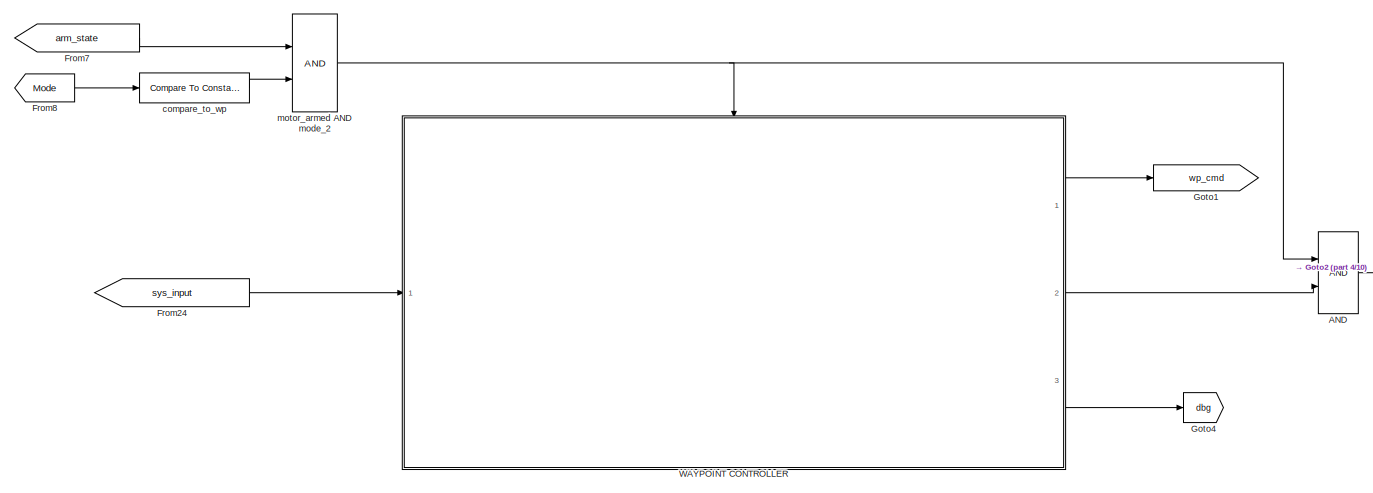
[diagram: root canvas - part 1/10, top left region]
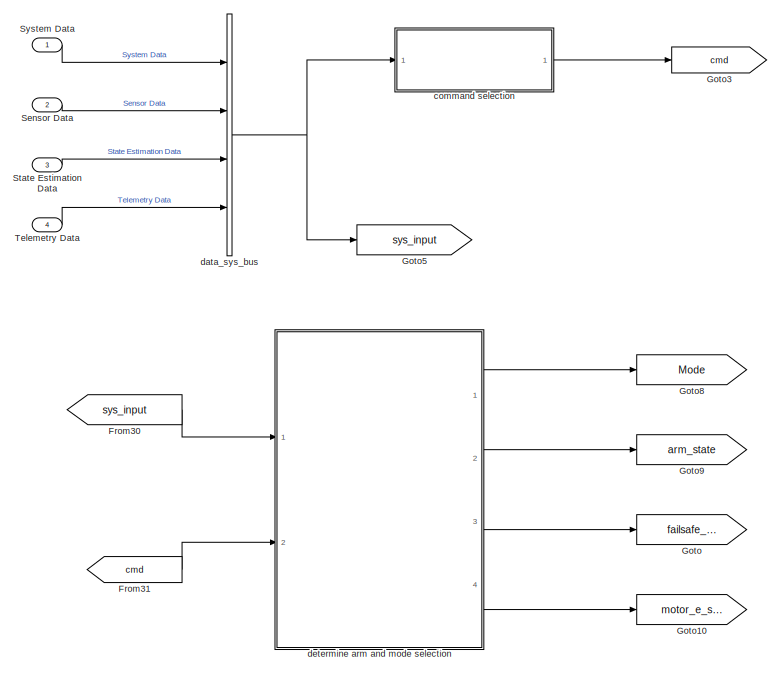
[diagram: root canvas - part 2/10, top left region]
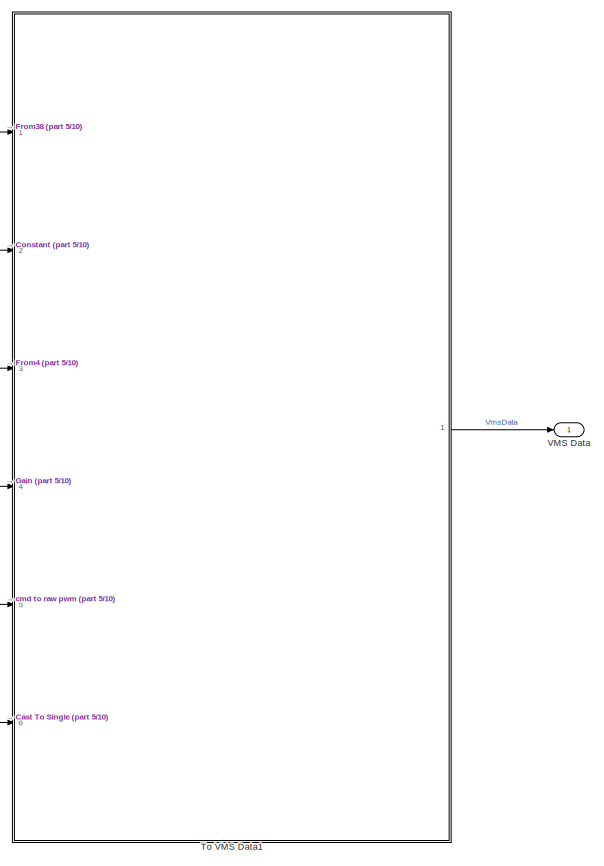
[diagram: root canvas - part 3/10, middle right region]
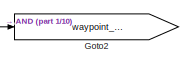
[diagram: root canvas - part 4/10, top center region]
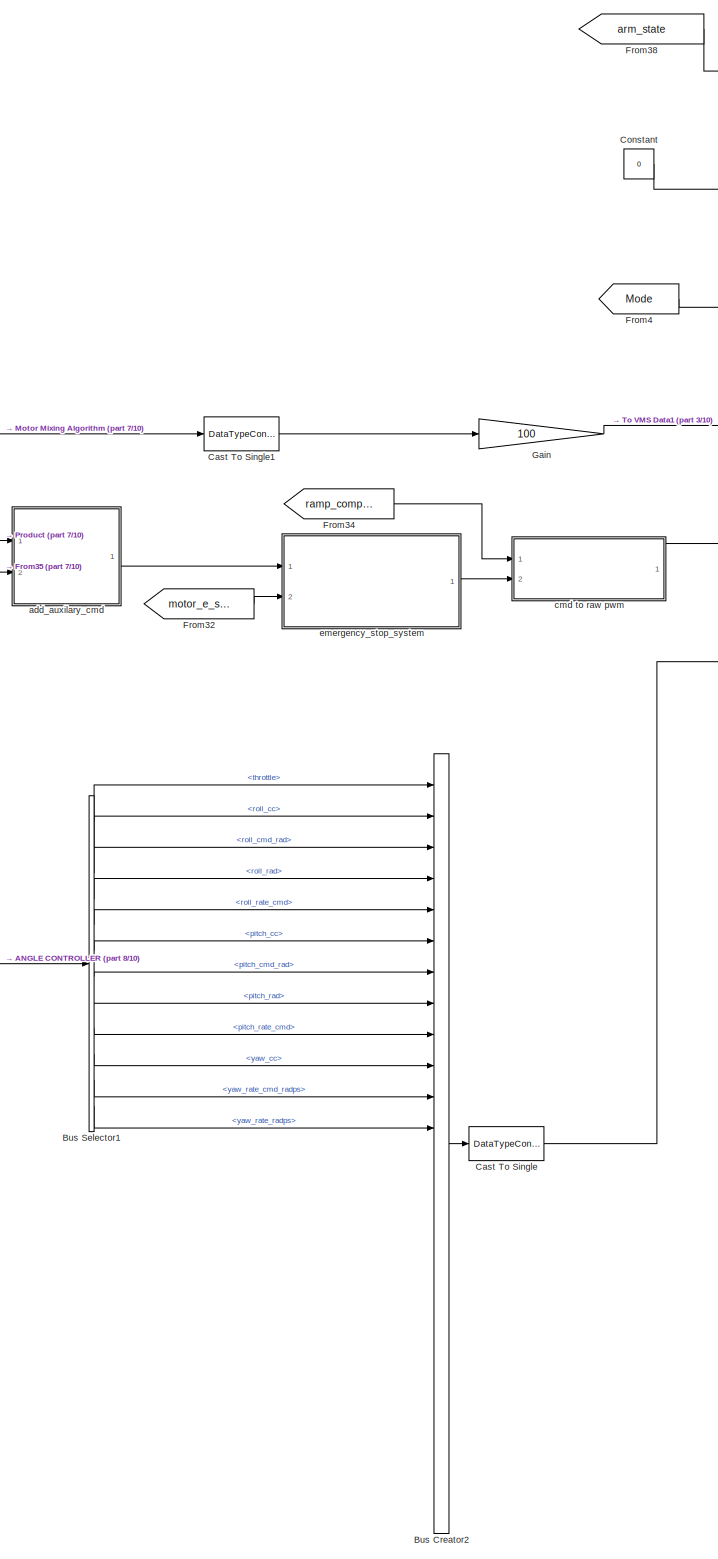
[diagram: root canvas - part 5/10, right side, full height]
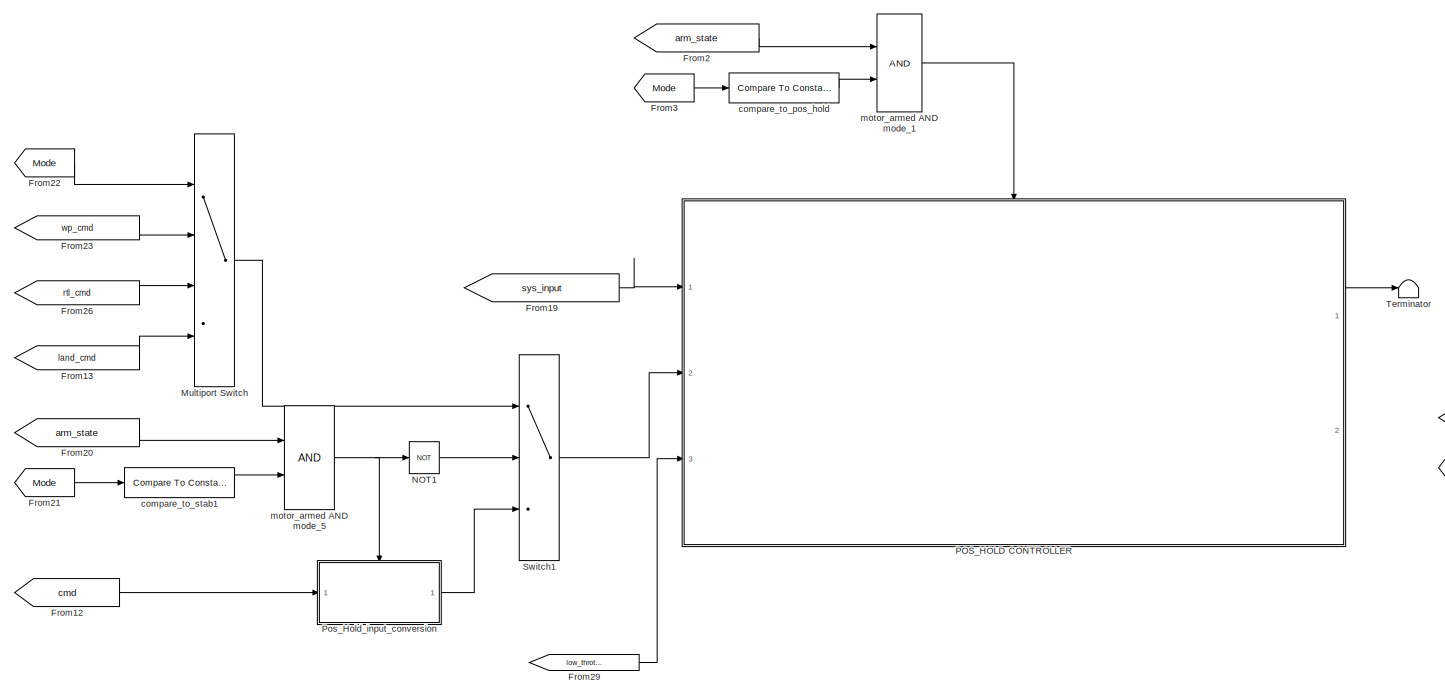
[diagram: root canvas - part 6/10, central region]
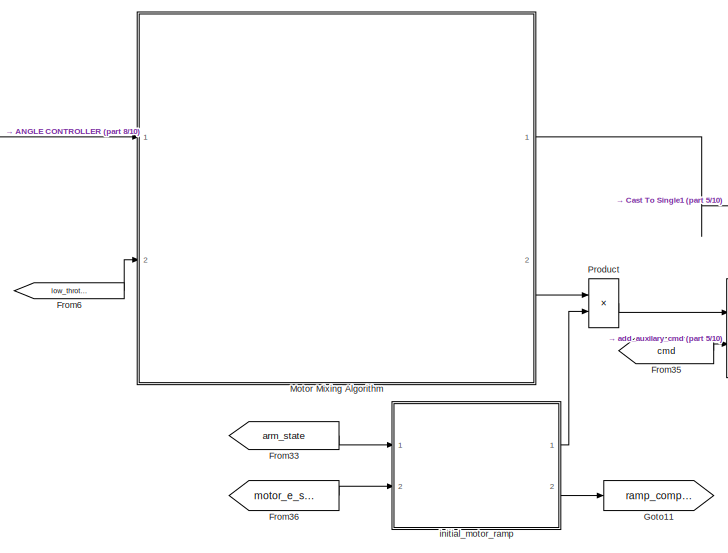
[diagram: root canvas - part 7/10, middle right region]
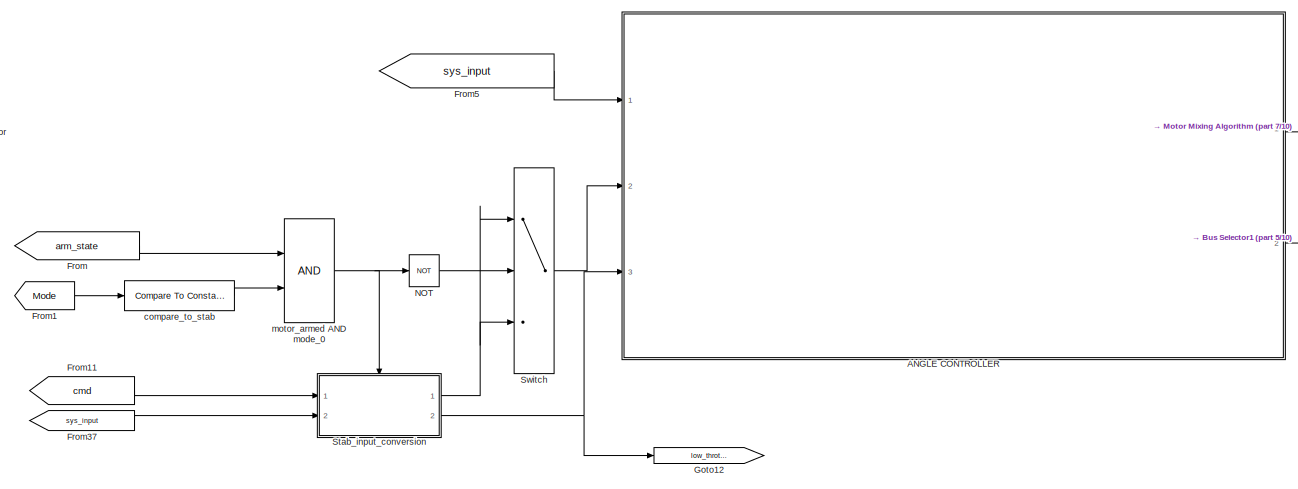
[diagram: root canvas - part 8/10, central region]
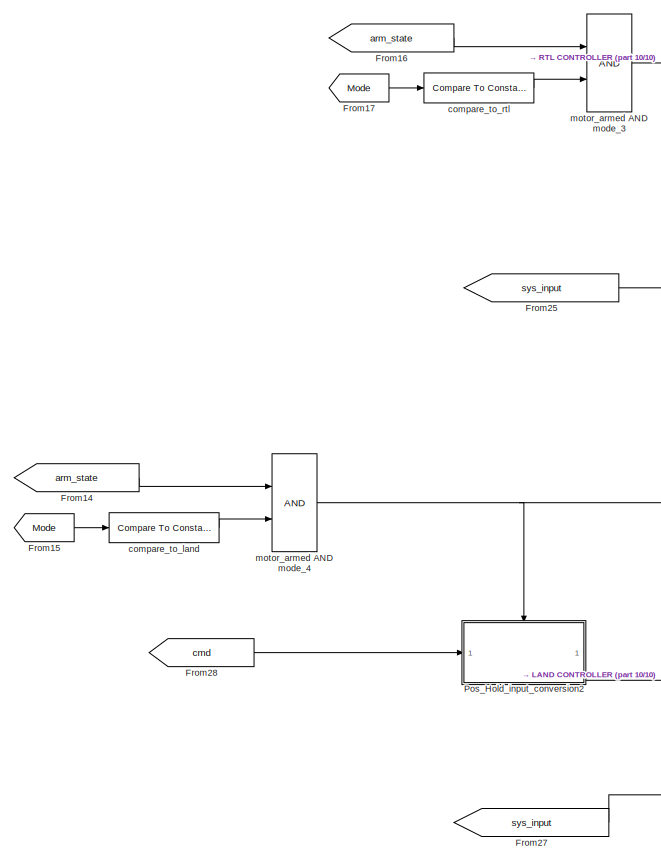
[diagram: root canvas - part 9/10, middle left region]
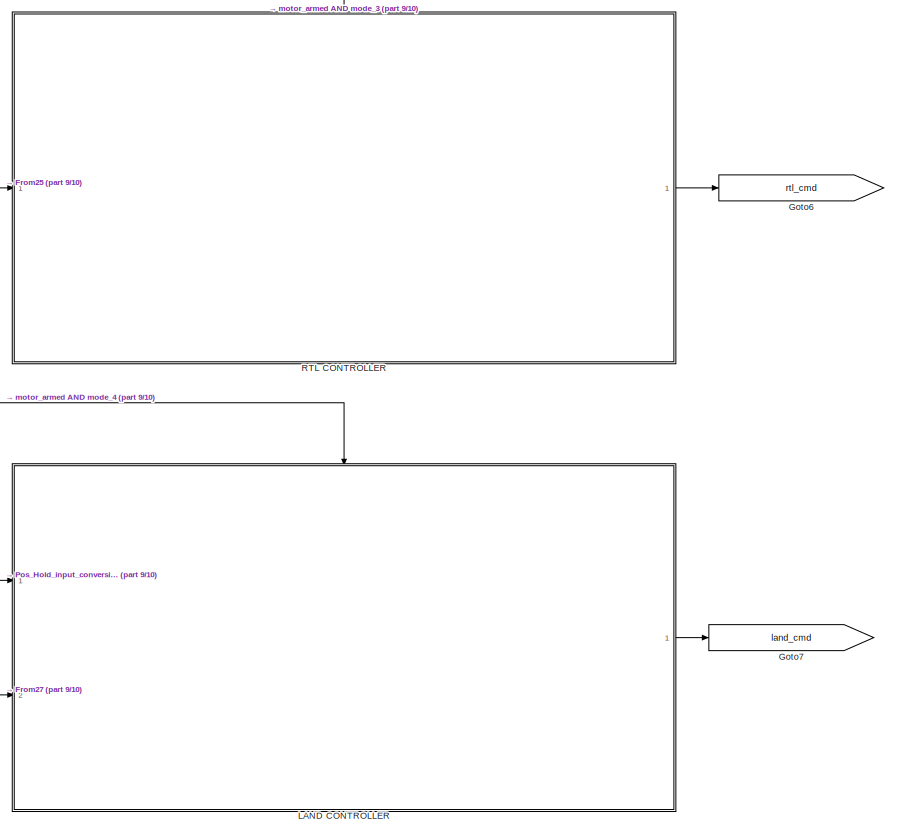
[diagram: root canvas - part 10/10, middle left region]
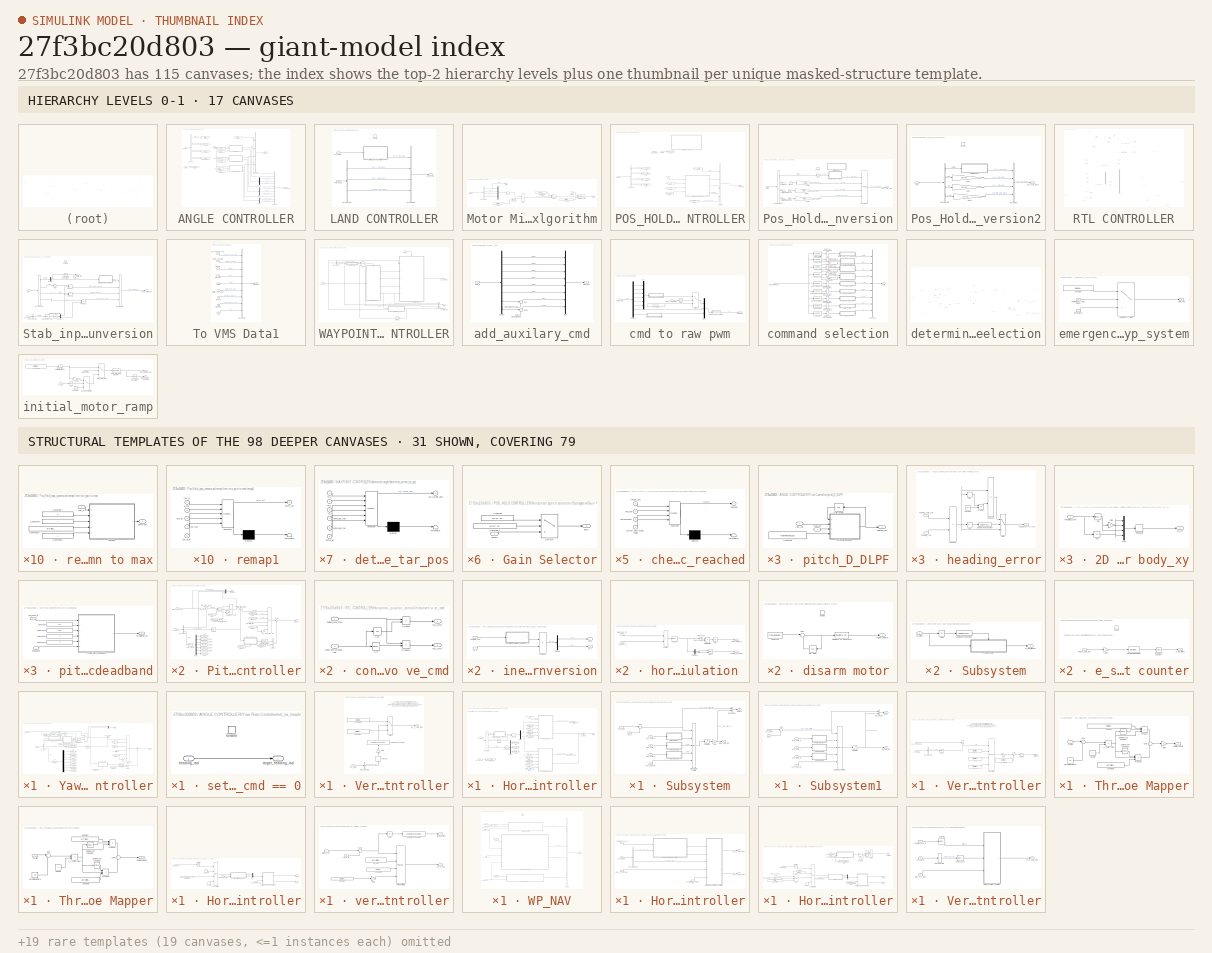
[diagram: thumbnail index - top-2 hierarchy levels (17 canvases) + 31 structural-template representatives of the remaining 98 canvases]
MODEL slx_27f3bc20d803
KIND model
CONFIG AbsTol = auto
CONFIG EnableMultiTasking = off
CONFIG FixedStep = 1/100
CONFIG MaxStep = auto
CONFIG MinStep = auto
CONFIG RelTol = 1e-3
CONFIG SampleTimeConstraint = Unconstrained
CONFIG SolverName = FixedStepAuto
CONFIG StartTime = 0.0
CONFIG StopTime = 10.0
BLOCK [Logic] AND
  AllPortsSameDT = off
  Commented = on
  IconShape = distinctive
  OutDataTypeStr = boolean
  Ports = [2, 1]
BLOCK [SubSystem] ANGLE CONTROLLER
  Ports = [3, 2]
  RequestExecContextInheritance = off
BLOCK [BusCreator] ANGLE CONTROLLER/Bus Creator
  DisplayOption = bar
  InheritFromInputs = on
  Inputs = 12
  Ports = [12, 1]
BLOCK [BusCreator] ANGLE CONTROLLER/Bus Creator4
  DisplayOption = bar
  InheritFromInputs = on
  Inputs = 4
  Ports = [4, 1]
BLOCK [BusSelector] ANGLE CONTROLLER/Bus Selector
  OutputSignals = throttle_cc,pitch_angle_cmd_rad,roll_angle_cmd_rad,yaw_rate_cmd_radps
  Ports = [1, 4]
BLOCK [Inport] ANGLE CONTROLLER/Cmd_input
  Port = 2
BLOCK [Outport] ANGLE CONTROLLER/Command out
BLOCK [Demux] ANGLE CONTROLLER/Demux
  Outputs = 3
  Ports = [1, 3]
BLOCK [Demux] ANGLE CONTROLLER/Demux1
  Outputs = 3
  Ports = [1, 3]
BLOCK [Demux] ANGLE CONTROLLER/Demux2
  Outputs = 2
  Ports = [1, 2]
BLOCK [From] ANGLE CONTROLLER/From
  GotoTag = throttle_cc
BLOCK [From] ANGLE CONTROLLER/From1
  GotoTag = roll_angle_cmd_rad
BLOCK [From] ANGLE CONTROLLER/From2
  GotoTag = pitch_angle_cmd_rad
BLOCK [From] ANGLE CONTROLLER/From3
  GotoTag = yaw_rate_cmd_radps
BLOCK [From] ANGLE CONTROLLER/From4
  GotoTag = low_throttle_flag
BLOCK [From] ANGLE CONTROLLER/From5
  GotoTag = low_throttle_flag
BLOCK [From] ANGLE CONTROLLER/From6
  GotoTag = low_throttle_flag
BLOCK [Goto] ANGLE CONTROLLER/Goto
  GotoTag = throttle_cc
BLOCK [Goto] ANGLE CONTROLLER/Goto1
  GotoTag = roll_angle_cmd_rad
BLOCK [Goto] ANGLE CONTROLLER/Goto2
  GotoTag = pitch_angle_cmd_rad
BLOCK [Goto] ANGLE CONTROLLER/Goto3
  GotoTag = yaw_rate_cmd_radps
BLOCK [Goto] ANGLE CONTROLLER/Goto4
  GotoTag = low_throttle_flag
BLOCK [SubSystem] ANGLE CONTROLLER/Pitch Controller
  Ports = [3, 2]
  RequestExecContextInheritance = off
BLOCK [BusSelector] ANGLE CONTROLLER/Pitch Controller/Bus Selector
  OutputSignals = State Estimation Data.bfs_ins.pitch_rad,State Estimation Data.bfs_ins.gyro_radps,Telemetry Data.param
  Ports = [1, 3]
BLOCK [Reference] ANGLE CONTROLLER/Pitch Controller/Degrees to Radians  REF=simulink_extras/Transformations/Degrees to
Radians
  Ports = [1, 1]
  SourceBlock = simulink_extras/Transformations/Degrees to\nRadians
  SourceProductBaseCode = SL
  SourceType = DegreesToRadians
BLOCK [Demux] ANGLE CONTROLLER/Pitch Controller/Demux
  Outputs = 7
  Ports = [1, 7]
BLOCK [Reference] ANGLE CONTROLLER/Pitch Controller/Discrete Derivative  REF=simulink/Discrete/Discrete Derivative
  Ports = [1, 1]
  SourceBlock = simulink/Discrete/Discrete Derivative
  SourceProductBaseCode = SL
  SourceType = Discrete Derivative
BLOCK [From] ANGLE CONTROLLER/Pitch Controller/From
  GotoTag = PARAM_03
BLOCK [From] ANGLE CONTROLLER/Pitch Controller/From1
  GotoTag = PARAM_04
BLOCK [From] ANGLE CONTROLLER/Pitch Controller/From2
  GotoTag = PARAM_05
BLOCK [From] ANGLE CONTROLLER/Pitch Controller/From3
  GotoTag = PARAM_9
BLOCK [From] ANGLE CONTROLLER/Pitch Controller/From4
  GotoTag = PARAM_11
BLOCK [From] ANGLE CONTROLLER/Pitch Controller/From5
  GotoTag = PARAM_14
BLOCK [From] ANGLE CONTROLLER/Pitch Controller/From6
  GotoTag = PARAM_17
BLOCK [Gain] ANGLE CONTROLLER/Pitch Controller/Gain
  Gain = -1
BLOCK [Gain] ANGLE CONTROLLER/Pitch Controller/Gain1
  Gain = -1
BLOCK [Goto] ANGLE CONTROLLER/Pitch Controller/Goto
  GotoTag = PARAM_03
BLOCK [Goto] ANGLE CONTROLLER/Pitch Controller/Goto1
  GotoTag = PARAM_04
BLOCK [Goto] ANGLE CONTROLLER/Pitch Controller/Goto2
  GotoTag = PARAM_05
BLOCK [Goto] ANGLE CONTROLLER/Pitch Controller/Goto3
  GotoTag = PARAM_9
BLOCK [Goto] ANGLE CONTROLLER/Pitch Controller/Goto4
  GotoTag = PARAM_11
BLOCK [Goto] ANGLE CONTROLLER/Pitch Controller/Goto5
  GotoTag = PARAM_14
BLOCK [Goto] ANGLE CONTROLLER/Pitch Controller/Goto6
  GotoTag = PARAM_17
BLOCK [Mux] ANGLE CONTROLLER/Pitch Controller/Mux
  DisplayOption = bar
  Inputs = 3
  Ports = [3, 1]
BLOCK [Inport] ANGLE CONTROLLER/Pitch Controller/Pitch_angle_cmd
  Port = 2
BLOCK [Product] ANGLE CONTROLLER/Pitch Controller/Product
  Ports = [2, 1]
BLOCK [Product] ANGLE CONTROLLER/Pitch Controller/Product1
  Ports = [2, 1]
BLOCK [Reference] ANGLE CONTROLLER/Pitch Controller/Saturation Dynamic  REF=simulink/Discontinuities/Saturation
Dynamic
  Ports = [3, 1]
  SourceBlock = simulink/Discontinuities/Saturation\nDynamic
  SourceProductBaseCode = SL
  SourceType = Saturation Dynamic
BLOCK [Selector] ANGLE CONTROLLER/Pitch Controller/Selector
  IndexMode = Zero-based
  IndexOptions = Index vector (dialog)
  Indices = 1
  InputPortWidth = 3
  OutputSizes = 1
  Ports = [1, 1]
BLOCK [Sum] ANGLE CONTROLLER/Pitch Controller/Sum
  Inputs = |+-
  Ports = [2, 1]
BLOCK [Outport] ANGLE CONTROLLER/Pitch Controller/logging
  Port = 2
BLOCK [Inport] ANGLE CONTROLLER/Pitch Controller/low_throttle_flag
  Port = 3
BLOCK [SubSystem] ANGLE CONTROLLER/Pitch Controller/pitch_D_DLPF
  NameLocation = top
  PortSchema = {"entries":[{"content":{"sides":[{"content":{"connectorIds":["In1"]},"type":"ConnectorPlacement.EquallySpacedRectSide","uuid":"20236834-aeb3-4c5b-bb2e-f84447e752b5"},{"content":{"connectorIds":["Out1"],"side":"RIGHT"},"type":"ConnectorPlacement.EquallySpacedRectSide","uuid":"d668f9a1-a3df-4207-8bf1-99fb838e59b2"},{"content":{"connectorIds":[],"side":"TOP"},"type":"ConnectorPlacement.EquallySpacedR...<+389ch>  <repeated x3 — deduplicated; at blocks: pitch_D_DLPF, roll_D_DLPF, yaw_D_DLPF>
  Ports = [2, 1]
  RequestExecContextInheritance = off
BLOCK [Constant] ANGLE CONTROLLER/Pitch Controller/pitch_D_DLPF/Constant
  OutDataTypeStr = single
  Value = frameRate_hz
BLOCK [SubSystem] ANGLE CONTROLLER/Pitch Controller/pitch_D_DLPF/MATLAB Function
  ErrorFcn = Stateflow.Translate.translate
  PermitHierarchicalResolution = ExplicitOnly
  Ports = [4, 1]
  RequestExecContextInheritance = off
  SFBlockType = MATLAB Function
  TreatAsAtomicUnit = on
BLOCK [Demux] ANGLE CONTROLLER/Pitch Controller/pitch_D_DLPF/MATLAB Function/ Demux 
  Outputs = 1
  Ports = [1, 1]
BLOCK [S-Function] ANGLE CONTROLLER/Pitch Controller/pitch_D_DLPF/MATLAB Function/ SFunction 
  EnableBusSupport = on
  FunctionName = sf_sfun
  PortCounts = [4 2]
  Ports = [4, 2]
  SFcnIsStateOwnerBlock = off
  SFunctionDeploymentMode = off
  Tag = Stateflow S-Function 22
BLOCK [Terminator] ANGLE CONTROLLER/Pitch Controller/pitch_D_DLPF/MATLAB Function/ Terminator 
BLOCK [Outport] ANGLE CONTROLLER/Pitch Controller/pitch_D_DLPF/MATLAB Function/filtered_val
BLOCK [Inport] ANGLE CONTROLLER/Pitch Controller/pitch_D_DLPF/MATLAB Function/freq_cut
  Port = 3
BLOCK [Inport] ANGLE CONTROLLER/Pitch Controller/pitch_D_DLPF/MATLAB Function/prev_val
BLOCK [Inport] ANGLE CONTROLLER/Pitch Controller/pitch_D_DLPF/MATLAB Function/raw_val
  Port = 2
BLOCK [Inport] ANGLE CONTROLLER/Pitch Controller/pitch_D_DLPF/MATLAB Function/samp_freq
  Port = 4
BLOCK [UnitDelay] ANGLE CONTROLLER/Pitch Controller/pitch_D_DLPF/Unit Delay
  HasFrameUpgradeWarning = on
  NameLocation = top
  SampleTime = -1
BLOCK [Outport] ANGLE CONTROLLER/Pitch Controller/pitch_D_DLPF/filtered_val
BLOCK [Inport] ANGLE CONTROLLER/Pitch Controller/pitch_D_DLPF/freq_cut
  Port = 2
BLOCK [Inport] ANGLE CONTROLLER/Pitch Controller/pitch_D_DLPF/raw_val
BLOCK [Outport] ANGLE CONTROLLER/Pitch Controller/pitch_cc
BLOCK [Selector] ANGLE CONTROLLER/Pitch Controller/select_roll_PID
  IndexMode = Zero-based
  IndexOptions = Index vector (dialog)
  Indices = [3 4 5 9 11 14 17]
  OutputSizes = 1
  Ports = [1, 1]
BLOCK [Reference] ANGLE CONTROLLER/Pitch Controller/stab_pitch_PID  REF=slpidlib/PID Controller
  Ports = [6, 1]
  SourceBlock = slpidlib/PID Controller
  SourceProductBaseCode = SL
  SourceType = PID 1dof
BLOCK [Sum] ANGLE CONTROLLER/Pitch Controller/stab_pitch_angle_error_calc
  Inputs = |+-
  Ports = [2, 1]
BLOCK [Sum] ANGLE CONTROLLER/Pitch Controller/stab_pitch_angle_rate_error_calc
  Inputs = |+-
  Ports = [2, 1]
BLOCK [Inport] ANGLE CONTROLLER/Pitch Controller/sys_input
BLOCK [SubSystem] ANGLE CONTROLLER/Roll Controller
  Ports = [3, 2]
  RequestExecContextInheritance = off
BLOCK [BusSelector] ANGLE CONTROLLER/Roll Controller/Bus Selector
  OutputSignals = State Estimation Data.bfs_ins.roll_rad,State Estimation Data.bfs_ins.gyro_radps,Telemetry Data.param
  Ports = [1, 3]
BLOCK [Reference] ANGLE CONTROLLER/Roll Controller/Degrees to Radians  REF=simulink_extras/Transformations/Degrees to
Radians
  Ports = [1, 1]
  SourceBlock = simulink_extras/Transformations/Degrees to\nRadians
  SourceProductBaseCode = SL
  SourceType = DegreesToRadians
BLOCK [Demux] ANGLE CONTROLLER/Roll Controller/Demux
  Outputs = 7
  Ports = [1, 7]
BLOCK [Reference] ANGLE CONTROLLER/Roll Controller/Discrete Derivative  REF=simulink/Discrete/Discrete Derivative
  Ports = [1, 1]
  SourceBlock = simulink/Discrete/Discrete Derivative
  SourceProductBaseCode = SL
  SourceType = Discrete Derivative
BLOCK [From] ANGLE CONTROLLER/Roll Controller/From
  GotoTag = PARAM_00
BLOCK [From] ANGLE CONTROLLER/Roll Controller/From1
  GotoTag = PARAM_01
BLOCK [From] ANGLE CONTROLLER/Roll Controller/From2
  GotoTag = PARAM_02
BLOCK [From] ANGLE CONTROLLER/Roll Controller/From3
  GotoTag = PARAM_15
BLOCK [From] ANGLE CONTROLLER/Roll Controller/From4
  GotoTag = PARAM_10
BLOCK [From] ANGLE CONTROLLER/Roll Controller/From5
  GotoTag = PARAM_11
BLOCK [From] ANGLE CONTROLLER/Roll Controller/From6
  GotoTag = PARAM_17
BLOCK [Gain] ANGLE CONTROLLER/Roll Controller/Gain
  Gain = -1
BLOCK [Gain] ANGLE CONTROLLER/Roll Controller/Gain1
  Gain = -1
BLOCK [Goto] ANGLE CONTROLLER/Roll Controller/Goto
  GotoTag = PARAM_00
BLOCK [Goto] ANGLE CONTROLLER/Roll Controller/Goto1
  GotoTag = PARAM_01
BLOCK [Goto] ANGLE CONTROLLER/Roll Controller/Goto2
  GotoTag = PARAM_02
BLOCK [Goto] ANGLE CONTROLLER/Roll Controller/Goto3
  GotoTag = PARAM_10
BLOCK [Goto] ANGLE CONTROLLER/Roll Controller/Goto4
  GotoTag = PARAM_11
BLOCK [Goto] ANGLE CONTROLLER/Roll Controller/Goto5
  GotoTag = PARAM_15
BLOCK [Goto] ANGLE CONTROLLER/Roll Controller/Goto6
  GotoTag = PARAM_17
BLOCK [Mux] ANGLE CONTROLLER/Roll Controller/Mux
  DisplayOption = bar
  Inputs = 3
  Ports = [3, 1]
BLOCK [Product] ANGLE CONTROLLER/Roll Controller/Product
  Ports = [2, 1]
BLOCK [Product] ANGLE CONTROLLER/Roll Controller/Product1
  Ports = [2, 1]
BLOCK [Inport] ANGLE CONTROLLER/Roll Controller/Roll_angle_cmd_rad
  Port = 2
BLOCK [Reference] ANGLE CONTROLLER/Roll Controller/Saturation Dynamic  REF=simulink/Discontinuities/Saturation
Dynamic
  Ports = [3, 1]
  SourceBlock = simulink/Discontinuities/Saturation\nDynamic
  SourceProductBaseCode = SL
  SourceType = Saturation Dynamic
BLOCK [Selector] ANGLE CONTROLLER/Roll Controller/Selector
  IndexMode = Zero-based
  IndexOptions = Index vector (dialog)
  Indices = 0
  InputPortWidth = 3
  OutputSizes = 1
  Ports = [1, 1]
BLOCK [Sum] ANGLE CONTROLLER/Roll Controller/Sum
  Inputs = |+-
  Ports = [2, 1]
BLOCK [Outport] ANGLE CONTROLLER/Roll Controller/logging
  Port = 2
BLOCK [Inport] ANGLE CONTROLLER/Roll Controller/low_throttle_flag
  Port = 3
BLOCK [SubSystem] ANGLE CONTROLLER/Roll Controller/roll_D_DLPF
  NameLocation = top
  Ports = [2, 1]
  RequestExecContextInheritance = off
BLOCK [Constant] ANGLE CONTROLLER/Roll Controller/roll_D_DLPF/Constant
  OutDataTypeStr = single
  Value = frameRate_hz
BLOCK [SubSystem] ANGLE CONTROLLER/Roll Controller/roll_D_DLPF/MATLAB Function
  ErrorFcn = Stateflow.Translate.translate
  PermitHierarchicalResolution = ExplicitOnly
  Ports = [4, 1]
  RequestExecContextInheritance = off
  SFBlockType = MATLAB Function
  TreatAsAtomicUnit = on
BLOCK [Demux] ANGLE CONTROLLER/Roll Controller/roll_D_DLPF/MATLAB Function/ Demux 
  Outputs = 1
  Ports = [1, 1]
BLOCK [S-Function] ANGLE CONTROLLER/Roll Controller/roll_D_DLPF/MATLAB Function/ SFunction 
  EnableBusSupport = on
  FunctionName = sf_sfun
  PortCounts = [4 2]
  Ports = [4, 2]
  SFcnIsStateOwnerBlock = off
  SFunctionDeploymentMode = off
  Tag = Stateflow S-Function 21
BLOCK [Terminator] ANGLE CONTROLLER/Roll Controller/roll_D_DLPF/MATLAB Function/ Terminator 
BLOCK [Outport] ANGLE CONTROLLER/Roll Controller/roll_D_DLPF/MATLAB Function/filtered_val
BLOCK [Inport] ANGLE CONTROLLER/Roll Controller/roll_D_DLPF/MATLAB Function/freq_cut
  Port = 3
BLOCK [Inport] ANGLE CONTROLLER/Roll Controller/roll_D_DLPF/MATLAB Function/prev_val
BLOCK [Inport] ANGLE CONTROLLER/Roll Controller/roll_D_DLPF/MATLAB Function/raw_val
  Port = 2
BLOCK [Inport] ANGLE CONTROLLER/Roll Controller/roll_D_DLPF/MATLAB Function/samp_freq
  Port = 4
BLOCK [UnitDelay] ANGLE CONTROLLER/Roll Controller/roll_D_DLPF/Unit Delay
  HasFrameUpgradeWarning = on
  NameLocation = top
  SampleTime = -1
BLOCK [Outport] ANGLE CONTROLLER/Roll Controller/roll_D_DLPF/filtered_val
BLOCK [Inport] ANGLE CONTROLLER/Roll Controller/roll_D_DLPF/freq_cut
  Port = 2
BLOCK [Inport] ANGLE CONTROLLER/Roll Controller/roll_D_DLPF/raw_val
BLOCK [Outport] ANGLE CONTROLLER/Roll Controller/roll_cc
BLOCK [Selector] ANGLE CONTROLLER/Roll Controller/select_roll_PID
  IndexMode = Zero-based
  IndexOptions = Index vector (dialog)
  Indices = [0 1 2 10 11 15 17]
  OutputSizes = 1
  Ports = [1, 1]
BLOCK [Reference] ANGLE CONTROLLER/Roll Controller/stab_roll_PID  REF=slpidlib/PID Controller
  Ports = [6, 1]
  SourceBlock = slpidlib/PID Controller
  SourceProductBaseCode = SL
  SourceType = PID 1dof
BLOCK [Sum] ANGLE CONTROLLER/Roll Controller/stab_roll_angle_error_calc
  Inputs = |+-
  Ports = [2, 1]
BLOCK [Sum] ANGLE CONTROLLER/Roll Controller/stab_roll_angle_rate_error_calc
  Inputs = |+-
  Ports = [2, 1]
BLOCK [Inport] ANGLE CONTROLLER/Roll Controller/sys_input
BLOCK [Inport] ANGLE CONTROLLER/Sys_input
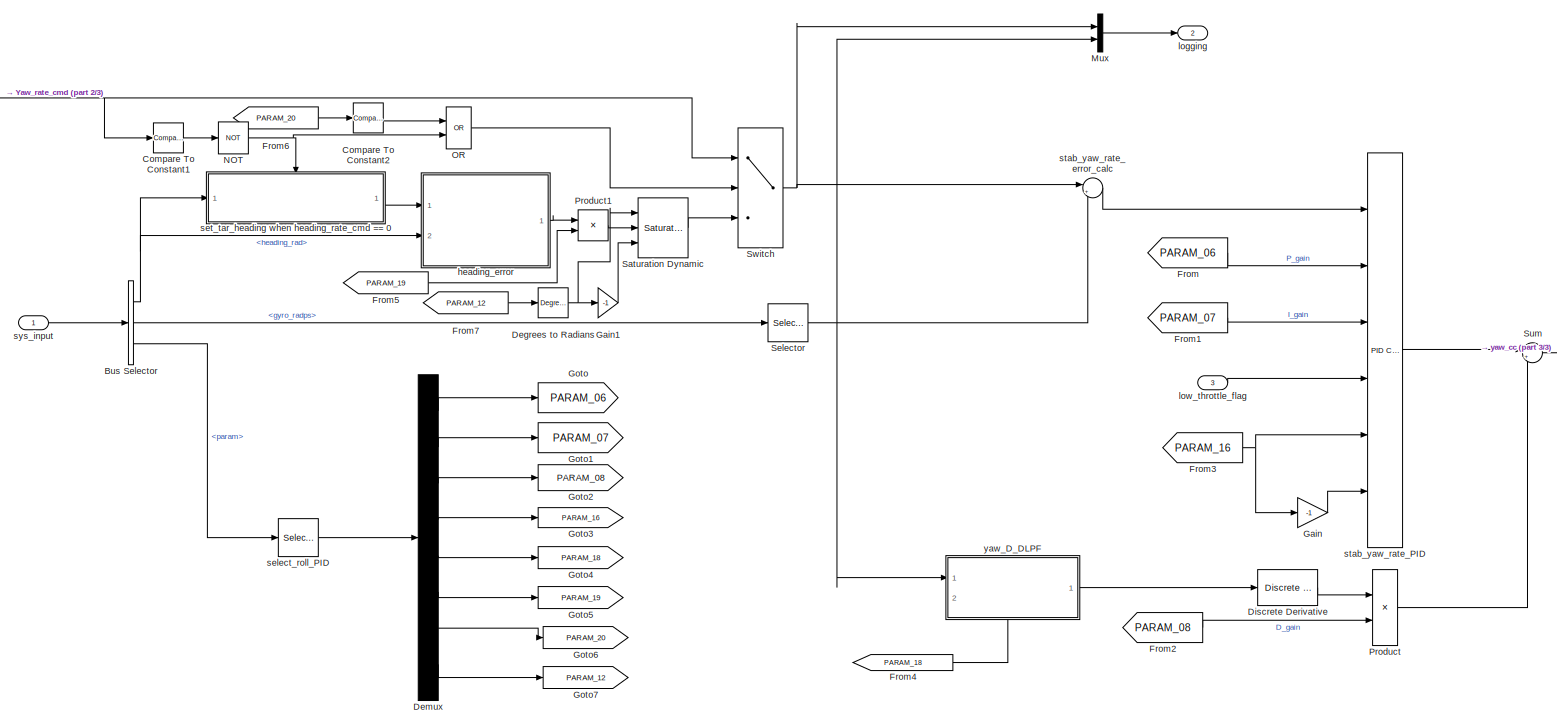
[diagram: ANGLE CONTROLLER/Yaw Rate Controller - part 1/3, most of the canvas]
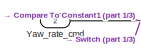
[diagram: ANGLE CONTROLLER/Yaw Rate Controller - part 2/3, top left region]
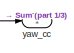
[diagram: ANGLE CONTROLLER/Yaw Rate Controller - part 3/3, middle right region]
BLOCK [SubSystem] ANGLE CONTROLLER/Yaw Rate Controller
  Ports = [3, 2]
  RequestExecContextInheritance = off
BLOCK [BusSelector] ANGLE CONTROLLER/Yaw Rate Controller/Bus Selector
  OutputSignals = State Estimation Data.bfs_ins.heading_rad,State Estimation Data.bfs_ins.gyro_radps,Telemetry Data.param
  Ports = [1, 3]
BLOCK [Reference] ANGLE CONTROLLER/Yaw Rate Controller/Compare To Constant1  REF=simulink/Logic and Bit
Operations/Compare
To Constant
  Ports = [1, 1]
  SourceBlock = simulink/Logic and Bit\nOperations/Compare\nTo Constant
  SourceProductBaseCode = SL
  SourceType = Compare To Constant
BLOCK [Reference] ANGLE CONTROLLER/Yaw Rate Controller/Compare To Constant2  REF=simulink/Logic and Bit
Operations/Compare
To Constant
  Ports = [1, 1]
  SourceBlock = simulink/Logic and Bit\nOperations/Compare\nTo Constant
  SourceProductBaseCode = SL
  SourceType = Compare To Constant
BLOCK [Reference] ANGLE CONTROLLER/Yaw Rate Controller/Degrees to Radians  REF=simulink_extras/Transformations/Degrees to
Radians
  Ports = [1, 1]
  SourceBlock = simulink_extras/Transformations/Degrees to\nRadians
  SourceProductBaseCode = SL
  SourceType = DegreesToRadians
BLOCK [Demux] ANGLE CONTROLLER/Yaw Rate Controller/Demux
  Outputs = 8
  Ports = [1, 8]
BLOCK [Reference] ANGLE CONTROLLER/Yaw Rate Controller/Discrete Derivative  REF=simulink/Quick Insert/Discrete/Discrete Derivative
  Ports = [1, 1]
  SourceBlock = simulink/Quick Insert/Discrete/Discrete Derivative
  SourceProductBaseCode = SL
  SourceType = Discrete Derivative
BLOCK [From] ANGLE CONTROLLER/Yaw Rate Controller/From
  GotoTag = PARAM_06
BLOCK [From] ANGLE CONTROLLER/Yaw Rate Controller/From1
  GotoTag = PARAM_07
BLOCK [From] ANGLE CONTROLLER/Yaw Rate Controller/From2
  GotoTag = PARAM_08
BLOCK [From] ANGLE CONTROLLER/Yaw Rate Controller/From3
  GotoTag = PARAM_16
BLOCK [From] ANGLE CONTROLLER/Yaw Rate Controller/From4
  GotoTag = PARAM_18
BLOCK [From] ANGLE CONTROLLER/Yaw Rate Controller/From5
  GotoTag = PARAM_19
BLOCK [From] ANGLE CONTROLLER/Yaw Rate Controller/From6
  GotoTag = PARAM_20
BLOCK [From] ANGLE CONTROLLER/Yaw Rate Controller/From7
  GotoTag = PARAM_12
BLOCK [Gain] ANGLE CONTROLLER/Yaw Rate Controller/Gain
  Gain = -1
BLOCK [Gain] ANGLE CONTROLLER/Yaw Rate Controller/Gain1
  Gain = -1
BLOCK [Goto] ANGLE CONTROLLER/Yaw Rate Controller/Goto
  GotoTag = PARAM_06
BLOCK [Goto] ANGLE CONTROLLER/Yaw Rate Controller/Goto1
  GotoTag = PARAM_07
BLOCK [Goto] ANGLE CONTROLLER/Yaw Rate Controller/Goto2
  GotoTag = PARAM_08
BLOCK [Goto] ANGLE CONTROLLER/Yaw Rate Controller/Goto3
  GotoTag = PARAM_16
BLOCK [Goto] ANGLE CONTROLLER/Yaw Rate Controller/Goto4
  GotoTag = PARAM_18
BLOCK [Goto] ANGLE CONTROLLER/Yaw Rate Controller/Goto5
  GotoTag = PARAM_19
BLOCK [Goto] ANGLE CONTROLLER/Yaw Rate Controller/Goto6
  GotoTag = PARAM_20
BLOCK [Goto] ANGLE CONTROLLER/Yaw Rate Controller/Goto7
  GotoTag = PARAM_12
BLOCK [Mux] ANGLE CONTROLLER/Yaw Rate Controller/Mux
  DisplayOption = bar
  Inputs = 2
  Ports = [2, 1]
BLOCK [Logic] ANGLE CONTROLLER/Yaw Rate Controller/NOT
  AllPortsSameDT = off
  IconShape = distinctive
  Operator = NOT
  OutDataTypeStr = boolean
  Ports = [1, 1]
BLOCK [Logic] ANGLE CONTROLLER/Yaw Rate Controller/OR
  AllPortsSameDT = off
  IconShape = distinctive
  Operator = OR
  OutDataTypeStr = boolean
  Ports = [2, 1]
BLOCK [Product] ANGLE CONTROLLER/Yaw Rate Controller/Product
  Ports = [2, 1]
BLOCK [Product] ANGLE CONTROLLER/Yaw Rate Controller/Product1
  Ports = [2, 1]
BLOCK [Reference] ANGLE CONTROLLER/Yaw Rate Controller/Saturation Dynamic  REF=simulink/Discontinuities/Saturation
Dynamic
  Ports = [3, 1]
  SourceBlock = simulink/Discontinuities/Saturation\nDynamic
  SourceProductBaseCode = SL
  SourceType = Saturation Dynamic
BLOCK [Selector] ANGLE CONTROLLER/Yaw Rate Controller/Selector
  IndexOptions = Index vector (dialog)
  Indices = 3
  InputPortWidth = 3
  OutputSizes = 1
  Ports = [1, 1]
BLOCK [Sum] ANGLE CONTROLLER/Yaw Rate Controller/Sum
  Inputs = |+-
  Ports = [2, 1]
BLOCK [Switch] ANGLE CONTROLLER/Yaw Rate Controller/Switch
  Criteria = u2 > Threshold
  InputSameDT = off
  SaturateOnIntegerOverflow = off
BLOCK [Inport] ANGLE CONTROLLER/Yaw Rate Controller/Yaw_rate_cmd
  Port = 2
BLOCK [SubSystem] ANGLE CONTROLLER/Yaw Rate Controller/heading_error
  Ports = [2, 1]
  RequestExecContextInheritance = off
BLOCK [Abs] ANGLE CONTROLLER/Yaw Rate Controller/heading_error/Abs
  SaturateOnIntegerOverflow = off
BLOCK [Reference] ANGLE CONTROLLER/Yaw Rate Controller/heading_error/Compare To Constant  REF=simulink/Logic and Bit
Operations/Compare
To Constant
  Ports = [1, 1]
  SourceBlock = simulink/Logic and Bit\nOperations/Compare\nTo Constant
  SourceProductBaseCode = SL
  SourceType = Compare To Constant
BLOCK [Constant] ANGLE CONTROLLER/Yaw Rate Controller/heading_error/Constant
  OutDataTypeStr = single
  Value = 2*pi
BLOCK [Product] ANGLE CONTROLLER/Yaw Rate Controller/heading_error/Product
  Ports = [2, 1]
BLOCK [Signum] ANGLE CONTROLLER/Yaw Rate Controller/heading_error/Sign
BLOCK [Sum] ANGLE CONTROLLER/Yaw Rate Controller/heading_error/Subtract
  IconShape = rectangular
  Inputs = +-
  Ports = [2, 1]
BLOCK [Sum] ANGLE CONTROLLER/Yaw Rate Controller/heading_error/Subtract1
  IconShape = rectangular
  Inputs = +-
  Ports = [2, 1]
BLOCK [Switch] ANGLE CONTROLLER/Yaw Rate Controller/heading_error/Switch
  Criteria = u2 > Threshold
  InputSameDT = off
  SaturateOnIntegerOverflow = off
BLOCK [Inport] ANGLE CONTROLLER/Yaw Rate Controller/heading_error/heading_cmd_rad
BLOCK [Outport] ANGLE CONTROLLER/Yaw Rate Controller/heading_error/heading_error_rad
BLOCK [Inport] ANGLE CONTROLLER/Yaw Rate Controller/heading_error/heading_rad
  Port = 2
BLOCK [Outport] ANGLE CONTROLLER/Yaw Rate Controller/logging
  Port = 2
BLOCK [Inport] ANGLE CONTROLLER/Yaw Rate Controller/low_throttle_flag
  Port = 3
BLOCK [Selector] ANGLE CONTROLLER/Yaw Rate Controller/select_roll_PID
  IndexMode = Zero-based
  IndexOptions = Index vector (dialog)
  Indices = [6 7 8 16 18 19 20 12]
  OutputSizes = 1
  Ports = [1, 1]
BLOCK [SubSystem] ANGLE CONTROLLER/Yaw Rate Controller/set_tar_heading when heading_rate_cmd == 0
  Ports = [1, 1, 1]
  RequestExecContextInheritance = off
  TreatAsAtomicUnit = on
BLOCK [EnablePort] ANGLE CONTROLLER/Yaw Rate Controller/set_tar_heading when heading_rate_cmd == 0/Enable
  Ports = []
BLOCK [Inport] ANGLE CONTROLLER/Yaw Rate Controller/set_tar_heading when heading_rate_cmd == 0/heading_rad
BLOCK [Outport] ANGLE CONTROLLER/Yaw Rate Controller/set_tar_heading when heading_rate_cmd == 0/target_heading_rad
BLOCK [Reference] ANGLE CONTROLLER/Yaw Rate Controller/stab_yaw_rate_PID  REF=slpidlib/PID Controller
  Ports = [6, 1]
  SourceBlock = slpidlib/PID Controller
  SourceProductBaseCode = SL
  SourceType = PID 1dof
BLOCK [Sum] ANGLE CONTROLLER/Yaw Rate Controller/stab_yaw_rate_error_calc
  Inputs = |+-
  Ports = [2, 1]
BLOCK [Inport] ANGLE CONTROLLER/Yaw Rate Controller/sys_input
BLOCK [SubSystem] ANGLE CONTROLLER/Yaw Rate Controller/yaw_D_DLPF
  NameLocation = top
  Ports = [2, 1]
  RequestExecContextInheritance = off
BLOCK [Constant] ANGLE CONTROLLER/Yaw Rate Controller/yaw_D_DLPF/Constant
  OutDataTypeStr = single
  Value = frameRate_hz
BLOCK [SubSystem] ANGLE CONTROLLER/Yaw Rate Controller/yaw_D_DLPF/MATLAB Function
  ErrorFcn = Stateflow.Translate.translate
  PermitHierarchicalResolution = ExplicitOnly
  Ports = [4, 1]
  RequestExecContextInheritance = off
  SFBlockType = MATLAB Function
  TreatAsAtomicUnit = on
BLOCK [Demux] ANGLE CONTROLLER/Yaw Rate Controller/yaw_D_DLPF/MATLAB Function/ Demux 
  Outputs = 1
  Ports = [1, 1]
BLOCK [S-Function] ANGLE CONTROLLER/Yaw Rate Controller/yaw_D_DLPF/MATLAB Function/ SFunction 
  EnableBusSupport = on
  FunctionName = sf_sfun
  PortCounts = [4 2]
  Ports = [4, 2]
  SFcnIsStateOwnerBlock = off
  SFunctionDeploymentMode = off
  Tag = Stateflow S-Function 23
BLOCK [Terminator] ANGLE CONTROLLER/Yaw Rate Controller/yaw_D_DLPF/MATLAB Function/ Terminator 
BLOCK [Outport] ANGLE CONTROLLER/Yaw Rate Controller/yaw_D_DLPF/MATLAB Function/filtered_val
BLOCK [Inport] ANGLE CONTROLLER/Yaw Rate Controller/yaw_D_DLPF/MATLAB Function/freq_cut
  Port = 3
BLOCK [Inport] ANGLE CONTROLLER/Yaw Rate Controller/yaw_D_DLPF/MATLAB Function/prev_val
BLOCK [Inport] ANGLE CONTROLLER/Yaw Rate Controller/yaw_D_DLPF/MATLAB Function/raw_val
  Port = 2
BLOCK [Inport] ANGLE CONTROLLER/Yaw Rate Controller/yaw_D_DLPF/MATLAB Function/samp_freq
  Port = 4
BLOCK [UnitDelay] ANGLE CONTROLLER/Yaw Rate Controller/yaw_D_DLPF/Unit Delay
  HasFrameUpgradeWarning = on
  NameLocation = top
  SampleTime = -1
BLOCK [Outport] ANGLE CONTROLLER/Yaw Rate Controller/yaw_D_DLPF/filtered_val
BLOCK [Inport] ANGLE CONTROLLER/Yaw Rate Controller/yaw_D_DLPF/freq_cut
  Port = 2
BLOCK [Inport] ANGLE CONTROLLER/Yaw Rate Controller/yaw_D_DLPF/raw_val
BLOCK [Outport] ANGLE CONTROLLER/Yaw Rate Controller/yaw_cc
BLOCK [Outport] ANGLE CONTROLLER/inner_loop_log
  Port = 2
BLOCK [Inport] ANGLE CONTROLLER/low_thottle
  Port = 3
BLOCK [BusCreator] Bus Creator2
  DisplayOption = bar
  InheritFromInputs = on
  Inputs = 24
  Ports = [24, 1]
BLOCK [BusSelector] Bus Selector1
  OutputSignals = throttle,roll_cc,roll_cmd_rad,roll_rad,roll_rate_cmd,pitch_cc,pitch_cmd_rad,pitch_rad,pitch_rate_cmd,yaw_cc,yaw_rate_cmd_radps,yaw_rate_radps
  Ports = [1, 12]
BLOCK [DataTypeConversion] Cast To Single
  OutDataTypeStr = single
  RndMeth = Floor
  SaturateOnIntegerOverflow = off
BLOCK [DataTypeConversion] Cast To Single1
  OutDataTypeStr = single
  RndMeth = Floor
  SaturateOnIntegerOverflow = off
BLOCK [Constant] Constant
  OutDataTypeStr = boolean
  Value = 0
BLOCK [From] From
  GotoTag = arm_state
BLOCK [From] From1
  GotoTag = Mode
BLOCK [From] From11
  GotoTag = cmd
BLOCK [From] From12
  Commented = on
  GotoTag = cmd
BLOCK [From] From13
  Commented = on
  GotoTag = land_cmd
BLOCK [From] From14
  Commented = on
  GotoTag = arm_state
BLOCK [From] From15
  Commented = on
  GotoTag = Mode
BLOCK [From] From16
  Commented = on
  GotoTag = arm_state
BLOCK [From] From17
  Commented = on
  GotoTag = Mode
BLOCK [From] From19
  Commented = on
  GotoTag = sys_input
BLOCK [From] From2
  Commented = on
  GotoTag = arm_state
BLOCK [From] From20
  Commented = on
  GotoTag = arm_state
BLOCK [From] From21
  Commented = on
  GotoTag = Mode
BLOCK [From] From22
  Commented = on
  GotoTag = Mode
BLOCK [From] From23
  Commented = on
  GotoTag = wp_cmd
BLOCK [From] From24
  Commented = on
  GotoTag = sys_input
BLOCK [From] From25
  Commented = on
  GotoTag = sys_input
BLOCK [From] From26
  Commented = on
  GotoTag = rtl_cmd
BLOCK [From] From27
  Commented = on
  GotoTag = sys_input
BLOCK [From] From28
  Commented = on
  GotoTag = cmd
BLOCK [From] From29
  Commented = on
  GotoTag = low_throttle_flag
BLOCK [From] From3
  Commented = on
  GotoTag = Mode
BLOCK [From] From30
  GotoTag = sys_input
BLOCK [From] From31
  GotoTag = cmd
BLOCK [From] From32
  GotoTag = motor_e_stop
BLOCK [From] From33
  GotoTag = arm_state
BLOCK [From] From34
  GotoTag = ramp_completed
BLOCK [From] From35
  GotoTag = cmd
BLOCK [From] From36
  GotoTag = motor_e_stop
BLOCK [From] From37
  GotoTag = sys_input
BLOCK [From] From38
  GotoTag = arm_state
BLOCK [From] From4
  GotoTag = Mode
BLOCK [From] From5
  GotoTag = sys_input
BLOCK [From] From6
  GotoTag = low_throttle_flag
BLOCK [From] From7
  Commented = on
  GotoTag = arm_state
BLOCK [From] From8
  Commented = on
  GotoTag = Mode
BLOCK [Gain] Gain
  Gain = 100
BLOCK [Goto] Goto
  GotoTag = failsafe_type
BLOCK [Goto] Goto1
  Commented = on
  GotoTag = wp_cmd
BLOCK [Goto] Goto10
  GotoTag = motor_e_stop
BLOCK [Goto] Goto11
  GotoTag = ramp_completed
BLOCK [Goto] Goto12
  GotoTag = low_throttle_flag
BLOCK [Goto] Goto2
  Commented = on
  GotoTag = waypoint_reached
BLOCK [Goto] Goto3
  GotoTag = cmd
BLOCK [Goto] Goto4
  Commented = on
  GotoTag = dbg
BLOCK [Goto] Goto5
  GotoTag = sys_input
BLOCK [Goto] Goto6
  Commented = on
  GotoTag = rtl_cmd
BLOCK [Goto] Goto7
  Commented = on
  GotoTag = land_cmd
BLOCK [Goto] Goto8
  GotoTag = Mode
BLOCK [Goto] Goto9
  GotoTag = arm_state
BLOCK [SubSystem] LAND CONTROLLER
  Commented = on
  Ports = [2, 1, 1]
  RequestExecContextInheritance = off
BLOCK [BusCreator] LAND CONTROLLER/Bus Creator4
  DisplayOption = bar
  InheritFromInputs = on
  Inputs = 4
  Ports = [4, 1]
BLOCK [BusSelector] LAND CONTROLLER/Bus Selector
  OutputSignals = vb_x_cmd_mps,vb_y_cmd_mps,yaw_rate_cmd_radps
  Ports = [1, 3]
BLOCK [Inport] LAND CONTROLLER/Cmd_input
BLOCK [EnablePort] LAND CONTROLLER/Enable
  Ports = []
  PropagateVarSize = During execution
BLOCK [Inport] LAND CONTROLLER/Sys_input
  Port = 2
BLOCK [SubSystem] LAND CONTROLLER/Vertical speed controller
  Ports = [1, 1]
  RequestExecContextInheritance = off
BLOCK [BusSelector] LAND CONTROLLER/Vertical speed controller/Bus Selector1
  OutputSignals = Navigation Filter Data.bfs_ekf.ned_pos_m
  Ports = [1, 1]
BLOCK [Reference] LAND CONTROLLER/Vertical speed controller/Compare To Constant  REF=simulink/Logic and Bit
Operations/Compare
To Constant
  NameLocation = right
  Ports = [1, 1]
  SourceBlock = simulink/Logic and Bit\nOperations/Compare\nTo Constant
  SourceProductBaseCode = SL
  SourceType = Compare To Constant
BLOCK [Constant] LAND CONTROLLER/Vertical speed controller/Constant
  OutDataTypeStr = single
  Value = Aircraft.Control.land_speed_fast
BLOCK [Constant] LAND CONTROLLER/Vertical speed controller/Constant1
  OutDataTypeStr = single
  Value = Aircraft.Control.land_speed_slow
BLOCK [Gain] LAND CONTROLLER/Vertical speed controller/Gain
  Commented = through
  NameLocation = right
BLOCK [Selector] LAND CONTROLLER/Vertical speed controller/Selector1
  IndexOptions = Index vector (dialog)
  Indices = [3]
  InputPortWidth = 3
  NameLocation = right
  OutputSizes = 1
  Ports = [1, 1]
BLOCK [Switch] LAND CONTROLLER/Vertical speed controller/Switch
  Criteria = u2 > Threshold
  InputSameDT = off
  SaturateOnIntegerOverflow = off
  Threshold = 0.5
BLOCK [Inport] LAND CONTROLLER/Vertical speed controller/sys_data
BLOCK [Outport] LAND CONTROLLER/Vertical speed controller/ve_z_cmd_mps
BLOCK [Outport] LAND CONTROLLER/land_cmd
BLOCK [SubSystem] Motor Mixing Algorithm
  Ports = [2, 2]
  RequestExecContextInheritance = off
BLOCK [BusSelector] Motor Mixing Algorithm/Bus Selector
  OutputSignals = throttle,roll_cc,pitch_cc,yaw_cc
  Ports = [1, 4]
BLOCK [Constant] Motor Mixing Algorithm/Constant
  OutDataTypeStr = single
  Value = 0.9
BLOCK [Constant] Motor Mixing Algorithm/Constant1
  OutDataTypeStr = single
  Value = Aircraft.Control.motor_spin_min
BLOCK [Constant] Motor Mixing Algorithm/Constant2
  OutDataTypeStr = single
  Value = [0 0 0 0 0 0 0 0]
BLOCK [Inport] Motor Mixing Algorithm/MMA Bus
BLOCK [Constant] Motor Mixing Algorithm/Motor Mix
  OutDataTypeStr = single
  Value = Aircraft.Motor.mix
BLOCK [Product] Motor Mixing Algorithm/Multiply
  Inputs = **
  Multiplication = Matrix(*)
  OutDataTypeStr = single
  Ports = [2, 1]
BLOCK [Mux] Motor Mixing Algorithm/Mux
  DisplayOption = bar
  Ports = [4, 1]
BLOCK [Outport] Motor Mixing Algorithm/PWM
  Port = 2
BLOCK [Reshape] Motor Mixing Algorithm/Reshape
  OutputDimensionality = Row vector (2-D)
  Ports = [1, 1]
BLOCK [Reference] Motor Mixing Algorithm/Saturation Dynamic  REF=simulink/Discontinuities/Saturation
Dynamic
  Ports = [3, 1]
  SourceBlock = simulink/Discontinuities/Saturation\nDynamic
  SourceProductBaseCode = SL
  SourceType = Saturation Dynamic
BLOCK [Switch] Motor Mixing Algorithm/Switch
  Criteria = u2 > Threshold
  InputSameDT = off
  SaturateOnIntegerOverflow = off
BLOCK [Math] Motor Mixing Algorithm/Transpose
  Operator = transpose
  Ports = [1, 1]
BLOCK [Inport] Motor Mixing Algorithm/low_throttle_flag
  Port = 2
BLOCK [Outport] Motor Mixing Algorithm/throttle
BLOCK [MultiPortSwitch] Multiport Switch
  Commented = on
  DataPortIndices = {2,3,4}
  DataPortOrder = Specify indices
  DiagnosticForDefault = None
  InputSameDT = off
  Ports = [4, 1]
  SaturateOnIntegerOverflow = off
BLOCK [Logic] NOT
  AllPortsSameDT = off
  IconShape = distinctive
  Operator = NOT
  OutDataTypeStr = boolean
  Ports = [1, 1]
BLOCK [Logic] NOT1
  AllPortsSameDT = off
  Commented = on
  IconShape = distinctive
  Operator = NOT
  OutDataTypeStr = boolean
  Ports = [1, 1]
BLOCK [SubSystem] POS_HOLD CONTROLLER
  Commented = on
  Ports = [3, 2, 1]
  RequestExecContextInheritance = off
BLOCK [BusCreator] POS_HOLD CONTROLLER/Bus Creator4
  DisplayOption = bar
  InheritFromInputs = on
  Inputs = 4
  Ports = [4, 1]
BLOCK [BusSelector] POS_HOLD CONTROLLER/Bus Selector
  OutputSignals = ve_z_cmd_mps,vb_x_cmd_mps,vb_y_cmd_mps,yaw_rate_cmd_radps
  Ports = [1, 4]
BLOCK [Inport] POS_HOLD CONTROLLER/Cmd_input
  Port = 2
BLOCK [Outport] POS_HOLD CONTROLLER/Command out
BLOCK [EnablePort] POS_HOLD CONTROLLER/Enable
  Ports = [0, 1]
  PropagateVarSize = During execution
  ShowOutputPort = on
  StatesWhenEnabling = reset
BLOCK [From] POS_HOLD CONTROLLER/From
  GotoTag = ve_z_cmd_mps
BLOCK [From] POS_HOLD CONTROLLER/From1
  GotoTag = vb_y_cmd_mps
BLOCK [From] POS_HOLD CONTROLLER/From2
  GotoTag = vb_x_cmd_mps
BLOCK [From] POS_HOLD CONTROLLER/From3
  GotoTag = yaw_rate_cmd_radps
BLOCK [From] POS_HOLD CONTROLLER/From4
  GotoTag = pos_hold_init
BLOCK [Goto] POS_HOLD CONTROLLER/Goto
  GotoTag = ve_z_cmd_mps
BLOCK [Goto] POS_HOLD CONTROLLER/Goto1
  GotoTag = vb_x_cmd_mps
BLOCK [Goto] POS_HOLD CONTROLLER/Goto2
  GotoTag = vb_y_cmd_mps
BLOCK [Goto] POS_HOLD CONTROLLER/Goto3
  GotoTag = yaw_rate_cmd_radps
BLOCK [Goto] POS_HOLD CONTROLLER/Goto4
  GotoTag = pos_hold_init
BLOCK [SubSystem] POS_HOLD CONTROLLER/Horizontal speed controller
  Ports = [4, 3]
  RequestExecContextInheritance = off
BLOCK [SubSystem] POS_HOLD CONTROLLER/Horizontal speed controller/2D rotation from NED_xy to body_xy
  Ports = [1, 1]
  RequestExecContextInheritance = off
BLOCK [Outport] POS_HOLD CONTROLLER/Horizontal speed controller/2D rotation from NED_xy to body_xy/2D_rot
BLOCK [Inport] POS_HOLD CONTROLLER/Horizontal speed controller/2D rotation from NED_xy to body_xy/<heading_rad>
BLOCK [Trigonometry] POS_HOLD CONTROLLER/Horizontal speed controller/2D rotation from NED_xy to body_xy/Cos
  Operator = cos
  OutputSignalType = real
  Ports = [1, 1]
BLOCK [Gain] POS_HOLD CONTROLLER/Horizontal speed controller/2D rotation from NED_xy to body_xy/Gain
  Gain = -1
BLOCK [Mux] POS_HOLD CONTROLLER/Horizontal speed controller/2D rotation from NED_xy to body_xy/Mux
  DisplayOption = bar
  Ports = [4, 1]
BLOCK [Reshape] POS_HOLD CONTROLLER/Horizontal speed controller/2D rotation from NED_xy to body_xy/Reshape
  OutputDimensionality = Customize
  OutputDimensions = [2,2]
  Ports = [1, 1]
BLOCK [Trigonometry] POS_HOLD CONTROLLER/Horizontal speed controller/2D rotation from NED_xy to body_xy/Sin
  OutputSignalType = real
  Ports = [1, 1]
BLOCK [BusCreator] POS_HOLD CONTROLLER/Horizontal speed controller/Bus Creator
  DisplayOption = bar
  InheritFromInputs = on
  Inputs = 2
  Ports = [2, 1]
BLOCK [BusSelector] POS_HOLD CONTROLLER/Horizontal speed controller/Bus Selector
  OutputSignals = Navigation Filter Data.bfs_ekf.heading_rad,Navigation Filter Data.bfs_ekf.ned_vel_mps,Telemetry Data.param
  Ports = [1, 3]
BLOCK [Demux] POS_HOLD CONTROLLER/Horizontal speed controller/Demux
  Outputs = 2
  Ports = [1, 2]
BLOCK [Demux] POS_HOLD CONTROLLER/Horizontal speed controller/Demux1
  Outputs = 3
  Ports = [1, 3]
BLOCK [From] POS_HOLD CONTROLLER/Horizontal speed controller/From
  GotoTag = PARAM_10
BLOCK [From] POS_HOLD CONTROLLER/Horizontal speed controller/From1
  GotoTag = PARAM_11
BLOCK [From] POS_HOLD CONTROLLER/Horizontal speed controller/From2
  GotoTag = PARAM_12
BLOCK [From] POS_HOLD CONTROLLER/Horizontal speed controller/From3
  GotoTag = PARAM_10
BLOCK [From] POS_HOLD CONTROLLER/Horizontal speed controller/From4
  GotoTag = PARAM_11
BLOCK [From] POS_HOLD CONTROLLER/Horizontal speed controller/From5
  GotoTag = PARAM_12
BLOCK [From] POS_HOLD CONTROLLER/Horizontal speed controller/From6
  GotoTag = pos_hold_init
BLOCK [From] POS_HOLD CONTROLLER/Horizontal speed controller/From7
  GotoTag = pos_hold_init
BLOCK [Goto] POS_HOLD CONTROLLER/Horizontal speed controller/Goto
  GotoTag = PARAM_10
BLOCK [Goto] POS_HOLD CONTROLLER/Horizontal speed controller/Goto1
  GotoTag = PARAM_11
BLOCK [Goto] POS_HOLD CONTROLLER/Horizontal speed controller/Goto2
  GotoTag = PARAM_12
BLOCK [Goto] POS_HOLD CONTROLLER/Horizontal speed controller/Goto3
  GotoTag = pos_hold_init
BLOCK [Outport] POS_HOLD CONTROLLER/Horizontal speed controller/Output
  Port = 3
BLOCK [Product] POS_HOLD CONTROLLER/Horizontal speed controller/Product
  Multiplication = Matrix(*)
  Ports = [2, 1]
BLOCK [Selector] POS_HOLD CONTROLLER/Horizontal speed controller/Selector
  IndexOptions = Index vector (dialog)
  Indices = [1 2]
  InputPortWidth = 3
  OutputSizes = 1
  Ports = [1, 1]
BLOCK [SubSystem] POS_HOLD CONTROLLER/Horizontal speed controller/Subsystem
  Ports = [6, 2]
  RequestExecContextInheritance = off
BLOCK [BusCreator] POS_HOLD CONTROLLER/Horizontal speed controller/Subsystem/Bus Creator
  DisplayOption = bar
  InheritFromInputs = on
  Inputs = 2
  Ports = [2, 1]
BLOCK [Gain] POS_HOLD CONTROLLER/Horizontal speed controller/Subsystem/Gain
  Gain = -1
BLOCK [SubSystem] POS_HOLD CONTROLLER/Horizontal speed controller/Subsystem/Gain Selector
  Ports = [1, 1]
  RequestExecContextInheritance = off
BLOCK [Constant] POS_HOLD CONTROLLER/Horizontal speed controller/Subsystem/Gain Selector/Constant
  OutDataTypeStr = single
  Value = Aircraft.Control.P_v_hor
BLOCK [Constant] POS_HOLD CONTROLLER/Horizontal speed controller/Subsystem/Gain Selector/Constant1
  Value = Aircraft.Control.hardcode_values
BLOCK [Switch] POS_HOLD CONTROLLER/Horizontal speed controller/Subsystem/Gain Selector/Switch
  Criteria = u2 > Threshold
  InputSameDT = off
  SaturateOnIntegerOverflow = off
BLOCK [Outport] POS_HOLD CONTROLLER/Horizontal speed controller/Subsystem/Gain Selector/gain
BLOCK [Inport] POS_HOLD CONTROLLER/Horizontal speed controller/Subsystem/Gain Selector/param
BLOCK [SubSystem] POS_HOLD CONTROLLER/Horizontal speed controller/Subsystem/Gain Selector1
  Ports = [1, 1]
  RequestExecContextInheritance = off
BLOCK [Constant] POS_HOLD CONTROLLER/Horizontal speed controller/Subsystem/Gain Selector1/Constant1
  Value = Aircraft.Control.hardcode_values
BLOCK [Constant] POS_HOLD CONTROLLER/Horizontal speed controller/Subsystem/Gain Selector1/Constant2
  OutDataTypeStr = single
  Value = Aircraft.Control.I_v_hor
BLOCK [Switch] POS_HOLD CONTROLLER/Horizontal speed controller/Subsystem/Gain Selector1/Switch
  Criteria = u2 > Threshold
  InputSameDT = off
  SaturateOnIntegerOverflow = off
BLOCK [Outport] POS_HOLD CONTROLLER/Horizontal speed controller/Subsystem/Gain Selector1/gain
BLOCK [Inport] POS_HOLD CONTROLLER/Horizontal speed controller/Subsystem/Gain Selector1/param
BLOCK [SubSystem] POS_HOLD CONTROLLER/Horizontal speed controller/Subsystem/Gain Selector2
  Ports = [1, 1]
  RequestExecContextInheritance = off
BLOCK [Constant] POS_HOLD CONTROLLER/Horizontal speed controller/Subsystem/Gain Selector2/Constant1
  Value = Aircraft.Control.hardcode_values
BLOCK [Constant] POS_HOLD CONTROLLER/Horizontal speed controller/Subsystem/Gain Selector2/Constant2
  OutDataTypeStr = single
  Value = Aircraft.Control.D_v_hor
BLOCK [Switch] POS_HOLD CONTROLLER/Horizontal speed controller/Subsystem/Gain Selector2/Switch
  Criteria = u2 > Threshold
  InputSameDT = off
  SaturateOnIntegerOverflow = off
BLOCK [Outport] POS_HOLD CONTROLLER/Horizontal speed controller/Subsystem/Gain Selector2/gain
BLOCK [Inport] POS_HOLD CONTROLLER/Horizontal speed controller/Subsystem/Gain Selector2/param
BLOCK [Outport] POS_HOLD CONTROLLER/Horizontal speed controller/Subsystem/Output
  Port = 2
BLOCK [Reference] POS_HOLD CONTROLLER/Horizontal speed controller/Subsystem/Pitch angle controller  REF=slpidlib/PID Controller
  Ports = [5, 1]
  SourceBlock = slpidlib/PID Controller
  SourceProductBaseCode = SL
  SourceType = PID 1dof
BLOCK [Saturate] POS_HOLD CONTROLLER/Horizontal speed controller/Subsystem/Saturation
  LinearizeAsGain = off
  LowerLimit = -Aircraft.Control.pitch_angle_lim
  UpperLimit = Aircraft.Control.pitch_angle_lim
BLOCK [Sum] POS_HOLD CONTROLLER/Horizontal speed controller/Subsystem/Sum
  Inputs = |+-
  Ports = [2, 1]
BLOCK [Outport] POS_HOLD CONTROLLER/Horizontal speed controller/Subsystem/pitch_cmd_rad
BLOCK [Inport] POS_HOLD CONTROLLER/Horizontal speed controller/Subsystem/pos_hold_D
  Port = 5
BLOCK [Inport] POS_HOLD CONTROLLER/Horizontal speed controller/Subsystem/pos_hold_I
  Port = 4
BLOCK [Inport] POS_HOLD CONTROLLER/Horizontal speed controller/Subsystem/pos_hold_init
  Port = 6
BLOCK [Inport] POS_HOLD CONTROLLER/Horizontal speed controller/Subsystem/pos_hold_p
  Port = 3
BLOCK [Inport] POS_HOLD CONTROLLER/Horizontal speed controller/Subsystem/vb_x
  Port = 2
BLOCK [Inport] POS_HOLD CONTROLLER/Horizontal speed controller/Subsystem/vb_x cmd
BLOCK [SubSystem] POS_HOLD CONTROLLER/Horizontal speed controller/Subsystem1
  Ports = [6, 2]
  RequestExecContextInheritance = off
BLOCK [BusCreator] POS_HOLD CONTROLLER/Horizontal speed controller/Subsystem1/Bus Creator
  DisplayOption = bar
  InheritFromInputs = on
  Inputs = 2
  Ports = [2, 1]
BLOCK [SubSystem] POS_HOLD CONTROLLER/Horizontal speed controller/Subsystem1/Gain Selector
  Ports = [1, 1]
  RequestExecContextInheritance = off
BLOCK [Constant] POS_HOLD CONTROLLER/Horizontal speed controller/Subsystem1/Gain Selector/Constant
  OutDataTypeStr = single
  Value = Aircraft.Control.P_v_hor
BLOCK [Constant] POS_HOLD CONTROLLER/Horizontal speed controller/Subsystem1/Gain Selector/Constant1
  Value = Aircraft.Control.hardcode_values
BLOCK [Switch] POS_HOLD CONTROLLER/Horizontal speed controller/Subsystem1/Gain Selector/Switch
  Criteria = u2 > Threshold
  InputSameDT = off
  SaturateOnIntegerOverflow = off
BLOCK [Outport] POS_HOLD CONTROLLER/Horizontal speed controller/Subsystem1/Gain Selector/gain
BLOCK [Inport] POS_HOLD CONTROLLER/Horizontal speed controller/Subsystem1/Gain Selector/param
BLOCK [SubSystem] POS_HOLD CONTROLLER/Horizontal speed controller/Subsystem1/Gain Selector1
  Ports = [1, 1]
  RequestExecContextInheritance = off
BLOCK [Constant] POS_HOLD CONTROLLER/Horizontal speed controller/Subsystem1/Gain Selector1/Constant1
  Value = Aircraft.Control.hardcode_values
BLOCK [Constant] POS_HOLD CONTROLLER/Horizontal speed controller/Subsystem1/Gain Selector1/Constant2
  OutDataTypeStr = single
  Value = Aircraft.Control.I_v_hor
BLOCK [Switch] POS_HOLD CONTROLLER/Horizontal speed controller/Subsystem1/Gain Selector1/Switch
  Criteria = u2 > Threshold
  InputSameDT = off
  SaturateOnIntegerOverflow = off
BLOCK [Outport] POS_HOLD CONTROLLER/Horizontal speed controller/Subsystem1/Gain Selector1/gain
BLOCK [Inport] POS_HOLD CONTROLLER/Horizontal speed controller/Subsystem1/Gain Selector1/param
BLOCK [SubSystem] POS_HOLD CONTROLLER/Horizontal speed controller/Subsystem1/Gain Selector2
  Ports = [1, 1]
  RequestExecContextInheritance = off
BLOCK [Constant] POS_HOLD CONTROLLER/Horizontal speed controller/Subsystem1/Gain Selector2/Constant1
  Value = Aircraft.Control.hardcode_values
BLOCK [Constant] POS_HOLD CONTROLLER/Horizontal speed controller/Subsystem1/Gain Selector2/Constant2
  OutDataTypeStr = single
  Value = Aircraft.Control.D_v_hor
BLOCK [Switch] POS_HOLD CONTROLLER/Horizontal speed controller/Subsystem1/Gain Selector2/Switch
  Criteria = u2 > Threshold
  InputSameDT = off
  SaturateOnIntegerOverflow = off
BLOCK [Outport] POS_HOLD CONTROLLER/Horizontal speed controller/Subsystem1/Gain Selector2/gain
BLOCK [Inport] POS_HOLD CONTROLLER/Horizontal speed controller/Subsystem1/Gain Selector2/param
BLOCK [Outport] POS_HOLD CONTROLLER/Horizontal speed controller/Subsystem1/Output
  Port = 2
BLOCK [Reference] POS_HOLD CONTROLLER/Horizontal speed controller/Subsystem1/Roll angle controller  REF=slpidlib/PID Controller
  Ports = [5, 1]
  SourceBlock = slpidlib/PID Controller
  SourceProductBaseCode = SL
  SourceType = PID 1dof
BLOCK [Saturate] POS_HOLD CONTROLLER/Horizontal speed controller/Subsystem1/Saturation
  LinearizeAsGain = off
  LowerLimit = -Aircraft.Control.pitch_angle_lim
  UpperLimit = Aircraft.Control.pitch_angle_lim
BLOCK [Sum] POS_HOLD CONTROLLER/Horizontal speed controller/Subsystem1/Sum
  Inputs = |+-
  Ports = [2, 1]
BLOCK [Inport] POS_HOLD CONTROLLER/Horizontal speed controller/Subsystem1/pos_hold_D
  Port = 5
BLOCK [Inport] POS_HOLD CONTROLLER/Horizontal speed controller/Subsystem1/pos_hold_I
  Port = 4
BLOCK [Inport] POS_HOLD CONTROLLER/Horizontal speed controller/Subsystem1/pos_hold_init
  Port = 6
BLOCK [Inport] POS_HOLD CONTROLLER/Horizontal speed controller/Subsystem1/pos_hold_p
  Port = 3
BLOCK [Outport] POS_HOLD CONTROLLER/Horizontal speed controller/Subsystem1/roll_cmd_rad
BLOCK [Inport] POS_HOLD CONTROLLER/Horizontal speed controller/Subsystem1/vb_y
BLOCK [Inport] POS_HOLD CONTROLLER/Horizontal speed controller/Subsystem1/vb_y cmd
  Port = 2
BLOCK [Outport] POS_HOLD CONTROLLER/Horizontal speed controller/pitch_angle_cmd_rad
BLOCK [Inport] POS_HOLD CONTROLLER/Horizontal speed controller/pos_hold_init
  Port = 4
BLOCK [Outport] POS_HOLD CONTROLLER/Horizontal speed controller/roll_angle_cmd_rad
  Port = 2
BLOCK [Selector] POS_HOLD CONTROLLER/Horizontal speed controller/select_roll_PID
  IndexMode = Zero-based
  IndexOptions = Index vector (dialog)
  Indices = [10 11 12]
  OutputSizes = 1
  Ports = [1, 1]
BLOCK [Inport] POS_HOLD CONTROLLER/Horizontal speed controller/sys_input
BLOCK [Inport] POS_HOLD CONTROLLER/Horizontal speed controller/vb_x_cmd_mps
  Port = 3
BLOCK [Inport] POS_HOLD CONTROLLER/Horizontal speed controller/vb_y_cmd_mps
  Port = 2
BLOCK [Inport] POS_HOLD CONTROLLER/Sys_input
BLOCK [Terminator] POS_HOLD CONTROLLER/Terminator
BLOCK [SubSystem] POS_HOLD CONTROLLER/Vertical speed controller
  Commented = on
  Ports = [2, 1]
  RequestExecContextInheritance = off
BLOCK [BusSelector] POS_HOLD CONTROLLER/Vertical speed controller/Bus Selector1
  OutputSignals = Navigation Filter Data.bfs_ekf.ned_vel_mps
  Ports = [1, 1]
BLOCK [Constant] POS_HOLD CONTROLLER/Vertical speed controller/Constant2
  OutDataTypeStr = single
  Value = Aircraft.Control.est_hover_thr
BLOCK [Constant] POS_HOLD CONTROLLER/Vertical speed controller/D_vz
  OutDataTypeStr = single
  Value = Aircraft.Control.D_v_z
BLOCK [Gain] POS_HOLD CONTROLLER/Vertical speed controller/Gain
  Gain = -1
BLOCK [Constant] POS_HOLD CONTROLLER/Vertical speed controller/I_vz
  OutDataTypeStr = single
  Value = Aircraft.Control.I_v_z
BLOCK [Reference] POS_HOLD CONTROLLER/Vertical speed controller/PID Controller  REF=slpidlib/PID Controller
  Ports = [4, 1]
  SourceBlock = slpidlib/PID Controller
  SourceProductBaseCode = SL
  SourceType = PID 1dof
BLOCK [Constant] POS_HOLD CONTROLLER/Vertical speed controller/P_vz
  OutDataTypeStr = single
  Value = Aircraft.Control.P_v_z
BLOCK [Saturate] POS_HOLD CONTROLLER/Vertical speed controller/Saturation
  LowerLimit = 0
  UpperLimit = 1
BLOCK [Selector] POS_HOLD CONTROLLER/Vertical speed controller/Selector
  IndexOptions = Index vector (dialog)
  Indices = [3]
  InputPortWidth = 3
  OutputSizes = 1
  Ports = [1, 1]
BLOCK [Sum] POS_HOLD CONTROLLER/Vertical speed controller/Sum
  Inputs = |+-
  Ports = [2, 1]
BLOCK [Sum] POS_HOLD CONTROLLER/Vertical speed controller/Sum1
  Inputs = |++
  Ports = [2, 1]
BLOCK [Inport] POS_HOLD CONTROLLER/Vertical speed controller/sys_data
BLOCK [Outport] POS_HOLD CONTROLLER/Vertical speed controller/throttle_cc
BLOCK [Inport] POS_HOLD CONTROLLER/Vertical speed controller/ve_z_cmd_mps
  Port = 2
BLOCK [Inport] POS_HOLD CONTROLLER/low_throttle
  Port = 3
BLOCK [Outport] POS_HOLD CONTROLLER/pos_hold_dbg
  Port = 2
BLOCK [SubSystem] Pos_Hold_input_conversion
  Commented = on
  Ports = [1, 1, 1]
  RequestExecContextInheritance = off
BLOCK [BusCreator] Pos_Hold_input_conversion/Bus Creator
  DisplayOption = bar
  InheritFromInputs = on
  Inputs = ve_z_cmd_mps,vb_x_cmd_mps,vb_y_cmd_mps,yaw_rate_cmd_radps
  Ports = [4, 1]
BLOCK [BusSelector] Pos_Hold_input_conversion/Bus Selector2
  OutputSignals = throttle,pitch,roll,yaw
  Ports = [1, 4]
BLOCK [EnablePort] Pos_Hold_input_conversion/Enable
  Ports = []
BLOCK [Gain] Pos_Hold_input_conversion/Gain
BLOCK [Gain] Pos_Hold_input_conversion/Gain1
  Gain = Aircraft.Control.v_hor_max
BLOCK [Gain] Pos_Hold_input_conversion/Gain2
  Gain = Aircraft.Control.v_hor_max
BLOCK [Gain] Pos_Hold_input_conversion/Gain3
  Gain = Aircraft.Control.yaw_rate_max
BLOCK [Ground] Pos_Hold_input_conversion/Ground
BLOCK [Ground] Pos_Hold_input_conversion/Ground1
BLOCK [Ground] Pos_Hold_input_conversion/Ground2
BLOCK [Terminator] Pos_Hold_input_conversion/Terminator
BLOCK [Terminator] Pos_Hold_input_conversion/Terminator1
BLOCK [Terminator] Pos_Hold_input_conversion/Terminator2
BLOCK [SubSystem] Pos_Hold_input_conversion/Throttle Mapper
  Commented = on
  Ports = [1, 1]
  RequestExecContextInheritance = off
BLOCK [Reference] Pos_Hold_input_conversion/Throttle Mapper/Compare To Constant  REF=simulink/Logic and Bit
Operations/Compare
To Constant
  Ports = [1, 1]
  SourceBlock = simulink/Logic and Bit\nOperations/Compare\nTo Constant
  SourceProductBaseCode = SL
  SourceType = Compare To Constant
BLOCK [Reference] Pos_Hold_input_conversion/Throttle Mapper/Compare To Constant1  REF=simulink/Logic and Bit
Operations/Compare
To Constant
  Ports = [1, 1]
  SourceBlock = simulink/Logic and Bit\nOperations/Compare\nTo Constant
  SourceProductBaseCode = SL
  SourceType = Compare To Constant
BLOCK [Constant] Pos_Hold_input_conversion/Throttle Mapper/Constant
  OutDataTypeStr = single
  Value = Aircraft.Control.v_z_down_max
BLOCK [Constant] Pos_Hold_input_conversion/Throttle Mapper/Constant1
  OutDataTypeStr = single
  Value = Aircraft.Control.v_z_up_max
BLOCK [Constant] Pos_Hold_input_conversion/Throttle Mapper/Double
  OutDataTypeStr = single
  Value = 2
BLOCK [Gain] Pos_Hold_input_conversion/Throttle Mapper/Gain
  Gain = -1
BLOCK [Constant] Pos_Hold_input_conversion/Throttle Mapper/Normalize at Zero
  OutDataTypeStr = single
  Value = 0.5
BLOCK [Product] Pos_Hold_input_conversion/Throttle Mapper/Product
  Inputs = 3
  Ports = [3, 1]
BLOCK [Product] Pos_Hold_input_conversion/Throttle Mapper/Product1
  Inputs = 3
  Ports = [3, 1]
BLOCK [Outport] Pos_Hold_input_conversion/Throttle Mapper/Relative Velocity
BLOCK [Sum] Pos_Hold_input_conversion/Throttle Mapper/Sum
  Inputs = |+-
  Ports = [2, 1]
BLOCK [Sum] Pos_Hold_input_conversion/Throttle Mapper/Sum1
  Ports = [2, 1]
BLOCK [Inport] Pos_Hold_input_conversion/Throttle Mapper/Throttle
BLOCK [Product] Pos_Hold_input_conversion/Throttle Mapper/v_z_cmd (-1 to 1)
  Ports = [2, 1]
BLOCK [Inport] Pos_Hold_input_conversion/cmd
BLOCK [Outport] Pos_Hold_input_conversion/pos_hold_input
BLOCK [SubSystem] Pos_Hold_input_conversion/remap from min_spin to max
  Ports = [1, 1]
  RequestExecContextInheritance = off
BLOCK [Constant] Pos_Hold_input_conversion/remap from min_spin to max/Constant4
  OutDataTypeStr = single
  Value = 0
BLOCK [Constant] Pos_Hold_input_conversion/remap from min_spin to max/Constant5
  OutDataTypeStr = single
  Value = Aircraft.Control.motor_spin_min
BLOCK [Constant] Pos_Hold_input_conversion/remap from min_spin to max/Constant6
  OutDataTypeStr = single
BLOCK [Constant] Pos_Hold_input_conversion/remap from min_spin to max/Constant7
  OutDataTypeStr = single
BLOCK [Outport] Pos_Hold_input_conversion/remap from min_spin to max/norm_out
BLOCK [Inport] Pos_Hold_input_conversion/remap from min_spin to max/raw_in
BLOCK [SubSystem] Pos_Hold_input_conversion/remap from min_spin to max/remap1
  ErrorFcn = Stateflow.Translate.translate
  PermitHierarchicalResolution = ExplicitOnly
  Ports = [5, 1]
  RequestExecContextInheritance = off
  SFBlockType = MATLAB Function
  TreatAsAtomicUnit = on
BLOCK [Demux] Pos_Hold_input_conversion/remap from min_spin to max/remap1/ Demux 
  Outputs = 1
  Ports = [1, 1]
BLOCK [S-Function] Pos_Hold_input_conversion/remap from min_spin to max/remap1/ SFunction 
  EnableBusSupport = on
  FunctionName = sf_sfun
  PortCounts = [5 2]
  Ports = [5, 2]
  SFcnIsStateOwnerBlock = off
  SFunctionDeploymentMode = off
  Tag = Stateflow S-Function 16
BLOCK [Terminator] Pos_Hold_input_conversion/remap from min_spin to max/remap1/ Terminator 
BLOCK [Inport] Pos_Hold_input_conversion/remap from min_spin to max/remap1/in_max
  Port = 3
BLOCK [Inport] Pos_Hold_input_conversion/remap from min_spin to max/remap1/in_min
  Port = 2
BLOCK [Outport] Pos_Hold_input_conversion/remap from min_spin to max/remap1/norm_out
BLOCK [Inport] Pos_Hold_input_conversion/remap from min_spin to max/remap1/out_max
  Port = 5
BLOCK [Inport] Pos_Hold_input_conversion/remap from min_spin to max/remap1/out_min
  Port = 4
BLOCK [Inport] Pos_Hold_input_conversion/remap from min_spin to max/remap1/raw_in
BLOCK [SubSystem] Pos_Hold_input_conversion2
  Commented = on
  Ports = [1, 1, 1]
  RequestExecContextInheritance = off
BLOCK [BusCreator] Pos_Hold_input_conversion2/Bus Creator
  DisplayOption = bar
  InheritFromInputs = on
  Inputs = 4
  Ports = [4, 1]
BLOCK [BusSelector] Pos_Hold_input_conversion2/Bus Selector2
  OutputSignals = throttle,pitch,roll,yaw
  Ports = [1, 4]
BLOCK [EnablePort] Pos_Hold_input_conversion2/Enable
  Ports = []
BLOCK [Gain] Pos_Hold_input_conversion2/Gain1
  Gain = Aircraft.Control.v_hor_max
BLOCK [Gain] Pos_Hold_input_conversion2/Gain2
  Gain = Aircraft.Control.v_hor_max
BLOCK [Gain] Pos_Hold_input_conversion2/Gain3
  Gain = Aircraft.Control.yaw_rate_max
BLOCK [SubSystem] Pos_Hold_input_conversion2/Throttle Mapper
  Ports = [1, 1]
  RequestExecContextInheritance = off
BLOCK [Reference] Pos_Hold_input_conversion2/Throttle Mapper/Compare To Constant  REF=simulink/Logic and Bit
Operations/Compare
To Constant
  Ports = [1, 1]
  SourceBlock = simulink/Logic and Bit\nOperations/Compare\nTo Constant
  SourceProductBaseCode = SL
  SourceType = Compare To Constant
BLOCK [Reference] Pos_Hold_input_conversion2/Throttle Mapper/Compare To Constant1  REF=simulink/Logic and Bit
Operations/Compare
To Constant
  Ports = [1, 1]
  SourceBlock = simulink/Logic and Bit\nOperations/Compare\nTo Constant
  SourceProductBaseCode = SL
  SourceType = Compare To Constant
BLOCK [Constant] Pos_Hold_input_conversion2/Throttle Mapper/Constant
  OutDataTypeStr = single
  Value = Aircraft.Control.v_z_down_max
BLOCK [Constant] Pos_Hold_input_conversion2/Throttle Mapper/Constant1
  OutDataTypeStr = single
  Value = Aircraft.Control.v_z_up_max
BLOCK [Constant] Pos_Hold_input_conversion2/Throttle Mapper/Double
  OutDataTypeStr = single
  Value = 2
BLOCK [Constant] Pos_Hold_input_conversion2/Throttle Mapper/Normalize at Zero
  OutDataTypeStr = single
  Value = 0.5
BLOCK [Product] Pos_Hold_input_conversion2/Throttle Mapper/Product
  Inputs = 3
  Ports = [3, 1]
BLOCK [Product] Pos_Hold_input_conversion2/Throttle Mapper/Product1
  Inputs = 3
  Ports = [3, 1]
BLOCK [Outport] Pos_Hold_input_conversion2/Throttle Mapper/Relative Velocity
BLOCK [Sum] Pos_Hold_input_conversion2/Throttle Mapper/Sum
  Inputs = |+-
  Ports = [2, 1]
BLOCK [Sum] Pos_Hold_input_conversion2/Throttle Mapper/Sum1
  Ports = [2, 1]
BLOCK [Inport] Pos_Hold_input_conversion2/Throttle Mapper/Throttle
BLOCK [Product] Pos_Hold_input_conversion2/Throttle Mapper/v_z_cmd (-1 to 1)
  Ports = [2, 1]
BLOCK [Inport] Pos_Hold_input_conversion2/cmd
BLOCK [Outport] Pos_Hold_input_conversion2/pos_hold_input
BLOCK [Product] Product
  Ports = [2, 1]
BLOCK [SubSystem] RTL CONTROLLER
  Commented = on
  Ports = [1, 1, 1]
  RequestExecContextInheritance = off
BLOCK [BusCreator] RTL CONTROLLER/Bus Creator4
  DisplayOption = bar
  InheritFromInputs = on
  Inputs = 4
  Ports = [4, 1]
BLOCK [BusSelector] RTL CONTROLLER/Bus Selector2
  OutputSignals = Navigation Filter Data.bfs_ekf.heading_rad,Navigation Filter Data.bfs_ekf.ned_pos_m
  Ports = [1, 2]
BLOCK [Outport] RTL CONTROLLER/Command out
BLOCK [Reference] RTL CONTROLLER/Compare To Constant1  REF=simulink/Logic and Bit
Operations/Compare
To Constant
  Ports = [1, 1]
  SourceBlock = simulink/Logic and Bit\nOperations/Compare\nTo Constant
  SourceProductBaseCode = SL
  SourceType = Compare To Constant
BLOCK [Constant] RTL CONTROLLER/Constant
  OutDataTypeStr = single
  Value = -Aircraft.Control.rtl_altitude
BLOCK [Constant] RTL CONTROLLER/Constant1
  OutDataTypeStr = single
  Value = [0,0,0]
BLOCK [Constant] RTL CONTROLLER/Constant2
  OutDataTypeStr = single
  Value = [0,0]
BLOCK [Constant] RTL CONTROLLER/Constant3
  OutDataTypeStr = single
  Value = 0
BLOCK [Demux] RTL CONTROLLER/Demux
  Outputs = 2
  Ports = [1, 2]
BLOCK [EnablePort] RTL CONTROLLER/Enable
  Ports = []
BLOCK [From] RTL CONTROLLER/From
  GotoTag = cur_pos_m
BLOCK [From] RTL CONTROLLER/From2
  GotoTag = cur_pos_m
BLOCK [From] RTL CONTROLLER/From4
  GotoTag = hor_dist_m
BLOCK [From] RTL CONTROLLER/From5
  GotoTag = bearing_to_tar_rad
BLOCK [From] RTL CONTROLLER/From6
  GotoTag = heading_rad
BLOCK [From] RTL CONTROLLER/From7
  GotoTag = rtl_alt_cleared
BLOCK [From] RTL CONTROLLER/From8
  GotoTag = fast_rtl
BLOCK [Goto] RTL CONTROLLER/Goto2
  GotoTag = hor_dist_m
BLOCK [Goto] RTL CONTROLLER/Goto3
  GotoTag = bearing_to_tar_rad
BLOCK [Goto] RTL CONTROLLER/Goto4
  GotoTag = rtl_alt_cleared
BLOCK [Goto] RTL CONTROLLER/Goto5
  GotoTag = cur_pos_m
BLOCK [Goto] RTL CONTROLLER/Goto6
  GotoTag = heading_rad
BLOCK [Goto] RTL CONTROLLER/Goto7
  GotoTag = fast_rtl
BLOCK [SubSystem] RTL CONTROLLER/Horizontal_position_controller
  Ports = [3, 2]
  RequestExecContextInheritance = off
BLOCK [Constant] RTL CONTROLLER/Horizontal_position_controller/Constant
  OutDataTypeStr = single
  Value = 0
BLOCK [Constant] RTL CONTROLLER/Horizontal_position_controller/Constant1
  OutDataTypeStr = single
  Value = Aircraft.Control.v_hor_max
BLOCK [Constant] RTL CONTROLLER/Horizontal_position_controller/Constant3
  OutDataTypeStr = single
  Value = 0.5
BLOCK [Mux] RTL CONTROLLER/Horizontal_position_controller/Mux
  DisplayOption = bar
  Inputs = 2
  Ports = [2, 1]
BLOCK [Reference] RTL CONTROLLER/Horizontal_position_controller/PID Controller2  REF=slpidlib/PID Controller
  Ports = [4, 1]
  SourceBlock = slpidlib/PID Controller
  SourceProductBaseCode = SL
  SourceType = PID 1dof
BLOCK [Saturate] RTL CONTROLLER/Horizontal_position_controller/Saturation
  LowerLimit = 0
  UpperLimit = 20
BLOCK [Inport] RTL CONTROLLER/Horizontal_position_controller/bearing_to_tar_rad
  Port = 2
BLOCK [SubSystem] RTL CONTROLLER/Horizontal_position_controller/convert to ve_cmd
  Ports = [2, 2]
  RequestExecContextInheritance = off
BLOCK [Trigonometry] RTL CONTROLLER/Horizontal_position_controller/convert to ve_cmd/Cos
  Operator = cos
  Ports = [1, 1]
BLOCK [Product] RTL CONTROLLER/Horizontal_position_controller/convert to ve_cmd/Product
  Ports = [2, 1]
BLOCK [Product] RTL CONTROLLER/Horizontal_position_controller/convert to ve_cmd/Product1
  Ports = [2, 1]
BLOCK [Trigonometry] RTL CONTROLLER/Horizontal_position_controller/convert to ve_cmd/Sin
  Ports = [1, 1]
BLOCK [Inport] RTL CONTROLLER/Horizontal_position_controller/convert to ve_cmd/bearing_to_target_rad
  Port = 2
BLOCK [Inport] RTL CONTROLLER/Horizontal_position_controller/convert to ve_cmd/speed_cmd_mps
BLOCK [Outport] RTL CONTROLLER/Horizontal_position_controller/convert to ve_cmd/ve_x_cmd
BLOCK [Outport] RTL CONTROLLER/Horizontal_position_controller/convert to ve_cmd/ve_y_cmd
  Port = 2
BLOCK [Inport] RTL CONTROLLER/Horizontal_position_controller/cur_heading_rad
  Port = 3
BLOCK [Inport] RTL CONTROLLER/Horizontal_position_controller/dist_to_tar_m
BLOCK [SubSystem] RTL CONTROLLER/Horizontal_position_controller/inertial_to_body conversion
  Ports = [2, 2]
  RequestExecContextInheritance = off
BLOCK [SubSystem] RTL CONTROLLER/Horizontal_position_controller/inertial_to_body conversion/2D rotation from NED_xy to body_xy
  Ports = [1, 1]
  RequestExecContextInheritance = off
BLOCK [Outport] RTL CONTROLLER/Horizontal_position_controller/inertial_to_body conversion/2D rotation from NED_xy to body_xy/2D_rot
BLOCK [Inport] RTL CONTROLLER/Horizontal_position_controller/inertial_to_body conversion/2D rotation from NED_xy to body_xy/<heading_rad>
BLOCK [Trigonometry] RTL CONTROLLER/Horizontal_position_controller/inertial_to_body conversion/2D rotation from NED_xy to body_xy/Cos
  Operator = cos
  Ports = [1, 1]
BLOCK [Gain] RTL CONTROLLER/Horizontal_position_controller/inertial_to_body conversion/2D rotation from NED_xy to body_xy/Gain
  Gain = -1
BLOCK [Mux] RTL CONTROLLER/Horizontal_position_controller/inertial_to_body conversion/2D rotation from NED_xy to body_xy/Mux
  DisplayOption = bar
  Ports = [4, 1]
BLOCK [Reshape] RTL CONTROLLER/Horizontal_position_controller/inertial_to_body conversion/2D rotation from NED_xy to body_xy/Reshape
  OutputDimensionality = Customize
  OutputDimensions = [2,2]
  Ports = [1, 1]
BLOCK [Trigonometry] RTL CONTROLLER/Horizontal_position_controller/inertial_to_body conversion/2D rotation from NED_xy to body_xy/Sin
  Ports = [1, 1]
BLOCK [Demux] RTL CONTROLLER/Horizontal_position_controller/inertial_to_body conversion/Demux
  Outputs = 2
  Ports = [1, 2]
BLOCK [Product] RTL CONTROLLER/Horizontal_position_controller/inertial_to_body conversion/Product
  Multiplication = Matrix(*)
  Ports = [2, 1]
BLOCK [Inport] RTL CONTROLLER/Horizontal_position_controller/inertial_to_body conversion/heading_rad
  Port = 2
BLOCK [Outport] RTL CONTROLLER/Horizontal_position_controller/inertial_to_body conversion/vb_x
BLOCK [Outport] RTL CONTROLLER/Horizontal_position_controller/inertial_to_body conversion/vb_y
  Port = 2
BLOCK [Inport] RTL CONTROLLER/Horizontal_position_controller/inertial_to_body conversion/ve_xy
BLOCK [Outport] RTL CONTROLLER/Horizontal_position_controller/vb_x
BLOCK [Outport] RTL CONTROLLER/Horizontal_position_controller/vb_y
  Port = 2
BLOCK [MinMax] RTL CONTROLLER/Min
  Inputs = 2
  Ports = [2, 1]
BLOCK [Mux] RTL CONTROLLER/Mux
  DisplayOption = bar
  Inputs = 2
  Ports = [2, 1]
BLOCK [Selector] RTL CONTROLLER/Selector1
  IndexOptions = Index vector (dialog)
  Indices = 3
  InputPortWidth = 3
  OutputSizes = 1
  Ports = [1, 1]
BLOCK [Switch] RTL CONTROLLER/Switch
  Criteria = u2 > Threshold
  InputSameDT = off
  SaturateOnIntegerOverflow = off
  Threshold = 0.5
BLOCK [Switch] RTL CONTROLLER/Switch1
  Criteria = u2 > Threshold
  InputSameDT = off
  SaturateOnIntegerOverflow = off
  Threshold = 0.5
BLOCK [Inport] RTL CONTROLLER/Sys_input
BLOCK [SubSystem] RTL CONTROLLER/horizontal_error_calculation 
  Ports = [2, 2]
  RequestExecContextInheritance = off
BLOCK [Trigonometry] RTL CONTROLLER/horizontal_error_calculation /Atan2
  Operator = atan2
  Ports = [2, 1]
BLOCK [Demux] RTL CONTROLLER/horizontal_error_calculation /Demux2
  Outputs = 2
  Ports = [1, 2]
BLOCK [Product] RTL CONTROLLER/horizontal_error_calculation /MatrixMultiply
  Multiplication = Matrix(*)
  Ports = [2, 1]
BLOCK [Selector] RTL CONTROLLER/horizontal_error_calculation /Selector
  IndexOptions = Index vector (dialog)
  Indices = [1 2]
  InputPortWidth = 3
  OutputSizes = 1
  Ports = [1, 1]
BLOCK [Sqrt] RTL CONTROLLER/horizontal_error_calculation /Sqrt
BLOCK [Sum] RTL CONTROLLER/horizontal_error_calculation /Subtract
  IconShape = rectangular
  Inputs = +-
  Ports = [2, 1]
BLOCK [Math] RTL CONTROLLER/horizontal_error_calculation /Transpose
  Operator = transpose
  Ports = [1, 1]
BLOCK [Outport] RTL CONTROLLER/horizontal_error_calculation /bearing_to_tar_rad
  Port = 2
BLOCK [Inport] RTL CONTROLLER/horizontal_error_calculation /cur_pos_m
  Port = 2
BLOCK [Outport] RTL CONTROLLER/horizontal_error_calculation /dist_to_target_m
BLOCK [Inport] RTL CONTROLLER/horizontal_error_calculation /target_pos_m
BLOCK [Selector] RTL CONTROLLER/select_cur_z
  IndexOptions = Index vector (dialog)
  Indices = 3
  InputPortWidth = 3
  OutputSizes = 1
  Ports = [1, 1]
BLOCK [SubSystem] RTL CONTROLLER/vertical_RTL_position_controller
  Ports = [2, 2]
  RequestExecContextInheritance = off
BLOCK [Abs] RTL CONTROLLER/vertical_RTL_position_controller/Abs
  SaturateOnIntegerOverflow = off
BLOCK [Reference] RTL CONTROLLER/vertical_RTL_position_controller/Compare To Constant  REF=simulink/Logic and Bit
Operations/Compare
To Constant
  Ports = [1, 1]
  SourceBlock = simulink/Logic and Bit\nOperations/Compare\nTo Constant
  SourceProductBaseCode = SL
  SourceType = Compare To Constant
BLOCK [Constant] RTL CONTROLLER/vertical_RTL_position_controller/Constant
  OutDataTypeStr = single
  Value = Aircraft.Control.v_z_up_max
BLOCK [Constant] RTL CONTROLLER/vertical_RTL_position_controller/Constant1
  OutDataTypeStr = single
  Value = Aircraft.Control.v_z_down_max
BLOCK [Gain] RTL CONTROLLER/vertical_RTL_position_controller/Gain
  Gain = -1
BLOCK [Reference] RTL CONTROLLER/vertical_RTL_position_controller/PID Controller2  REF=slpidlib/PID Controller
  Ports = [4, 1]
  SourceBlock = slpidlib/PID Controller
  SourceProductBaseCode = SL
  SourceType = PID 1dof
BLOCK [Constant] RTL CONTROLLER/vertical_RTL_position_controller/P_vz1
  OutDataTypeStr = single
  Value = Aircraft.Control.P_alt
BLOCK [Sum] RTL CONTROLLER/vertical_RTL_position_controller/Sum3
  Inputs = |+-
  Ports = [2, 1]
BLOCK [Inport] RTL CONTROLLER/vertical_RTL_position_controller/cur_z_m
  Port = 2
BLOCK [Outport] RTL CONTROLLER/vertical_RTL_position_controller/rtl_alt_cleared
  Port = 2
BLOCK [Inport] RTL CONTROLLER/vertical_RTL_position_controller/target_z_m
BLOCK [Outport] RTL CONTROLLER/vertical_RTL_position_controller/ve_z_cmd
BLOCK [Inport] Sensor Data
  BusOutputAsStruct = on
  OutDataTypeStr = Bus: SensorData
  Port = 2
  SampleTime = framePeriod_s
BLOCK [SubSystem] Stab_input_conversion
  Ports = [2, 2, 1]
  RequestExecContextInheritance = off
BLOCK [BusCreator] Stab_input_conversion/Bus Creator
  DisplayOption = bar
  InheritFromInputs = on
  Inputs = 4
  Ports = [4, 1]
BLOCK [BusSelector] Stab_input_conversion/Bus Selector
  OutputSignals = Telemetry Data.param
  Ports = [1, 1]
BLOCK [BusSelector] Stab_input_conversion/Bus Selector2
  OutputSignals = throttle,pitch,roll,yaw
  Ports = [1, 4]
BLOCK [Reference] Stab_input_conversion/Compare To Constant3  REF=simulink/Logic and Bit
Operations/Compare
To Constant
  Ports = [1, 1]
  SourceBlock = simulink/Logic and Bit\nOperations/Compare\nTo Constant
  SourceProductBaseCode = SL
  SourceType = Compare To Constant
BLOCK [Reference] Stab_input_conversion/Degrees to Radians  REF=simulink_extras/Transformations/Degrees to
Radians
  Ports = [1, 1]
  SourceBlock = simulink_extras/Transformations/Degrees to\nRadians
  SourceProductBaseCode = SL
  SourceType = DegreesToRadians
BLOCK [Demux] Stab_input_conversion/Demux
  Outputs = 1
  Ports = [1, 1]
BLOCK [Demux] Stab_input_conversion/Demux1
  Outputs = 2
  Ports = [1, 2]
BLOCK [EnablePort] Stab_input_conversion/Enable
  Ports = []
BLOCK [Gain] Stab_input_conversion/Gain
  Gain = -1
BLOCK [Product] Stab_input_conversion/Product
  Ports = [2, 1]
BLOCK [Product] Stab_input_conversion/Product1
  Ports = [2, 1]
BLOCK [Product] Stab_input_conversion/Product2
  Ports = [2, 1]
BLOCK [Outport] Stab_input_conversion/angle_ctrl_input
BLOCK [Inport] Stab_input_conversion/cmd
BLOCK [Outport] Stab_input_conversion/low_throttle_flag
  Port = 2
BLOCK [SubSystem] Stab_input_conversion/remap from min_spin to max
  Ports = [1, 1]
  RequestExecContextInheritance = off
BLOCK [Constant] Stab_input_conversion/remap from min_spin to max/Constant4
  OutDataTypeStr = single
  Value = 0
BLOCK [Constant] Stab_input_conversion/remap from min_spin to max/Constant5
  OutDataTypeStr = single
  Value = Aircraft.Control.motor_spin_min
BLOCK [Constant] Stab_input_conversion/remap from min_spin to max/Constant6
  OutDataTypeStr = single
BLOCK [Constant] Stab_input_conversion/remap from min_spin to max/Constant7
  OutDataTypeStr = single
BLOCK [Outport] Stab_input_conversion/remap from min_spin to max/norm_out
BLOCK [Inport] Stab_input_conversion/remap from min_spin to max/raw_in
BLOCK [SubSystem] Stab_input_conversion/remap from min_spin to max/remap1
  ErrorFcn = Stateflow.Translate.translate
  PermitHierarchicalResolution = ExplicitOnly
  Ports = [5, 1]
  RequestExecContextInheritance = off
  SFBlockType = MATLAB Function
  TreatAsAtomicUnit = on
BLOCK [Demux] Stab_input_conversion/remap from min_spin to max/remap1/ Demux 
  Outputs = 1
  Ports = [1, 1]
BLOCK [S-Function] Stab_input_conversion/remap from min_spin to max/remap1/ SFunction 
  EnableBusSupport = on
  FunctionName = sf_sfun
  PortCounts = [5 2]
  Ports = [5, 2]
  SFcnIsStateOwnerBlock = off
  SFunctionDeploymentMode = off
  Tag = Stateflow S-Function 15
BLOCK [Terminator] Stab_input_conversion/remap from min_spin to max/remap1/ Terminator 
BLOCK [Inport] Stab_input_conversion/remap from min_spin to max/remap1/in_max
  Port = 3
BLOCK [Inport] Stab_input_conversion/remap from min_spin to max/remap1/in_min
  Port = 2
BLOCK [Outport] Stab_input_conversion/remap from min_spin to max/remap1/norm_out
BLOCK [Inport] Stab_input_conversion/remap from min_spin to max/remap1/out_max
  Port = 5
BLOCK [Inport] Stab_input_conversion/remap from min_spin to max/remap1/out_min
  Port = 4
BLOCK [Inport] Stab_input_conversion/remap from min_spin to max/remap1/raw_in
BLOCK [Selector] Stab_input_conversion/select_max_lean
  IndexMode = Zero-based
  IndexOptions = Index vector (dialog)
  Indices = [13 12]
  OutputSizes = 1
  Ports = [1, 1]
BLOCK [Inport] Stab_input_conversion/sys_input
  Port = 2
BLOCK [Inport] State Estimation Data
  BusOutputAsStruct = on
  OutDataTypeStr = Bus: StateEstData
  Port = 3
  SampleTime = framePeriod_s
BLOCK [Switch] Switch
  Criteria = u2 > Threshold
  InputSameDT = off
  SaturateOnIntegerOverflow = off
  Threshold = 0.5
BLOCK [Switch] Switch1
  Commented = on
  Criteria = u2 > Threshold
  InputSameDT = off
  SaturateOnIntegerOverflow = off
  Threshold = 0.5
BLOCK [Inport] System Data
  BusOutputAsStruct = on
  OutDataTypeStr = Bus: SysData
  SampleTime = framePeriod_s
BLOCK [Inport] Telemetry Data
  BusOutputAsStruct = on
  OutDataTypeStr = Bus: TelemData
  Port = 4
  SampleTime = framePeriod_s
BLOCK [Terminator] Terminator
BLOCK [SubSystem] To VMS Data1
  Ports = [6, 1]
  RequestExecContextInheritance = off
BLOCK [Inport] To VMS Data1/Aux
  Port = 6
BLOCK [BusCreator] To VMS Data1/Bus Creator
  DisplayOption = bar
  InheritFromInputs = off
  Inputs = 9
  NonVirtualBus = on
  OutDataTypeStr = Bus: VmsData
  Ports = [9, 1]
BLOCK [Ground] To VMS Data1/Ground
BLOCK [Ground] To VMS Data1/Ground1
BLOCK [Ground] To VMS Data1/Ground2
BLOCK [Inport] To VMS Data1/Mode in
  Port = 3
BLOCK [Inport] To VMS Data1/PWM In
  Port = 5
BLOCK [Outport] To VMS Data1/VmsData
BLOCK [Inport] To VMS Data1/motors_enabled
BLOCK [Inport] To VMS Data1/throttle_cmd_prcnt
  Port = 4
BLOCK [Inport] To VMS Data1/waypoint_reached
  Port = 2
BLOCK [Outport] VMS Data
  BusOutputAsStruct = on
  OutDataTypeStr = Bus: VmsData
  SampleTime = framePeriod_s
BLOCK [SubSystem] WAYPOINT CONTROLLER
  Commented = on
  Ports = [1, 3, 1]
  RequestExecContextInheritance = off
BLOCK [BusCreator] WAYPOINT CONTROLLER/Bus Creator
  DisplayOption = bar
  InheritFromInputs = on
  Inputs = 3
  Ports = [3, 1]
BLOCK [BusSelector] WAYPOINT CONTROLLER/Bus Selector1
  OutputSignals = Telemetry Data.waypoints_updated,Telemetry Data.current_waypoint
  Ports = [1, 2]
BLOCK [EnablePort] WAYPOINT CONTROLLER/Enable
  Ports = [0, 1]
  ShowOutputPort = on
  StatesWhenEnabling = reset
BLOCK [Logic] WAYPOINT CONTROLLER/OR
  AllPortsSameDT = off
  IconShape = distinctive
  Inputs = 3
  Operator = OR
  OutDataTypeStr = boolean
  Ports = [3, 1]
BLOCK [Inport] WAYPOINT CONTROLLER/Sys_input
BLOCK [UnitDelay] WAYPOINT CONTROLLER/Unit Delay
  HasFrameUpgradeWarning = on
  SampleTime = -1
BLOCK [SubSystem] WAYPOINT CONTROLLER/WP_NAV
  Ports = [5, 1, 1]
  RequestExecContextInheritance = off
BLOCK [BusCreator] WAYPOINT CONTROLLER/WP_NAV/Bus Creator4
  DisplayOption = bar
  InheritFromInputs = on
  Inputs = 4
  Ports = [4, 1]
BLOCK [Outport] WAYPOINT CONTROLLER/WP_NAV/Command out
BLOCK [EnablePort] WAYPOINT CONTROLLER/WP_NAV/Enable
  Ports = []
BLOCK [From] WAYPOINT CONTROLLER/WP_NAV/From1
  GotoTag = sys_input
BLOCK [From] WAYPOINT CONTROLLER/WP_NAV/From2
  GotoTag = sys_input
BLOCK [Goto] WAYPOINT CONTROLLER/WP_NAV/Goto
  GotoTag = sys_input
BLOCK [SubSystem] WAYPOINT CONTROLLER/WP_NAV/Horizontal position controller
  Ports = [4, 2]
  RequestExecContextInheritance = off
BLOCK [BusSelector] WAYPOINT CONTROLLER/WP_NAV/Horizontal position controller/Bus Selector2
  OutputSignals = Navigation Filter Data.bfs_ekf.ned_pos_m,Navigation Filter Data.bfs_ekf.heading_rad
  Ports = [1, 2]
BLOCK [SubSystem] WAYPOINT CONTROLLER/WP_NAV/Horizontal position controller/Horizontal_position_controller
  Ports = [5, 2]
  RequestExecContextInheritance = off
BLOCK [Abs] WAYPOINT CONTROLLER/WP_NAV/Horizontal position controller/Horizontal_position_controller/Abs
  SaturateOnIntegerOverflow = off
BLOCK [Constant] WAYPOINT CONTROLLER/WP_NAV/Horizontal position controller/Horizontal_position_controller/Constant
  OutDataTypeStr = single
  Value = 0
BLOCK [Constant] WAYPOINT CONTROLLER/WP_NAV/Horizontal position controller/Horizontal_position_controller/Constant1
  OutDataTypeStr = single
  Value = Aircraft.Control.v_hor_max
BLOCK [Constant] WAYPOINT CONTROLLER/WP_NAV/Horizontal position controller/Horizontal_position_controller/Constant2
  OutDataTypeStr = single
  Value = Aircraft.Control.wp_nav_speed
BLOCK [Constant] WAYPOINT CONTROLLER/WP_NAV/Horizontal position controller/Horizontal_position_controller/Constant3
  OutDataTypeStr = single
  Value = Aircraft.Control.P_xy
BLOCK [Constant] WAYPOINT CONTROLLER/WP_NAV/Horizontal position controller/Horizontal_position_controller/Constant4
  OutDataTypeStr = single
  Value = pi
BLOCK [Constant] WAYPOINT CONTROLLER/WP_NAV/Horizontal position controller/Horizontal_position_controller/Constant5
  OutDataTypeStr = single
BLOCK [Product] WAYPOINT CONTROLLER/WP_NAV/Horizontal position controller/Horizontal_position_controller/Divide
  Inputs = */
  Ports = [2, 1]
BLOCK [From] WAYPOINT CONTROLLER/WP_NAV/Horizontal position controller/Horizontal_position_controller/From
  GotoTag = cur_heading_rad
BLOCK [Goto] WAYPOINT CONTROLLER/WP_NAV/Horizontal position controller/Horizontal_position_controller/Goto
  GotoTag = cur_heading_rad
BLOCK [MinMax] WAYPOINT CONTROLLER/WP_NAV/Horizontal position controller/Horizontal_position_controller/Min
  Inputs = 3
  Ports = [3, 1]
BLOCK [Mux] WAYPOINT CONTROLLER/WP_NAV/Horizontal position controller/Horizontal_position_controller/Mux
  DisplayOption = bar
  Inputs = 2
  Ports = [2, 1]
BLOCK [Reference] WAYPOINT CONTROLLER/WP_NAV/Horizontal position controller/Horizontal_position_controller/PID Controller2  REF=slpidlib/PID Controller
  Ports = [4, 1]
  SourceBlock = slpidlib/PID Controller
  SourceProductBaseCode = SL
  SourceType = PID 1dof
BLOCK [Saturate] WAYPOINT CONTROLLER/WP_NAV/Horizontal position controller/Horizontal_position_controller/Saturation
  LowerLimit = 0
  UpperLimit = 20
BLOCK [Sum] WAYPOINT CONTROLLER/WP_NAV/Horizontal position controller/Horizontal_position_controller/Subtract
  IconShape = rectangular
  Inputs = +-
  Ports = [2, 1]
BLOCK [Terminator] WAYPOINT CONTROLLER/WP_NAV/Horizontal position controller/Horizontal_position_controller/Terminator
BLOCK [Inport] WAYPOINT CONTROLLER/WP_NAV/Horizontal position controller/Horizontal_position_controller/bearing_to_tar_rad
  Port = 2
BLOCK [SubSystem] WAYPOINT CONTROLLER/WP_NAV/Horizontal position controller/Horizontal_position_controller/convert to ve_cmd
  Ports = [2, 2]
  RequestExecContextInheritance = off
BLOCK [Trigonometry] WAYPOINT CONTROLLER/WP_NAV/Horizontal position controller/Horizontal_position_controller/convert to ve_cmd/Cos
  Operator = cos
  Ports = [1, 1]
BLOCK [Product] WAYPOINT CONTROLLER/WP_NAV/Horizontal position controller/Horizontal_position_controller/convert to ve_cmd/Product
  Ports = [2, 1]
BLOCK [Product] WAYPOINT CONTROLLER/WP_NAV/Horizontal position controller/Horizontal_position_controller/convert to ve_cmd/Product1
  Ports = [2, 1]
BLOCK [Trigonometry] WAYPOINT CONTROLLER/WP_NAV/Horizontal position controller/Horizontal_position_controller/convert to ve_cmd/Sin
  Ports = [1, 1]
BLOCK [Inport] WAYPOINT CONTROLLER/WP_NAV/Horizontal position controller/Horizontal_position_controller/convert to ve_cmd/bearing_to_target_rad
  Port = 2
BLOCK [Inport] WAYPOINT CONTROLLER/WP_NAV/Horizontal position controller/Horizontal_position_controller/convert to ve_cmd/speed_cmd_mps
BLOCK [Outport] WAYPOINT CONTROLLER/WP_NAV/Horizontal position controller/Horizontal_position_controller/convert to ve_cmd/ve_x_cmd
BLOCK [Outport] WAYPOINT CONTROLLER/WP_NAV/Horizontal position controller/Horizontal_position_controller/convert to ve_cmd/ve_y_cmd
  Port = 2
BLOCK [Inport] WAYPOINT CONTROLLER/WP_NAV/Horizontal position controller/Horizontal_position_controller/cur_heading_rad
  Port = 3
BLOCK [Inport] WAYPOINT CONTROLLER/WP_NAV/Horizontal position controller/Horizontal_position_controller/dist_to_tar_m
BLOCK [SubSystem] WAYPOINT CONTROLLER/WP_NAV/Horizontal position controller/Horizontal_position_controller/heading_error
  Ports = [2, 1]
  RequestExecContextInheritance = off
BLOCK [Abs] WAYPOINT CONTROLLER/WP_NAV/Horizontal position controller/Horizontal_position_controller/heading_error/Abs
  SaturateOnIntegerOverflow = off
BLOCK [Reference] WAYPOINT CONTROLLER/WP_NAV/Horizontal position controller/Horizontal_position_controller/heading_error/Compare To Constant  REF=simulink/Logic and Bit
Operations/Compare
To Constant
  Ports = [1, 1]
  SourceBlock = simulink/Logic and Bit\nOperations/Compare\nTo Constant
  SourceProductBaseCode = SL
  SourceType = Compare To Constant
BLOCK [Constant] WAYPOINT CONTROLLER/WP_NAV/Horizontal position controller/Horizontal_position_controller/heading_error/Constant
  OutDataTypeStr = single
  Value = 2*pi
BLOCK [Product] WAYPOINT CONTROLLER/WP_NAV/Horizontal position controller/Horizontal_position_controller/heading_error/Product
  Ports = [2, 1]
BLOCK [Signum] WAYPOINT CONTROLLER/WP_NAV/Horizontal position controller/Horizontal_position_controller/heading_error/Sign
BLOCK [Sum] WAYPOINT CONTROLLER/WP_NAV/Horizontal position controller/Horizontal_position_controller/heading_error/Subtract
  IconShape = rectangular
  Inputs = +-
  Ports = [2, 1]
BLOCK [Sum] WAYPOINT CONTROLLER/WP_NAV/Horizontal position controller/Horizontal_position_controller/heading_error/Subtract1
  IconShape = rectangular
  Inputs = +-
  Ports = [2, 1]
BLOCK [Switch] WAYPOINT CONTROLLER/WP_NAV/Horizontal position controller/Horizontal_position_controller/heading_error/Switch
  Criteria = u2 > Threshold
  InputSameDT = off
  SaturateOnIntegerOverflow = off
BLOCK [Inport] WAYPOINT CONTROLLER/WP_NAV/Horizontal position controller/Horizontal_position_controller/heading_error/heading_cmd_rad
BLOCK [Outport] WAYPOINT CONTROLLER/WP_NAV/Horizontal position controller/Horizontal_position_controller/heading_error/heading_error_rad
BLOCK [Inport] WAYPOINT CONTROLLER/WP_NAV/Horizontal position controller/Horizontal_position_controller/heading_error/heading_rad
  Port = 2
BLOCK [SubSystem] WAYPOINT CONTROLLER/WP_NAV/Horizontal position controller/Horizontal_position_controller/inertial_to_body conversion
  Ports = [2, 2]
  RequestExecContextInheritance = off
BLOCK [SubSystem] WAYPOINT CONTROLLER/WP_NAV/Horizontal position controller/Horizontal_position_controller/inertial_to_body conversion/2D rotation from NED_xy to body_xy
  Ports = [1, 1]
  RequestExecContextInheritance = off
BLOCK [Outport] WAYPOINT CONTROLLER/WP_NAV/Horizontal position controller/Horizontal_position_controller/inertial_to_body conversion/2D rotation from NED_xy to body_xy/2D_rot
BLOCK [Inport] WAYPOINT CONTROLLER/WP_NAV/Horizontal position controller/Horizontal_position_controller/inertial_to_body conversion/2D rotation from NED_xy to body_xy/<heading_rad>
BLOCK [Trigonometry] WAYPOINT CONTROLLER/WP_NAV/Horizontal position controller/Horizontal_position_controller/inertial_to_body conversion/2D rotation from NED_xy to body_xy/Cos
  Operator = cos
  Ports = [1, 1]
BLOCK [Gain] WAYPOINT CONTROLLER/WP_NAV/Horizontal position controller/Horizontal_position_controller/inertial_to_body conversion/2D rotation from NED_xy to body_xy/Gain
  Gain = -1
BLOCK [Mux] WAYPOINT CONTROLLER/WP_NAV/Horizontal position controller/Horizontal_position_controller/inertial_to_body conversion/2D rotation from NED_xy to body_xy/Mux
  DisplayOption = bar
  Ports = [4, 1]
BLOCK [Reshape] WAYPOINT CONTROLLER/WP_NAV/Horizontal position controller/Horizontal_position_controller/inertial_to_body conversion/2D rotation from NED_xy to body_xy/Reshape
  OutputDimensionality = Customize
  OutputDimensions = [2,2]
  Ports = [1, 1]
BLOCK [Trigonometry] WAYPOINT CONTROLLER/WP_NAV/Horizontal position controller/Horizontal_position_controller/inertial_to_body conversion/2D rotation from NED_xy to body_xy/Sin
  Ports = [1, 1]
BLOCK [Demux] WAYPOINT CONTROLLER/WP_NAV/Horizontal position controller/Horizontal_position_controller/inertial_to_body conversion/Demux
  Outputs = 2
  Ports = [1, 2]
BLOCK [Product] WAYPOINT CONTROLLER/WP_NAV/Horizontal position controller/Horizontal_position_controller/inertial_to_body conversion/Product
  Multiplication = Matrix(*)
  Ports = [2, 1]
BLOCK [Inport] WAYPOINT CONTROLLER/WP_NAV/Horizontal position controller/Horizontal_position_controller/inertial_to_body conversion/heading_rad
  Port = 2
BLOCK [Outport] WAYPOINT CONTROLLER/WP_NAV/Horizontal position controller/Horizontal_position_controller/inertial_to_body conversion/vb_x
BLOCK [Outport] WAYPOINT CONTROLLER/WP_NAV/Horizontal position controller/Horizontal_position_controller/inertial_to_body conversion/vb_y
  Port = 2
BLOCK [Inport] WAYPOINT CONTROLLER/WP_NAV/Horizontal position controller/Horizontal_position_controller/inertial_to_body conversion/ve_xy
BLOCK [Inport] WAYPOINT CONTROLLER/WP_NAV/Horizontal position controller/Horizontal_position_controller/max_v_hor_mps
  Port = 4
BLOCK [Inport] WAYPOINT CONTROLLER/WP_NAV/Horizontal position controller/Horizontal_position_controller/tar_heading_rad
  Port = 5
BLOCK [Outport] WAYPOINT CONTROLLER/WP_NAV/Horizontal position controller/Horizontal_position_controller/vb_x
BLOCK [Outport] WAYPOINT CONTROLLER/WP_NAV/Horizontal position controller/Horizontal_position_controller/vb_y
  Port = 2
BLOCK [Inport] WAYPOINT CONTROLLER/WP_NAV/Horizontal position controller/Sys_input
BLOCK [Inport] WAYPOINT CONTROLLER/WP_NAV/Horizontal position controller/cur_target_heading_rad
  Port = 4
BLOCK [Inport] WAYPOINT CONTROLLER/WP_NAV/Horizontal position controller/cur_target_pos_m
  Port = 2
BLOCK [SubSystem] WAYPOINT CONTROLLER/WP_NAV/Horizontal position controller/horizontal_error_calculation 
  Ports = [2, 2]
  RequestExecContextInheritance = off
BLOCK [Trigonometry] WAYPOINT CONTROLLER/WP_NAV/Horizontal position controller/horizontal_error_calculation /Atan2
  Operator = atan2
  Ports = [2, 1]
BLOCK [Demux] WAYPOINT CONTROLLER/WP_NAV/Horizontal position controller/horizontal_error_calculation /Demux2
  Outputs = 2
  Ports = [1, 2]
BLOCK [Product] WAYPOINT CONTROLLER/WP_NAV/Horizontal position controller/horizontal_error_calculation /MatrixMultiply
  Multiplication = Matrix(*)
  Ports = [2, 1]
BLOCK [Selector] WAYPOINT CONTROLLER/WP_NAV/Horizontal position controller/horizontal_error_calculation /Selector
  IndexOptions = Index vector (dialog)
  Indices = [1 2]
  InputPortWidth = 3
  OutputSizes = 1
  Ports = [1, 1]
BLOCK [Sqrt] WAYPOINT CONTROLLER/WP_NAV/Horizontal position controller/horizontal_error_calculation /Sqrt
BLOCK [Sum] WAYPOINT CONTROLLER/WP_NAV/Horizontal position controller/horizontal_error_calculation /Subtract
  IconShape = rectangular
  Inputs = +-
  Ports = [2, 1]
BLOCK [Math] WAYPOINT CONTROLLER/WP_NAV/Horizontal position controller/horizontal_error_calculation /Transpose
  Operator = transpose
  Ports = [1, 1]
BLOCK [Outport] WAYPOINT CONTROLLER/WP_NAV/Horizontal position controller/horizontal_error_calculation /bearing_to_tar_rad
  Port = 2
BLOCK [Inport] WAYPOINT CONTROLLER/WP_NAV/Horizontal position controller/horizontal_error_calculation /cur_pos_m
  Port = 2
BLOCK [Outport] WAYPOINT CONTROLLER/WP_NAV/Horizontal position controller/horizontal_error_calculation /dist_to_target_m
BLOCK [Inport] WAYPOINT CONTROLLER/WP_NAV/Horizontal position controller/horizontal_error_calculation /target_pos_m
BLOCK [Inport] WAYPOINT CONTROLLER/WP_NAV/Horizontal position controller/max_v_hor_mps
  Port = 3
BLOCK [Outport] WAYPOINT CONTROLLER/WP_NAV/Horizontal position controller/vb_x_cmd_mps
BLOCK [Outport] WAYPOINT CONTROLLER/WP_NAV/Horizontal position controller/vb_y_cmd_mps
  Port = 2
BLOCK [Inport] WAYPOINT CONTROLLER/WP_NAV/Sys_input
BLOCK [SubSystem] WAYPOINT CONTROLLER/WP_NAV/Vertical position controller
  Ports = [3, 1]
  RequestExecContextInheritance = off
BLOCK [BusSelector] WAYPOINT CONTROLLER/WP_NAV/Vertical position controller/Bus Selector6
  OutputSignals = Navigation Filter Data.bfs_ekf.ned_pos_m
  Ports = [1, 1]
BLOCK [Selector] WAYPOINT CONTROLLER/WP_NAV/Vertical position controller/Selector1
  IndexOptions = Index vector (dialog)
  Indices = 3
  InputPortWidth = 3
  OutputSizes = 1
  Ports = [1, 1]
BLOCK [Inport] WAYPOINT CONTROLLER/WP_NAV/Vertical position controller/Sys_input
BLOCK [Inport] WAYPOINT CONTROLLER/WP_NAV/Vertical position controller/cur_target_pos_m
  Port = 3
BLOCK [Inport] WAYPOINT CONTROLLER/WP_NAV/Vertical position controller/max_v_z_mps
  Port = 2
BLOCK [Selector] WAYPOINT CONTROLLER/WP_NAV/Vertical position controller/select_cur_z
  IndexOptions = Index vector (dialog)
  Indices = 3
  InputPortWidth = 3
  OutputSizes = 1
  Ports = [1, 1]
BLOCK [Outport] WAYPOINT CONTROLLER/WP_NAV/Vertical position controller/ve_z_cmd_mps
BLOCK [SubSystem] WAYPOINT CONTROLLER/WP_NAV/Vertical position controller/vertical_position_controller
  Ports = [3, 1]
  RequestExecContextInheritance = off
BLOCK [Reference] WAYPOINT CONTROLLER/WP_NAV/Vertical position controller/vertical_position_controller/Altitude PID  REF=slpidlib/PID Controller
  Ports = [5, 1]
  SourceBlock = slpidlib/PID Controller
  SourceProductBaseCode = SL
  SourceType = PID 1dof
BLOCK [Constant] WAYPOINT CONTROLLER/WP_NAV/Vertical position controller/vertical_position_controller/Constant
  OutDataTypeStr = single
  Value = Aircraft.Control.v_z_up_max
BLOCK [Constant] WAYPOINT CONTROLLER/WP_NAV/Vertical position controller/vertical_position_controller/Constant1
  OutDataTypeStr = single
  Value = Aircraft.Control.v_z_down_max
BLOCK [Gain] WAYPOINT CONTROLLER/WP_NAV/Vertical position controller/vertical_position_controller/Gain
  Gain = -1
BLOCK [MinMax] WAYPOINT CONTROLLER/WP_NAV/Vertical position controller/vertical_position_controller/Min
  Inputs = 2
  Ports = [2, 1]
BLOCK [Constant] WAYPOINT CONTROLLER/WP_NAV/Vertical position controller/vertical_position_controller/P_alt
  OutDataTypeStr = single
  Value = Aircraft.Control.P_alt
BLOCK [Constant] WAYPOINT CONTROLLER/WP_NAV/Vertical position controller/vertical_position_controller/P_alt1
  OutDataTypeStr = single
  Value = Aircraft.Control.I_alt
BLOCK [Sum] WAYPOINT CONTROLLER/WP_NAV/Vertical position controller/vertical_position_controller/Sum3
  Inputs = |+-
  Ports = [2, 1]
BLOCK [Inport] WAYPOINT CONTROLLER/WP_NAV/Vertical position controller/vertical_position_controller/cur_z_m
  Port = 2
BLOCK [Inport] WAYPOINT CONTROLLER/WP_NAV/Vertical position controller/vertical_position_controller/max_v_z_mps
  Port = 3
BLOCK [Inport] WAYPOINT CONTROLLER/WP_NAV/Vertical position controller/vertical_position_controller/target_z_m
BLOCK [Outport] WAYPOINT CONTROLLER/WP_NAV/Vertical position controller/vertical_position_controller/ve_z_cmd
BLOCK [Inport] WAYPOINT CONTROLLER/WP_NAV/cur_target_heading_rad
  Port = 2
BLOCK [Inport] WAYPOINT CONTROLLER/WP_NAV/cur_target_pos_m
  Port = 5
BLOCK [SubSystem] WAYPOINT CONTROLLER/WP_NAV/heading_controller
  Ports = [2, 1]
  RequestExecContextInheritance = off
BLOCK [BusSelector] WAYPOINT CONTROLLER/WP_NAV/heading_controller/Bus Selector4
  OutputSignals = Navigation Filter Data.bfs_ekf.heading_rad
  Ports = [1, 1]
BLOCK [Inport] WAYPOINT CONTROLLER/WP_NAV/heading_controller/Sys_input
BLOCK [Inport] WAYPOINT CONTROLLER/WP_NAV/heading_controller/cur_target_heading_rad
  Port = 2
BLOCK [SubSystem] WAYPOINT CONTROLLER/WP_NAV/heading_controller/heading_controller
  Ports = [2, 1]
  RequestExecContextInheritance = off
BLOCK [Inport] WAYPOINT CONTROLLER/WP_NAV/heading_controller/heading_controller/<heading_rad>
  Port = 2
BLOCK [Constant] WAYPOINT CONTROLLER/WP_NAV/heading_controller/heading_controller/D_heading
  OutDataTypeStr = single
  Value = Aircraft.Control.D_heading
BLOCK [Reference] WAYPOINT CONTROLLER/WP_NAV/heading_controller/heading_controller/Discrete Derivative  REF=simulink/Discrete/Discrete Derivative
  Ports = [1, 1]
  SourceBlock = simulink/Discrete/Discrete Derivative
  SourceProductBaseCode = SL
  SourceType = Discrete Derivative
BLOCK [Constant] WAYPOINT CONTROLLER/WP_NAV/heading_controller/heading_controller/I_heading
  OutDataTypeStr = single
  Value = Aircraft.Control.I_heading
BLOCK [Reference] WAYPOINT CONTROLLER/WP_NAV/heading_controller/heading_controller/PID Controller2  REF=slpidlib/PID Controller
  Ports = [3, 1]
  SourceBlock = slpidlib/PID Controller
  SourceProductBaseCode = SL
  SourceType = PID 1dof
BLOCK [Constant] WAYPOINT CONTROLLER/WP_NAV/heading_controller/heading_controller/P_heading
  OutDataTypeStr = single
  Value = Aircraft.Control.P_heading
BLOCK [Product] WAYPOINT CONTROLLER/WP_NAV/heading_controller/heading_controller/Product
  Ports = [2, 1]
BLOCK [Saturate] WAYPOINT CONTROLLER/WP_NAV/heading_controller/heading_controller/Saturation
  LowerLimit = -Aircraft.Control.yaw_rate_max
  UpperLimit = Aircraft.Control.yaw_rate_max
BLOCK [Sum] WAYPOINT CONTROLLER/WP_NAV/heading_controller/heading_controller/Sum
  Inputs = |+-
  Ports = [2, 1]
BLOCK [Inport] WAYPOINT CONTROLLER/WP_NAV/heading_controller/heading_controller/heading_cmd_rad
BLOCK [SubSystem] WAYPOINT CONTROLLER/WP_NAV/heading_controller/heading_controller/heading_error
  Ports = [2, 1]
  RequestExecContextInheritance = off
BLOCK [Abs] WAYPOINT CONTROLLER/WP_NAV/heading_controller/heading_controller/heading_error/Abs
  SaturateOnIntegerOverflow = off
BLOCK [Reference] WAYPOINT CONTROLLER/WP_NAV/heading_controller/heading_controller/heading_error/Compare To Constant  REF=simulink/Logic and Bit
Operations/Compare
To Constant
  Ports = [1, 1]
  SourceBlock = simulink/Logic and Bit\nOperations/Compare\nTo Constant
  SourceProductBaseCode = SL
  SourceType = Compare To Constant
BLOCK [Constant] WAYPOINT CONTROLLER/WP_NAV/heading_controller/heading_controller/heading_error/Constant
  OutDataTypeStr = single
  Value = 2*pi
BLOCK [Product] WAYPOINT CONTROLLER/WP_NAV/heading_controller/heading_controller/heading_error/Product
  Ports = [2, 1]
BLOCK [Signum] WAYPOINT CONTROLLER/WP_NAV/heading_controller/heading_controller/heading_error/Sign
BLOCK [Sum] WAYPOINT CONTROLLER/WP_NAV/heading_controller/heading_controller/heading_error/Subtract
  IconShape = rectangular
  Inputs = +-
  Ports = [2, 1]
BLOCK [Sum] WAYPOINT CONTROLLER/WP_NAV/heading_controller/heading_controller/heading_error/Subtract1
  IconShape = rectangular
  Inputs = +-
  Ports = [2, 1]
BLOCK [Switch] WAYPOINT CONTROLLER/WP_NAV/heading_controller/heading_controller/heading_error/Switch
  Criteria = u2 > Threshold
  InputSameDT = off
  SaturateOnIntegerOverflow = off
BLOCK [Inport] WAYPOINT CONTROLLER/WP_NAV/heading_controller/heading_controller/heading_error/heading_cmd_rad
BLOCK [Outport] WAYPOINT CONTROLLER/WP_NAV/heading_controller/heading_controller/heading_error/heading_error_rad
BLOCK [Inport] WAYPOINT CONTROLLER/WP_NAV/heading_controller/heading_controller/heading_error/heading_rad
  Port = 2
BLOCK [Outport] WAYPOINT CONTROLLER/WP_NAV/heading_controller/heading_controller/yaw_rate_cmd
BLOCK [Outport] WAYPOINT CONTROLLER/WP_NAV/heading_controller/yaw_rate_cmd_radps
BLOCK [Inport] WAYPOINT CONTROLLER/WP_NAV/max_v_hor_mps
  Port = 4
BLOCK [Inport] WAYPOINT CONTROLLER/WP_NAV/max_v_z_mps
  Port = 3
BLOCK [SubSystem] WAYPOINT CONTROLLER/capture rising edge
  Ports = [1, 1]
  RequestExecContextInheritance = off
BLOCK [Inport] WAYPOINT CONTROLLER/capture rising edge/<current_waypoint>
BLOCK [Reference] WAYPOINT CONTROLLER/capture rising edge/Detect Change1  REF=simulink/Logic and Bit
Operations/Detect
Change
  Ports = [1, 1]
  SourceBlock = simulink/Logic and Bit\nOperations/Detect\nChange
  SourceProductBaseCode = SL
  SourceType = Detect Change
BLOCK [Reference] WAYPOINT CONTROLLER/capture rising edge/Detect Rise Positive  REF=simulink/Logic and Bit
Operations/Detect Rise
Positive
  Commented = through
  Ports = [1, 1]
  SourceBlock = simulink/Logic and Bit\nOperations/Detect Rise\nPositive
  SourceProductBaseCode = SL
  SourceType = Detect Rise Positive
BLOCK [Outport] WAYPOINT CONTROLLER/capture rising edge/enable
BLOCK [Outport] WAYPOINT CONTROLLER/dbg
  Port = 3
BLOCK [SubSystem] WAYPOINT CONTROLLER/determine target
  Ports = [1, 4, 1]
  RequestExecContextInheritance = off
BLOCK [BusSelector] WAYPOINT CONTROLLER/determine target/Bus Selector
  OutputSignals = Telemetry Data,Navigation Filter Data.bfs_ekf.ned_pos_m,Navigation Filter Data.bfs_ekf.home_lat_rad,Navigation Filter Data.bfs_ekf.home_lon_rad,Navigation Filter Data.bfs_ekf.home_alt_wgs84_m
  Ports = [1, 5]
BLOCK [BusSelector] WAYPOINT CONTROLLER/determine target/Bus Selector1
  OutputSignals = x,y,z
  Ports = [1, 3]
BLOCK [BusSelector] WAYPOINT CONTROLLER/determine target/Bus Selector2
  OutputSignals = flight_plan,current_waypoint
  Ports = [1, 2]
BLOCK [Reference] WAYPOINT CONTROLLER/determine target/Compare To Constant  REF=simulink/Logic and Bit
Operations/Compare
To Constant
  Ports = [1, 1]
  SourceBlock = simulink/Logic and Bit\nOperations/Compare\nTo Constant
  SourceProductBaseCode = SL
  SourceType = Compare To Constant
BLOCK [Constant] WAYPOINT CONTROLLER/determine target/Constant
BLOCK [Constant] WAYPOINT CONTROLLER/determine target/Constant2
  OutDataTypeStr = single
  Value = Aircraft.Control.v_z_up_max
BLOCK [Constant] WAYPOINT CONTROLLER/determine target/Constant3
  OutDataTypeStr = single
  Value = Aircraft.Control.v_hor_max
BLOCK [EnablePort] WAYPOINT CONTROLLER/determine target/Enable
  Ports = []
  PropagateVarSize = During execution
BLOCK [From] WAYPOINT CONTROLLER/determine target/From
  GotoTag = home_lat_rad
BLOCK [From] WAYPOINT CONTROLLER/determine target/From1
  GotoTag = home_lon_rad
BLOCK [From] WAYPOINT CONTROLLER/determine target/From2
  GotoTag = home_alt
BLOCK [From] WAYPOINT CONTROLLER/determine target/From3
  GotoTag = home_lat_rad
BLOCK [From] WAYPOINT CONTROLLER/determine target/From4
  GotoTag = home_lon_rad
BLOCK [From] WAYPOINT CONTROLLER/determine target/From5
  GotoTag = home_alt
BLOCK [Goto] WAYPOINT CONTROLLER/determine target/Goto
  GotoTag = home_lon_rad
BLOCK [Goto] WAYPOINT CONTROLLER/determine target/Goto1
  GotoTag = home_lat_rad
BLOCK [Goto] WAYPOINT CONTROLLER/determine target/Goto2
  GotoTag = home_alt
BLOCK [Selector] WAYPOINT CONTROLLER/determine target/Selector1
  IndexMode = Zero-based
  IndexOptions = Index vector (port)
  Indices = [1 3]
  InputPortWidth = 500
  OutputSizes = 1
  Ports = [2, 1]
BLOCK [Sum] WAYPOINT CONTROLLER/determine target/Sum
  Inputs = |+-
  Ports = [2, 1]
BLOCK [Switch] WAYPOINT CONTROLLER/determine target/Switch
  Criteria = u2 > Threshold
  InputSameDT = off
  SaturateOnIntegerOverflow = off
BLOCK [SubSystem] WAYPOINT CONTROLLER/determine target/calc_prev_target_pos
  Ports = [5, 1, 1]
  RequestExecContextInheritance = off
BLOCK [Inport] WAYPOINT CONTROLLER/determine target/calc_prev_target_pos/<flight_plan>
  Port = 2
BLOCK [BusSelector] WAYPOINT CONTROLLER/determine target/calc_prev_target_pos/Bus Selector2
  OutputSignals = x,y,z
  Ports = [1, 3]
BLOCK [EnablePort] WAYPOINT CONTROLLER/determine target/calc_prev_target_pos/Enable
  Ports = []
BLOCK [Selector] WAYPOINT CONTROLLER/determine target/calc_prev_target_pos/Selector1
  IndexMode = Zero-based
  IndexOptions = Index vector (port)
  Indices = [1 3]
  InputPortWidth = 500
  OutputSizes = 1
  Ports = [2, 1]
BLOCK [SubSystem] WAYPOINT CONTROLLER/determine target/calc_prev_target_pos/determine_prev_tar_pos
  ErrorFcn = Stateflow.Translate.translate
  PermitHierarchicalResolution = ExplicitOnly
  Ports = [6, 1]
  RequestExecContextInheritance = off
  SFBlockType = MATLAB Function
  TreatAsAtomicUnit = on
BLOCK [Demux] WAYPOINT CONTROLLER/determine target/calc_prev_target_pos/determine_prev_tar_pos/ Demux 
  Outputs = 1
  Ports = [1, 1]
BLOCK [S-Function] WAYPOINT CONTROLLER/determine target/calc_prev_target_pos/determine_prev_tar_pos/ SFunction 
  EnableBusSupport = on
  FunctionName = sf_sfun
  PortCounts = [6 2]
  Ports = [6, 2]
  SFcnIsStateOwnerBlock = off
  SFunctionDeploymentMode = off
  Tag = Stateflow S-Function 7
BLOCK [Terminator] WAYPOINT CONTROLLER/determine target/calc_prev_target_pos/determine_prev_tar_pos/ Terminator 
BLOCK [Inport] WAYPOINT CONTROLLER/determine target/calc_prev_target_pos/determine_prev_tar_pos/fp_x
BLOCK [Inport] WAYPOINT CONTROLLER/determine target/calc_prev_target_pos/determine_prev_tar_pos/fp_y
  Port = 2
BLOCK [Inport] WAYPOINT CONTROLLER/determine target/calc_prev_target_pos/determine_prev_tar_pos/fp_z
  Port = 3
BLOCK [Inport] WAYPOINT CONTROLLER/determine target/calc_prev_target_pos/determine_prev_tar_pos/home_alt
  Port = 6
BLOCK [Inport] WAYPOINT CONTROLLER/determine target/calc_prev_target_pos/determine_prev_tar_pos/home_lat_rad
  Port = 4
BLOCK [Inport] WAYPOINT CONTROLLER/determine target/calc_prev_target_pos/determine_prev_tar_pos/home_lon_rad
  Port = 5
BLOCK [Outport] WAYPOINT CONTROLLER/determine target/calc_prev_target_pos/determine_prev_tar_pos/prev_target_pos
BLOCK [Inport] WAYPOINT CONTROLLER/determine target/calc_prev_target_pos/home_alt
  Port = 5
BLOCK [Inport] WAYPOINT CONTROLLER/determine target/calc_prev_target_pos/home_lat_rad
  Port = 3
BLOCK [Inport] WAYPOINT CONTROLLER/determine target/calc_prev_target_pos/home_lon_rad
  Port = 4
BLOCK [Outport] WAYPOINT CONTROLLER/determine target/calc_prev_target_pos/pref_target_pos
BLOCK [Inport] WAYPOINT CONTROLLER/determine target/calc_prev_target_pos/prev_ind
BLOCK [Outport] WAYPOINT CONTROLLER/determine target/cur_target_heading_rad
BLOCK [Outport] WAYPOINT CONTROLLER/determine target/cur_target_pos_m
  Port = 4
BLOCK [SubSystem] WAYPOINT CONTROLLER/determine target/determine_current_tar_pos
  ErrorFcn = Stateflow.Translate.translate
  PermitHierarchicalResolution = ExplicitOnly
  Ports = [6, 1]
  RequestExecContextInheritance = off
  SFBlockType = MATLAB Function
  TreatAsAtomicUnit = on
BLOCK [Demux] WAYPOINT CONTROLLER/determine target/determine_current_tar_pos/ Demux 
  Outputs = 1
  Ports = [1, 1]
BLOCK [S-Function] WAYPOINT CONTROLLER/determine target/determine_current_tar_pos/ SFunction 
  EnableBusSupport = on
  FunctionName = sf_sfun
  PortCounts = [6 2]
  Ports = [6, 2]
  SFcnIsStateOwnerBlock = off
  SFunctionDeploymentMode = off
  Tag = Stateflow S-Function 6
BLOCK [Terminator] WAYPOINT CONTROLLER/determine target/determine_current_tar_pos/ Terminator 
BLOCK [Outport] WAYPOINT CONTROLLER/determine target/determine_current_tar_pos/cur_target_pos
BLOCK [Inport] WAYPOINT CONTROLLER/determine target/determine_current_tar_pos/fp_x
BLOCK [Inport] WAYPOINT CONTROLLER/determine target/determine_current_tar_pos/fp_y
  Port = 2
BLOCK [Inport] WAYPOINT CONTROLLER/determine target/determine_current_tar_pos/fp_z
  Port = 3
BLOCK [Inport] WAYPOINT CONTROLLER/determine target/determine_current_tar_pos/home_alt
  Port = 6
BLOCK [Inport] WAYPOINT CONTROLLER/determine target/determine_current_tar_pos/home_lat_rad
  Port = 4
BLOCK [Inport] WAYPOINT CONTROLLER/determine target/determine_current_tar_pos/home_lon_rad
  Port = 5
BLOCK [SubSystem] WAYPOINT CONTROLLER/determine target/determine_target
  ErrorFcn = Stateflow.Translate.translate
  PermitHierarchicalResolution = ExplicitOnly
  Ports = [4, 3]
  RequestExecContextInheritance = off
  SFBlockType = MATLAB Function
  TreatAsAtomicUnit = on
BLOCK [Demux] WAYPOINT CONTROLLER/determine target/determine_target/ Demux 
  Outputs = 1
  Ports = [1, 1]
BLOCK [S-Function] WAYPOINT CONTROLLER/determine target/determine_target/ SFunction 
  EnableBusSupport = on
  FunctionName = sf_sfun
  PortCounts = [4 4]
  Ports = [4, 4]
  SFcnIsStateOwnerBlock = off
  SFunctionDeploymentMode = off
  Tag = Stateflow S-Function 5
BLOCK [Terminator] WAYPOINT CONTROLLER/determine target/determine_target/ Terminator 
BLOCK [Inport] WAYPOINT CONTROLLER/determine target/determine_target/Aircraft_Control_v_hor_max
  Port = 4
BLOCK [Inport] WAYPOINT CONTROLLER/determine target/determine_target/Aircraft_Control_v_z_up_max
  Port = 3
BLOCK [Outport] WAYPOINT CONTROLLER/determine target/determine_target/cur_target_heading_rad
BLOCK [Inport] WAYPOINT CONTROLLER/determine target/determine_target/cur_target_pos_m
BLOCK [Outport] WAYPOINT CONTROLLER/determine target/determine_target/max_v_hor_mps
  Port = 3
BLOCK [Outport] WAYPOINT CONTROLLER/determine target/determine_target/max_v_z_mps
  Port = 2
BLOCK [Inport] WAYPOINT CONTROLLER/determine target/determine_target/prev_target_pos_m
  Port = 2
BLOCK [Outport] WAYPOINT CONTROLLER/determine target/max_v_hor_mps
  Port = 3
BLOCK [Outport] WAYPOINT CONTROLLER/determine target/max_v_z_mps
  Port = 2
BLOCK [Inport] WAYPOINT CONTROLLER/determine target/sys_input
BLOCK [Outport] WAYPOINT CONTROLLER/wp_command
BLOCK [SubSystem] WAYPOINT CONTROLLER/wp_completion_check
  Ports = [2, 1]
  RequestExecContextInheritance = off
BLOCK [BusSelector] WAYPOINT CONTROLLER/wp_completion_check/Bus Selector
  OutputSignals = Navigation Filter Data.bfs_ekf.ned_pos_m,Telemetry Data
  Ports = [1, 2]
BLOCK [BusSelector] WAYPOINT CONTROLLER/wp_completion_check/Bus Selector1
  OutputSignals = autocontinue
  Ports = [1, 1]
BLOCK [BusSelector] WAYPOINT CONTROLLER/wp_completion_check/Bus Selector2
  OutputSignals = flight_plan,current_waypoint,param
  Ports = [1, 3]
BLOCK [Constant] WAYPOINT CONTROLLER/wp_completion_check/Constant
  OutDataTypeStr = int8
  Value = 13
BLOCK [Selector] WAYPOINT CONTROLLER/wp_completion_check/Selector
  IndexMode = Zero-based
  IndexOptions = Index vector (port)
  Indices = [1 3]
  InputPortWidth = 500
  OutputSizes = 1
  Ports = [2, 1]
BLOCK [Selector] WAYPOINT CONTROLLER/wp_completion_check/Selector1
  IndexMode = Zero-based
  IndexOptions = Index vector (port)
  Indices = 10
  InputPortWidth = 24
  OutputSizes = 1
  Ports = [2, 1]
BLOCK [Inport] WAYPOINT CONTROLLER/wp_completion_check/Sys_input
  Port = 2
BLOCK [SubSystem] WAYPOINT CONTROLLER/wp_completion_check/check_wp_reached
  ErrorFcn = Stateflow.Translate.translate
  PermitHierarchicalResolution = ExplicitOnly
  Ports = [4, 1]
  RequestExecContextInheritance = off
  SFBlockType = MATLAB Function
  TreatAsAtomicUnit = on
BLOCK [Demux] WAYPOINT CONTROLLER/wp_completion_check/check_wp_reached/ Demux 
  Outputs = 1
  Ports = [1, 1]
BLOCK [S-Function] WAYPOINT CONTROLLER/wp_completion_check/check_wp_reached/ SFunction 
  EnableBusSupport = on
  FunctionName = sf_sfun
  PortCounts = [4 2]
  Ports = [4, 2]
  SFcnIsStateOwnerBlock = off
  SFunctionDeploymentMode = off
  Tag = Stateflow S-Function 4
BLOCK [Terminator] WAYPOINT CONTROLLER/wp_completion_check/check_wp_reached/ Terminator 
BLOCK [Inport] WAYPOINT CONTROLLER/wp_completion_check/check_wp_reached/Aircraft_Control_wp_radius
  Port = 4
BLOCK [Inport] WAYPOINT CONTROLLER/wp_completion_check/check_wp_reached/autocontinue
  Port = 3
BLOCK [Inport] WAYPOINT CONTROLLER/wp_completion_check/check_wp_reached/ned_pos
  Port = 2
BLOCK [Outport] WAYPOINT CONTROLLER/wp_completion_check/check_wp_reached/reached
BLOCK [Inport] WAYPOINT CONTROLLER/wp_completion_check/check_wp_reached/target_pos
BLOCK [Inport] WAYPOINT CONTROLLER/wp_completion_check/target_pos
BLOCK [Outport] WAYPOINT CONTROLLER/wp_completion_check/wp_reached
BLOCK [Outport] WAYPOINT CONTROLLER/wp_reached
  Port = 2
BLOCK [SubSystem] add_auxilary_cmd
  Ports = [2, 1]
  RequestExecContextInheritance = off
BLOCK [Demux] add_auxilary_cmd/Demux
  Outputs = 8
  Ports = [1, 8]
BLOCK [Inport] add_auxilary_cmd/In Bus Element
  Port = 2
BLOCK [Inport] add_auxilary_cmd/In Bus Element1
  Port = 2
BLOCK [Mux] add_auxilary_cmd/Mux
  DisplayOption = bar
  Inputs = 8
  Ports = [8, 1]
BLOCK [Sum] add_auxilary_cmd/Sum
  Inputs = |++
  Ports = [2, 1]
BLOCK [Sum] add_auxilary_cmd/Sum1
  Inputs = |++
  Ports = [2, 1]
BLOCK [Inport] add_auxilary_cmd/pwm_in
BLOCK [Outport] add_auxilary_cmd/pwm_out
BLOCK [SubSystem] cmd to raw pwm
  Ports = [2, 1]
  RequestExecContextInheritance = off
BLOCK [Constant] cmd to raw pwm/Constant
  OutDataTypeStr = single
  Value = [172, 172, 172, 172, 172, 172]
BLOCK [DataTypeConversion] cmd to raw pwm/Data Type Conversion
  OutDataTypeStr = int16
  RndMeth = Floor
  SaturateOnIntegerOverflow = off
BLOCK [Demux] cmd to raw pwm/Demux
  Outputs = 8
  Ports = [1, 8]
BLOCK [Mux] cmd to raw pwm/Mux
  DisplayOption = bar
  Inputs = 6
  Ports = [6, 1]
BLOCK [Mux] cmd to raw pwm/Mux1
  DisplayOption = bar
  Inputs = 3
  Ports = [3, 1]
BLOCK [Logic] cmd to raw pwm/NOT
  AllPortsSameDT = off
  IconShape = distinctive
  Operator = NOT
  OutDataTypeStr = boolean
  Ports = [1, 1]
BLOCK [Outport] cmd to raw pwm/PwmCmd
BLOCK [Switch] cmd to raw pwm/Switch
  Criteria = u2 > Threshold
  InputSameDT = off
  SaturateOnIntegerOverflow = off
BLOCK [SubSystem] cmd to raw pwm/engine_PWM_denormalize
  Ports = [1, 1]
  RequestExecContextInheritance = off
BLOCK [Constant] cmd to raw pwm/engine_PWM_denormalize/Constant
  OutDataTypeStr = single
  Value = 0
BLOCK [Constant] cmd to raw pwm/engine_PWM_denormalize/Constant1
  OutDataTypeStr = single
  Value = 900
BLOCK [Constant] cmd to raw pwm/engine_PWM_denormalize/Constant2
  OutDataTypeStr = single
  Value = 2100
BLOCK [Constant] cmd to raw pwm/engine_PWM_denormalize/Constant3
  OutDataTypeStr = single
BLOCK [Inport] cmd to raw pwm/engine_PWM_denormalize/normalized_input
BLOCK [Outport] cmd to raw pwm/engine_PWM_denormalize/raw_output
BLOCK [SubSystem] cmd to raw pwm/engine_PWM_denormalize/remap
  ErrorFcn = Stateflow.Translate.translate
  PermitHierarchicalResolution = ExplicitOnly
  Ports = [5, 1]
  RequestExecContextInheritance = off
  SFBlockType = MATLAB Function
  TreatAsAtomicUnit = on
BLOCK [Demux] cmd to raw pwm/engine_PWM_denormalize/remap/ Demux 
  Outputs = 1
  Ports = [1, 1]
BLOCK [S-Function] cmd to raw pwm/engine_PWM_denormalize/remap/ SFunction 
  EnableBusSupport = on
  FunctionName = sf_sfun
  PortCounts = [5 2]
  Ports = [5, 2]
  SFcnIsStateOwnerBlock = off
  SFunctionDeploymentMode = off
  Tag = Stateflow S-Function 17
BLOCK [Terminator] cmd to raw pwm/engine_PWM_denormalize/remap/ Terminator 
BLOCK [Inport] cmd to raw pwm/engine_PWM_denormalize/remap/in_max
  Port = 3
BLOCK [Inport] cmd to raw pwm/engine_PWM_denormalize/remap/in_min
  Port = 2
BLOCK [Inport] cmd to raw pwm/engine_PWM_denormalize/remap/norm_in
BLOCK [Inport] cmd to raw pwm/engine_PWM_denormalize/remap/out_max
  Port = 5
BLOCK [Inport] cmd to raw pwm/engine_PWM_denormalize/remap/out_min
  Port = 4
BLOCK [Outport] cmd to raw pwm/engine_PWM_denormalize/remap/raw_out
BLOCK [SubSystem] cmd to raw pwm/motor_PWM_denormalize
  Ports = [1, 1]
  RequestExecContextInheritance = off
BLOCK [Constant] cmd to raw pwm/motor_PWM_denormalize/Constant
  OutDataTypeStr = single
  Value = 0
BLOCK [Constant] cmd to raw pwm/motor_PWM_denormalize/Constant1
  OutDataTypeStr = single
  Value = 1100
BLOCK [Constant] cmd to raw pwm/motor_PWM_denormalize/Constant2
  OutDataTypeStr = single
  Value = 1900
BLOCK [Constant] cmd to raw pwm/motor_PWM_denormalize/Constant3
  OutDataTypeStr = single
BLOCK [Inport] cmd to raw pwm/motor_PWM_denormalize/normalized_input
BLOCK [Outport] cmd to raw pwm/motor_PWM_denormalize/raw_output
BLOCK [SubSystem] cmd to raw pwm/motor_PWM_denormalize/remap
  ErrorFcn = Stateflow.Translate.translate
  PermitHierarchicalResolution = ExplicitOnly
  Ports = [5, 1]
  RequestExecContextInheritance = off
  SFBlockType = MATLAB Function
  TreatAsAtomicUnit = on
BLOCK [Demux] cmd to raw pwm/motor_PWM_denormalize/remap/ Demux 
  Outputs = 1
  Ports = [1, 1]
BLOCK [S-Function] cmd to raw pwm/motor_PWM_denormalize/remap/ SFunction 
  EnableBusSupport = on
  FunctionName = sf_sfun
  PortCounts = [5 2]
  Ports = [5, 2]
  SFcnIsStateOwnerBlock = off
  SFunctionDeploymentMode = off
  Tag = Stateflow S-Function 18
BLOCK [Terminator] cmd to raw pwm/motor_PWM_denormalize/remap/ Terminator 
BLOCK [Inport] cmd to raw pwm/motor_PWM_denormalize/remap/in_max
  Port = 3
BLOCK [Inport] cmd to raw pwm/motor_PWM_denormalize/remap/in_min
  Port = 2
BLOCK [Inport] cmd to raw pwm/motor_PWM_denormalize/remap/norm_in
BLOCK [Inport] cmd to raw pwm/motor_PWM_denormalize/remap/out_max
  Port = 5
BLOCK [Inport] cmd to raw pwm/motor_PWM_denormalize/remap/out_min
  Port = 4
BLOCK [Outport] cmd to raw pwm/motor_PWM_denormalize/remap/raw_out
BLOCK [Inport] cmd to raw pwm/pwm_cmd
  Port = 2
BLOCK [Inport] cmd to raw pwm/ramp_completed
BLOCK [SubSystem] command selection
  Ports = [1, 1]
  RequestExecContextInheritance = off
BLOCK [Constant] command selection/Constant
  Value = Aircraft.Inceptor.deadband
BLOCK [Constant] command selection/Constant1
  Value = Aircraft.Inceptor.deadband
BLOCK [Constant] command selection/Constant2
  Value = Aircraft.Inceptor.deadband
BLOCK [DataTypeConversion] command selection/Data Type Conversion1
  OutDataTypeStr = single
  RndMeth = Floor
  SaturateOnIntegerOverflow = off
BLOCK [DataTypeConversion] command selection/Data Type Conversion2
  OutDataTypeStr = single
  RndMeth = Floor
  SaturateOnIntegerOverflow = off
BLOCK [DataTypeConversion] command selection/Data Type Conversion3
  OutDataTypeStr = single
  RndMeth = Floor
  SaturateOnIntegerOverflow = off
BLOCK [DataTypeConversion] command selection/Data Type Conversion4
  OutDataTypeStr = single
  RndMeth = Floor
  SaturateOnIntegerOverflow = off
BLOCK [DataTypeConversion] command selection/Data Type Conversion5
  OutDataTypeStr = single
  RndMeth = Floor
  SaturateOnIntegerOverflow = off
BLOCK [DataTypeConversion] command selection/Data Type Conversion6
  OutDataTypeStr = single
  RndMeth = Floor
  SaturateOnIntegerOverflow = off
BLOCK [DataTypeConversion] command selection/Data Type Conversion7
  OutDataTypeStr = single
  RndMeth = Floor
  SaturateOnIntegerOverflow = off
BLOCK [DataTypeConversion] command selection/Data Type Conversion8
  OutDataTypeStr = single
  RndMeth = Floor
  SaturateOnIntegerOverflow = off
BLOCK [DataTypeConversion] command selection/Data Type Conversion9
  OutDataTypeStr = single
  RndMeth = Floor
  SaturateOnIntegerOverflow = off
BLOCK [Inport] command selection/In Bus Element
BLOCK [Outport] command selection/cmd
BLOCK [BusCreator] command selection/cmd_bus
  DisplayOption = bar
  InheritFromInputs = on
  Inputs = 9
  Ports = [9, 1]
BLOCK [SubSystem] command selection/e_stop_norm
  Ports = [1, 1]
  RequestExecContextInheritance = off
BLOCK [Constant] command selection/e_stop_norm/Constant
  OutDataTypeStr = single
  Value = 172
BLOCK [Constant] command selection/e_stop_norm/Constant1
  OutDataTypeStr = single
  Value = -1
BLOCK [Constant] command selection/e_stop_norm/Constant2
  OutDataTypeStr = single
BLOCK [Constant] command selection/e_stop_norm/Constant3
  OutDataTypeStr = single
  Value = 1811
BLOCK [Outport] command selection/e_stop_norm/normalized_out
BLOCK [Inport] command selection/e_stop_norm/raw_sbus_in
BLOCK [SubSystem] command selection/e_stop_norm/remap
  ErrorFcn = Stateflow.Translate.translate
  PermitHierarchicalResolution = ExplicitOnly
  Ports = [5, 1]
  RequestExecContextInheritance = off
  SFBlockType = MATLAB Function
  TreatAsAtomicUnit = on
BLOCK [Demux] command selection/e_stop_norm/remap/ Demux 
  Outputs = 1
  Ports = [1, 1]
BLOCK [S-Function] command selection/e_stop_norm/remap/ SFunction 
  EnableBusSupport = on
  FunctionName = sf_sfun
  PortCounts = [5 2]
  Ports = [5, 2]
  SFcnIsStateOwnerBlock = off
  SFunctionDeploymentMode = off
  Tag = Stateflow S-Function 8
BLOCK [Terminator] command selection/e_stop_norm/remap/ Terminator 
BLOCK [Inport] command selection/e_stop_norm/remap/in_max
  Port = 3
BLOCK [Inport] command selection/e_stop_norm/remap/in_min
  Port = 2
BLOCK [Outport] command selection/e_stop_norm/remap/norm_out
BLOCK [Inport] command selection/e_stop_norm/remap/out_max
  Port = 5
BLOCK [Inport] command selection/e_stop_norm/remap/out_min
  Port = 4
BLOCK [Inport] command selection/e_stop_norm/remap/raw_in
BLOCK [SubSystem] command selection/engine_cmd_norm
  Ports = [1, 1]
  RequestExecContextInheritance = off
BLOCK [Constant] command selection/engine_cmd_norm/Constant
  OutDataTypeStr = single
  Value = 172
BLOCK [Constant] command selection/engine_cmd_norm/Constant1
  OutDataTypeStr = single
  Value = 0
BLOCK [Constant] command selection/engine_cmd_norm/Constant2
  OutDataTypeStr = single
BLOCK [Constant] command selection/engine_cmd_norm/Constant3
  OutDataTypeStr = single
  Value = 1811
BLOCK [Outport] command selection/engine_cmd_norm/normalized_out
BLOCK [Inport] command selection/engine_cmd_norm/raw_sbus_in
BLOCK [SubSystem] command selection/engine_cmd_norm/remap
  ErrorFcn = Stateflow.Translate.translate
  PermitHierarchicalResolution = ExplicitOnly
  Ports = [5, 1]
  RequestExecContextInheritance = off
  SFBlockType = MATLAB Function
  TreatAsAtomicUnit = on
BLOCK [Demux] command selection/engine_cmd_norm/remap/ Demux 
  Outputs = 1
  Ports = [1, 1]
BLOCK [S-Function] command selection/engine_cmd_norm/remap/ SFunction 
  EnableBusSupport = on
  FunctionName = sf_sfun
  PortCounts = [5 2]
  Ports = [5, 2]
  SFcnIsStateOwnerBlock = off
  SFunctionDeploymentMode = off
  Tag = Stateflow S-Function 10
BLOCK [Terminator] command selection/engine_cmd_norm/remap/ Terminator 
BLOCK [Inport] command selection/engine_cmd_norm/remap/in_max
  Port = 3
BLOCK [Inport] command selection/engine_cmd_norm/remap/in_min
  Port = 2
BLOCK [Outport] command selection/engine_cmd_norm/remap/norm_out
BLOCK [Inport] command selection/engine_cmd_norm/remap/out_max
  Port = 5
BLOCK [Inport] command selection/engine_cmd_norm/remap/out_min
  Port = 4
BLOCK [Inport] command selection/engine_cmd_norm/remap/raw_in
BLOCK [SubSystem] command selection/mode_norm
  Ports = [1, 1]
  RequestExecContextInheritance = off
BLOCK [Constant] command selection/mode_norm/Constant
  OutDataTypeStr = single
  Value = 172
BLOCK [Constant] command selection/mode_norm/Constant1
  OutDataTypeStr = single
  Value = 0
BLOCK [Constant] command selection/mode_norm/Constant2
  OutDataTypeStr = single
  Value = 2
BLOCK [Constant] command selection/mode_norm/Constant3
  OutDataTypeStr = single
  Value = 1811
BLOCK [Outport] command selection/mode_norm/normalized_out
BLOCK [Inport] command selection/mode_norm/raw_sbus_in
BLOCK [SubSystem] command selection/mode_norm/remap
  ErrorFcn = Stateflow.Translate.translate
  PermitHierarchicalResolution = ExplicitOnly
  Ports = [5, 1]
  RequestExecContextInheritance = off
  SFBlockType = MATLAB Function
  TreatAsAtomicUnit = on
BLOCK [Demux] command selection/mode_norm/remap/ Demux 
  Outputs = 1
  Ports = [1, 1]
BLOCK [S-Function] command selection/mode_norm/remap/ SFunction 
  EnableBusSupport = on
  FunctionName = sf_sfun
  PortCounts = [5 2]
  Ports = [5, 2]
  SFcnIsStateOwnerBlock = off
  SFunctionDeploymentMode = off
  Tag = Stateflow S-Function 9
BLOCK [Terminator] command selection/mode_norm/remap/ Terminator 
BLOCK [Inport] command selection/mode_norm/remap/in_max
  Port = 3
BLOCK [Inport] command selection/mode_norm/remap/in_min
  Port = 2
BLOCK [Outport] command selection/mode_norm/remap/norm_out
BLOCK [Inport] command selection/mode_norm/remap/out_max
  Port = 5
BLOCK [Inport] command selection/mode_norm/remap/out_min
  Port = 4
BLOCK [Inport] command selection/mode_norm/remap/raw_in
BLOCK [SubSystem] command selection/pitch_norm_deadband
  NameLocation = top
  Ports = [2, 1]
  RequestExecContextInheritance = off
BLOCK [Constant] command selection/pitch_norm_deadband/Constant
  OutDataTypeStr = single
  Value = 172
BLOCK [Constant] command selection/pitch_norm_deadband/Constant1
  OutDataTypeStr = single
  Value = -1
BLOCK [Constant] command selection/pitch_norm_deadband/Constant2
  OutDataTypeStr = single
BLOCK [Constant] command selection/pitch_norm_deadband/Constant3
  OutDataTypeStr = single
  Value = 1811
BLOCK [Inport] command selection/pitch_norm_deadband/deadband
  Port = 2
BLOCK [Outport] command selection/pitch_norm_deadband/normalized_out
BLOCK [Inport] command selection/pitch_norm_deadband/raw_sbus_in
BLOCK [SubSystem] command selection/pitch_norm_deadband/remap_with_deadband
  ErrorFcn = Stateflow.Translate.translate
  PermitHierarchicalResolution = ExplicitOnly
  Ports = [6, 1]
  RequestExecContextInheritance = off
  SFBlockType = MATLAB Function
  TreatAsAtomicUnit = on
BLOCK [Demux] command selection/pitch_norm_deadband/remap_with_deadband/ Demux 
  Outputs = 1
  Ports = [1, 1]
BLOCK [S-Function] command selection/pitch_norm_deadband/remap_with_deadband/ SFunction 
  EnableBusSupport = on
  FunctionName = sf_sfun
  PortCounts = [6 2]
  Ports = [6, 2]
  SFcnIsStateOwnerBlock = off
  SFunctionDeploymentMode = off
  Tag = Stateflow S-Function 20
BLOCK [Terminator] command selection/pitch_norm_deadband/remap_with_deadband/ Terminator 
BLOCK [Inport] command selection/pitch_norm_deadband/remap_with_deadband/deadband
  Port = 6
BLOCK [Inport] command selection/pitch_norm_deadband/remap_with_deadband/in_max
  Port = 3
BLOCK [Inport] command selection/pitch_norm_deadband/remap_with_deadband/in_min
  Port = 2
BLOCK [Outport] command selection/pitch_norm_deadband/remap_with_deadband/norm_out
BLOCK [Inport] command selection/pitch_norm_deadband/remap_with_deadband/out_max
  Port = 5
BLOCK [Inport] command selection/pitch_norm_deadband/remap_with_deadband/out_min
  Port = 4
BLOCK [Inport] command selection/pitch_norm_deadband/remap_with_deadband/raw_in
BLOCK [SubSystem] command selection/relay_norm
  Ports = [1, 1]
  RequestExecContextInheritance = off
BLOCK [Constant] command selection/relay_norm/Constant
  OutDataTypeStr = single
  Value = 172
BLOCK [Constant] command selection/relay_norm/Constant1
  OutDataTypeStr = single
  Value = 0
BLOCK [Constant] command selection/relay_norm/Constant2
  OutDataTypeStr = single
BLOCK [Constant] command selection/relay_norm/Constant3
  OutDataTypeStr = single
  Value = 1811
BLOCK [Outport] command selection/relay_norm/normalized_out
BLOCK [Inport] command selection/relay_norm/raw_sbus_in
BLOCK [SubSystem] command selection/relay_norm/remap
  ErrorFcn = Stateflow.Translate.translate
  PermitHierarchicalResolution = ExplicitOnly
  Ports = [5, 1]
  RequestExecContextInheritance = off
  SFBlockType = MATLAB Function
  TreatAsAtomicUnit = on
BLOCK [Demux] command selection/relay_norm/remap/ Demux 
  Outputs = 1
  Ports = [1, 1]
BLOCK [S-Function] command selection/relay_norm/remap/ SFunction 
  EnableBusSupport = on
  FunctionName = sf_sfun
  PortCounts = [5 2]
  Ports = [5, 2]
  SFcnIsStateOwnerBlock = off
  SFunctionDeploymentMode = off
  Tag = Stateflow S-Function 12
BLOCK [Terminator] command selection/relay_norm/remap/ Terminator 
BLOCK [Inport] command selection/relay_norm/remap/in_max
  Port = 3
BLOCK [Inport] command selection/relay_norm/remap/in_min
  Port = 2
BLOCK [Outport] command selection/relay_norm/remap/norm_out
BLOCK [Inport] command selection/relay_norm/remap/out_max
  Port = 5
BLOCK [Inport] command selection/relay_norm/remap/out_min
  Port = 4
BLOCK [Inport] command selection/relay_norm/remap/raw_in
BLOCK [SubSystem] command selection/roll_norm_deadband
  NameLocation = top
  Ports = [2, 1]
  RequestExecContextInheritance = off
BLOCK [Constant] command selection/roll_norm_deadband/Constant
  OutDataTypeStr = single
  Value = 172
BLOCK [Constant] command selection/roll_norm_deadband/Constant1
  OutDataTypeStr = single
  Value = -1
BLOCK [Constant] command selection/roll_norm_deadband/Constant2
  OutDataTypeStr = single
BLOCK [Constant] command selection/roll_norm_deadband/Constant3
  OutDataTypeStr = single
  Value = 1811
BLOCK [Inport] command selection/roll_norm_deadband/deadband
  Port = 2
BLOCK [Outport] command selection/roll_norm_deadband/normalized_out
BLOCK [Inport] command selection/roll_norm_deadband/raw_sbus_in
BLOCK [SubSystem] command selection/roll_norm_deadband/remap_with_deadband
  ErrorFcn = Stateflow.Translate.translate
  PermitHierarchicalResolution = ExplicitOnly
  Ports = [6, 1]
  RequestExecContextInheritance = off
  SFBlockType = MATLAB Function
  TreatAsAtomicUnit = on
BLOCK [Demux] command selection/roll_norm_deadband/remap_with_deadband/ Demux 
  Outputs = 1
  Ports = [1, 1]
BLOCK [S-Function] command selection/roll_norm_deadband/remap_with_deadband/ SFunction 
  EnableBusSupport = on
  FunctionName = sf_sfun
  PortCounts = [6 2]
  Ports = [6, 2]
  SFcnIsStateOwnerBlock = off
  SFunctionDeploymentMode = off
  Tag = Stateflow S-Function 11
BLOCK [Terminator] command selection/roll_norm_deadband/remap_with_deadband/ Terminator 
BLOCK [Inport] command selection/roll_norm_deadband/remap_with_deadband/deadband
  Port = 6
BLOCK [Inport] command selection/roll_norm_deadband/remap_with_deadband/in_max
  Port = 3
BLOCK [Inport] command selection/roll_norm_deadband/remap_with_deadband/in_min
  Port = 2
BLOCK [Outport] command selection/roll_norm_deadband/remap_with_deadband/norm_out
BLOCK [Inport] command selection/roll_norm_deadband/remap_with_deadband/out_max
  Port = 5
BLOCK [Inport] command selection/roll_norm_deadband/remap_with_deadband/out_min
  Port = 4
BLOCK [Inport] command selection/roll_norm_deadband/remap_with_deadband/raw_in
BLOCK [SubSystem] command selection/rtl_norm
  Ports = [1, 1]
  RequestExecContextInheritance = off
BLOCK [Constant] command selection/rtl_norm/Constant
  OutDataTypeStr = single
  Value = 172
BLOCK [Constant] command selection/rtl_norm/Constant1
  OutDataTypeStr = single
  Value = 0
BLOCK [Constant] command selection/rtl_norm/Constant2
  OutDataTypeStr = single
BLOCK [Constant] command selection/rtl_norm/Constant3
  OutDataTypeStr = single
  Value = 1811
BLOCK [Outport] command selection/rtl_norm/normalized_out
BLOCK [Inport] command selection/rtl_norm/raw_sbus_in
BLOCK [SubSystem] command selection/rtl_norm/remap
  ErrorFcn = Stateflow.Translate.translate
  PermitHierarchicalResolution = ExplicitOnly
  Ports = [5, 1]
  RequestExecContextInheritance = off
  SFBlockType = MATLAB Function
  TreatAsAtomicUnit = on
BLOCK [Demux] command selection/rtl_norm/remap/ Demux 
  Outputs = 1
  Ports = [1, 1]
BLOCK [S-Function] command selection/rtl_norm/remap/ SFunction 
  EnableBusSupport = on
  FunctionName = sf_sfun
  PortCounts = [5 2]
  Ports = [5, 2]
  SFcnIsStateOwnerBlock = off
  SFunctionDeploymentMode = off
  Tag = Stateflow S-Function 14
BLOCK [Terminator] command selection/rtl_norm/remap/ Terminator 
BLOCK [Inport] command selection/rtl_norm/remap/in_max
  Port = 3
BLOCK [Inport] command selection/rtl_norm/remap/in_min
  Port = 2
BLOCK [Outport] command selection/rtl_norm/remap/norm_out
BLOCK [Inport] command selection/rtl_norm/remap/out_max
  Port = 5
BLOCK [Inport] command selection/rtl_norm/remap/out_min
  Port = 4
BLOCK [Inport] command selection/rtl_norm/remap/raw_in
BLOCK [Selector] command selection/select_engine_cmd
  IndexOptions = Index vector (dialog)
  Indices = Aircraft.Inceptor.engine_cmd
  OutputSizes = 1
  Ports = [1, 1]
BLOCK [Selector] command selection/select_manual_mode
  IndexOptions = Index vector (dialog)
  Indices = Aircraft.Inceptor.mode0
  OutputSizes = 1
  Ports = [1, 1]
BLOCK [Selector] command selection/select_motor_e_stop
  IndexOptions = Index vector (dialog)
  Indices = Aircraft.Inceptor.throttle_e_stop
  OutputSizes = 1
  Ports = [1, 1]
BLOCK [Selector] command selection/select_pitch
  IndexOptions = Index vector (dialog)
  Indices = Aircraft.Inceptor.pitch
  OutputSizes = 1
  Ports = [1, 1]
BLOCK [Selector] command selection/select_relay
  IndexOptions = Index vector (dialog)
  Indices = Aircraft.Inceptor.relay
  OutputSizes = 1
  Ports = [1, 1]
BLOCK [Selector] command selection/select_roll
  IndexOptions = Index vector (dialog)
  Indices = Aircraft.Inceptor.roll
  OutputSizes = 1
  Ports = [1, 1]
BLOCK [Selector] command selection/select_rtl
  IndexOptions = Index vector (dialog)
  Indices = Aircraft.Inceptor.rtl
  OutputSizes = 1
  Ports = [1, 1]
BLOCK [Selector] command selection/select_throttle
  IndexOptions = Index vector (dialog)
  Indices = Aircraft.Inceptor.throttle
  OutputSizes = 1
  Ports = [1, 1]
BLOCK [Selector] command selection/select_yaw
  IndexOptions = Index vector (dialog)
  Indices = Aircraft.Inceptor.yaw
  OutputSizes = 1
  Ports = [1, 1]
BLOCK [SubSystem] command selection/throttle_norm_no_deadband
  NameLocation = top
  Ports = [1, 1]
  RequestExecContextInheritance = off
BLOCK [Constant] command selection/throttle_norm_no_deadband/Constant
  OutDataTypeStr = single
  Value = 172
BLOCK [Constant] command selection/throttle_norm_no_deadband/Constant1
  OutDataTypeStr = single
  Value = 0
BLOCK [Constant] command selection/throttle_norm_no_deadband/Constant2
  OutDataTypeStr = single
BLOCK [Constant] command selection/throttle_norm_no_deadband/Constant3
  OutDataTypeStr = single
  Value = 1811
BLOCK [Outport] command selection/throttle_norm_no_deadband/normalized_out
BLOCK [Inport] command selection/throttle_norm_no_deadband/raw_sbus_in
BLOCK [SubSystem] command selection/throttle_norm_no_deadband/remap
  ErrorFcn = Stateflow.Translate.translate
  PermitHierarchicalResolution = ExplicitOnly
  Ports = [5, 1]
  RequestExecContextInheritance = off
  SFBlockType = MATLAB Function
  TreatAsAtomicUnit = on
BLOCK [Demux] command selection/throttle_norm_no_deadband/remap/ Demux 
  Outputs = 1
  Ports = [1, 1]
BLOCK [S-Function] command selection/throttle_norm_no_deadband/remap/ SFunction 
  EnableBusSupport = on
  FunctionName = sf_sfun
  PortCounts = [5 2]
  Ports = [5, 2]
  SFcnIsStateOwnerBlock = off
  SFunctionDeploymentMode = off
  Tag = Stateflow S-Function 19
BLOCK [Terminator] command selection/throttle_norm_no_deadband/remap/ Terminator 
BLOCK [Inport] command selection/throttle_norm_no_deadband/remap/in_max
  Port = 3
BLOCK [Inport] command selection/throttle_norm_no_deadband/remap/in_min
  Port = 2
BLOCK [Outport] command selection/throttle_norm_no_deadband/remap/norm_out
BLOCK [Inport] command selection/throttle_norm_no_deadband/remap/out_max
  Port = 5
BLOCK [Inport] command selection/throttle_norm_no_deadband/remap/out_min
  Port = 4
BLOCK [Inport] command selection/throttle_norm_no_deadband/remap/raw_in
BLOCK [SubSystem] command selection/yaw_norm_deadband
  NameLocation = top
  Ports = [2, 1]
  RequestExecContextInheritance = off
BLOCK [Constant] command selection/yaw_norm_deadband/Constant
  OutDataTypeStr = single
  Value = 172
BLOCK [Constant] command selection/yaw_norm_deadband/Constant1
  OutDataTypeStr = single
  Value = -1
BLOCK [Constant] command selection/yaw_norm_deadband/Constant2
  OutDataTypeStr = single
BLOCK [Constant] command selection/yaw_norm_deadband/Constant3
  OutDataTypeStr = single
  Value = 1811
BLOCK [Inport] command selection/yaw_norm_deadband/deadband
  Port = 2
BLOCK [Outport] command selection/yaw_norm_deadband/normalized_out
BLOCK [Inport] command selection/yaw_norm_deadband/raw_sbus_in
BLOCK [SubSystem] command selection/yaw_norm_deadband/remap_with_deadband
  ErrorFcn = Stateflow.Translate.translate
  PermitHierarchicalResolution = ExplicitOnly
  Ports = [6, 1]
  RequestExecContextInheritance = off
  SFBlockType = MATLAB Function
  TreatAsAtomicUnit = on
BLOCK [Demux] command selection/yaw_norm_deadband/remap_with_deadband/ Demux 
  Outputs = 1
  Ports = [1, 1]
BLOCK [S-Function] command selection/yaw_norm_deadband/remap_with_deadband/ SFunction 
  EnableBusSupport = on
  FunctionName = sf_sfun
  PortCounts = [6 2]
  Ports = [6, 2]
  SFcnIsStateOwnerBlock = off
  SFunctionDeploymentMode = off
  Tag = Stateflow S-Function 13
BLOCK [Terminator] command selection/yaw_norm_deadband/remap_with_deadband/ Terminator 
BLOCK [Inport] command selection/yaw_norm_deadband/remap_with_deadband/deadband
  Port = 6
BLOCK [Inport] command selection/yaw_norm_deadband/remap_with_deadband/in_max
  Port = 3
BLOCK [Inport] command selection/yaw_norm_deadband/remap_with_deadband/in_min
  Port = 2
BLOCK [Outport] command selection/yaw_norm_deadband/remap_with_deadband/norm_out
BLOCK [Inport] command selection/yaw_norm_deadband/remap_with_deadband/out_max
  Port = 5
BLOCK [Inport] command selection/yaw_norm_deadband/remap_with_deadband/out_min
  Port = 4
BLOCK [Inport] command selection/yaw_norm_deadband/remap_with_deadband/raw_in
BLOCK [Reference] compare_to_land  REF=simulink/Logic and Bit
Operations/Compare
To Constant
  Commented = on
  Ports = [1, 1]
  SourceBlock = simulink/Logic and Bit\nOperations/Compare\nTo Constant
  SourceProductBaseCode = SL
  SourceType = Compare To Constant
BLOCK [Reference] compare_to_pos_hold  REF=simulink/Logic and Bit
Operations/Compare
To Constant
  Commented = on
  Ports = [1, 1]
  SourceBlock = simulink/Logic and Bit\nOperations/Compare\nTo Constant
  SourceProductBaseCode = SL
  SourceType = Compare To Constant
BLOCK [Reference] compare_to_rtl  REF=simulink/Logic and Bit
Operations/Compare
To Constant
  Commented = on
  Ports = [1, 1]
  SourceBlock = simulink/Logic and Bit\nOperations/Compare\nTo Constant
  SourceProductBaseCode = SL
  SourceType = Compare To Constant
BLOCK [Reference] compare_to_stab  REF=simulink/Logic and Bit
Operations/Compare
To Constant
  Ports = [1, 1]
  SourceBlock = simulink/Logic and Bit\nOperations/Compare\nTo Constant
  SourceProductBaseCode = SL
  SourceType = Compare To Constant
BLOCK [Reference] compare_to_stab1  REF=simulink/Logic and Bit
Operations/Compare
To Constant
  Commented = on
  Ports = [1, 1]
  SourceBlock = simulink/Logic and Bit\nOperations/Compare\nTo Constant
  SourceProductBaseCode = SL
  SourceType = Compare To Constant
BLOCK [Reference] compare_to_wp  REF=simulink/Logic and Bit
Operations/Compare
To Constant
  Commented = on
  Ports = [1, 1]
  SourceBlock = simulink/Logic and Bit\nOperations/Compare\nTo Constant
  SourceProductBaseCode = SL
  SourceType = Compare To Constant
BLOCK [BusCreator] data_sys_bus
  DisplayOption = bar
  InheritFromInputs = on
  Inputs = 4
  Ports = [4, 1]
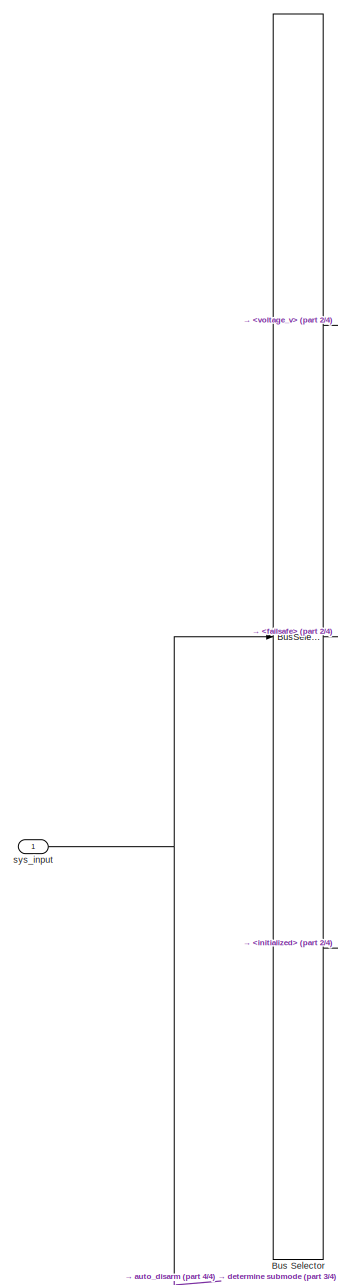
[diagram: determine arm and mode selection - part 1/4, left side, full height]
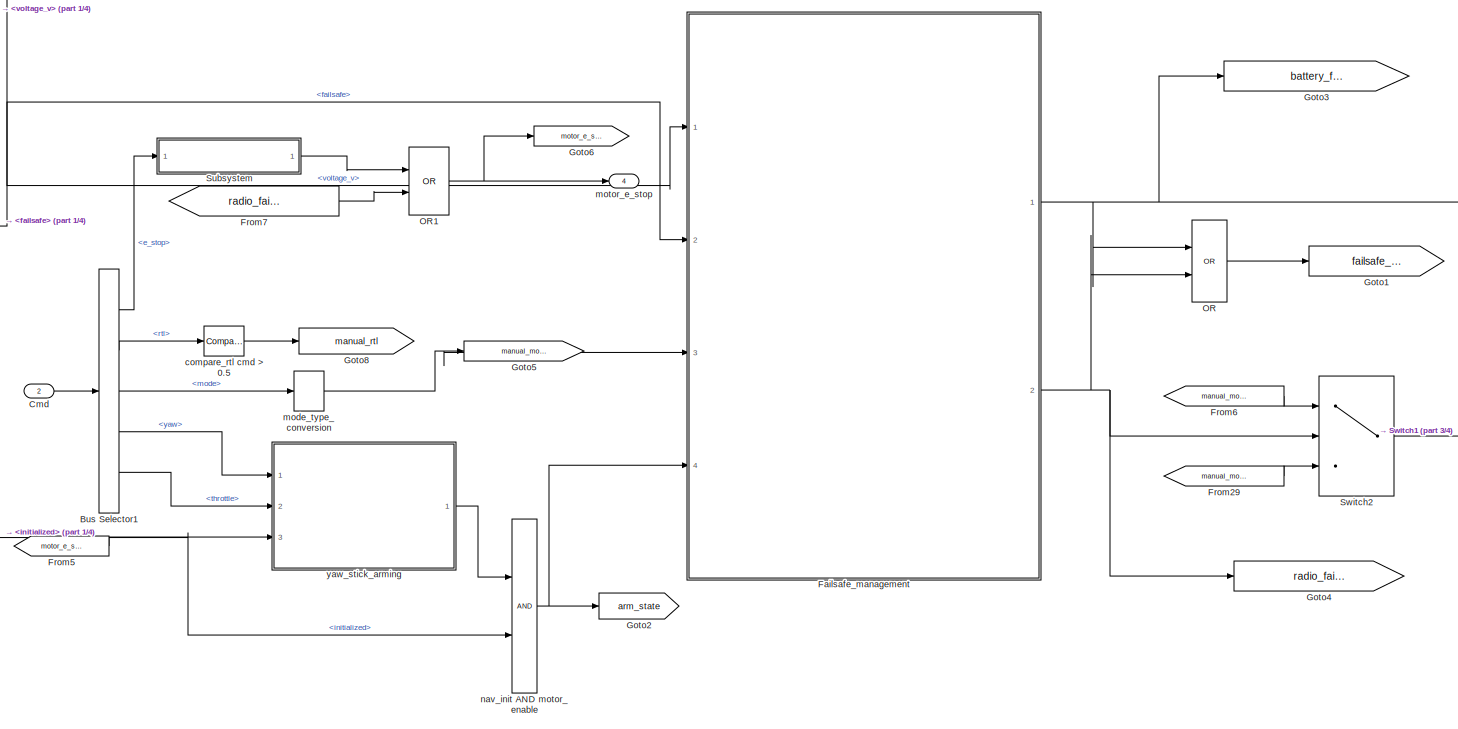
[diagram: determine arm and mode selection - part 2/4, middle left region]
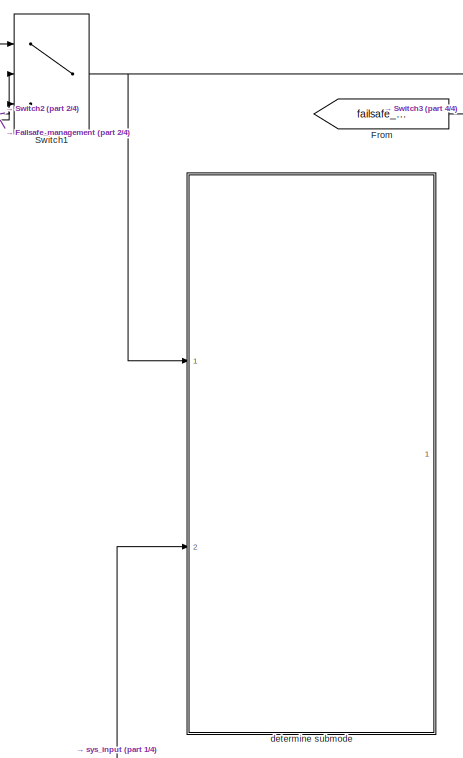
[diagram: determine arm and mode selection - part 3/4, central region]
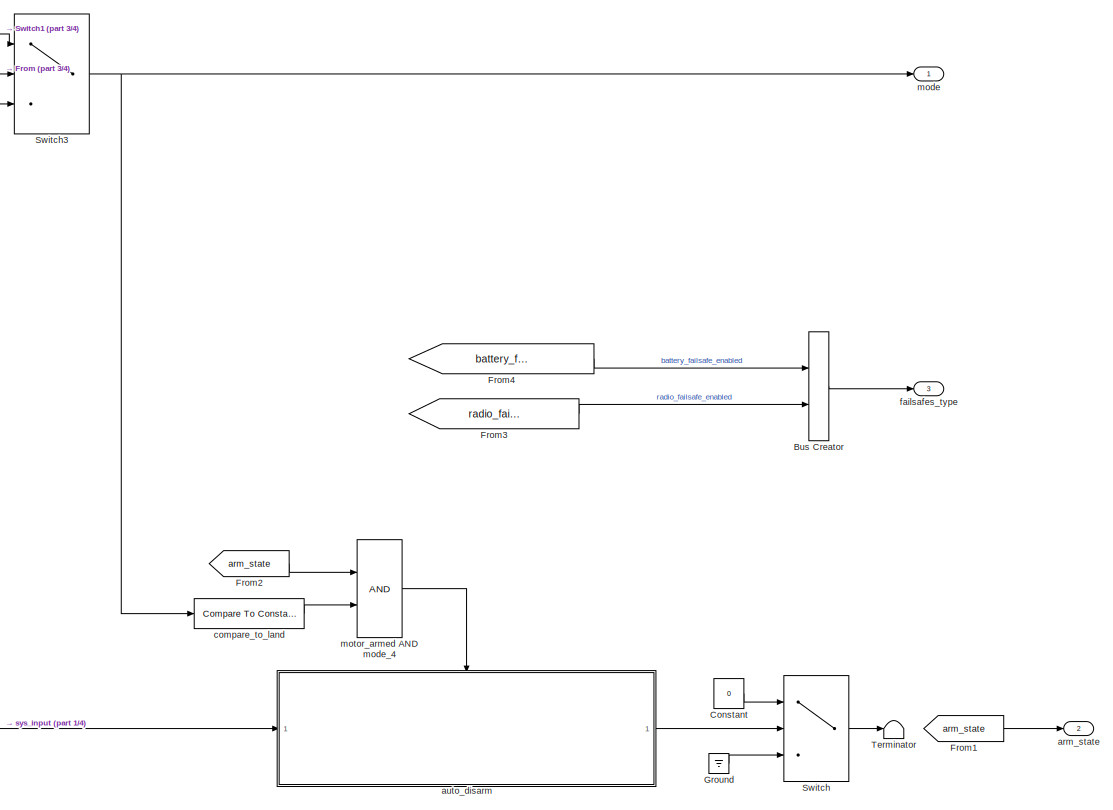
[diagram: determine arm and mode selection - part 4/4, middle right region]
BLOCK [SubSystem] determine arm and mode selection
  Ports = [2, 4]
  RequestExecContextInheritance = off
BLOCK [BusCreator] determine arm and mode selection/Bus Creator
  DisplayOption = bar
  InheritFromInputs = on
  Inputs = 2
  Ports = [2, 1]
BLOCK [BusSelector] determine arm and mode selection/Bus Selector
  OutputSignals = Sensor Data.power_module.voltage_v,Sensor Data.inceptor.failsafe,State Estimation Data.bfs_ins.initialized
  Ports = [1, 3]
BLOCK [BusSelector] determine arm and mode selection/Bus Selector1
  OutputSignals = e_stop,rtl,mode,yaw,throttle
  Ports = [1, 5]
BLOCK [Inport] determine arm and mode selection/Cmd
  Port = 2
BLOCK [Constant] determine arm and mode selection/Constant
  OutDataTypeStr = boolean
  Value = 0
BLOCK [SubSystem] determine arm and mode selection/Failsafe_management
  Ports = [4, 2]
  RequestExecContextInheritance = off
BLOCK [SubSystem] determine arm and mode selection/Failsafe_management/Battery failsafe
  Ports = [3, 1]
  RequestExecContextInheritance = off
BLOCK [Logic] determine arm and mode selection/Failsafe_management/Battery failsafe/AND
  AllPortsSameDT = off
  IconShape = distinctive
  OutDataTypeStr = boolean
  Ports = [2, 1]
BLOCK [Logic] determine arm and mode selection/Failsafe_management/Battery failsafe/AND1
  AllPortsSameDT = off
  IconShape = distinctive
  OutDataTypeStr = boolean
  Ports = [2, 1]
BLOCK [Reference] determine arm and mode selection/Failsafe_management/Battery failsafe/Compare To Constant  REF=simulink/Logic and Bit
Operations/Compare
To Constant
  Ports = [1, 1]
  SourceBlock = simulink/Logic and Bit\nOperations/Compare\nTo Constant
  SourceProductBaseCode = SL
  SourceType = Compare To Constant
BLOCK [Reference] determine arm and mode selection/Failsafe_management/Battery failsafe/Compare To Constant3  REF=simulink/Logic and Bit
Operations/Compare
To Constant
  Ports = [1, 1]
  SourceBlock = simulink/Logic and Bit\nOperations/Compare\nTo Constant
  SourceProductBaseCode = SL
  SourceType = Compare To Constant
BLOCK [Outport] determine arm and mode selection/Failsafe_management/Battery failsafe/battery_failsafe_enabled
BLOCK [SubSystem] determine arm and mode selection/Failsafe_management/Battery failsafe/disarm motor
  Ports = [0, 1, 1]
  RequestExecContextInheritance = off
BLOCK [Reference] determine arm and mode selection/Failsafe_management/Battery failsafe/disarm motor/Compare To Constant2  REF=simulink/Logic and Bit
Operations/Compare
To Constant
  Ports = [1, 1]
  SourceBlock = simulink/Logic and Bit\nOperations/Compare\nTo Constant
  SourceProductBaseCode = SL
  SourceType = Compare To Constant
BLOCK [Constant] determine arm and mode selection/Failsafe_management/Battery failsafe/disarm motor/Constant
  Value = framePeriod_s
BLOCK [EnablePort] determine arm and mode selection/Failsafe_management/Battery failsafe/disarm motor/Enable
  Ports = []
  StatesWhenEnabling = reset
BLOCK [Sum] determine arm and mode selection/Failsafe_management/Battery failsafe/disarm motor/Sum
  Inputs = |++
  Ports = [2, 1]
BLOCK [UnitDelay] determine arm and mode selection/Failsafe_management/Battery failsafe/disarm motor/Unit Delay
  HasFrameUpgradeWarning = on
  NameLocation = top
  SampleTime = -1
BLOCK [Outport] determine arm and mode selection/Failsafe_management/Battery failsafe/disarm motor/battery_low_trigger
BLOCK [Inport] determine arm and mode selection/Failsafe_management/Battery failsafe/manual_mode
  Port = 3
BLOCK [Inport] determine arm and mode selection/Failsafe_management/Battery failsafe/motor_state
BLOCK [Inport] determine arm and mode selection/Failsafe_management/Battery failsafe/voltage_v
  Port = 2
BLOCK [From] determine arm and mode selection/Failsafe_management/From
  GotoTag = manual_mode
BLOCK [Goto] determine arm and mode selection/Failsafe_management/Goto
  GotoTag = manual_mode
BLOCK [SubSystem] determine arm and mode selection/Failsafe_management/Radio failsafe
  Ports = [3, 1]
  RequestExecContextInheritance = off
BLOCK [Logic] determine arm and mode selection/Failsafe_management/Radio failsafe/AND1
  AllPortsSameDT = off
  Commented = on
  IconShape = distinctive
  OutDataTypeStr = boolean
  Ports = [2, 1]
BLOCK [Reference] determine arm and mode selection/Failsafe_management/Radio failsafe/Compare To Constant  REF=simulink/Logic and Bit
Operations/Compare
To Constant
  Commented = on
  Ports = [1, 1]
  SourceBlock = simulink/Logic and Bit\nOperations/Compare\nTo Constant
  SourceProductBaseCode = SL
  SourceType = Compare To Constant
BLOCK [Reference] determine arm and mode selection/Failsafe_management/Radio failsafe/Compare To Constant1  REF=simulink/Logic and Bit
Operations/Compare
To Constant
  Commented = on
  Ports = [1, 1]
  SourceBlock = simulink/Logic and Bit\nOperations/Compare\nTo Constant
  SourceProductBaseCode = SL
  SourceType = Compare To Constant
BLOCK [Reference] determine arm and mode selection/Failsafe_management/Radio failsafe/Compare To Constant2  REF=simulink/Logic and Bit
Operations/Compare
To Constant
  Commented = on
  Ports = [1, 1]
  SourceBlock = simulink/Logic and Bit\nOperations/Compare\nTo Constant
  SourceProductBaseCode = SL
  SourceType = Compare To Constant
BLOCK [Logic] determine arm and mode selection/Failsafe_management/Radio failsafe/NOR
  AllPortsSameDT = off
  Commented = on
  IconShape = distinctive
  Inputs = 4
  Operator = NOR
  OutDataTypeStr = boolean
  Ports = [4, 1]
BLOCK [Logic] determine arm and mode selection/Failsafe_management/Radio failsafe/NOT
  AllPortsSameDT = off
  Commented = on
  IconShape = distinctive
  Operator = NOT
  OutDataTypeStr = boolean
  Ports = [1, 1]
BLOCK [Logic] determine arm and mode selection/Failsafe_management/Radio failsafe/NOT1
  AllPortsSameDT = off
  IconShape = distinctive
  Operator = NOT
  OutDataTypeStr = boolean
  Ports = [1, 1]
BLOCK [Logic] determine arm and mode selection/Failsafe_management/Radio failsafe/NOT2
  AllPortsSameDT = off
  IconShape = distinctive
  Operator = NOT
  OutDataTypeStr = boolean
  Ports = [1, 1]
BLOCK [SubSystem] determine arm and mode selection/Failsafe_management/Radio failsafe/Subsystem
  Ports = [1, 1]
  RequestExecContextInheritance = off
BLOCK [Inport] determine arm and mode selection/Failsafe_management/Radio failsafe/Subsystem/<inceptor_health>
BLOCK [Sum] determine arm and mode selection/Failsafe_management/Radio failsafe/Subsystem/Add
  IconShape = rectangular
  Ports = [2, 1]
BLOCK [DataTypeConversion] determine arm and mode selection/Failsafe_management/Radio failsafe/Subsystem/Cast To Single
  OutDataTypeStr = single
  RndMeth = Floor
  SaturateOnIntegerOverflow = off
BLOCK [Constant] determine arm and mode selection/Failsafe_management/Radio failsafe/Subsystem/Constant
  Value = -0.5
BLOCK [Gain] determine arm and mode selection/Failsafe_management/Radio failsafe/Subsystem/Gain
  Gain = 2
BLOCK [SubSystem] determine arm and mode selection/Failsafe_management/Radio failsafe/Subsystem/Subsystem
  Ports = [1, 1]
  RequestExecContextInheritance = off
BLOCK [Inport] determine arm and mode selection/Failsafe_management/Radio failsafe/Subsystem/Subsystem/<incept_health_raw>
BLOCK [Abs] determine arm and mode selection/Failsafe_management/Radio failsafe/Subsystem/Subsystem/Abs1
  SaturateOnIntegerOverflow = off
BLOCK [Reference] determine arm and mode selection/Failsafe_management/Radio failsafe/Subsystem/Subsystem/Compare To Constant  REF=simulink/Logic and Bit
Operations/Compare
To Constant
  Ports = [1, 1]
  SourceBlock = simulink/Logic and Bit\nOperations/Compare\nTo Constant
  SourceProductBaseCode = SL
  SourceType = Compare To Constant
BLOCK [SubSystem] determine arm and mode selection/Failsafe_management/Radio failsafe/Subsystem/Subsystem/e_stop counter
  Ports = [1, 1, 1]
  RequestExecContextInheritance = off
BLOCK [Reference] determine arm and mode selection/Failsafe_management/Radio failsafe/Subsystem/Subsystem/e_stop counter/Compare To Constant  REF=simulink/Logic and Bit
Operations/Compare
To Constant
  Ports = [1, 1]
  SourceBlock = simulink/Logic and Bit\nOperations/Compare\nTo Constant
  SourceProductBaseCode = SL
  SourceType = Compare To Constant
BLOCK [DiscreteIntegrator] determine arm and mode selection/Failsafe_management/Radio failsafe/Subsystem/Subsystem/e_stop counter/Discrete-Time Integrator
  ICPrevOutput = DiscIntNeverNeededParam
  ICPrevScaledInput = DiscIntNeverNeededParam
  InitialConditionSetting = Auto
  LimitOutput = on
  LowerSaturationLimit = 0
  Ports = [1, 1]
  SampleTime = framePeriod_s
  UpperSaturationLimit = 1
BLOCK [EnablePort] determine arm and mode selection/Failsafe_management/Radio failsafe/Subsystem/Subsystem/e_stop counter/Enable
  Ports = []
  StatesWhenEnabling = reset
BLOCK [Gain] determine arm and mode selection/Failsafe_management/Radio failsafe/Subsystem/Subsystem/e_stop counter/Gain
  Gain = 2
BLOCK [Outport] determine arm and mode selection/Failsafe_management/Radio failsafe/Subsystem/Subsystem/e_stop counter/e_stop_filtered
BLOCK [Inport] determine arm and mode selection/Failsafe_management/Radio failsafe/Subsystem/Subsystem/e_stop counter/motor_e_stop_raw
BLOCK [Outport] determine arm and mode selection/Failsafe_management/Radio failsafe/Subsystem/Subsystem/incept_health_filter
BLOCK [Outport] determine arm and mode selection/Failsafe_management/Radio failsafe/Subsystem/inceptor_health_filtered
BLOCK [Inport] determine arm and mode selection/Failsafe_management/Radio failsafe/failsafe
BLOCK [Inport] determine arm and mode selection/Failsafe_management/Radio failsafe/manual_mode
  Port = 2
BLOCK [Inport] determine arm and mode selection/Failsafe_management/Radio failsafe/motor_state
  Port = 3
BLOCK [Outport] determine arm and mode selection/Failsafe_management/Radio failsafe/radio_failsafe_enabled
BLOCK [Outport] determine arm and mode selection/Failsafe_management/battery_failsafe_enabled
BLOCK [Inport] determine arm and mode selection/Failsafe_management/failsafe
  Port = 2
BLOCK [Inport] determine arm and mode selection/Failsafe_management/manual_mode
  Port = 3
BLOCK [Inport] determine arm and mode selection/Failsafe_management/motor_state
  Port = 4
BLOCK [Outport] determine arm and mode selection/Failsafe_management/radio_failsafe_enabled
  Port = 2
BLOCK [Inport] determine arm and mode selection/Failsafe_management/voltage
BLOCK [From] determine arm and mode selection/From
  GotoTag = failsafe_enabled
BLOCK [From] determine arm and mode selection/From1
  GotoTag = arm_state
BLOCK [From] determine arm and mode selection/From2
  GotoTag = arm_state
BLOCK [From] determine arm and mode selection/From29
  GotoTag = manual_mode
BLOCK [From] determine arm and mode selection/From3
  GotoTag = radio_failsafe_enabled
BLOCK [From] determine arm and mode selection/From4
  GotoTag = battery_failsafe_enabled
BLOCK [From] determine arm and mode selection/From5
  GotoTag = motor_e_stop
BLOCK [From] determine arm and mode selection/From6
  GotoTag = manual_mode
BLOCK [From] determine arm and mode selection/From7
  GotoTag = radio_failsafe_enabled
BLOCK [Goto] determine arm and mode selection/Goto1
  GotoTag = failsafe_enabled
BLOCK [Goto] determine arm and mode selection/Goto2
  GotoTag = arm_state
BLOCK [Goto] determine arm and mode selection/Goto3
  GotoTag = battery_failsafe_enabled
BLOCK [Goto] determine arm and mode selection/Goto4
  GotoTag = radio_failsafe_enabled
BLOCK [Goto] determine arm and mode selection/Goto5
  GotoTag = manual_mode
BLOCK [Goto] determine arm and mode selection/Goto6
  GotoTag = motor_e_stop
BLOCK [Goto] determine arm and mode selection/Goto8
  GotoTag = manual_rtl
BLOCK [Ground] determine arm and mode selection/Ground
BLOCK [Logic] determine arm and mode selection/OR
  AllPortsSameDT = off
  IconShape = distinctive
  Operator = OR
  OutDataTypeStr = boolean
  Ports = [2, 1]
BLOCK [Logic] determine arm and mode selection/OR1
  AllPortsSameDT = off
  IconShape = distinctive
  Operator = OR
  OutDataTypeStr = boolean
  Ports = [2, 1]
BLOCK [SubSystem] determine arm and mode selection/Subsystem
  Ports = [1, 1]
  RequestExecContextInheritance = off
BLOCK [Inport] determine arm and mode selection/Subsystem/<e_stop>
BLOCK [Abs] determine arm and mode selection/Subsystem/Abs1
  SaturateOnIntegerOverflow = off
BLOCK [Reference] determine arm and mode selection/Subsystem/Compare To Constant  REF=simulink/Logic and Bit
Operations/Compare
To Constant
  Ports = [1, 1]
  SourceBlock = simulink/Logic and Bit\nOperations/Compare\nTo Constant
  SourceProductBaseCode = SL
  SourceType = Compare To Constant
BLOCK [SubSystem] determine arm and mode selection/Subsystem/e_stop counter
  Ports = [1, 1, 1]
  RequestExecContextInheritance = off
BLOCK [Reference] determine arm and mode selection/Subsystem/e_stop counter/Compare To Constant  REF=simulink/Logic and Bit
Operations/Compare
To Constant
  Ports = [1, 1]
  SourceBlock = simulink/Logic and Bit\nOperations/Compare\nTo Constant
  SourceProductBaseCode = SL
  SourceType = Compare To Constant
BLOCK [DiscreteIntegrator] determine arm and mode selection/Subsystem/e_stop counter/Discrete-Time Integrator
  ICPrevOutput = DiscIntNeverNeededParam
  ICPrevScaledInput = DiscIntNeverNeededParam
  InitialConditionSetting = Auto
  LimitOutput = on
  LowerSaturationLimit = 0
  Ports = [1, 1]
  SampleTime = framePeriod_s
  UpperSaturationLimit = 1
BLOCK [EnablePort] determine arm and mode selection/Subsystem/e_stop counter/Enable
  Ports = []
  StatesWhenEnabling = reset
BLOCK [Gain] determine arm and mode selection/Subsystem/e_stop counter/Gain
  Gain = 2
BLOCK [Outport] determine arm and mode selection/Subsystem/e_stop counter/e_stop_filtered
BLOCK [Inport] determine arm and mode selection/Subsystem/e_stop counter/motor_e_stop_raw
BLOCK [Outport] determine arm and mode selection/Subsystem/e_stop_filtered
BLOCK [Switch] determine arm and mode selection/Switch
  Criteria = u2 > Threshold
  InputSameDT = off
  SaturateOnIntegerOverflow = off
BLOCK [Switch] determine arm and mode selection/Switch1
  Criteria = u2 > Threshold
  InputSameDT = off
  SaturateOnIntegerOverflow = off
BLOCK [Switch] determine arm and mode selection/Switch2
  Criteria = u2 > Threshold
  InputSameDT = off
  SaturateOnIntegerOverflow = off
BLOCK [Switch] determine arm and mode selection/Switch3
  Criteria = u2 > Threshold
  InputSameDT = off
  SaturateOnIntegerOverflow = off
BLOCK [Terminator] determine arm and mode selection/Terminator
BLOCK [Outport] determine arm and mode selection/arm_state
  Port = 2
BLOCK [SubSystem] determine arm and mode selection/auto_disarm
  Ports = [1, 1, 1]
  RequestExecContextInheritance = off
BLOCK [Logic] determine arm and mode selection/auto_disarm/AND
  AllPortsSameDT = off
  IconShape = distinctive
  OutDataTypeStr = boolean
  Ports = [2, 1]
BLOCK [Abs] determine arm and mode selection/auto_disarm/Abs
  SaturateOnIntegerOverflow = off
BLOCK [BusSelector] determine arm and mode selection/auto_disarm/Bus Selector
  OutputSignals = State Estimation Data.aux_ins.ned_pos_m,State Estimation Data.bfs_ins.ned_vel_mps
  Ports = [1, 2]
BLOCK [Reference] determine arm and mode selection/auto_disarm/Compare To Constant  REF=simulink/Logic and Bit
Operations/Compare
To Constant
  Ports = [1, 1]
  SourceBlock = simulink/Logic and Bit\nOperations/Compare\nTo Constant
  SourceProductBaseCode = SL
  SourceType = Compare To Constant
BLOCK [Reference] determine arm and mode selection/auto_disarm/Compare To Constant1  REF=simulink/Logic and Bit
Operations/Compare
To Constant
  Ports = [1, 1]
  SourceBlock = simulink/Logic and Bit\nOperations/Compare\nTo Constant
  SourceProductBaseCode = SL
  SourceType = Compare To Constant
BLOCK [EnablePort] determine arm and mode selection/auto_disarm/Enable
  Ports = []
BLOCK [Gain] determine arm and mode selection/auto_disarm/Gain
  Gain = -1
BLOCK [Selector] determine arm and mode selection/auto_disarm/Selector
  IndexOptions = Index vector (dialog)
  Indices = 3
  InputPortWidth = 3
  OutputSizes = 1
  Ports = [1, 1]
BLOCK [Selector] determine arm and mode selection/auto_disarm/Selector1
  IndexOptions = Index vector (dialog)
  Indices = 3
  InputPortWidth = 3
  OutputSizes = 1
  Ports = [1, 1]
BLOCK [SubSystem] determine arm and mode selection/auto_disarm/disarm motor
  Ports = [0, 1, 1]
  RequestExecContextInheritance = off
BLOCK [Reference] determine arm and mode selection/auto_disarm/disarm motor/Compare To Constant2  REF=simulink/Logic and Bit
Operations/Compare
To Constant
  Ports = [1, 1]
  SourceBlock = simulink/Logic and Bit\nOperations/Compare\nTo Constant
  SourceProductBaseCode = SL
  SourceType = Compare To Constant
BLOCK [Constant] determine arm and mode selection/auto_disarm/disarm motor/Constant
  Value = framePeriod_s
BLOCK [EnablePort] determine arm and mode selection/auto_disarm/disarm motor/Enable
  Ports = []
  StatesWhenEnabling = reset
BLOCK [Sum] determine arm and mode selection/auto_disarm/disarm motor/Sum
  Inputs = |++
  Ports = [2, 1]
BLOCK [UnitDelay] determine arm and mode selection/auto_disarm/disarm motor/Unit Delay
  HasFrameUpgradeWarning = on
  NameLocation = top
  SampleTime = -1
BLOCK [Outport] determine arm and mode selection/auto_disarm/disarm motor/trigger_disarm
BLOCK [Inport] determine arm and mode selection/auto_disarm/sys_input
BLOCK [Outport] determine arm and mode selection/auto_disarm/trigger_disarm
BLOCK [Reference] determine arm and mode selection/compare_rtl cmd > 0.5  REF=simulink/Logic and Bit
Operations/Compare
To Constant
  Ports = [1, 1]
  SourceBlock = simulink/Logic and Bit\nOperations/Compare\nTo Constant
  SourceProductBaseCode = SL
  SourceType = Compare To Constant
BLOCK [Reference] determine arm and mode selection/compare_to_land  REF=simulink/Logic and Bit
Operations/Compare
To Constant
  Ports = [1, 1]
  SourceBlock = simulink/Logic and Bit\nOperations/Compare\nTo Constant
  SourceProductBaseCode = SL
  SourceType = Compare To Constant
BLOCK [SubSystem] determine arm and mode selection/determine submode
  Commented = on
  Ports = [2, 1]
  RequestExecContextInheritance = off
BLOCK [From] determine arm and mode selection/determine submode/From
  GotoTag = mode
BLOCK [From] determine arm and mode selection/determine submode/From2
  GotoTag = mode
BLOCK [From] determine arm and mode selection/determine submode/From3
  GotoTag = mode
BLOCK [From] determine arm and mode selection/determine submode/From4
  GotoTag = mode
BLOCK [Goto] determine arm and mode selection/determine submode/Goto
  GotoTag = mode
BLOCK [MultiPortSwitch] determine arm and mode selection/determine submode/Multiport Switch
  DataPortForDefault = Additional data port
  DataPortIndices = {2,3}
  DataPortOrder = Specify indices
  DiagnosticForDefault = None
  InputSameDT = off
  Ports = [4, 1]
  SaturateOnIntegerOverflow = off
BLOCK [Reference] determine arm and mode selection/determine submode/compare_to_rtl_mode  REF=simulink/Logic and Bit
Operations/Compare
To Constant
  Ports = [1, 1]
  SourceBlock = simulink/Logic and Bit\nOperations/Compare\nTo Constant
  SourceProductBaseCode = SL
  SourceType = Compare To Constant
BLOCK [Reference] determine arm and mode selection/determine submode/compare_to_wp_mode  REF=simulink/Logic and Bit
Operations/Compare
To Constant
  Ports = [1, 1]
  SourceBlock = simulink/Logic and Bit\nOperations/Compare\nTo Constant
  SourceProductBaseCode = SL
  SourceType = Compare To Constant
BLOCK [Inport] determine arm and mode selection/determine submode/mode
BLOCK [SubSystem] determine arm and mode selection/determine submode/rtl submodes
  Ports = [2, 1, 1]
  RequestExecContextInheritance = off
BLOCK [BusSelector] determine arm and mode selection/determine submode/rtl submodes/Bus Selector
  OutputSignals = Aux Ins Data.ned_pos_m
  Ports = [1, 1]
BLOCK [Constant] determine arm and mode selection/determine submode/rtl submodes/Constant
  Value = Aircraft.Control.wp_radius
BLOCK [Constant] determine arm and mode selection/determine submode/rtl submodes/Constant1
  OutDataTypeStr = single
  Value = [0,0,0]
BLOCK [EnablePort] determine arm and mode selection/determine submode/rtl submodes/Enable
  Ports = []
BLOCK [Inport] determine arm and mode selection/determine submode/rtl submodes/cur_mode
  Port = 2
BLOCK [SubSystem] determine arm and mode selection/determine submode/rtl submodes/determine_fast_rtl_mode
  ErrorFcn = Stateflow.Translate.translate
  PermitHierarchicalResolution = ExplicitOnly
  Ports = [4, 1]
  RequestExecContextInheritance = off
  SFBlockType = MATLAB Function
  TreatAsAtomicUnit = on
BLOCK [Demux] determine arm and mode selection/determine submode/rtl submodes/determine_fast_rtl_mode/ Demux 
  Outputs = 1
  Ports = [1, 1]
BLOCK [S-Function] determine arm and mode selection/determine submode/rtl submodes/determine_fast_rtl_mode/ SFunction 
  EnableBusSupport = on
  FunctionName = sf_sfun
  PortCounts = [4 2]
  Ports = [4, 2]
  SFcnIsStateOwnerBlock = off
  SFunctionDeploymentMode = off
  Tag = Stateflow S-Function 3
BLOCK [Terminator] determine arm and mode selection/determine submode/rtl submodes/determine_fast_rtl_mode/ Terminator 
BLOCK [Inport] determine arm and mode selection/determine submode/rtl submodes/determine_fast_rtl_mode/Aircraft_Control_wp_radius
  Port = 4
BLOCK [Inport] determine arm and mode selection/determine submode/rtl submodes/determine_fast_rtl_mode/cur_mode
  Port = 3
BLOCK [Inport] determine arm and mode selection/determine submode/rtl submodes/determine_fast_rtl_mode/ned_pos
  Port = 2
BLOCK [Outport] determine arm and mode selection/determine submode/rtl submodes/determine_fast_rtl_mode/sub_mode
BLOCK [Inport] determine arm and mode selection/determine submode/rtl submodes/determine_fast_rtl_mode/target_pos
BLOCK [Outport] determine arm and mode selection/determine submode/rtl submodes/rtl_submode
BLOCK [Inport] determine arm and mode selection/determine submode/rtl submodes/sys_input
BLOCK [Outport] determine arm and mode selection/determine submode/sub_mode
BLOCK [Inport] determine arm and mode selection/determine submode/sys_input
  Port = 2
BLOCK [SubSystem] determine arm and mode selection/determine submode/waypoint submodes
  Ports = [2, 1, 1]
  RequestExecContextInheritance = off
BLOCK [BusSelector] determine arm and mode selection/determine submode/waypoint submodes/Bus Selector
  OutputSignals = autocontinue,cmd,x,y,z
  Ports = [1, 5]
BLOCK [BusSelector] determine arm and mode selection/determine submode/waypoint submodes/Bus Selector1
  OutputSignals = flight_plan,current_waypoint
  Ports = [1, 2]
BLOCK [BusSelector] determine arm and mode selection/determine submode/waypoint submodes/Bus Selector2
  OutputSignals = param
  Ports = [1, 1]
BLOCK [BusSelector] determine arm and mode selection/determine submode/waypoint submodes/Bus Selector3
  OutputSignals = Telemetry Data,Navigation Filter Data.bfs_ekf.home_lat_rad,Navigation Filter Data.bfs_ekf.home_lon_rad,Navigation Filter Data.bfs_ekf.alt_wgs84_m,Navigation Filter Data.bfs_ekf.ned_pos_m,Telemetry Data
  Ports = [1, 6]
BLOCK [Constant] determine arm and mode selection/determine submode/waypoint submodes/Constant
  OutDataTypeStr = single
  Value = 10
BLOCK [EnablePort] determine arm and mode selection/determine submode/waypoint submodes/Enable
  Ports = []
BLOCK [Selector] determine arm and mode selection/determine submode/waypoint submodes/Selector
  IndexMode = Zero-based
  IndexOptions = Index vector (port)
  Indices = 7
  InputPortWidth = 500
  OutputSizes = 1
  Ports = [2, 1]
BLOCK [Selector] determine arm and mode selection/determine submode/waypoint submodes/Selector1
  IndexMode = Zero-based
  IndexOptions = Index vector (port)
  Indices = [1 3]
  OutputSizes = 1
  Ports = [2, 1]
BLOCK [Inport] determine arm and mode selection/determine submode/waypoint submodes/cur_mode
  Port = 2
BLOCK [SubSystem] determine arm and mode selection/determine submode/waypoint submodes/determine_target_pos
  ErrorFcn = Stateflow.Translate.translate
  PermitHierarchicalResolution = ExplicitOnly
  Ports = [6, 1]
  RequestExecContextInheritance = off
  SFBlockType = MATLAB Function
  TreatAsAtomicUnit = on
BLOCK [Demux] determine arm and mode selection/determine submode/waypoint submodes/determine_target_pos/ Demux 
  Outputs = 1
  Ports = [1, 1]
BLOCK [S-Function] determine arm and mode selection/determine submode/waypoint submodes/determine_target_pos/ SFunction 
  EnableBusSupport = on
  FunctionName = sf_sfun
  PortCounts = [6 2]
  Ports = [6, 2]
  SFcnIsStateOwnerBlock = off
  SFunctionDeploymentMode = off
  Tag = Stateflow S-Function 1
BLOCK [Terminator] determine arm and mode selection/determine submode/waypoint submodes/determine_target_pos/ Terminator 
BLOCK [Inport] determine arm and mode selection/determine submode/waypoint submodes/determine_target_pos/fp_x
BLOCK [Inport] determine arm and mode selection/determine submode/waypoint submodes/determine_target_pos/fp_y
  Port = 2
BLOCK [Inport] determine arm and mode selection/determine submode/waypoint submodes/determine_target_pos/fp_z
  Port = 3
BLOCK [Inport] determine arm and mode selection/determine submode/waypoint submodes/determine_target_pos/home_alt
  Port = 6
BLOCK [Inport] determine arm and mode selection/determine submode/waypoint submodes/determine_target_pos/home_lat_rad
  Port = 4
BLOCK [Inport] determine arm and mode selection/determine submode/waypoint submodes/determine_target_pos/home_lon_rad
  Port = 5
BLOCK [Outport] determine arm and mode selection/determine submode/waypoint submodes/determine_target_pos/target_pos
BLOCK [SubSystem] determine arm and mode selection/determine submode/waypoint submodes/determine_wp_submode
  ErrorFcn = Stateflow.Translate.translate
  PermitHierarchicalResolution = ExplicitOnly
  Ports = [6, 1]
  RequestExecContextInheritance = off
  SFBlockType = MATLAB Function
  TreatAsAtomicUnit = on
BLOCK [Demux] determine arm and mode selection/determine submode/waypoint submodes/determine_wp_submode/ Demux 
  Outputs = 1
  Ports = [1, 1]
BLOCK [S-Function] determine arm and mode selection/determine submode/waypoint submodes/determine_wp_submode/ SFunction 
  EnableBusSupport = on
  FunctionName = sf_sfun
  PortCounts = [6 2]
  Ports = [6, 2]
  SFcnIsStateOwnerBlock = off
  SFunctionDeploymentMode = off
  Tag = Stateflow S-Function 2
BLOCK [Terminator] determine arm and mode selection/determine submode/waypoint submodes/determine_wp_submode/ Terminator 
BLOCK [Inport] determine arm and mode selection/determine submode/waypoint submodes/determine_wp_submode/Aircraft_Control_wp_radius
  Port = 6
BLOCK [Inport] determine arm and mode selection/determine submode/waypoint submodes/determine_wp_submode/autocontinue
BLOCK [Inport] determine arm and mode selection/determine submode/waypoint submodes/determine_wp_submode/cmd
  Port = 2
BLOCK [Inport] determine arm and mode selection/determine submode/waypoint submodes/determine_wp_submode/cur_mode
  Port = 5
BLOCK [Inport] determine arm and mode selection/determine submode/waypoint submodes/determine_wp_submode/ned_pos
  Port = 4
BLOCK [Outport] determine arm and mode selection/determine submode/waypoint submodes/determine_wp_submode/sub_mode
BLOCK [Inport] determine arm and mode selection/determine submode/waypoint submodes/determine_wp_submode/target_pos
  Port = 3
BLOCK [Inport] determine arm and mode selection/determine submode/waypoint submodes/sys_intput
BLOCK [Outport] determine arm and mode selection/determine submode/waypoint submodes/wp_submode
BLOCK [Outport] determine arm and mode selection/failsafes_type
  Port = 3
BLOCK [Outport] determine arm and mode selection/mode
BLOCK [DataTypeConversion] determine arm and mode selection/mode_type_conversion
  OutDataTypeStr = int8
  RndMeth = Nearest
  SaturateOnIntegerOverflow = off
BLOCK [Logic] determine arm and mode selection/motor_armed AND mode_4
  AllPortsSameDT = off
  IconShape = distinctive
  OutDataTypeStr = boolean
  Ports = [2, 1]
BLOCK [Outport] determine arm and mode selection/motor_e_stop
  Port = 4
BLOCK [Logic] determine arm and mode selection/nav_init AND motor_enable
  AllPortsSameDT = off
  IconShape = distinctive
  OutDataTypeStr = boolean
  Ports = [2, 1]
BLOCK [Inport] determine arm and mode selection/sys_input
BLOCK [SubSystem] determine arm and mode selection/yaw_stick_arming
  Ports = [3, 1]
  RequestExecContextInheritance = off
BLOCK [Inport] determine arm and mode selection/yaw_stick_arming/<throttle>
  Port = 2
BLOCK [Inport] determine arm and mode selection/yaw_stick_arming/<yaw>
BLOCK [Logic] determine arm and mode selection/yaw_stick_arming/AND
  AllPortsSameDT = off
  IconShape = distinctive
  OutDataTypeStr = boolean
  Ports = [2, 1]
BLOCK [Abs] determine arm and mode selection/yaw_stick_arming/Abs
  SaturateOnIntegerOverflow = off
BLOCK [DataTypeConversion] determine arm and mode selection/yaw_stick_arming/Cast To Single
  OutDataTypeStr = single
  RndMeth = Floor
  SaturateOnIntegerOverflow = off
BLOCK [Reference] determine arm and mode selection/yaw_stick_arming/Compare To Constant  REF=simulink/Logic and Bit
Operations/Compare
To Constant
  Ports = [1, 1]
  SourceBlock = simulink/Logic and Bit\nOperations/Compare\nTo Constant
  SourceProductBaseCode = SL
  SourceType = Compare To Constant
BLOCK [Reference] determine arm and mode selection/yaw_stick_arming/Compare To Constant1  REF=simulink/Logic and Bit
Operations/Compare
To Constant
  Ports = [1, 1]
  SourceBlock = simulink/Logic and Bit\nOperations/Compare\nTo Constant
  SourceProductBaseCode = SL
  SourceType = Compare To Constant
BLOCK [Reference] determine arm and mode selection/yaw_stick_arming/Compare To Constant2  REF=simulink/Logic and Bit
Operations/Compare
To Constant
  Ports = [1, 1]
  SourceBlock = simulink/Logic and Bit\nOperations/Compare\nTo Constant
  SourceProductBaseCode = SL
  SourceType = Compare To Constant
BLOCK [Reference] determine arm and mode selection/yaw_stick_arming/Compare To Constant3  REF=simulink/Logic and Bit
Operations/Compare
To Constant
  Ports = [1, 1]
  SourceBlock = simulink/Logic and Bit\nOperations/Compare\nTo Constant
  SourceProductBaseCode = SL
  SourceType = Compare To Constant
BLOCK [Reference] determine arm and mode selection/yaw_stick_arming/Compare To Constant4  REF=simulink/Logic and Bit
Operations/Compare
To Constant
  Ports = [1, 1]
  SourceBlock = simulink/Logic and Bit\nOperations/Compare\nTo Constant
  SourceProductBaseCode = SL
  SourceType = Compare To Constant
BLOCK [Constant] determine arm and mode selection/yaw_stick_arming/Constant
  LockScale = on
  OutDataTypeStr = boolean
  Value = 0
BLOCK [SubSystem] determine arm and mode selection/yaw_stick_arming/Enabled Subsystem
  Ports = [1, 1, 1]
  RequestExecContextInheritance = off
  TreatAsAtomicUnit = on
BLOCK [DataTypeConversion] determine arm and mode selection/yaw_stick_arming/Enabled Subsystem/Cast
  OutDataTypeStr = int8
  RndMeth = Floor
  SaturateOnIntegerOverflow = off
BLOCK [DiscreteIntegrator] determine arm and mode selection/yaw_stick_arming/Enabled Subsystem/Discrete-Time Integrator
  ICPrevOutput = DiscIntNeverNeededParam
  ICPrevScaledInput = DiscIntNeverNeededParam
  InitialConditionSetting = Auto
  IntegratorMethod = Integration: Trapezoidal
  LowerSaturationLimit = 0
  OutDataTypeStr = single
  Ports = [1, 1]
  SampleTime = framePeriod_s
  UpperSaturationLimit = 1
BLOCK [EnablePort] determine arm and mode selection/yaw_stick_arming/Enabled Subsystem/Enable
  Ports = []
  StatesWhenEnabling = reset
BLOCK [Outport] determine arm and mode selection/yaw_stick_arming/Enabled Subsystem/time_arm_valid_s
BLOCK [Inport] determine arm and mode selection/yaw_stick_arming/Enabled Subsystem/yaw_input
BLOCK [Logic] determine arm and mode selection/yaw_stick_arming/OR
  AllPortsSameDT = off
  IconShape = distinctive
  Operator = OR
  OutDataTypeStr = boolean
  Ports = [2, 1]
BLOCK [Sum] determine arm and mode selection/yaw_stick_arming/Sum
  Inputs = -+|
  Ports = [2, 1]
BLOCK [Switch] determine arm and mode selection/yaw_stick_arming/Switch
  Criteria = u2 > Threshold
  InputSameDT = off
  SaturateOnIntegerOverflow = off
BLOCK [UnitDelay] determine arm and mode selection/yaw_stick_arming/Unit Delay
  HasFrameUpgradeWarning = on
  SampleTime = -1
BLOCK [Outport] determine arm and mode selection/yaw_stick_arming/arm_state
BLOCK [Inport] determine arm and mode selection/yaw_stick_arming/e_stop
  Port = 3
BLOCK [SubSystem] determine arm and mode selection/yaw_stick_arming/manual_arming
  Ports = [1, 1, 0, 1]
  RequestExecContextInheritance = off
BLOCK [TriggerPort] determine arm and mode selection/yaw_stick_arming/manual_arming/Trigger
  PortDimensions = 1
  Ports = []
  StatesWhenEnabling = held
  VariantControl = (inherit)
BLOCK [Outport] determine arm and mode selection/yaw_stick_arming/manual_arming/arm_state
BLOCK [Inport] determine arm and mode selection/yaw_stick_arming/manual_arming/yaw_arm
BLOCK [SubSystem] emergency_stop_system
  Ports = [2, 1]
  RequestExecContextInheritance = off
BLOCK [Constant] emergency_stop_system/Constant
  OutDataTypeStr = single
  Value = [0,0,0,0,0,0,0,0]
BLOCK [Switch] emergency_stop_system/emergency_switch
  Criteria = u2 > Threshold
  InputSameDT = off
  SaturateOnIntegerOverflow = off
  Threshold = 0.5
BLOCK [Inport] emergency_stop_system/emmergency_stop_signal
  Port = 2
BLOCK [Inport] emergency_stop_system/input_signal
BLOCK [Outport] emergency_stop_system/pwm_cmd
BLOCK [SubSystem] initial_motor_ramp
  Ports = [2, 2]
  RequestExecContextInheritance = off
BLOCK [Reference] initial_motor_ramp/Compare To Constant  REF=simulink/Logic and Bit
Operations/Compare
To Constant
  Ports = [1, 1]
  SourceBlock = simulink/Logic and Bit\nOperations/Compare\nTo Constant
  SourceProductBaseCode = SL
  SourceType = Compare To Constant
BLOCK [Constant] initial_motor_ramp/Constant
  OutDataTypeStr = single
  Value = -100
BLOCK [Constant] initial_motor_ramp/Constant1
  OutDataTypeStr = single
  Value = Aircraft.Control.motor_ramp_time_s
BLOCK [Gain] initial_motor_ramp/Gain1
  Gain = -1
BLOCK [Logic] initial_motor_ramp/NOT
  AllPortsSameDT = off
  IconShape = distinctive
  Operator = NOT
  OutDataTypeStr = boolean
  Ports = [1, 1]
BLOCK [Inport] initial_motor_ramp/e_stop
  Port = 2
BLOCK [Switch] initial_motor_ramp/fast_dis_arm_time
  Criteria = u2 > Threshold
  InputSameDT = off
  SaturateOnIntegerOverflow = off
BLOCK [Switch] initial_motor_ramp/motor_arm_ramp
  Criteria = u2 > Threshold
  InputSameDT = off
  SaturateOnIntegerOverflow = off
BLOCK [DiscreteIntegrator] initial_motor_ramp/motor_arm_ramp_integrator
  ICPrevOutput = DiscIntNeverNeededParam
  ICPrevScaledInput = DiscIntNeverNeededParam
  InitialConditionSetting = Auto
  LimitOutput = on
  LowerSaturationLimit = 0
  Ports = [1, 1]
  SampleTime = framePeriod_s
  UpperSaturationLimit = 1
BLOCK [Inport] initial_motor_ramp/motor_armed
BLOCK [Outport] initial_motor_ramp/motor_output_gain
BLOCK [Outport] initial_motor_ramp/ramp_down_completed
  Port = 2
BLOCK [Product] initial_motor_ramp/ramp_time_intergrator signal
  Inputs = /
  Ports = [1, 1]
BLOCK [Logic] motor_armed AND mode_0
  AllPortsSameDT = off
  IconShape = distinctive
  OutDataTypeStr = boolean
  Ports = [2, 1]
BLOCK [Logic] motor_armed AND mode_1
  AllPortsSameDT = off
  Commented = on
  IconShape = distinctive
  OutDataTypeStr = boolean
  Ports = [2, 1]
BLOCK [Logic] motor_armed AND mode_2
  AllPortsSameDT = off
  Commented = on
  IconShape = distinctive
  OutDataTypeStr = boolean
  Ports = [2, 1]
BLOCK [Logic] motor_armed AND mode_3
  AllPortsSameDT = off
  Commented = on
  IconShape = distinctive
  OutDataTypeStr = boolean
  Ports = [2, 1]
BLOCK [Logic] motor_armed AND mode_4
  AllPortsSameDT = off
  Commented = on
  IconShape = distinctive
  OutDataTypeStr = boolean
  Ports = [2, 1]
BLOCK [Logic] motor_armed AND mode_5
  AllPortsSameDT = off
  Commented = on
  IconShape = distinctive
  OutDataTypeStr = boolean
  Ports = [2, 1]
ANNOTATION LAND CONTROLLER/Vertical speed controller: Need to tune PID controller for Altitude Hold May need to add low pass filter to NED velocity will need to route in time signal once we add autonomous -is a clock present in simulink to route into here
ANNOTATION POS_HOLD CONTROLLER/Horizontal speed controller: Assume small roll and pitch angles so translation in Earth frame can be rotated to body frame by rotating by heading only
ANNOTATION POS_HOLD CONTROLLER/Vertical speed controller: Need to tune PID controller for Altitude Hold May need to add low pass filter to NED velocity will need to route in time signal once we add autonomous -is a clock present in simulink to route into here
ANNOTATION WAYPOINT CONTROLLER/wp_completion_check: Output wp_reached cmd only when distance between current pos and target pos is less than wp_radius.
ANNOTATION determine arm and mode selection/Failsafe_management: - radio failsafe - battery failsafe
ANNOTATION determine arm and mode selection/Failsafe_management/Battery failsafe: Battery voltage is less than 46.8 for more than 15 seconds and current_mode is not Land nor motor_state is off
ANNOTATION determine arm and mode selection/Failsafe_management/Battery failsafe: Land immediatedly
ANNOTATION determine arm and mode selection/Failsafe_management/Radio failsafe: If radio_failsafe is triggered and current_mode is not auto, rtl, land nor motor_state disarmed then RTL mode is triggered
ANNOTATION determine arm and mode selection/Failsafe_management/Radio failsafe: Transition to RTL mode
ANNOTATION determine arm and mode selection/Failsafe_management/Radio failsafe/Subsystem/Subsystem/e_stop counter: This is to ensure e_stop event is not triggered unless e_stop command is sent for more than 0.3 s to prevent false trigger
ANNOTATION determine arm and mode selection/Subsystem/e_stop counter: This is to ensure e_stop event is not triggered unless e_stop command is sent for more than 0.3 s to prevent false trigger
ANNOTATION determine arm and mode selection/auto_disarm: If altitude is less than slow_land altitude and vertical speed is within 30 cm/s for 10s, system automatically disarm
ANNOTATION determine arm and mode selection/determine submode/rtl submodes: Fast RTL check if UAV already within WP radius of the home position so that it can Land right away
ANNOTATION determine arm and mode selection/determine submode/waypoint submodes: Select RTL if command 20 is sent. Set mode to Pos_hold if auto continue is false
ANNOTATION determine arm and mode selection/yaw_stick_arming: yaw_stick arming
LINE AND:1 -> Goto2:1
LINE ANGLE CONTROLLER/Bus Creator4:1 -> ANGLE CONTROLLER/Command out:1
LINE ANGLE CONTROLLER/Bus Creator:1 -> ANGLE CONTROLLER/inner_loop_log:1
LINE ANGLE CONTROLLER/Bus Selector:1 -> ANGLE CONTROLLER/Goto:1
LINE ANGLE CONTROLLER/Bus Selector:2 -> ANGLE CONTROLLER/Goto2:1
LINE ANGLE CONTROLLER/Bus Selector:3 -> ANGLE CONTROLLER/Goto1:1
LINE ANGLE CONTROLLER/Bus Selector:4 -> ANGLE CONTROLLER/Goto3:1
LINE ANGLE CONTROLLER/Cmd_input:1 -> ANGLE CONTROLLER/Bus Selector:1
LINE ANGLE CONTROLLER/Demux1:1 -> ANGLE CONTROLLER/Bus Creator:7
LINE ANGLE CONTROLLER/Demux1:2 -> ANGLE CONTROLLER/Bus Creator:8
LINE ANGLE CONTROLLER/Demux1:3 -> ANGLE CONTROLLER/Bus Creator:9
LINE ANGLE CONTROLLER/Demux2:1 -> ANGLE CONTROLLER/Bus Creator:11
LINE ANGLE CONTROLLER/Demux2:2 -> ANGLE CONTROLLER/Bus Creator:12
LINE ANGLE CONTROLLER/Demux:1 -> ANGLE CONTROLLER/Bus Creator:3
LINE ANGLE CONTROLLER/Demux:2 -> ANGLE CONTROLLER/Bus Creator:4
LINE ANGLE CONTROLLER/Demux:3 -> ANGLE CONTROLLER/Bus Creator:5
LINE ANGLE CONTROLLER/From1:1 -> ANGLE CONTROLLER/Roll Controller:2
LINE ANGLE CONTROLLER/From2:1 -> ANGLE CONTROLLER/Pitch Controller:2
LINE ANGLE CONTROLLER/From3:1 -> ANGLE CONTROLLER/Yaw Rate Controller:2
LINE ANGLE CONTROLLER/From4:1 -> ANGLE CONTROLLER/Roll Controller:3
LINE ANGLE CONTROLLER/From5:1 -> ANGLE CONTROLLER/Pitch Controller:3
LINE ANGLE CONTROLLER/From6:1 -> ANGLE CONTROLLER/Yaw Rate Controller:3
NET ANGLE CONTROLLER/From:1 -> ANGLE CONTROLLER/Bus Creator4:1, ANGLE CONTROLLER/Bus Creator:1
NET ANGLE CONTROLLER/Pitch Controller/Bus Selector:1 -> ANGLE CONTROLLER/Pitch Controller/Mux:2, ANGLE CONTROLLER/Pitch Controller/stab_pitch_angle_error_calc:2
LINE ANGLE CONTROLLER/Pitch Controller/Bus Selector:2 -> ANGLE CONTROLLER/Pitch Controller/Selector:1
LINE ANGLE CONTROLLER/Pitch Controller/Bus Selector:3 -> ANGLE CONTROLLER/Pitch Controller/select_roll_PID:1
NET ANGLE CONTROLLER/Pitch Controller/Degrees to Radians:1 -> ANGLE CONTROLLER/Pitch Controller/Gain1:1, ANGLE CONTROLLER/Pitch Controller/Saturation Dynamic:1
LINE ANGLE CONTROLLER/Pitch Controller/Demux:1 -> ANGLE CONTROLLER/Pitch Controller/Goto:1
LINE ANGLE CONTROLLER/Pitch Controller/Demux:2 -> ANGLE CONTROLLER/Pitch Controller/Goto1:1
LINE ANGLE CONTROLLER/Pitch Controller/Demux:3 -> ANGLE CONTROLLER/Pitch Controller/Goto2:1
LINE ANGLE CONTROLLER/Pitch Controller/Demux:4 -> ANGLE CONTROLLER/Pitch Controller/Goto3:1
LINE ANGLE CONTROLLER/Pitch Controller/Demux:5 -> ANGLE CONTROLLER/Pitch Controller/Goto4:1
LINE ANGLE CONTROLLER/Pitch Controller/Demux:6 -> ANGLE CONTROLLER/Pitch Controller/Goto5:1
LINE ANGLE CONTROLLER/Pitch Controller/Demux:7 -> ANGLE CONTROLLER/Pitch Controller/Goto6:1
LINE ANGLE CONTROLLER/Pitch Controller/Discrete Derivative:1 -> ANGLE CONTROLLER/Pitch Controller/Product:1
LINE ANGLE CONTROLLER/Pitch Controller/From1:1 -> ANGLE CONTROLLER/Pitch Controller/stab_pitch_PID:3
LINE ANGLE CONTROLLER/Pitch Controller/From2:1 -> ANGLE CONTROLLER/Pitch Controller/Product:2
LINE ANGLE CONTROLLER/Pitch Controller/From3:1 -> ANGLE CONTROLLER/Pitch Controller/Product1:2
LINE ANGLE CONTROLLER/Pitch Controller/From4:1 -> ANGLE CONTROLLER/Pitch Controller/Degrees to Radians:1
NET ANGLE CONTROLLER/Pitch Controller/From5:1 -> ANGLE CONTROLLER/Pitch Controller/Gain:1, ANGLE CONTROLLER/Pitch Controller/stab_pitch_PID:5
LINE ANGLE CONTROLLER/Pitch Controller/From6:1 -> ANGLE CONTROLLER/Pitch Controller/pitch_D_DLPF:2
LINE ANGLE CONTROLLER/Pitch Controller/From:1 -> ANGLE CONTROLLER/Pitch Controller/stab_pitch_PID:2
LINE ANGLE CONTROLLER/Pitch Controller/Gain1:1 -> ANGLE CONTROLLER/Pitch Controller/Saturation Dynamic:3
LINE ANGLE CONTROLLER/Pitch Controller/Gain:1 -> ANGLE CONTROLLER/Pitch Controller/stab_pitch_PID:6
LINE ANGLE CONTROLLER/Pitch Controller/Mux:1 -> ANGLE CONTROLLER/Pitch Controller/logging:1
NET ANGLE CONTROLLER/Pitch Controller/Pitch_angle_cmd:1 -> ANGLE CONTROLLER/Pitch Controller/Mux:1, ANGLE CONTROLLER/Pitch Controller/stab_pitch_angle_error_calc:1
LINE ANGLE CONTROLLER/Pitch Controller/Product1:1 -> ANGLE CONTROLLER/Pitch Controller/Saturation Dynamic:2
LINE ANGLE CONTROLLER/Pitch Controller/Product:1 -> ANGLE CONTROLLER/Pitch Controller/Sum:2
NET ANGLE CONTROLLER/Pitch Controller/Saturation Dynamic:1 -> ANGLE CONTROLLER/Pitch Controller/Mux:3, ANGLE CONTROLLER/Pitch Controller/stab_pitch_angle_rate_error_calc:1
NET ANGLE CONTROLLER/Pitch Controller/Selector:1 -> ANGLE CONTROLLER/Pitch Controller/pitch_D_DLPF:1, ANGLE CONTROLLER/Pitch Controller/stab_pitch_angle_rate_error_calc:2
LINE ANGLE CONTROLLER/Pitch Controller/Sum:1 -> ANGLE CONTROLLER/Pitch Controller/pitch_cc:1
LINE ANGLE CONTROLLER/Pitch Controller/low_throttle_flag:1 -> ANGLE CONTROLLER/Pitch Controller/stab_pitch_PID:4
LINE ANGLE CONTROLLER/Pitch Controller/pitch_D_DLPF/Constant:1 -> ANGLE CONTROLLER/Pitch Controller/pitch_D_DLPF/MATLAB Function:4
NET ANGLE CONTROLLER/Pitch Controller/pitch_D_DLPF/MATLAB Function:1 -> ANGLE CONTROLLER/Pitch Controller/pitch_D_DLPF/Unit Delay:1, ANGLE CONTROLLER/Pitch Controller/pitch_D_DLPF/filtered_val:1
LINE ANGLE CONTROLLER/Pitch Controller/pitch_D_DLPF/Unit Delay:1 -> ANGLE CONTROLLER/Pitch Controller/pitch_D_DLPF/MATLAB Function:1
LINE ANGLE CONTROLLER/Pitch Controller/pitch_D_DLPF/freq_cut:1 -> ANGLE CONTROLLER/Pitch Controller/pitch_D_DLPF/MATLAB Function:3
LINE ANGLE CONTROLLER/Pitch Controller/pitch_D_DLPF/raw_val:1 -> ANGLE CONTROLLER/Pitch Controller/pitch_D_DLPF/MATLAB Function:2
LINE ANGLE CONTROLLER/Pitch Controller/pitch_D_DLPF:1 -> ANGLE CONTROLLER/Pitch Controller/Discrete Derivative:1
LINE ANGLE CONTROLLER/Pitch Controller/select_roll_PID:1 -> ANGLE CONTROLLER/Pitch Controller/Demux:1
LINE ANGLE CONTROLLER/Pitch Controller/stab_pitch_PID:1 -> ANGLE CONTROLLER/Pitch Controller/Sum:1
LINE ANGLE CONTROLLER/Pitch Controller/stab_pitch_angle_error_calc:1 -> ANGLE CONTROLLER/Pitch Controller/Product1:1
LINE ANGLE CONTROLLER/Pitch Controller/stab_pitch_angle_rate_error_calc:1 -> ANGLE CONTROLLER/Pitch Controller/stab_pitch_PID:1
LINE ANGLE CONTROLLER/Pitch Controller/sys_input:1 -> ANGLE CONTROLLER/Pitch Controller/Bus Selector:1
NET ANGLE CONTROLLER/Pitch Controller:1 -> ANGLE CONTROLLER/Bus Creator4:3, ANGLE CONTROLLER/Bus Creator:6
LINE ANGLE CONTROLLER/Pitch Controller:2 -> ANGLE CONTROLLER/Demux1:1
NET ANGLE CONTROLLER/Roll Controller/Bus Selector:1 -> ANGLE CONTROLLER/Roll Controller/Mux:2, ANGLE CONTROLLER/Roll Controller/stab_roll_angle_error_calc:2
LINE ANGLE CONTROLLER/Roll Controller/Bus Selector:2 -> ANGLE CONTROLLER/Roll Controller/Selector:1
LINE ANGLE CONTROLLER/Roll Controller/Bus Selector:3 -> ANGLE CONTROLLER/Roll Controller/select_roll_PID:1
NET ANGLE CONTROLLER/Roll Controller/Degrees to Radians:1 -> ANGLE CONTROLLER/Roll Controller/Gain1:1, ANGLE CONTROLLER/Roll Controller/Saturation Dynamic:1
LINE ANGLE CONTROLLER/Roll Controller/Demux:1 -> ANGLE CONTROLLER/Roll Controller/Goto:1
LINE ANGLE CONTROLLER/Roll Controller/Demux:2 -> ANGLE CONTROLLER/Roll Controller/Goto1:1
LINE ANGLE CONTROLLER/Roll Controller/Demux:3 -> ANGLE CONTROLLER/Roll Controller/Goto2:1
LINE ANGLE CONTROLLER/Roll Controller/Demux:4 -> ANGLE CONTROLLER/Roll Controller/Goto3:1
LINE ANGLE CONTROLLER/Roll Controller/Demux:5 -> ANGLE CONTROLLER/Roll Controller/Goto4:1
LINE ANGLE CONTROLLER/Roll Controller/Demux:6 -> ANGLE CONTROLLER/Roll Controller/Goto5:1
LINE ANGLE CONTROLLER/Roll Controller/Demux:7 -> ANGLE CONTROLLER/Roll Controller/Goto6:1
LINE ANGLE CONTROLLER/Roll Controller/Discrete Derivative:1 -> ANGLE CONTROLLER/Roll Controller/Product:1
LINE ANGLE CONTROLLER/Roll Controller/From1:1 -> ANGLE CONTROLLER/Roll Controller/stab_roll_PID:3
LINE ANGLE CONTROLLER/Roll Controller/From2:1 -> ANGLE CONTROLLER/Roll Controller/Product:2
NET ANGLE CONTROLLER/Roll Controller/From3:1 -> ANGLE CONTROLLER/Roll Controller/Gain:1, ANGLE CONTROLLER/Roll Controller/stab_roll_PID:5
LINE ANGLE CONTROLLER/Roll Controller/From4:1 -> ANGLE CONTROLLER/Roll Controller/Product1:2
LINE ANGLE CONTROLLER/Roll Controller/From5:1 -> ANGLE CONTROLLER/Roll Controller/Degrees to Radians:1
LINE ANGLE CONTROLLER/Roll Controller/From6:1 -> ANGLE CONTROLLER/Roll Controller/roll_D_DLPF:2
LINE ANGLE CONTROLLER/Roll Controller/From:1 -> ANGLE CONTROLLER/Roll Controller/stab_roll_PID:2
LINE ANGLE CONTROLLER/Roll Controller/Gain1:1 -> ANGLE CONTROLLER/Roll Controller/Saturation Dynamic:3
LINE ANGLE CONTROLLER/Roll Controller/Gain:1 -> ANGLE CONTROLLER/Roll Controller/stab_roll_PID:6
LINE ANGLE CONTROLLER/Roll Controller/Mux:1 -> ANGLE CONTROLLER/Roll Controller/logging:1
LINE ANGLE CONTROLLER/Roll Controller/Product1:1 -> ANGLE CONTROLLER/Roll Controller/Saturation Dynamic:2
LINE ANGLE CONTROLLER/Roll Controller/Product:1 -> ANGLE CONTROLLER/Roll Controller/Sum:2
NET ANGLE CONTROLLER/Roll Controller/Roll_angle_cmd_rad:1 -> ANGLE CONTROLLER/Roll Controller/Mux:1, ANGLE CONTROLLER/Roll Controller/stab_roll_angle_error_calc:1
NET ANGLE CONTROLLER/Roll Controller/Saturation Dynamic:1 -> ANGLE CONTROLLER/Roll Controller/Mux:3, ANGLE CONTROLLER/Roll Controller/stab_roll_angle_rate_error_calc:1
NET ANGLE CONTROLLER/Roll Controller/Selector:1 -> ANGLE CONTROLLER/Roll Controller/roll_D_DLPF:1, ANGLE CONTROLLER/Roll Controller/stab_roll_angle_rate_error_calc:2
LINE ANGLE CONTROLLER/Roll Controller/Sum:1 -> ANGLE CONTROLLER/Roll Controller/roll_cc:1
LINE ANGLE CONTROLLER/Roll Controller/low_throttle_flag:1 -> ANGLE CONTROLLER/Roll Controller/stab_roll_PID:4
LINE ANGLE CONTROLLER/Roll Controller/roll_D_DLPF/Constant:1 -> ANGLE CONTROLLER/Roll Controller/roll_D_DLPF/MATLAB Function:4
NET ANGLE CONTROLLER/Roll Controller/roll_D_DLPF/MATLAB Function:1 -> ANGLE CONTROLLER/Roll Controller/roll_D_DLPF/Unit Delay:1, ANGLE CONTROLLER/Roll Controller/roll_D_DLPF/filtered_val:1
LINE ANGLE CONTROLLER/Roll Controller/roll_D_DLPF/Unit Delay:1 -> ANGLE CONTROLLER/Roll Controller/roll_D_DLPF/MATLAB Function:1
LINE ANGLE CONTROLLER/Roll Controller/roll_D_DLPF/freq_cut:1 -> ANGLE CONTROLLER/Roll Controller/roll_D_DLPF/MATLAB Function:3
LINE ANGLE CONTROLLER/Roll Controller/roll_D_DLPF/raw_val:1 -> ANGLE CONTROLLER/Roll Controller/roll_D_DLPF/MATLAB Function:2
LINE ANGLE CONTROLLER/Roll Controller/roll_D_DLPF:1 -> ANGLE CONTROLLER/Roll Controller/Discrete Derivative:1
LINE ANGLE CONTROLLER/Roll Controller/select_roll_PID:1 -> ANGLE CONTROLLER/Roll Controller/Demux:1
LINE ANGLE CONTROLLER/Roll Controller/stab_roll_PID:1 -> ANGLE CONTROLLER/Roll Controller/Sum:1
LINE ANGLE CONTROLLER/Roll Controller/stab_roll_angle_error_calc:1 -> ANGLE CONTROLLER/Roll Controller/Product1:1
LINE ANGLE CONTROLLER/Roll Controller/stab_roll_angle_rate_error_calc:1 -> ANGLE CONTROLLER/Roll Controller/stab_roll_PID:1
LINE ANGLE CONTROLLER/Roll Controller/sys_input:1 -> ANGLE CONTROLLER/Roll Controller/Bus Selector:1
NET ANGLE CONTROLLER/Roll Controller:1 -> ANGLE CONTROLLER/Bus Creator4:2, ANGLE CONTROLLER/Bus Creator:2
LINE ANGLE CONTROLLER/Roll Controller:2 -> ANGLE CONTROLLER/Demux:1
NET ANGLE CONTROLLER/Sys_input:1 -> ANGLE CONTROLLER/Pitch Controller:1, ANGLE CONTROLLER/Roll Controller:1, ANGLE CONTROLLER/Yaw Rate Controller:1
NET ANGLE CONTROLLER/Yaw Rate Controller/Bus Selector:1 -> ANGLE CONTROLLER/Yaw Rate Controller/heading_error:2, ANGLE CONTROLLER/Yaw Rate Controller/set_tar_heading when heading_rate_cmd == 0:1
LINE ANGLE CONTROLLER/Yaw Rate Controller/Bus Selector:2 -> ANGLE CONTROLLER/Yaw Rate Controller/Selector:1
LINE ANGLE CONTROLLER/Yaw Rate Controller/Bus Selector:3 -> ANGLE CONTROLLER/Yaw Rate Controller/select_roll_PID:1
LINE ANGLE CONTROLLER/Yaw Rate Controller/Compare To Constant1:1 -> ANGLE CONTROLLER/Yaw Rate Controller/NOT:1
LINE ANGLE CONTROLLER/Yaw Rate Controller/Compare To Constant2:1 -> ANGLE CONTROLLER/Yaw Rate Controller/OR:1
NET ANGLE CONTROLLER/Yaw Rate Controller/Degrees to Radians:1 -> ANGLE CONTROLLER/Yaw Rate Controller/Gain1:1, ANGLE CONTROLLER/Yaw Rate Controller/Saturation Dynamic:1
LINE ANGLE CONTROLLER/Yaw Rate Controller/Demux:1 -> ANGLE CONTROLLER/Yaw Rate Controller/Goto:1
LINE ANGLE CONTROLLER/Yaw Rate Controller/Demux:2 -> ANGLE CONTROLLER/Yaw Rate Controller/Goto1:1
LINE ANGLE CONTROLLER/Yaw Rate Controller/Demux:3 -> ANGLE CONTROLLER/Yaw Rate Controller/Goto2:1
LINE ANGLE CONTROLLER/Yaw Rate Controller/Demux:4 -> ANGLE CONTROLLER/Yaw Rate Controller/Goto3:1
LINE ANGLE CONTROLLER/Yaw Rate Controller/Demux:5 -> ANGLE CONTROLLER/Yaw Rate Controller/Goto4:1
LINE ANGLE CONTROLLER/Yaw Rate Controller/Demux:6 -> ANGLE CONTROLLER/Yaw Rate Controller/Goto5:1
LINE ANGLE CONTROLLER/Yaw Rate Controller/Demux:7 -> ANGLE CONTROLLER/Yaw Rate Controller/Goto6:1
LINE ANGLE CONTROLLER/Yaw Rate Controller/Demux:8 -> ANGLE CONTROLLER/Yaw Rate Controller/Goto7:1
LINE ANGLE CONTROLLER/Yaw Rate Controller/Discrete Derivative:1 -> ANGLE CONTROLLER/Yaw Rate Controller/Product:1
LINE ANGLE CONTROLLER/Yaw Rate Controller/From1:1 -> ANGLE CONTROLLER/Yaw Rate Controller/stab_yaw_rate_PID:3
LINE ANGLE CONTROLLER/Yaw Rate Controller/From2:1 -> ANGLE CONTROLLER/Yaw Rate Controller/Product:2
NET ANGLE CONTROLLER/Yaw Rate Controller/From3:1 -> ANGLE CONTROLLER/Yaw Rate Controller/Gain:1, ANGLE CONTROLLER/Yaw Rate Controller/stab_yaw_rate_PID:5
LINE ANGLE CONTROLLER/Yaw Rate Controller/From4:1 -> ANGLE CONTROLLER/Yaw Rate Controller/yaw_D_DLPF:2
LINE ANGLE CONTROLLER/Yaw Rate Controller/From5:1 -> ANGLE CONTROLLER/Yaw Rate Controller/Product1:2
LINE ANGLE CONTROLLER/Yaw Rate Controller/From6:1 -> ANGLE CONTROLLER/Yaw Rate Controller/Compare To Constant2:1
LINE ANGLE CONTROLLER/Yaw Rate Controller/From7:1 -> ANGLE CONTROLLER/Yaw Rate Controller/Degrees to Radians:1
LINE ANGLE CONTROLLER/Yaw Rate Controller/From:1 -> ANGLE CONTROLLER/Yaw Rate Controller/stab_yaw_rate_PID:2
LINE ANGLE CONTROLLER/Yaw Rate Controller/Gain1:1 -> ANGLE CONTROLLER/Yaw Rate Controller/Saturation Dynamic:3
LINE ANGLE CONTROLLER/Yaw Rate Controller/Gain:1 -> ANGLE CONTROLLER/Yaw Rate Controller/stab_yaw_rate_PID:6
LINE ANGLE CONTROLLER/Yaw Rate Controller/Mux:1 -> ANGLE CONTROLLER/Yaw Rate Controller/logging:1
NET ANGLE CONTROLLER/Yaw Rate Controller/NOT:1 -> ANGLE CONTROLLER/Yaw Rate Controller/OR:2, ANGLE CONTROLLER/Yaw Rate Controller/set_tar_heading when heading_rate_cmd == 0:enable
LINE ANGLE CONTROLLER/Yaw Rate Controller/OR:1 -> ANGLE CONTROLLER/Yaw Rate Controller/Switch:2
LINE ANGLE CONTROLLER/Yaw Rate Controller/Product1:1 -> ANGLE CONTROLLER/Yaw Rate Controller/Saturation Dynamic:2
LINE ANGLE CONTROLLER/Yaw Rate Controller/Product:1 -> ANGLE CONTROLLER/Yaw Rate Controller/Sum:2
LINE ANGLE CONTROLLER/Yaw Rate Controller/Saturation Dynamic:1 -> ANGLE CONTROLLER/Yaw Rate Controller/Switch:3
NET ANGLE CONTROLLER/Yaw Rate Controller/Selector:1 -> ANGLE CONTROLLER/Yaw Rate Controller/Mux:2, ANGLE CONTROLLER/Yaw Rate Controller/stab_yaw_rate_error_calc:2, ANGLE CONTROLLER/Yaw Rate Controller/yaw_D_DLPF:1
LINE ANGLE CONTROLLER/Yaw Rate Controller/Sum:1 -> ANGLE CONTROLLER/Yaw Rate Controller/yaw_cc:1
NET ANGLE CONTROLLER/Yaw Rate Controller/Switch:1 -> ANGLE CONTROLLER/Yaw Rate Controller/Mux:1, ANGLE CONTROLLER/Yaw Rate Controller/stab_yaw_rate_error_calc:1
NET ANGLE CONTROLLER/Yaw Rate Controller/Yaw_rate_cmd:1 -> ANGLE CONTROLLER/Yaw Rate Controller/Compare To Constant1:1, ANGLE CONTROLLER/Yaw Rate Controller/Switch:1
LINE ANGLE CONTROLLER/Yaw Rate Controller/heading_error/Abs:1 -> ANGLE CONTROLLER/Yaw Rate Controller/heading_error/Compare To Constant:1
LINE ANGLE CONTROLLER/Yaw Rate Controller/heading_error/Compare To Constant:1 -> ANGLE CONTROLLER/Yaw Rate Controller/heading_error/Switch:2
LINE ANGLE CONTROLLER/Yaw Rate Controller/heading_error/Constant:1 -> ANGLE CONTROLLER/Yaw Rate Controller/heading_error/Product:2
LINE ANGLE CONTROLLER/Yaw Rate Controller/heading_error/Product:1 -> ANGLE CONTROLLER/Yaw Rate Controller/heading_error/Subtract1:2
LINE ANGLE CONTROLLER/Yaw Rate Controller/heading_error/Sign:1 -> ANGLE CONTROLLER/Yaw Rate Controller/heading_error/Product:1
LINE ANGLE CONTROLLER/Yaw Rate Controller/heading_error/Subtract1:1 -> ANGLE CONTROLLER/Yaw Rate Controller/heading_error/Switch:1
NET ANGLE CONTROLLER/Yaw Rate Controller/heading_error/Subtract:1 -> ANGLE CONTROLLER/Yaw Rate Controller/heading_error/Abs:1, ANGLE CONTROLLER/Yaw Rate Controller/heading_error/Sign:1, ANGLE CONTROLLER/Yaw Rate Controller/heading_error/Subtract1:1, ANGLE CONTROLLER/Yaw Rate Controller/heading_error/Switch:3
LINE ANGLE CONTROLLER/Yaw Rate Controller/heading_error/Switch:1 -> ANGLE CONTROLLER/Yaw Rate Controller/heading_error/heading_error_rad:1
LINE ANGLE CONTROLLER/Yaw Rate Controller/heading_error/heading_cmd_rad:1 -> ANGLE CONTROLLER/Yaw Rate Controller/heading_error/Subtract:1
LINE ANGLE CONTROLLER/Yaw Rate Controller/heading_error/heading_rad:1 -> ANGLE CONTROLLER/Yaw Rate Controller/heading_error/Subtract:2
LINE ANGLE CONTROLLER/Yaw Rate Controller/heading_error:1 -> ANGLE CONTROLLER/Yaw Rate Controller/Product1:1
LINE ANGLE CONTROLLER/Yaw Rate Controller/low_throttle_flag:1 -> ANGLE CONTROLLER/Yaw Rate Controller/stab_yaw_rate_PID:4
LINE ANGLE CONTROLLER/Yaw Rate Controller/select_roll_PID:1 -> ANGLE CONTROLLER/Yaw Rate Controller/Demux:1
LINE ANGLE CONTROLLER/Yaw Rate Controller/set_tar_heading when heading_rate_cmd == 0/heading_rad:1 -> ANGLE CONTROLLER/Yaw Rate Controller/set_tar_heading when heading_rate_cmd == 0/target_heading_rad:1
LINE ANGLE CONTROLLER/Yaw Rate Controller/set_tar_heading when heading_rate_cmd == 0:1 -> ANGLE CONTROLLER/Yaw Rate Controller/heading_error:1
LINE ANGLE CONTROLLER/Yaw Rate Controller/stab_yaw_rate_PID:1 -> ANGLE CONTROLLER/Yaw Rate Controller/Sum:1
LINE ANGLE CONTROLLER/Yaw Rate Controller/stab_yaw_rate_error_calc:1 -> ANGLE CONTROLLER/Yaw Rate Controller/stab_yaw_rate_PID:1
LINE ANGLE CONTROLLER/Yaw Rate Controller/sys_input:1 -> ANGLE CONTROLLER/Yaw Rate Controller/Bus Selector:1
LINE ANGLE CONTROLLER/Yaw Rate Controller/yaw_D_DLPF/Constant:1 -> ANGLE CONTROLLER/Yaw Rate Controller/yaw_D_DLPF/MATLAB Function:4
NET ANGLE CONTROLLER/Yaw Rate Controller/yaw_D_DLPF/MATLAB Function:1 -> ANGLE CONTROLLER/Yaw Rate Controller/yaw_D_DLPF/Unit Delay:1, ANGLE CONTROLLER/Yaw Rate Controller/yaw_D_DLPF/filtered_val:1
LINE ANGLE CONTROLLER/Yaw Rate Controller/yaw_D_DLPF/Unit Delay:1 -> ANGLE CONTROLLER/Yaw Rate Controller/yaw_D_DLPF/MATLAB Function:1
LINE ANGLE CONTROLLER/Yaw Rate Controller/yaw_D_DLPF/freq_cut:1 -> ANGLE CONTROLLER/Yaw Rate Controller/yaw_D_DLPF/MATLAB Function:3
LINE ANGLE CONTROLLER/Yaw Rate Controller/yaw_D_DLPF/raw_val:1 -> ANGLE CONTROLLER/Yaw Rate Controller/yaw_D_DLPF/MATLAB Function:2
LINE ANGLE CONTROLLER/Yaw Rate Controller/yaw_D_DLPF:1 -> ANGLE CONTROLLER/Yaw Rate Controller/Discrete Derivative:1
NET ANGLE CONTROLLER/Yaw Rate Controller:1 -> ANGLE CONTROLLER/Bus Creator4:4, ANGLE CONTROLLER/Bus Creator:10
LINE ANGLE CONTROLLER/Yaw Rate Controller:2 -> ANGLE CONTROLLER/Demux2:1
LINE ANGLE CONTROLLER/low_thottle:1 -> ANGLE CONTROLLER/Goto4:1
LINE ANGLE CONTROLLER:1 -> Motor Mixing Algorithm:1
LINE ANGLE CONTROLLER:2 -> Bus Selector1:1
LINE Bus Creator2:1 -> Cast To Single:1
LINE Bus Selector1:1 -> Bus Creator2:1
LINE Bus Selector1:10 -> Bus Creator2:10
LINE Bus Selector1:11 -> Bus Creator2:11
LINE Bus Selector1:12 -> Bus Creator2:12
LINE Bus Selector1:2 -> Bus Creator2:2
LINE Bus Selector1:3 -> Bus Creator2:3
LINE Bus Selector1:4 -> Bus Creator2:4
LINE Bus Selector1:5 -> Bus Creator2:5
LINE Bus Selector1:6 -> Bus Creator2:6
LINE Bus Selector1:7 -> Bus Creator2:7
LINE Bus Selector1:8 -> Bus Creator2:8
LINE Bus Selector1:9 -> Bus Creator2:9
LINE Cast To Single1:1 -> Gain:1
LINE Cast To Single:1 -> To VMS Data1:6
LINE Constant:1 -> To VMS Data1:2
LINE From11:1 -> Stab_input_conversion:1
LINE From12:1 -> Pos_Hold_input_conversion:1
LINE From13:1 -> Multiport Switch:4
LINE From14:1 -> motor_armed AND mode_4:1
LINE From15:1 -> compare_to_land:1
LINE From16:1 -> motor_armed AND mode_3:1
LINE From17:1 -> compare_to_rtl:1
LINE From19:1 -> POS_HOLD CONTROLLER:1
LINE From1:1 -> compare_to_stab:1
LINE From20:1 -> motor_armed AND mode_5:1
LINE From21:1 -> compare_to_stab1:1
LINE From22:1 -> Multiport Switch:1
LINE From23:1 -> Multiport Switch:2
LINE From24:1 -> WAYPOINT CONTROLLER:1
LINE From25:1 -> RTL CONTROLLER:1
LINE From26:1 -> Multiport Switch:3
LINE From27:1 -> LAND CONTROLLER:2
LINE From28:1 -> Pos_Hold_input_conversion2:1
LINE From29:1 -> POS_HOLD CONTROLLER:3
LINE From2:1 -> motor_armed AND mode_1:1
LINE From30:1 -> determine arm and mode selection:1
LINE From31:1 -> determine arm and mode selection:2
LINE From32:1 -> emergency_stop_system:2
LINE From33:1 -> initial_motor_ramp:1
LINE From34:1 -> cmd to raw pwm:1
LINE From35:1 -> add_auxilary_cmd:2
LINE From36:1 -> initial_motor_ramp:2
LINE From37:1 -> Stab_input_conversion:2
LINE From38:1 -> To VMS Data1:1
LINE From3:1 -> compare_to_pos_hold:1
LINE From4:1 -> To VMS Data1:3
LINE From5:1 -> ANGLE CONTROLLER:1
LINE From6:1 -> Motor Mixing Algorithm:2
LINE From7:1 -> motor_armed AND mode_2:1
LINE From8:1 -> compare_to_wp:1
LINE From:1 -> motor_armed AND mode_0:1
LINE Gain:1 -> To VMS Data1:4
LINE LAND CONTROLLER/Bus Creator4:1 -> LAND CONTROLLER/land_cmd:1
LINE LAND CONTROLLER/Bus Selector:1 -> LAND CONTROLLER/Bus Creator4:2
LINE LAND CONTROLLER/Bus Selector:2 -> LAND CONTROLLER/Bus Creator4:3
LINE LAND CONTROLLER/Bus Selector:3 -> LAND CONTROLLER/Bus Creator4:4
LINE LAND CONTROLLER/Cmd_input:1 -> LAND CONTROLLER/Bus Selector:1
LINE LAND CONTROLLER/Sys_input:1 -> LAND CONTROLLER/Vertical speed controller:1
LINE LAND CONTROLLER/Vertical speed controller/Bus Selector1:1 -> LAND CONTROLLER/Vertical speed controller/Selector1:1
LINE LAND CONTROLLER/Vertical speed controller/Compare To Constant:1 -> LAND CONTROLLER/Vertical speed controller/Switch:2
LINE LAND CONTROLLER/Vertical speed controller/Constant1:1 -> LAND CONTROLLER/Vertical speed controller/Switch:1
LINE LAND CONTROLLER/Vertical speed controller/Constant:1 -> LAND CONTROLLER/Vertical speed controller/Switch:3
LINE LAND CONTROLLER/Vertical speed controller/Gain:1 -> LAND CONTROLLER/Vertical speed controller/Compare To Constant:1
LINE LAND CONTROLLER/Vertical speed controller/Selector1:1 -> LAND CONTROLLER/Vertical speed controller/Gain:1
LINE LAND CONTROLLER/Vertical speed controller/Switch:1 -> LAND CONTROLLER/Vertical speed controller/ve_z_cmd_mps:1
LINE LAND CONTROLLER/Vertical speed controller/sys_data:1 -> LAND CONTROLLER/Vertical speed controller/Bus Selector1:1
LINE LAND CONTROLLER/Vertical speed controller:1 -> LAND CONTROLLER/Bus Creator4:1
LINE LAND CONTROLLER:1 -> Goto7:1
NET Motor Mixing Algorithm/Bus Selector:1 -> Motor Mixing Algorithm/Mux:1, Motor Mixing Algorithm/throttle:1
LINE Motor Mixing Algorithm/Bus Selector:2 -> Motor Mixing Algorithm/Mux:2
LINE Motor Mixing Algorithm/Bus Selector:3 -> Motor Mixing Algorithm/Mux:3
LINE Motor Mixing Algorithm/Bus Selector:4 -> Motor Mixing Algorithm/Mux:4
LINE Motor Mixing Algorithm/Constant1:1 -> Motor Mixing Algorithm/Saturation Dynamic:3
LINE Motor Mixing Algorithm/Constant2:1 -> Motor Mixing Algorithm/Switch:1
LINE Motor Mixing Algorithm/Constant:1 -> Motor Mixing Algorithm/Saturation Dynamic:1
LINE Motor Mixing Algorithm/MMA Bus:1 -> Motor Mixing Algorithm/Bus Selector:1
LINE Motor Mixing Algorithm/Motor Mix:1 -> Motor Mixing Algorithm/Transpose:1
LINE Motor Mixing Algorithm/Multiply:1 -> Motor Mixing Algorithm/Switch:3
LINE Motor Mixing Algorithm/Mux:1 -> Motor Mixing Algorithm/Reshape:1
LINE Motor Mixing Algorithm/Reshape:1 -> Motor Mixing Algorithm/Multiply:1
LINE Motor Mixing Algorithm/Saturation Dynamic:1 -> Motor Mixing Algorithm/PWM:1
LINE Motor Mixing Algorithm/Switch:1 -> Motor Mixing Algorithm/Saturation Dynamic:2
LINE Motor Mixing Algorithm/Transpose:1 -> Motor Mixing Algorithm/Multiply:2
LINE Motor Mixing Algorithm/low_throttle_flag:1 -> Motor Mixing Algorithm/Switch:2
LINE Motor Mixing Algorithm:1 -> Cast To Single1:1
LINE Motor Mixing Algorithm:2 -> Product:1
LINE Multiport Switch:1 -> Switch1:1
LINE NOT1:1 -> Switch1:2
LINE NOT:1 -> Switch:2
LINE POS_HOLD CONTROLLER/Bus Creator4:1 -> POS_HOLD CONTROLLER/Command out:1
LINE POS_HOLD CONTROLLER/Bus Selector:1 -> POS_HOLD CONTROLLER/Goto:1
LINE POS_HOLD CONTROLLER/Bus Selector:2 -> POS_HOLD CONTROLLER/Goto1:1
LINE POS_HOLD CONTROLLER/Bus Selector:3 -> POS_HOLD CONTROLLER/Goto2:1
LINE POS_HOLD CONTROLLER/Bus Selector:4 -> POS_HOLD CONTROLLER/Goto3:1
LINE POS_HOLD CONTROLLER/Cmd_input:1 -> POS_HOLD CONTROLLER/Bus Selector:1
LINE POS_HOLD CONTROLLER/Enable:1 -> POS_HOLD CONTROLLER/Terminator:1
LINE POS_HOLD CONTROLLER/From1:1 -> POS_HOLD CONTROLLER/Horizontal speed controller:2
LINE POS_HOLD CONTROLLER/From2:1 -> POS_HOLD CONTROLLER/Horizontal speed controller:3
LINE POS_HOLD CONTROLLER/From3:1 -> POS_HOLD CONTROLLER/Bus Creator4:4
LINE POS_HOLD CONTROLLER/From4:1 -> POS_HOLD CONTROLLER/Horizontal speed controller:4
LINE POS_HOLD CONTROLLER/From:1 -> POS_HOLD CONTROLLER/Bus Creator4:1
NET POS_HOLD CONTROLLER/Horizontal speed controller/2D rotation from NED_xy to body_xy/<heading_rad>:1 -> POS_HOLD CONTROLLER/Horizontal speed controller/2D rotation from NED_xy to body_xy/Cos:1, POS_HOLD CONTROLLER/Horizontal speed controller/2D rotation from NED_xy to body_xy/Sin:1
NET POS_HOLD CONTROLLER/Horizontal speed controller/2D rotation from NED_xy to body_xy/Cos:1 -> POS_HOLD CONTROLLER/Horizontal speed controller/2D rotation from NED_xy to body_xy/Mux:1, POS_HOLD CONTROLLER/Horizontal speed controller/2D rotation from NED_xy to body_xy/Mux:4
LINE POS_HOLD CONTROLLER/Horizontal speed controller/2D rotation from NED_xy to body_xy/Gain:1 -> POS_HOLD CONTROLLER/Horizontal speed controller/2D rotation from NED_xy to body_xy/Mux:2
LINE POS_HOLD CONTROLLER/Horizontal speed controller/2D rotation from NED_xy to body_xy/Mux:1 -> POS_HOLD CONTROLLER/Horizontal speed controller/2D rotation from NED_xy to body_xy/Reshape:1
LINE POS_HOLD CONTROLLER/Horizontal speed controller/2D rotation from NED_xy to body_xy/Reshape:1 -> POS_HOLD CONTROLLER/Horizontal speed controller/2D rotation from NED_xy to body_xy/2D_rot:1
NET POS_HOLD CONTROLLER/Horizontal speed controller/2D rotation from NED_xy to body_xy/Sin:1 -> POS_HOLD CONTROLLER/Horizontal speed controller/2D rotation from NED_xy to body_xy/Gain:1, POS_HOLD CONTROLLER/Horizontal speed controller/2D rotation from NED_xy to body_xy/Mux:3
LINE POS_HOLD CONTROLLER/Horizontal speed controller/2D rotation from NED_xy to body_xy:1 -> POS_HOLD CONTROLLER/Horizontal speed controller/Product:1
LINE POS_HOLD CONTROLLER/Horizontal speed controller/Bus Creator:1 -> POS_HOLD CONTROLLER/Horizontal speed controller/Output:1
LINE POS_HOLD CONTROLLER/Horizontal speed controller/Bus Selector:1 -> POS_HOLD CONTROLLER/Horizontal speed controller/2D rotation from NED_xy to body_xy:1
LINE POS_HOLD CONTROLLER/Horizontal speed controller/Bus Selector:2 -> POS_HOLD CONTROLLER/Horizontal speed controller/Selector:1
LINE POS_HOLD CONTROLLER/Horizontal speed controller/Bus Selector:3 -> POS_HOLD CONTROLLER/Horizontal speed controller/select_roll_PID:1
LINE POS_HOLD CONTROLLER/Horizontal speed controller/Demux1:1 -> POS_HOLD CONTROLLER/Horizontal speed controller/Goto:1
LINE POS_HOLD CONTROLLER/Horizontal speed controller/Demux1:2 -> POS_HOLD CONTROLLER/Horizontal speed controller/Goto1:1
LINE POS_HOLD CONTROLLER/Horizontal speed controller/Demux1:3 -> POS_HOLD CONTROLLER/Horizontal speed controller/Goto2:1
LINE POS_HOLD CONTROLLER/Horizontal speed controller/Demux:1 -> POS_HOLD CONTROLLER/Horizontal speed controller/Subsystem:2
LINE POS_HOLD CONTROLLER/Horizontal speed controller/Demux:2 -> POS_HOLD CONTROLLER/Horizontal speed controller/Subsystem1:1
LINE POS_HOLD CONTROLLER/Horizontal speed controller/From1:1 -> POS_HOLD CONTROLLER/Horizontal speed controller/Subsystem:4
LINE POS_HOLD CONTROLLER/Horizontal speed controller/From2:1 -> POS_HOLD CONTROLLER/Horizontal speed controller/Subsystem:5
LINE POS_HOLD CONTROLLER/Horizontal speed controller/From3:1 -> POS_HOLD CONTROLLER/Horizontal speed controller/Subsystem1:3
LINE POS_HOLD CONTROLLER/Horizontal speed controller/From4:1 -> POS_HOLD CONTROLLER/Horizontal speed controller/Subsystem1:4
LINE POS_HOLD CONTROLLER/Horizontal speed controller/From5:1 -> POS_HOLD CONTROLLER/Horizontal speed controller/Subsystem1:5
LINE POS_HOLD CONTROLLER/Horizontal speed controller/From6:1 -> POS_HOLD CONTROLLER/Horizontal speed controller/Subsystem:6
LINE POS_HOLD CONTROLLER/Horizontal speed controller/From7:1 -> POS_HOLD CONTROLLER/Horizontal speed controller/Subsystem1:6
LINE POS_HOLD CONTROLLER/Horizontal speed controller/From:1 -> POS_HOLD CONTROLLER/Horizontal speed controller/Subsystem:3
LINE POS_HOLD CONTROLLER/Horizontal speed controller/Product:1 -> POS_HOLD CONTROLLER/Horizontal speed controller/Demux:1
LINE POS_HOLD CONTROLLER/Horizontal speed controller/Selector:1 -> POS_HOLD CONTROLLER/Horizontal speed controller/Product:2
LINE POS_HOLD CONTROLLER/Horizontal speed controller/Subsystem/Bus Creator:1 -> POS_HOLD CONTROLLER/Horizontal speed controller/Subsystem/Output:1
LINE POS_HOLD CONTROLLER/Horizontal speed controller/Subsystem/Gain Selector/Constant1:1 -> POS_HOLD CONTROLLER/Horizontal speed controller/Subsystem/Gain Selector/Switch:2
LINE POS_HOLD CONTROLLER/Horizontal speed controller/Subsystem/Gain Selector/Constant:1 -> POS_HOLD CONTROLLER/Horizontal speed controller/Subsystem/Gain Selector/Switch:1
LINE POS_HOLD CONTROLLER/Horizontal speed controller/Subsystem/Gain Selector/Switch:1 -> POS_HOLD CONTROLLER/Horizontal speed controller/Subsystem/Gain Selector/gain:1
LINE POS_HOLD CONTROLLER/Horizontal speed controller/Subsystem/Gain Selector/param:1 -> POS_HOLD CONTROLLER/Horizontal speed controller/Subsystem/Gain Selector/Switch:3
LINE POS_HOLD CONTROLLER/Horizontal speed controller/Subsystem/Gain Selector1/Constant1:1 -> POS_HOLD CONTROLLER/Horizontal speed controller/Subsystem/Gain Selector1/Switch:2
LINE POS_HOLD CONTROLLER/Horizontal speed controller/Subsystem/Gain Selector1/Constant2:1 -> POS_HOLD CONTROLLER/Horizontal speed controller/Subsystem/Gain Selector1/Switch:1
LINE POS_HOLD CONTROLLER/Horizontal speed controller/Subsystem/Gain Selector1/Switch:1 -> POS_HOLD CONTROLLER/Horizontal speed controller/Subsystem/Gain Selector1/gain:1
LINE POS_HOLD CONTROLLER/Horizontal speed controller/Subsystem/Gain Selector1/param:1 -> POS_HOLD CONTROLLER/Horizontal speed controller/Subsystem/Gain Selector1/Switch:3
LINE POS_HOLD CONTROLLER/Horizontal speed controller/Subsystem/Gain Selector1:1 -> POS_HOLD CONTROLLER/Horizontal speed controller/Subsystem/Pitch angle controller:3
LINE POS_HOLD CONTROLLER/Horizontal speed controller/Subsystem/Gain Selector2/Constant1:1 -> POS_HOLD CONTROLLER/Horizontal speed controller/Subsystem/Gain Selector2/Switch:2
LINE POS_HOLD CONTROLLER/Horizontal speed controller/Subsystem/Gain Selector2/Constant2:1 -> POS_HOLD CONTROLLER/Horizontal speed controller/Subsystem/Gain Selector2/Switch:1
LINE POS_HOLD CONTROLLER/Horizontal speed controller/Subsystem/Gain Selector2/Switch:1 -> POS_HOLD CONTROLLER/Horizontal speed controller/Subsystem/Gain Selector2/gain:1
LINE POS_HOLD CONTROLLER/Horizontal speed controller/Subsystem/Gain Selector2/param:1 -> POS_HOLD CONTROLLER/Horizontal speed controller/Subsystem/Gain Selector2/Switch:3
LINE POS_HOLD CONTROLLER/Horizontal speed controller/Subsystem/Gain Selector2:1 -> POS_HOLD CONTROLLER/Horizontal speed controller/Subsystem/Pitch angle controller:4
LINE POS_HOLD CONTROLLER/Horizontal speed controller/Subsystem/Gain Selector:1 -> POS_HOLD CONTROLLER/Horizontal speed controller/Subsystem/Pitch angle controller:2
NET POS_HOLD CONTROLLER/Horizontal speed controller/Subsystem/Gain:1 -> POS_HOLD CONTROLLER/Horizontal speed controller/Subsystem/Bus Creator:2, POS_HOLD CONTROLLER/Horizontal speed controller/Subsystem/pitch_cmd_rad:1
LINE POS_HOLD CONTROLLER/Horizontal speed controller/Subsystem/Pitch angle controller:1 -> POS_HOLD CONTROLLER/Horizontal speed controller/Subsystem/Saturation:1
LINE POS_HOLD CONTROLLER/Horizontal speed controller/Subsystem/Saturation:1 -> POS_HOLD CONTROLLER/Horizontal speed controller/Subsystem/Gain:1
NET POS_HOLD CONTROLLER/Horizontal speed controller/Subsystem/Sum:1 -> POS_HOLD CONTROLLER/Horizontal speed controller/Subsystem/Bus Creator:1, POS_HOLD CONTROLLER/Horizontal speed controller/Subsystem/Pitch angle controller:1
LINE POS_HOLD CONTROLLER/Horizontal speed controller/Subsystem/pos_hold_D:1 -> POS_HOLD CONTROLLER/Horizontal speed controller/Subsystem/Gain Selector2:1
LINE POS_HOLD CONTROLLER/Horizontal speed controller/Subsystem/pos_hold_I:1 -> POS_HOLD CONTROLLER/Horizontal speed controller/Subsystem/Gain Selector1:1
LINE POS_HOLD CONTROLLER/Horizontal speed controller/Subsystem/pos_hold_init:1 -> POS_HOLD CONTROLLER/Horizontal speed controller/Subsystem/Pitch angle controller:5
LINE POS_HOLD CONTROLLER/Horizontal speed controller/Subsystem/pos_hold_p:1 -> POS_HOLD CONTROLLER/Horizontal speed controller/Subsystem/Gain Selector:1
LINE POS_HOLD CONTROLLER/Horizontal speed controller/Subsystem/vb_x cmd:1 -> POS_HOLD CONTROLLER/Horizontal speed controller/Subsystem/Sum:1
LINE POS_HOLD CONTROLLER/Horizontal speed controller/Subsystem/vb_x:1 -> POS_HOLD CONTROLLER/Horizontal speed controller/Subsystem/Sum:2
LINE POS_HOLD CONTROLLER/Horizontal speed controller/Subsystem1/Bus Creator:1 -> POS_HOLD CONTROLLER/Horizontal speed controller/Subsystem1/Output:1
LINE POS_HOLD CONTROLLER/Horizontal speed controller/Subsystem1/Gain Selector/Constant1:1 -> POS_HOLD CONTROLLER/Horizontal speed controller/Subsystem1/Gain Selector/Switch:2
LINE POS_HOLD CONTROLLER/Horizontal speed controller/Subsystem1/Gain Selector/Constant:1 -> POS_HOLD CONTROLLER/Horizontal speed controller/Subsystem1/Gain Selector/Switch:1
LINE POS_HOLD CONTROLLER/Horizontal speed controller/Subsystem1/Gain Selector/Switch:1 -> POS_HOLD CONTROLLER/Horizontal speed controller/Subsystem1/Gain Selector/gain:1
LINE POS_HOLD CONTROLLER/Horizontal speed controller/Subsystem1/Gain Selector/param:1 -> POS_HOLD CONTROLLER/Horizontal speed controller/Subsystem1/Gain Selector/Switch:3
LINE POS_HOLD CONTROLLER/Horizontal speed controller/Subsystem1/Gain Selector1/Constant1:1 -> POS_HOLD CONTROLLER/Horizontal speed controller/Subsystem1/Gain Selector1/Switch:2
LINE POS_HOLD CONTROLLER/Horizontal speed controller/Subsystem1/Gain Selector1/Constant2:1 -> POS_HOLD CONTROLLER/Horizontal speed controller/Subsystem1/Gain Selector1/Switch:1
LINE POS_HOLD CONTROLLER/Horizontal speed controller/Subsystem1/Gain Selector1/Switch:1 -> POS_HOLD CONTROLLER/Horizontal speed controller/Subsystem1/Gain Selector1/gain:1
LINE POS_HOLD CONTROLLER/Horizontal speed controller/Subsystem1/Gain Selector1/param:1 -> POS_HOLD CONTROLLER/Horizontal speed controller/Subsystem1/Gain Selector1/Switch:3
LINE POS_HOLD CONTROLLER/Horizontal speed controller/Subsystem1/Gain Selector1:1 -> POS_HOLD CONTROLLER/Horizontal speed controller/Subsystem1/Roll angle controller:3
LINE POS_HOLD CONTROLLER/Horizontal speed controller/Subsystem1/Gain Selector2/Constant1:1 -> POS_HOLD CONTROLLER/Horizontal speed controller/Subsystem1/Gain Selector2/Switch:2
LINE POS_HOLD CONTROLLER/Horizontal speed controller/Subsystem1/Gain Selector2/Constant2:1 -> POS_HOLD CONTROLLER/Horizontal speed controller/Subsystem1/Gain Selector2/Switch:1
LINE POS_HOLD CONTROLLER/Horizontal speed controller/Subsystem1/Gain Selector2/Switch:1 -> POS_HOLD CONTROLLER/Horizontal speed controller/Subsystem1/Gain Selector2/gain:1
LINE POS_HOLD CONTROLLER/Horizontal speed controller/Subsystem1/Gain Selector2/param:1 -> POS_HOLD CONTROLLER/Horizontal speed controller/Subsystem1/Gain Selector2/Switch:3
LINE POS_HOLD CONTROLLER/Horizontal speed controller/Subsystem1/Gain Selector2:1 -> POS_HOLD CONTROLLER/Horizontal speed controller/Subsystem1/Roll angle controller:4
LINE POS_HOLD CONTROLLER/Horizontal speed controller/Subsystem1/Gain Selector:1 -> POS_HOLD CONTROLLER/Horizontal speed controller/Subsystem1/Roll angle controller:2
LINE POS_HOLD CONTROLLER/Horizontal speed controller/Subsystem1/Roll angle controller:1 -> POS_HOLD CONTROLLER/Horizontal speed controller/Subsystem1/Saturation:1
NET POS_HOLD CONTROLLER/Horizontal speed controller/Subsystem1/Saturation:1 -> POS_HOLD CONTROLLER/Horizontal speed controller/Subsystem1/Bus Creator:2, POS_HOLD CONTROLLER/Horizontal speed controller/Subsystem1/roll_cmd_rad:1
NET POS_HOLD CONTROLLER/Horizontal speed controller/Subsystem1/Sum:1 -> POS_HOLD CONTROLLER/Horizontal speed controller/Subsystem1/Bus Creator:1, POS_HOLD CONTROLLER/Horizontal speed controller/Subsystem1/Roll angle controller:1
LINE POS_HOLD CONTROLLER/Horizontal speed controller/Subsystem1/pos_hold_D:1 -> POS_HOLD CONTROLLER/Horizontal speed controller/Subsystem1/Gain Selector2:1
LINE POS_HOLD CONTROLLER/Horizontal speed controller/Subsystem1/pos_hold_I:1 -> POS_HOLD CONTROLLER/Horizontal speed controller/Subsystem1/Gain Selector1:1
LINE POS_HOLD CONTROLLER/Horizontal speed controller/Subsystem1/pos_hold_init:1 -> POS_HOLD CONTROLLER/Horizontal speed controller/Subsystem1/Roll angle controller:5
LINE POS_HOLD CONTROLLER/Horizontal speed controller/Subsystem1/pos_hold_p:1 -> POS_HOLD CONTROLLER/Horizontal speed controller/Subsystem1/Gain Selector:1
LINE POS_HOLD CONTROLLER/Horizontal speed controller/Subsystem1/vb_y cmd:1 -> POS_HOLD CONTROLLER/Horizontal speed controller/Subsystem1/Sum:1
LINE POS_HOLD CONTROLLER/Horizontal speed controller/Subsystem1/vb_y:1 -> POS_HOLD CONTROLLER/Horizontal speed controller/Subsystem1/Sum:2
LINE POS_HOLD CONTROLLER/Horizontal speed controller/Subsystem1:1 -> POS_HOLD CONTROLLER/Horizontal speed controller/roll_angle_cmd_rad:1
LINE POS_HOLD CONTROLLER/Horizontal speed controller/Subsystem1:2 -> POS_HOLD CONTROLLER/Horizontal speed controller/Bus Creator:2
LINE POS_HOLD CONTROLLER/Horizontal speed controller/Subsystem:1 -> POS_HOLD CONTROLLER/Horizontal speed controller/pitch_angle_cmd_rad:1
LINE POS_HOLD CONTROLLER/Horizontal speed controller/Subsystem:2 -> POS_HOLD CONTROLLER/Horizontal speed controller/Bus Creator:1
LINE POS_HOLD CONTROLLER/Horizontal speed controller/pos_hold_init:1 -> POS_HOLD CONTROLLER/Horizontal speed controller/Goto3:1
LINE POS_HOLD CONTROLLER/Horizontal speed controller/select_roll_PID:1 -> POS_HOLD CONTROLLER/Horizontal speed controller/Demux1:1
LINE POS_HOLD CONTROLLER/Horizontal speed controller/sys_input:1 -> POS_HOLD CONTROLLER/Horizontal speed controller/Bus Selector:1
LINE POS_HOLD CONTROLLER/Horizontal speed controller/vb_x_cmd_mps:1 -> POS_HOLD CONTROLLER/Horizontal speed controller/Subsystem:1
LINE POS_HOLD CONTROLLER/Horizontal speed controller/vb_y_cmd_mps:1 -> POS_HOLD CONTROLLER/Horizontal speed controller/Subsystem1:2
LINE POS_HOLD CONTROLLER/Horizontal speed controller:1 -> POS_HOLD CONTROLLER/Bus Creator4:2
LINE POS_HOLD CONTROLLER/Horizontal speed controller:2 -> POS_HOLD CONTROLLER/Bus Creator4:3
LINE POS_HOLD CONTROLLER/Horizontal speed controller:3 -> POS_HOLD CONTROLLER/pos_hold_dbg:1
LINE POS_HOLD CONTROLLER/Sys_input:1 -> POS_HOLD CONTROLLER/Horizontal speed controller:1
LINE POS_HOLD CONTROLLER/Vertical speed controller/Bus Selector1:1 -> POS_HOLD CONTROLLER/Vertical speed controller/Selector:1
LINE POS_HOLD CONTROLLER/Vertical speed controller/Constant2:1 -> POS_HOLD CONTROLLER/Vertical speed controller/Sum1:2
LINE POS_HOLD CONTROLLER/Vertical speed controller/D_vz:1 -> POS_HOLD CONTROLLER/Vertical speed controller/PID Controller:4
LINE POS_HOLD CONTROLLER/Vertical speed controller/Gain:1 -> POS_HOLD CONTROLLER/Vertical speed controller/Sum1:1
LINE POS_HOLD CONTROLLER/Vertical speed controller/I_vz:1 -> POS_HOLD CONTROLLER/Vertical speed controller/PID Controller:3
LINE POS_HOLD CONTROLLER/Vertical speed controller/PID Controller:1 -> POS_HOLD CONTROLLER/Vertical speed controller/Gain:1
LINE POS_HOLD CONTROLLER/Vertical speed controller/P_vz:1 -> POS_HOLD CONTROLLER/Vertical speed controller/PID Controller:2
LINE POS_HOLD CONTROLLER/Vertical speed controller/Saturation:1 -> POS_HOLD CONTROLLER/Vertical speed controller/throttle_cc:1
LINE POS_HOLD CONTROLLER/Vertical speed controller/Selector:1 -> POS_HOLD CONTROLLER/Vertical speed controller/Sum:2
LINE POS_HOLD CONTROLLER/Vertical speed controller/Sum1:1 -> POS_HOLD CONTROLLER/Vertical speed controller/Saturation:1
LINE POS_HOLD CONTROLLER/Vertical speed controller/Sum:1 -> POS_HOLD CONTROLLER/Vertical speed controller/PID Controller:1
LINE POS_HOLD CONTROLLER/Vertical speed controller/sys_data:1 -> POS_HOLD CONTROLLER/Vertical speed controller/Bus Selector1:1
LINE POS_HOLD CONTROLLER/Vertical speed controller/ve_z_cmd_mps:1 -> POS_HOLD CONTROLLER/Vertical speed controller/Sum:1
LINE POS_HOLD CONTROLLER/low_throttle:1 -> POS_HOLD CONTROLLER/Goto4:1
LINE POS_HOLD CONTROLLER:1 -> Terminator:1
LINE Pos_Hold_input_conversion/Bus Creator:1 -> Pos_Hold_input_conversion/pos_hold_input:1
LINE Pos_Hold_input_conversion/Bus Selector2:1 -> Pos_Hold_input_conversion/Gain:1
LINE Pos_Hold_input_conversion/Bus Selector2:2 -> Pos_Hold_input_conversion/Terminator:1
LINE Pos_Hold_input_conversion/Bus Selector2:3 -> Pos_Hold_input_conversion/Terminator1:1
LINE Pos_Hold_input_conversion/Bus Selector2:4 -> Pos_Hold_input_conversion/Terminator2:1
LINE Pos_Hold_input_conversion/Gain1:1 -> Pos_Hold_input_conversion/Bus Creator:2
LINE Pos_Hold_input_conversion/Gain2:1 -> Pos_Hold_input_conversion/Bus Creator:3
LINE Pos_Hold_input_conversion/Gain3:1 -> Pos_Hold_input_conversion/Bus Creator:4
LINE Pos_Hold_input_conversion/Gain:1 -> Pos_Hold_input_conversion/remap from min_spin to max:1
LINE Pos_Hold_input_conversion/Ground1:1 -> Pos_Hold_input_conversion/Gain2:1
LINE Pos_Hold_input_conversion/Ground2:1 -> Pos_Hold_input_conversion/Gain3:1
LINE Pos_Hold_input_conversion/Ground:1 -> Pos_Hold_input_conversion/Gain1:1
LINE Pos_Hold_input_conversion/Throttle Mapper/Compare To Constant1:1 -> Pos_Hold_input_conversion/Throttle Mapper/Product1:1
LINE Pos_Hold_input_conversion/Throttle Mapper/Compare To Constant:1 -> Pos_Hold_input_conversion/Throttle Mapper/Product:2
LINE Pos_Hold_input_conversion/Throttle Mapper/Constant1:1 -> Pos_Hold_input_conversion/Throttle Mapper/Product1:3
LINE Pos_Hold_input_conversion/Throttle Mapper/Constant:1 -> Pos_Hold_input_conversion/Throttle Mapper/Product:1
LINE Pos_Hold_input_conversion/Throttle Mapper/Double:1 -> Pos_Hold_input_conversion/Throttle Mapper/v_z_cmd (-1 to 1):2
LINE Pos_Hold_input_conversion/Throttle Mapper/Gain:1 -> Pos_Hold_input_conversion/Throttle Mapper/Relative Velocity:1
LINE Pos_Hold_input_conversion/Throttle Mapper/Normalize at Zero:1 -> Pos_Hold_input_conversion/Throttle Mapper/Sum:2
LINE Pos_Hold_input_conversion/Throttle Mapper/Product1:1 -> Pos_Hold_input_conversion/Throttle Mapper/Sum1:2
LINE Pos_Hold_input_conversion/Throttle Mapper/Product:1 -> Pos_Hold_input_conversion/Throttle Mapper/Sum1:1
LINE Pos_Hold_input_conversion/Throttle Mapper/Sum1:1 -> Pos_Hold_input_conversion/Throttle Mapper/Gain:1
LINE Pos_Hold_input_conversion/Throttle Mapper/Sum:1 -> Pos_Hold_input_conversion/Throttle Mapper/v_z_cmd (-1 to 1):1
LINE Pos_Hold_input_conversion/Throttle Mapper/Throttle:1 -> Pos_Hold_input_conversion/Throttle Mapper/Sum:1
NET Pos_Hold_input_conversion/Throttle Mapper/v_z_cmd (-1 to 1):1 -> Pos_Hold_input_conversion/Throttle Mapper/Compare To Constant1:1, Pos_Hold_input_conversion/Throttle Mapper/Compare To Constant:1, Pos_Hold_input_conversion/Throttle Mapper/Product1:2, Pos_Hold_input_conversion/Throttle Mapper/Product:3
LINE Pos_Hold_input_conversion/cmd:1 -> Pos_Hold_input_conversion/Bus Selector2:1
LINE Pos_Hold_input_conversion/remap from min_spin to max/Constant4:1 -> Pos_Hold_input_conversion/remap from min_spin to max/remap1:2
LINE Pos_Hold_input_conversion/remap from min_spin to max/Constant5:1 -> Pos_Hold_input_conversion/remap from min_spin to max/remap1:4
LINE Pos_Hold_input_conversion/remap from min_spin to max/Constant6:1 -> Pos_Hold_input_conversion/remap from min_spin to max/remap1:5
LINE Pos_Hold_input_conversion/remap from min_spin to max/Constant7:1 -> Pos_Hold_input_conversion/remap from min_spin to max/remap1:3
LINE Pos_Hold_input_conversion/remap from min_spin to max/raw_in:1 -> Pos_Hold_input_conversion/remap from min_spin to max/remap1:1
LINE Pos_Hold_input_conversion/remap from min_spin to max/remap1:1 -> Pos_Hold_input_conversion/remap from min_spin to max/norm_out:1
LINE Pos_Hold_input_conversion/remap from min_spin to max:1 -> Pos_Hold_input_conversion/Bus Creator:1
LINE Pos_Hold_input_conversion2/Bus Creator:1 -> Pos_Hold_input_conversion2/pos_hold_input:1
LINE Pos_Hold_input_conversion2/Bus Selector2:1 -> Pos_Hold_input_conversion2/Throttle Mapper:1
LINE Pos_Hold_input_conversion2/Bus Selector2:2 -> Pos_Hold_input_conversion2/Gain1:1
LINE Pos_Hold_input_conversion2/Bus Selector2:3 -> Pos_Hold_input_conversion2/Gain2:1
LINE Pos_Hold_input_conversion2/Bus Selector2:4 -> Pos_Hold_input_conversion2/Gain3:1
LINE Pos_Hold_input_conversion2/Gain1:1 -> Pos_Hold_input_conversion2/Bus Creator:2
LINE Pos_Hold_input_conversion2/Gain2:1 -> Pos_Hold_input_conversion2/Bus Creator:3
LINE Pos_Hold_input_conversion2/Gain3:1 -> Pos_Hold_input_conversion2/Bus Creator:4
LINE Pos_Hold_input_conversion2/Throttle Mapper/Compare To Constant1:1 -> Pos_Hold_input_conversion2/Throttle Mapper/Product1:1
LINE Pos_Hold_input_conversion2/Throttle Mapper/Compare To Constant:1 -> Pos_Hold_input_conversion2/Throttle Mapper/Product:2
LINE Pos_Hold_input_conversion2/Throttle Mapper/Constant1:1 -> Pos_Hold_input_conversion2/Throttle Mapper/Product1:3
LINE Pos_Hold_input_conversion2/Throttle Mapper/Constant:1 -> Pos_Hold_input_conversion2/Throttle Mapper/Product:1
LINE Pos_Hold_input_conversion2/Throttle Mapper/Double:1 -> Pos_Hold_input_conversion2/Throttle Mapper/v_z_cmd (-1 to 1):2
LINE Pos_Hold_input_conversion2/Throttle Mapper/Normalize at Zero:1 -> Pos_Hold_input_conversion2/Throttle Mapper/Sum:2
LINE Pos_Hold_input_conversion2/Throttle Mapper/Product1:1 -> Pos_Hold_input_conversion2/Throttle Mapper/Sum1:2
LINE Pos_Hold_input_conversion2/Throttle Mapper/Product:1 -> Pos_Hold_input_conversion2/Throttle Mapper/Sum1:1
LINE Pos_Hold_input_conversion2/Throttle Mapper/Sum1:1 -> Pos_Hold_input_conversion2/Throttle Mapper/Relative Velocity:1
LINE Pos_Hold_input_conversion2/Throttle Mapper/Sum:1 -> Pos_Hold_input_conversion2/Throttle Mapper/v_z_cmd (-1 to 1):1
LINE Pos_Hold_input_conversion2/Throttle Mapper/Throttle:1 -> Pos_Hold_input_conversion2/Throttle Mapper/Sum:1
NET Pos_Hold_input_conversion2/Throttle Mapper/v_z_cmd (-1 to 1):1 -> Pos_Hold_input_conversion2/Throttle Mapper/Compare To Constant1:1, Pos_Hold_input_conversion2/Throttle Mapper/Compare To Constant:1, Pos_Hold_input_conversion2/Throttle Mapper/Product1:2, Pos_Hold_input_conversion2/Throttle Mapper/Product:3
LINE Pos_Hold_input_conversion2/Throttle Mapper:1 -> Pos_Hold_input_conversion2/Bus Creator:1
LINE Pos_Hold_input_conversion2/cmd:1 -> Pos_Hold_input_conversion2/Bus Selector2:1
LINE Pos_Hold_input_conversion2:1 -> LAND CONTROLLER:1
LINE Pos_Hold_input_conversion:1 -> Switch1:3
LINE Product:1 -> add_auxilary_cmd:1
LINE RTL CONTROLLER/Bus Creator4:1 -> RTL CONTROLLER/Command out:1
LINE RTL CONTROLLER/Bus Selector2:1 -> RTL CONTROLLER/Goto6:1
LINE RTL CONTROLLER/Bus Selector2:2 -> RTL CONTROLLER/Goto5:1
LINE RTL CONTROLLER/Compare To Constant1:1 -> RTL CONTROLLER/Goto7:1
LINE RTL CONTROLLER/Constant1:1 -> RTL CONTROLLER/horizontal_error_calculation :1
LINE RTL CONTROLLER/Constant2:1 -> RTL CONTROLLER/Switch:3
LINE RTL CONTROLLER/Constant3:1 -> RTL CONTROLLER/Bus Creator4:4
LINE RTL CONTROLLER/Constant:1 -> RTL CONTROLLER/Min:1
LINE RTL CONTROLLER/Demux:1 -> RTL CONTROLLER/Bus Creator4:2
LINE RTL CONTROLLER/Demux:2 -> RTL CONTROLLER/Bus Creator4:3
LINE RTL CONTROLLER/From2:1 -> RTL CONTROLLER/horizontal_error_calculation :2
LINE RTL CONTROLLER/From4:1 -> RTL CONTROLLER/Horizontal_position_controller:1
LINE RTL CONTROLLER/From5:1 -> RTL CONTROLLER/Horizontal_position_controller:2
LINE RTL CONTROLLER/From6:1 -> RTL CONTROLLER/Horizontal_position_controller:3
LINE RTL CONTROLLER/From7:1 -> RTL CONTROLLER/Switch:2
LINE RTL CONTROLLER/From8:1 -> RTL CONTROLLER/Switch1:2
NET RTL CONTROLLER/From:1 -> RTL CONTROLLER/Min:2, RTL CONTROLLER/select_cur_z:1
LINE RTL CONTROLLER/Horizontal_position_controller/Constant1:1 -> RTL CONTROLLER/Horizontal_position_controller/PID Controller2:3
LINE RTL CONTROLLER/Horizontal_position_controller/Constant3:1 -> RTL CONTROLLER/Horizontal_position_controller/PID Controller2:2
LINE RTL CONTROLLER/Horizontal_position_controller/Constant:1 -> RTL CONTROLLER/Horizontal_position_controller/PID Controller2:4
LINE RTL CONTROLLER/Horizontal_position_controller/Mux:1 -> RTL CONTROLLER/Horizontal_position_controller/inertial_to_body conversion:1
LINE RTL CONTROLLER/Horizontal_position_controller/PID Controller2:1 -> RTL CONTROLLER/Horizontal_position_controller/convert to ve_cmd:1
LINE RTL CONTROLLER/Horizontal_position_controller/Saturation:1 -> RTL CONTROLLER/Horizontal_position_controller/PID Controller2:1
LINE RTL CONTROLLER/Horizontal_position_controller/bearing_to_tar_rad:1 -> RTL CONTROLLER/Horizontal_position_controller/convert to ve_cmd:2
LINE RTL CONTROLLER/Horizontal_position_controller/convert to ve_cmd/Cos:1 -> RTL CONTROLLER/Horizontal_position_controller/convert to ve_cmd/Product:2
LINE RTL CONTROLLER/Horizontal_position_controller/convert to ve_cmd/Product1:1 -> RTL CONTROLLER/Horizontal_position_controller/convert to ve_cmd/ve_y_cmd:1
LINE RTL CONTROLLER/Horizontal_position_controller/convert to ve_cmd/Product:1 -> RTL CONTROLLER/Horizontal_position_controller/convert to ve_cmd/ve_x_cmd:1
LINE RTL CONTROLLER/Horizontal_position_controller/convert to ve_cmd/Sin:1 -> RTL CONTROLLER/Horizontal_position_controller/convert to ve_cmd/Product1:2
NET RTL CONTROLLER/Horizontal_position_controller/convert to ve_cmd/bearing_to_target_rad:1 -> RTL CONTROLLER/Horizontal_position_controller/convert to ve_cmd/Cos:1, RTL CONTROLLER/Horizontal_position_controller/convert to ve_cmd/Sin:1
NET RTL CONTROLLER/Horizontal_position_controller/convert to ve_cmd/speed_cmd_mps:1 -> RTL CONTROLLER/Horizontal_position_controller/convert to ve_cmd/Product1:1, RTL CONTROLLER/Horizontal_position_controller/convert to ve_cmd/Product:1
LINE RTL CONTROLLER/Horizontal_position_controller/convert to ve_cmd:1 -> RTL CONTROLLER/Horizontal_position_controller/Mux:1
LINE RTL CONTROLLER/Horizontal_position_controller/convert to ve_cmd:2 -> RTL CONTROLLER/Horizontal_position_controller/Mux:2
LINE RTL CONTROLLER/Horizontal_position_controller/cur_heading_rad:1 -> RTL CONTROLLER/Horizontal_position_controller/inertial_to_body conversion:2
LINE RTL CONTROLLER/Horizontal_position_controller/dist_to_tar_m:1 -> RTL CONTROLLER/Horizontal_position_controller/Saturation:1
NET RTL CONTROLLER/Horizontal_position_controller/inertial_to_body conversion/2D rotation from NED_xy to body_xy/<heading_rad>:1 -> RTL CONTROLLER/Horizontal_position_controller/inertial_to_body conversion/2D rotation from NED_xy to body_xy/Cos:1, RTL CONTROLLER/Horizontal_position_controller/inertial_to_body conversion/2D rotation from NED_xy to body_xy/Sin:1
NET RTL CONTROLLER/Horizontal_position_controller/inertial_to_body conversion/2D rotation from NED_xy to body_xy/Cos:1 -> RTL CONTROLLER/Horizontal_position_controller/inertial_to_body conversion/2D rotation from NED_xy to body_xy/Mux:1, RTL CONTROLLER/Horizontal_position_controller/inertial_to_body conversion/2D rotation from NED_xy to body_xy/Mux:4
LINE RTL CONTROLLER/Horizontal_position_controller/inertial_to_body conversion/2D rotation from NED_xy to body_xy/Gain:1 -> RTL CONTROLLER/Horizontal_position_controller/inertial_to_body conversion/2D rotation from NED_xy to body_xy/Mux:2
LINE RTL CONTROLLER/Horizontal_position_controller/inertial_to_body conversion/2D rotation from NED_xy to body_xy/Mux:1 -> RTL CONTROLLER/Horizontal_position_controller/inertial_to_body conversion/2D rotation from NED_xy to body_xy/Reshape:1
LINE RTL CONTROLLER/Horizontal_position_controller/inertial_to_body conversion/2D rotation from NED_xy to body_xy/Reshape:1 -> RTL CONTROLLER/Horizontal_position_controller/inertial_to_body conversion/2D rotation from NED_xy to body_xy/2D_rot:1
NET RTL CONTROLLER/Horizontal_position_controller/inertial_to_body conversion/2D rotation from NED_xy to body_xy/Sin:1 -> RTL CONTROLLER/Horizontal_position_controller/inertial_to_body conversion/2D rotation from NED_xy to body_xy/Gain:1, RTL CONTROLLER/Horizontal_position_controller/inertial_to_body conversion/2D rotation from NED_xy to body_xy/Mux:3
LINE RTL CONTROLLER/Horizontal_position_controller/inertial_to_body conversion/2D rotation from NED_xy to body_xy:1 -> RTL CONTROLLER/Horizontal_position_controller/inertial_to_body conversion/Product:1
LINE RTL CONTROLLER/Horizontal_position_controller/inertial_to_body conversion/Demux:1 -> RTL CONTROLLER/Horizontal_position_controller/inertial_to_body conversion/vb_x:1
LINE RTL CONTROLLER/Horizontal_position_controller/inertial_to_body conversion/Demux:2 -> RTL CONTROLLER/Horizontal_position_controller/inertial_to_body conversion/vb_y:1
LINE RTL CONTROLLER/Horizontal_position_controller/inertial_to_body conversion/Product:1 -> RTL CONTROLLER/Horizontal_position_controller/inertial_to_body conversion/Demux:1
LINE RTL CONTROLLER/Horizontal_position_controller/inertial_to_body conversion/heading_rad:1 -> RTL CONTROLLER/Horizontal_position_controller/inertial_to_body conversion/2D rotation from NED_xy to body_xy:1
LINE RTL CONTROLLER/Horizontal_position_controller/inertial_to_body conversion/ve_xy:1 -> RTL CONTROLLER/Horizontal_position_controller/inertial_to_body conversion/Product:2
LINE RTL CONTROLLER/Horizontal_position_controller/inertial_to_body conversion:1 -> RTL CONTROLLER/Horizontal_position_controller/vb_x:1
LINE RTL CONTROLLER/Horizontal_position_controller/inertial_to_body conversion:2 -> RTL CONTROLLER/Horizontal_position_controller/vb_y:1
LINE RTL CONTROLLER/Horizontal_position_controller:1 -> RTL CONTROLLER/Mux:1
LINE RTL CONTROLLER/Horizontal_position_controller:2 -> RTL CONTROLLER/Mux:2
LINE RTL CONTROLLER/Min:1 -> RTL CONTROLLER/Selector1:1
LINE RTL CONTROLLER/Mux:1 -> RTL CONTROLLER/Switch:1
LINE RTL CONTROLLER/Selector1:1 -> RTL CONTROLLER/Switch1:3
LINE RTL CONTROLLER/Switch1:1 -> RTL CONTROLLER/vertical_RTL_position_controller:1
LINE RTL CONTROLLER/Switch:1 -> RTL CONTROLLER/Demux:1
LINE RTL CONTROLLER/Sys_input:1 -> RTL CONTROLLER/Bus Selector2:1
LINE RTL CONTROLLER/horizontal_error_calculation /Atan2:1 -> RTL CONTROLLER/horizontal_error_calculation /bearing_to_tar_rad:1
LINE RTL CONTROLLER/horizontal_error_calculation /Demux2:1 -> RTL CONTROLLER/horizontal_error_calculation /Atan2:2
LINE RTL CONTROLLER/horizontal_error_calculation /Demux2:2 -> RTL CONTROLLER/horizontal_error_calculation /Atan2:1
LINE RTL CONTROLLER/horizontal_error_calculation /MatrixMultiply:1 -> RTL CONTROLLER/horizontal_error_calculation /Sqrt:1
NET RTL CONTROLLER/horizontal_error_calculation /Selector:1 -> RTL CONTROLLER/horizontal_error_calculation /Demux2:1, RTL CONTROLLER/horizontal_error_calculation /MatrixMultiply:2, RTL CONTROLLER/horizontal_error_calculation /Transpose:1
LINE RTL CONTROLLER/horizontal_error_calculation /Sqrt:1 -> RTL CONTROLLER/horizontal_error_calculation /dist_to_target_m:1
LINE RTL CONTROLLER/horizontal_error_calculation /Subtract:1 -> RTL CONTROLLER/horizontal_error_calculation /Selector:1
LINE RTL CONTROLLER/horizontal_error_calculation /Transpose:1 -> RTL CONTROLLER/horizontal_error_calculation /MatrixMultiply:1
LINE RTL CONTROLLER/horizontal_error_calculation /cur_pos_m:1 -> RTL CONTROLLER/horizontal_error_calculation /Subtract:2
LINE RTL CONTROLLER/horizontal_error_calculation /target_pos_m:1 -> RTL CONTROLLER/horizontal_error_calculation /Subtract:1
NET RTL CONTROLLER/horizontal_error_calculation :1 -> RTL CONTROLLER/Compare To Constant1:1, RTL CONTROLLER/Goto2:1
LINE RTL CONTROLLER/horizontal_error_calculation :2 -> RTL CONTROLLER/Goto3:1
NET RTL CONTROLLER/select_cur_z:1 -> RTL CONTROLLER/Switch1:1, RTL CONTROLLER/vertical_RTL_position_controller:2
LINE RTL CONTROLLER/vertical_RTL_position_controller/Abs:1 -> RTL CONTROLLER/vertical_RTL_position_controller/Compare To Constant:1
LINE RTL CONTROLLER/vertical_RTL_position_controller/Compare To Constant:1 -> RTL CONTROLLER/vertical_RTL_position_controller/rtl_alt_cleared:1
LINE RTL CONTROLLER/vertical_RTL_position_controller/Constant1:1 -> RTL CONTROLLER/vertical_RTL_position_controller/PID Controller2:3
LINE RTL CONTROLLER/vertical_RTL_position_controller/Constant:1 -> RTL CONTROLLER/vertical_RTL_position_controller/Gain:1
LINE RTL CONTROLLER/vertical_RTL_position_controller/Gain:1 -> RTL CONTROLLER/vertical_RTL_position_controller/PID Controller2:4
LINE RTL CONTROLLER/vertical_RTL_position_controller/PID Controller2:1 -> RTL CONTROLLER/vertical_RTL_position_controller/ve_z_cmd:1
LINE RTL CONTROLLER/vertical_RTL_position_controller/P_vz1:1 -> RTL CONTROLLER/vertical_RTL_position_controller/PID Controller2:2
NET RTL CONTROLLER/vertical_RTL_position_controller/Sum3:1 -> RTL CONTROLLER/vertical_RTL_position_controller/Abs:1, RTL CONTROLLER/vertical_RTL_position_controller/PID Controller2:1
LINE RTL CONTROLLER/vertical_RTL_position_controller/cur_z_m:1 -> RTL CONTROLLER/vertical_RTL_position_controller/Sum3:2
LINE RTL CONTROLLER/vertical_RTL_position_controller/target_z_m:1 -> RTL CONTROLLER/vertical_RTL_position_controller/Sum3:1
LINE RTL CONTROLLER/vertical_RTL_position_controller:1 -> RTL CONTROLLER/Bus Creator4:1
LINE RTL CONTROLLER/vertical_RTL_position_controller:2 -> RTL CONTROLLER/Goto4:1
LINE RTL CONTROLLER:1 -> Goto6:1
LINE Sensor Data:1 -> data_sys_bus:2
LINE Stab_input_conversion/Bus Creator:1 -> Stab_input_conversion/angle_ctrl_input:1
LINE Stab_input_conversion/Bus Selector2:1 -> Stab_input_conversion/Demux:1
LINE Stab_input_conversion/Bus Selector2:2 -> Stab_input_conversion/Gain:1
LINE Stab_input_conversion/Bus Selector2:3 -> Stab_input_conversion/Product1:1
LINE Stab_input_conversion/Bus Selector2:4 -> Stab_input_conversion/Product2:1
LINE Stab_input_conversion/Bus Selector:1 -> Stab_input_conversion/select_max_lean:1
LINE Stab_input_conversion/Compare To Constant3:1 -> Stab_input_conversion/low_throttle_flag:1
LINE Stab_input_conversion/Degrees to Radians:1 -> Stab_input_conversion/Demux1:1
NET Stab_input_conversion/Demux1:1 -> Stab_input_conversion/Product1:2, Stab_input_conversion/Product:2
LINE Stab_input_conversion/Demux1:2 -> Stab_input_conversion/Product2:2
NET Stab_input_conversion/Demux:1 -> Stab_input_conversion/Compare To Constant3:1, Stab_input_conversion/remap from min_spin to max:1
LINE Stab_input_conversion/Gain:1 -> Stab_input_conversion/Product:1
LINE Stab_input_conversion/Product1:1 -> Stab_input_conversion/Bus Creator:3
LINE Stab_input_conversion/Product2:1 -> Stab_input_conversion/Bus Creator:4
LINE Stab_input_conversion/Product:1 -> Stab_input_conversion/Bus Creator:2
LINE Stab_input_conversion/cmd:1 -> Stab_input_conversion/Bus Selector2:1
LINE Stab_input_conversion/remap from min_spin to max/Constant4:1 -> Stab_input_conversion/remap from min_spin to max/remap1:2
LINE Stab_input_conversion/remap from min_spin to max/Constant5:1 -> Stab_input_conversion/remap from min_spin to max/remap1:4
LINE Stab_input_conversion/remap from min_spin to max/Constant6:1 -> Stab_input_conversion/remap from min_spin to max/remap1:5
LINE Stab_input_conversion/remap from min_spin to max/Constant7:1 -> Stab_input_conversion/remap from min_spin to max/remap1:3
LINE Stab_input_conversion/remap from min_spin to max/raw_in:1 -> Stab_input_conversion/remap from min_spin to max/remap1:1
LINE Stab_input_conversion/remap from min_spin to max/remap1:1 -> Stab_input_conversion/remap from min_spin to max/norm_out:1
LINE Stab_input_conversion/remap from min_spin to max:1 -> Stab_input_conversion/Bus Creator:1
LINE Stab_input_conversion/select_max_lean:1 -> Stab_input_conversion/Degrees to Radians:1
LINE Stab_input_conversion/sys_input:1 -> Stab_input_conversion/Bus Selector:1
NET Stab_input_conversion:1 -> Switch:1, Switch:3
NET Stab_input_conversion:2 -> ANGLE CONTROLLER:3, Goto12:1
LINE State Estimation Data:1 -> data_sys_bus:3
LINE Switch1:1 -> POS_HOLD CONTROLLER:2
LINE Switch:1 -> ANGLE CONTROLLER:2
LINE System Data:1 -> data_sys_bus:1
LINE Telemetry Data:1 -> data_sys_bus:4
LINE To VMS Data1/Aux:1 -> To VMS Data1/Bus Creator:9
LINE To VMS Data1/Bus Creator:1 -> To VMS Data1/VmsData:1
LINE To VMS Data1/Ground1:1 -> To VMS Data1/Bus Creator:4
LINE To VMS Data1/Ground2:1 -> To VMS Data1/Bus Creator:8
LINE To VMS Data1/Ground:1 -> To VMS Data1/Bus Creator:7
LINE To VMS Data1/Mode in:1 -> To VMS Data1/Bus Creator:3
LINE To VMS Data1/PWM In:1 -> To VMS Data1/Bus Creator:5
LINE To VMS Data1/motors_enabled:1 -> To VMS Data1/Bus Creator:2
LINE To VMS Data1/throttle_cmd_prcnt:1 -> To VMS Data1/Bus Creator:6
LINE To VMS Data1/waypoint_reached:1 -> To VMS Data1/Bus Creator:1
LINE To VMS Data1:1 -> VMS Data:1
LINE WAYPOINT CONTROLLER/Bus Creator:1 -> WAYPOINT CONTROLLER/dbg:1
LINE WAYPOINT CONTROLLER/Bus Selector1:1 -> WAYPOINT CONTROLLER/OR:1
NET WAYPOINT CONTROLLER/Bus Selector1:2 -> WAYPOINT CONTROLLER/Bus Creator:2, WAYPOINT CONTROLLER/capture rising edge:1
LINE WAYPOINT CONTROLLER/Enable:1 -> WAYPOINT CONTROLLER/WP_NAV:enable
NET WAYPOINT CONTROLLER/OR:1 -> WAYPOINT CONTROLLER/Bus Creator:3, WAYPOINT CONTROLLER/determine target:enable
NET WAYPOINT CONTROLLER/Sys_input:1 -> WAYPOINT CONTROLLER/Bus Selector1:1, WAYPOINT CONTROLLER/WP_NAV:1, WAYPOINT CONTROLLER/determine target:1, WAYPOINT CONTROLLER/wp_completion_check:2
LINE WAYPOINT CONTROLLER/Unit Delay:1 -> WAYPOINT CONTROLLER/OR:3
LINE WAYPOINT CONTROLLER/WP_NAV/Bus Creator4:1 -> WAYPOINT CONTROLLER/WP_NAV/Command out:1
LINE WAYPOINT CONTROLLER/WP_NAV/From1:1 -> WAYPOINT CONTROLLER/WP_NAV/Horizontal position controller:1
LINE WAYPOINT CONTROLLER/WP_NAV/From2:1 -> WAYPOINT CONTROLLER/WP_NAV/heading_controller:1
LINE WAYPOINT CONTROLLER/WP_NAV/Horizontal position controller/Bus Selector2:1 -> WAYPOINT CONTROLLER/WP_NAV/Horizontal position controller/horizontal_error_calculation :2
LINE WAYPOINT CONTROLLER/WP_NAV/Horizontal position controller/Bus Selector2:2 -> WAYPOINT CONTROLLER/WP_NAV/Horizontal position controller/Horizontal_position_controller:3
LINE WAYPOINT CONTROLLER/WP_NAV/Horizontal position controller/Horizontal_position_controller/Abs:1 -> WAYPOINT CONTROLLER/WP_NAV/Horizontal position controller/Horizontal_position_controller/Divide:1
LINE WAYPOINT CONTROLLER/WP_NAV/Horizontal position controller/Horizontal_position_controller/Constant1:1 -> WAYPOINT CONTROLLER/WP_NAV/Horizontal position controller/Horizontal_position_controller/Min:2
LINE WAYPOINT CONTROLLER/WP_NAV/Horizontal position controller/Horizontal_position_controller/Constant2:1 -> WAYPOINT CONTROLLER/WP_NAV/Horizontal position controller/Horizontal_position_controller/Min:3
LINE WAYPOINT CONTROLLER/WP_NAV/Horizontal position controller/Horizontal_position_controller/Constant3:1 -> WAYPOINT CONTROLLER/WP_NAV/Horizontal position controller/Horizontal_position_controller/PID Controller2:2
LINE WAYPOINT CONTROLLER/WP_NAV/Horizontal position controller/Horizontal_position_controller/Constant4:1 -> WAYPOINT CONTROLLER/WP_NAV/Horizontal position controller/Horizontal_position_controller/Divide:2
LINE WAYPOINT CONTROLLER/WP_NAV/Horizontal position controller/Horizontal_position_controller/Constant5:1 -> WAYPOINT CONTROLLER/WP_NAV/Horizontal position controller/Horizontal_position_controller/Subtract:1
LINE WAYPOINT CONTROLLER/WP_NAV/Horizontal position controller/Horizontal_position_controller/Constant:1 -> WAYPOINT CONTROLLER/WP_NAV/Horizontal position controller/Horizontal_position_controller/PID Controller2:4
LINE WAYPOINT CONTROLLER/WP_NAV/Horizontal position controller/Horizontal_position_controller/Divide:1 -> WAYPOINT CONTROLLER/WP_NAV/Horizontal position controller/Horizontal_position_controller/Subtract:2
LINE WAYPOINT CONTROLLER/WP_NAV/Horizontal position controller/Horizontal_position_controller/From:1 -> WAYPOINT CONTROLLER/WP_NAV/Horizontal position controller/Horizontal_position_controller/inertial_to_body conversion:2
LINE WAYPOINT CONTROLLER/WP_NAV/Horizontal position controller/Horizontal_position_controller/Min:1 -> WAYPOINT CONTROLLER/WP_NAV/Horizontal position controller/Horizontal_position_controller/PID Controller2:3
LINE WAYPOINT CONTROLLER/WP_NAV/Horizontal position controller/Horizontal_position_controller/Mux:1 -> WAYPOINT CONTROLLER/WP_NAV/Horizontal position controller/Horizontal_position_controller/inertial_to_body conversion:1
LINE WAYPOINT CONTROLLER/WP_NAV/Horizontal position controller/Horizontal_position_controller/PID Controller2:1 -> WAYPOINT CONTROLLER/WP_NAV/Horizontal position controller/Horizontal_position_controller/convert to ve_cmd:1
LINE WAYPOINT CONTROLLER/WP_NAV/Horizontal position controller/Horizontal_position_controller/Saturation:1 -> WAYPOINT CONTROLLER/WP_NAV/Horizontal position controller/Horizontal_position_controller/PID Controller2:1
LINE WAYPOINT CONTROLLER/WP_NAV/Horizontal position controller/Horizontal_position_controller/Subtract:1 -> WAYPOINT CONTROLLER/WP_NAV/Horizontal position controller/Horizontal_position_controller/Terminator:1
LINE WAYPOINT CONTROLLER/WP_NAV/Horizontal position controller/Horizontal_position_controller/bearing_to_tar_rad:1 -> WAYPOINT CONTROLLER/WP_NAV/Horizontal position controller/Horizontal_position_controller/convert to ve_cmd:2
LINE WAYPOINT CONTROLLER/WP_NAV/Horizontal position controller/Horizontal_position_controller/convert to ve_cmd/Cos:1 -> WAYPOINT CONTROLLER/WP_NAV/Horizontal position controller/Horizontal_position_controller/convert to ve_cmd/Product:2
LINE WAYPOINT CONTROLLER/WP_NAV/Horizontal position controller/Horizontal_position_controller/convert to ve_cmd/Product1:1 -> WAYPOINT CONTROLLER/WP_NAV/Horizontal position controller/Horizontal_position_controller/convert to ve_cmd/ve_y_cmd:1
LINE WAYPOINT CONTROLLER/WP_NAV/Horizontal position controller/Horizontal_position_controller/convert to ve_cmd/Product:1 -> WAYPOINT CONTROLLER/WP_NAV/Horizontal position controller/Horizontal_position_controller/convert to ve_cmd/ve_x_cmd:1
LINE WAYPOINT CONTROLLER/WP_NAV/Horizontal position controller/Horizontal_position_controller/convert to ve_cmd/Sin:1 -> WAYPOINT CONTROLLER/WP_NAV/Horizontal position controller/Horizontal_position_controller/convert to ve_cmd/Product1:2
NET WAYPOINT CONTROLLER/WP_NAV/Horizontal position controller/Horizontal_position_controller/convert to ve_cmd/bearing_to_target_rad:1 -> WAYPOINT CONTROLLER/WP_NAV/Horizontal position controller/Horizontal_position_controller/convert to ve_cmd/Cos:1, WAYPOINT CONTROLLER/WP_NAV/Horizontal position controller/Horizontal_position_controller/convert to ve_cmd/Sin:1
NET WAYPOINT CONTROLLER/WP_NAV/Horizontal position controller/Horizontal_position_controller/convert to ve_cmd/speed_cmd_mps:1 -> WAYPOINT CONTROLLER/WP_NAV/Horizontal position controller/Horizontal_position_controller/convert to ve_cmd/Product1:1, WAYPOINT CONTROLLER/WP_NAV/Horizontal position controller/Horizontal_position_controller/convert to ve_cmd/Product:1
LINE WAYPOINT CONTROLLER/WP_NAV/Horizontal position controller/Horizontal_position_controller/convert to ve_cmd:1 -> WAYPOINT CONTROLLER/WP_NAV/Horizontal position controller/Horizontal_position_controller/Mux:1
LINE WAYPOINT CONTROLLER/WP_NAV/Horizontal position controller/Horizontal_position_controller/convert to ve_cmd:2 -> WAYPOINT CONTROLLER/WP_NAV/Horizontal position controller/Horizontal_position_controller/Mux:2
NET WAYPOINT CONTROLLER/WP_NAV/Horizontal position controller/Horizontal_position_controller/cur_heading_rad:1 -> WAYPOINT CONTROLLER/WP_NAV/Horizontal position controller/Horizontal_position_controller/Goto:1, WAYPOINT CONTROLLER/WP_NAV/Horizontal position controller/Horizontal_position_controller/heading_error:2
LINE WAYPOINT CONTROLLER/WP_NAV/Horizontal position controller/Horizontal_position_controller/dist_to_tar_m:1 -> WAYPOINT CONTROLLER/WP_NAV/Horizontal position controller/Horizontal_position_controller/Saturation:1
LINE WAYPOINT CONTROLLER/WP_NAV/Horizontal position controller/Horizontal_position_controller/heading_error/Abs:1 -> WAYPOINT CONTROLLER/WP_NAV/Horizontal position controller/Horizontal_position_controller/heading_error/Compare To Constant:1
LINE WAYPOINT CONTROLLER/WP_NAV/Horizontal position controller/Horizontal_position_controller/heading_error/Compare To Constant:1 -> WAYPOINT CONTROLLER/WP_NAV/Horizontal position controller/Horizontal_position_controller/heading_error/Switch:2
LINE WAYPOINT CONTROLLER/WP_NAV/Horizontal position controller/Horizontal_position_controller/heading_error/Constant:1 -> WAYPOINT CONTROLLER/WP_NAV/Horizontal position controller/Horizontal_position_controller/heading_error/Product:2
LINE WAYPOINT CONTROLLER/WP_NAV/Horizontal position controller/Horizontal_position_controller/heading_error/Product:1 -> WAYPOINT CONTROLLER/WP_NAV/Horizontal position controller/Horizontal_position_controller/heading_error/Subtract1:2
LINE WAYPOINT CONTROLLER/WP_NAV/Horizontal position controller/Horizontal_position_controller/heading_error/Sign:1 -> WAYPOINT CONTROLLER/WP_NAV/Horizontal position controller/Horizontal_position_controller/heading_error/Product:1
LINE WAYPOINT CONTROLLER/WP_NAV/Horizontal position controller/Horizontal_position_controller/heading_error/Subtract1:1 -> WAYPOINT CONTROLLER/WP_NAV/Horizontal position controller/Horizontal_position_controller/heading_error/Switch:1
NET WAYPOINT CONTROLLER/WP_NAV/Horizontal position controller/Horizontal_position_controller/heading_error/Subtract:1 -> WAYPOINT CONTROLLER/WP_NAV/Horizontal position controller/Horizontal_position_controller/heading_error/Abs:1, WAYPOINT CONTROLLER/WP_NAV/Horizontal position controller/Horizontal_position_controller/heading_error/Sign:1, WAYPOINT CONTROLLER/WP_NAV/Horizontal position controller/Horizontal_position_controller/heading_error/Subtract1:1, WAYPOINT CONTROLLER/WP_NAV/Horizontal position controller/Horizontal_position_controller/heading_error/Switch:3
LINE WAYPOINT CONTROLLER/WP_NAV/Horizontal position controller/Horizontal_position_controller/heading_error/Switch:1 -> WAYPOINT CONTROLLER/WP_NAV/Horizontal position controller/Horizontal_position_controller/heading_error/heading_error_rad:1
LINE WAYPOINT CONTROLLER/WP_NAV/Horizontal position controller/Horizontal_position_controller/heading_error/heading_cmd_rad:1 -> WAYPOINT CONTROLLER/WP_NAV/Horizontal position controller/Horizontal_position_controller/heading_error/Subtract:1
LINE WAYPOINT CONTROLLER/WP_NAV/Horizontal position controller/Horizontal_position_controller/heading_error/heading_rad:1 -> WAYPOINT CONTROLLER/WP_NAV/Horizontal position controller/Horizontal_position_controller/heading_error/Subtract:2
LINE WAYPOINT CONTROLLER/WP_NAV/Horizontal position controller/Horizontal_position_controller/heading_error:1 -> WAYPOINT CONTROLLER/WP_NAV/Horizontal position controller/Horizontal_position_controller/Abs:1
NET WAYPOINT CONTROLLER/WP_NAV/Horizontal position controller/Horizontal_position_controller/inertial_to_body conversion/2D rotation from NED_xy to body_xy/<heading_rad>:1 -> WAYPOINT CONTROLLER/WP_NAV/Horizontal position controller/Horizontal_position_controller/inertial_to_body conversion/2D rotation from NED_xy to body_xy/Cos:1, WAYPOINT CONTROLLER/WP_NAV/Horizontal position controller/Horizontal_position_controller/inertial_to_body conversion/2D rotation from NED_xy to body_xy/Sin:1
NET WAYPOINT CONTROLLER/WP_NAV/Horizontal position controller/Horizontal_position_controller/inertial_to_body conversion/2D rotation from NED_xy to body_xy/Cos:1 -> WAYPOINT CONTROLLER/WP_NAV/Horizontal position controller/Horizontal_position_controller/inertial_to_body conversion/2D rotation from NED_xy to body_xy/Mux:1, WAYPOINT CONTROLLER/WP_NAV/Horizontal position controller/Horizontal_position_controller/inertial_to_body conversion/2D rotation from NED_xy to body_xy/Mux:4
LINE WAYPOINT CONTROLLER/WP_NAV/Horizontal position controller/Horizontal_position_controller/inertial_to_body conversion/2D rotation from NED_xy to body_xy/Gain:1 -> WAYPOINT CONTROLLER/WP_NAV/Horizontal position controller/Horizontal_position_controller/inertial_to_body conversion/2D rotation from NED_xy to body_xy/Mux:2
LINE WAYPOINT CONTROLLER/WP_NAV/Horizontal position controller/Horizontal_position_controller/inertial_to_body conversion/2D rotation from NED_xy to body_xy/Mux:1 -> WAYPOINT CONTROLLER/WP_NAV/Horizontal position controller/Horizontal_position_controller/inertial_to_body conversion/2D rotation from NED_xy to body_xy/Reshape:1
LINE WAYPOINT CONTROLLER/WP_NAV/Horizontal position controller/Horizontal_position_controller/inertial_to_body conversion/2D rotation from NED_xy to body_xy/Reshape:1 -> WAYPOINT CONTROLLER/WP_NAV/Horizontal position controller/Horizontal_position_controller/inertial_to_body conversion/2D rotation from NED_xy to body_xy/2D_rot:1
NET WAYPOINT CONTROLLER/WP_NAV/Horizontal position controller/Horizontal_position_controller/inertial_to_body conversion/2D rotation from NED_xy to body_xy/Sin:1 -> WAYPOINT CONTROLLER/WP_NAV/Horizontal position controller/Horizontal_position_controller/inertial_to_body conversion/2D rotation from NED_xy to body_xy/Gain:1, WAYPOINT CONTROLLER/WP_NAV/Horizontal position controller/Horizontal_position_controller/inertial_to_body conversion/2D rotation from NED_xy to body_xy/Mux:3
LINE WAYPOINT CONTROLLER/WP_NAV/Horizontal position controller/Horizontal_position_controller/inertial_to_body conversion/2D rotation from NED_xy to body_xy:1 -> WAYPOINT CONTROLLER/WP_NAV/Horizontal position controller/Horizontal_position_controller/inertial_to_body conversion/Product:1
LINE WAYPOINT CONTROLLER/WP_NAV/Horizontal position controller/Horizontal_position_controller/inertial_to_body conversion/Demux:1 -> WAYPOINT CONTROLLER/WP_NAV/Horizontal position controller/Horizontal_position_controller/inertial_to_body conversion/vb_x:1
LINE WAYPOINT CONTROLLER/WP_NAV/Horizontal position controller/Horizontal_position_controller/inertial_to_body conversion/Demux:2 -> WAYPOINT CONTROLLER/WP_NAV/Horizontal position controller/Horizontal_position_controller/inertial_to_body conversion/vb_y:1
LINE WAYPOINT CONTROLLER/WP_NAV/Horizontal position controller/Horizontal_position_controller/inertial_to_body conversion/Product:1 -> WAYPOINT CONTROLLER/WP_NAV/Horizontal position controller/Horizontal_position_controller/inertial_to_body conversion/Demux:1
LINE WAYPOINT CONTROLLER/WP_NAV/Horizontal position controller/Horizontal_position_controller/inertial_to_body conversion/heading_rad:1 -> WAYPOINT CONTROLLER/WP_NAV/Horizontal position controller/Horizontal_position_controller/inertial_to_body conversion/2D rotation from NED_xy to body_xy:1
LINE WAYPOINT CONTROLLER/WP_NAV/Horizontal position controller/Horizontal_position_controller/inertial_to_body conversion/ve_xy:1 -> WAYPOINT CONTROLLER/WP_NAV/Horizontal position controller/Horizontal_position_controller/inertial_to_body conversion/Product:2
LINE WAYPOINT CONTROLLER/WP_NAV/Horizontal position controller/Horizontal_position_controller/inertial_to_body conversion:1 -> WAYPOINT CONTROLLER/WP_NAV/Horizontal position controller/Horizontal_position_controller/vb_x:1
LINE WAYPOINT CONTROLLER/WP_NAV/Horizontal position controller/Horizontal_position_controller/inertial_to_body conversion:2 -> WAYPOINT CONTROLLER/WP_NAV/Horizontal position controller/Horizontal_position_controller/vb_y:1
LINE WAYPOINT CONTROLLER/WP_NAV/Horizontal position controller/Horizontal_position_controller/max_v_hor_mps:1 -> WAYPOINT CONTROLLER/WP_NAV/Horizontal position controller/Horizontal_position_controller/Min:1
LINE WAYPOINT CONTROLLER/WP_NAV/Horizontal position controller/Horizontal_position_controller/tar_heading_rad:1 -> WAYPOINT CONTROLLER/WP_NAV/Horizontal position controller/Horizontal_position_controller/heading_error:1
LINE WAYPOINT CONTROLLER/WP_NAV/Horizontal position controller/Horizontal_position_controller:1 -> WAYPOINT CONTROLLER/WP_NAV/Horizontal position controller/vb_x_cmd_mps:1
LINE WAYPOINT CONTROLLER/WP_NAV/Horizontal position controller/Horizontal_position_controller:2 -> WAYPOINT CONTROLLER/WP_NAV/Horizontal position controller/vb_y_cmd_mps:1
LINE WAYPOINT CONTROLLER/WP_NAV/Horizontal position controller/Sys_input:1 -> WAYPOINT CONTROLLER/WP_NAV/Horizontal position controller/Bus Selector2:1
LINE WAYPOINT CONTROLLER/WP_NAV/Horizontal position controller/cur_target_heading_rad:1 -> WAYPOINT CONTROLLER/WP_NAV/Horizontal position controller/Horizontal_position_controller:5
LINE WAYPOINT CONTROLLER/WP_NAV/Horizontal position controller/cur_target_pos_m:1 -> WAYPOINT CONTROLLER/WP_NAV/Horizontal position controller/horizontal_error_calculation :1
LINE WAYPOINT CONTROLLER/WP_NAV/Horizontal position controller/horizontal_error_calculation /Atan2:1 -> WAYPOINT CONTROLLER/WP_NAV/Horizontal position controller/horizontal_error_calculation /bearing_to_tar_rad:1
LINE WAYPOINT CONTROLLER/WP_NAV/Horizontal position controller/horizontal_error_calculation /Demux2:1 -> WAYPOINT CONTROLLER/WP_NAV/Horizontal position controller/horizontal_error_calculation /Atan2:2
LINE WAYPOINT CONTROLLER/WP_NAV/Horizontal position controller/horizontal_error_calculation /Demux2:2 -> WAYPOINT CONTROLLER/WP_NAV/Horizontal position controller/horizontal_error_calculation /Atan2:1
LINE WAYPOINT CONTROLLER/WP_NAV/Horizontal position controller/horizontal_error_calculation /MatrixMultiply:1 -> WAYPOINT CONTROLLER/WP_NAV/Horizontal position controller/horizontal_error_calculation /Sqrt:1
NET WAYPOINT CONTROLLER/WP_NAV/Horizontal position controller/horizontal_error_calculation /Selector:1 -> WAYPOINT CONTROLLER/WP_NAV/Horizontal position controller/horizontal_error_calculation /Demux2:1, WAYPOINT CONTROLLER/WP_NAV/Horizontal position controller/horizontal_error_calculation /MatrixMultiply:2, WAYPOINT CONTROLLER/WP_NAV/Horizontal position controller/horizontal_error_calculation /Transpose:1
LINE WAYPOINT CONTROLLER/WP_NAV/Horizontal position controller/horizontal_error_calculation /Sqrt:1 -> WAYPOINT CONTROLLER/WP_NAV/Horizontal position controller/horizontal_error_calculation /dist_to_target_m:1
LINE WAYPOINT CONTROLLER/WP_NAV/Horizontal position controller/horizontal_error_calculation /Subtract:1 -> WAYPOINT CONTROLLER/WP_NAV/Horizontal position controller/horizontal_error_calculation /Selector:1
LINE WAYPOINT CONTROLLER/WP_NAV/Horizontal position controller/horizontal_error_calculation /Transpose:1 -> WAYPOINT CONTROLLER/WP_NAV/Horizontal position controller/horizontal_error_calculation /MatrixMultiply:1
LINE WAYPOINT CONTROLLER/WP_NAV/Horizontal position controller/horizontal_error_calculation /cur_pos_m:1 -> WAYPOINT CONTROLLER/WP_NAV/Horizontal position controller/horizontal_error_calculation /Subtract:2
LINE WAYPOINT CONTROLLER/WP_NAV/Horizontal position controller/horizontal_error_calculation /target_pos_m:1 -> WAYPOINT CONTROLLER/WP_NAV/Horizontal position controller/horizontal_error_calculation /Subtract:1
LINE WAYPOINT CONTROLLER/WP_NAV/Horizontal position controller/horizontal_error_calculation :1 -> WAYPOINT CONTROLLER/WP_NAV/Horizontal position controller/Horizontal_position_controller:1
LINE WAYPOINT CONTROLLER/WP_NAV/Horizontal position controller/horizontal_error_calculation :2 -> WAYPOINT CONTROLLER/WP_NAV/Horizontal position controller/Horizontal_position_controller:2
LINE WAYPOINT CONTROLLER/WP_NAV/Horizontal position controller/max_v_hor_mps:1 -> WAYPOINT CONTROLLER/WP_NAV/Horizontal position controller/Horizontal_position_controller:4
LINE WAYPOINT CONTROLLER/WP_NAV/Horizontal position controller:1 -> WAYPOINT CONTROLLER/WP_NAV/Bus Creator4:2
LINE WAYPOINT CONTROLLER/WP_NAV/Horizontal position controller:2 -> WAYPOINT CONTROLLER/WP_NAV/Bus Creator4:3
NET WAYPOINT CONTROLLER/WP_NAV/Sys_input:1 -> WAYPOINT CONTROLLER/WP_NAV/Goto:1, WAYPOINT CONTROLLER/WP_NAV/Vertical position controller:1
LINE WAYPOINT CONTROLLER/WP_NAV/Vertical position controller/Bus Selector6:1 -> WAYPOINT CONTROLLER/WP_NAV/Vertical position controller/select_cur_z:1
LINE WAYPOINT CONTROLLER/WP_NAV/Vertical position controller/Selector1:1 -> WAYPOINT CONTROLLER/WP_NAV/Vertical position controller/vertical_position_controller:1
LINE WAYPOINT CONTROLLER/WP_NAV/Vertical position controller/Sys_input:1 -> WAYPOINT CONTROLLER/WP_NAV/Vertical position controller/Bus Selector6:1
LINE WAYPOINT CONTROLLER/WP_NAV/Vertical position controller/cur_target_pos_m:1 -> WAYPOINT CONTROLLER/WP_NAV/Vertical position controller/Selector1:1
LINE WAYPOINT CONTROLLER/WP_NAV/Vertical position controller/max_v_z_mps:1 -> WAYPOINT CONTROLLER/WP_NAV/Vertical position controller/vertical_position_controller:3
LINE WAYPOINT CONTROLLER/WP_NAV/Vertical position controller/select_cur_z:1 -> WAYPOINT CONTROLLER/WP_NAV/Vertical position controller/vertical_position_controller:2
LINE WAYPOINT CONTROLLER/WP_NAV/Vertical position controller/vertical_position_controller/Altitude PID:1 -> WAYPOINT CONTROLLER/WP_NAV/Vertical position controller/vertical_position_controller/ve_z_cmd:1
LINE WAYPOINT CONTROLLER/WP_NAV/Vertical position controller/vertical_position_controller/Constant1:1 -> WAYPOINT CONTROLLER/WP_NAV/Vertical position controller/vertical_position_controller/Altitude PID:4
LINE WAYPOINT CONTROLLER/WP_NAV/Vertical position controller/vertical_position_controller/Constant:1 -> WAYPOINT CONTROLLER/WP_NAV/Vertical position controller/vertical_position_controller/Min:2
LINE WAYPOINT CONTROLLER/WP_NAV/Vertical position controller/vertical_position_controller/Gain:1 -> WAYPOINT CONTROLLER/WP_NAV/Vertical position controller/vertical_position_controller/Altitude PID:5
LINE WAYPOINT CONTROLLER/WP_NAV/Vertical position controller/vertical_position_controller/Min:1 -> WAYPOINT CONTROLLER/WP_NAV/Vertical position controller/vertical_position_controller/Gain:1
LINE WAYPOINT CONTROLLER/WP_NAV/Vertical position controller/vertical_position_controller/P_alt1:1 -> WAYPOINT CONTROLLER/WP_NAV/Vertical position controller/vertical_position_controller/Altitude PID:3
LINE WAYPOINT CONTROLLER/WP_NAV/Vertical position controller/vertical_position_controller/P_alt:1 -> WAYPOINT CONTROLLER/WP_NAV/Vertical position controller/vertical_position_controller/Altitude PID:2
LINE WAYPOINT CONTROLLER/WP_NAV/Vertical position controller/vertical_position_controller/Sum3:1 -> WAYPOINT CONTROLLER/WP_NAV/Vertical position controller/vertical_position_controller/Altitude PID:1
LINE WAYPOINT CONTROLLER/WP_NAV/Vertical position controller/vertical_position_controller/cur_z_m:1 -> WAYPOINT CONTROLLER/WP_NAV/Vertical position controller/vertical_position_controller/Sum3:2
LINE WAYPOINT CONTROLLER/WP_NAV/Vertical position controller/vertical_position_controller/max_v_z_mps:1 -> WAYPOINT CONTROLLER/WP_NAV/Vertical position controller/vertical_position_controller/Min:1
LINE WAYPOINT CONTROLLER/WP_NAV/Vertical position controller/vertical_position_controller/target_z_m:1 -> WAYPOINT CONTROLLER/WP_NAV/Vertical position controller/vertical_position_controller/Sum3:1
LINE WAYPOINT CONTROLLER/WP_NAV/Vertical position controller/vertical_position_controller:1 -> WAYPOINT CONTROLLER/WP_NAV/Vertical position controller/ve_z_cmd_mps:1
LINE WAYPOINT CONTROLLER/WP_NAV/Vertical position controller:1 -> WAYPOINT CONTROLLER/WP_NAV/Bus Creator4:1
NET WAYPOINT CONTROLLER/WP_NAV/cur_target_heading_rad:1 -> WAYPOINT CONTROLLER/WP_NAV/Horizontal position controller:4, WAYPOINT CONTROLLER/WP_NAV/heading_controller:2
NET WAYPOINT CONTROLLER/WP_NAV/cur_target_pos_m:1 -> WAYPOINT CONTROLLER/WP_NAV/Horizontal position controller:2, WAYPOINT CONTROLLER/WP_NAV/Vertical position controller:3
LINE WAYPOINT CONTROLLER/WP_NAV/heading_controller/Bus Selector4:1 -> WAYPOINT CONTROLLER/WP_NAV/heading_controller/heading_controller:2
LINE WAYPOINT CONTROLLER/WP_NAV/heading_controller/Sys_input:1 -> WAYPOINT CONTROLLER/WP_NAV/heading_controller/Bus Selector4:1
LINE WAYPOINT CONTROLLER/WP_NAV/heading_controller/cur_target_heading_rad:1 -> WAYPOINT CONTROLLER/WP_NAV/heading_controller/heading_controller:1
NET WAYPOINT CONTROLLER/WP_NAV/heading_controller/heading_controller/<heading_rad>:1 -> WAYPOINT CONTROLLER/WP_NAV/heading_controller/heading_controller/Discrete Derivative:1, WAYPOINT CONTROLLER/WP_NAV/heading_controller/heading_controller/heading_error:2
LINE WAYPOINT CONTROLLER/WP_NAV/heading_controller/heading_controller/D_heading:1 -> WAYPOINT CONTROLLER/WP_NAV/heading_controller/heading_controller/Product:2
LINE WAYPOINT CONTROLLER/WP_NAV/heading_controller/heading_controller/Discrete Derivative:1 -> WAYPOINT CONTROLLER/WP_NAV/heading_controller/heading_controller/Product:1
LINE WAYPOINT CONTROLLER/WP_NAV/heading_controller/heading_controller/I_heading:1 -> WAYPOINT CONTROLLER/WP_NAV/heading_controller/heading_controller/PID Controller2:3
LINE WAYPOINT CONTROLLER/WP_NAV/heading_controller/heading_controller/PID Controller2:1 -> WAYPOINT CONTROLLER/WP_NAV/heading_controller/heading_controller/Sum:1
LINE WAYPOINT CONTROLLER/WP_NAV/heading_controller/heading_controller/P_heading:1 -> WAYPOINT CONTROLLER/WP_NAV/heading_controller/heading_controller/PID Controller2:2
LINE WAYPOINT CONTROLLER/WP_NAV/heading_controller/heading_controller/Product:1 -> WAYPOINT CONTROLLER/WP_NAV/heading_controller/heading_controller/Sum:2
LINE WAYPOINT CONTROLLER/WP_NAV/heading_controller/heading_controller/Saturation:1 -> WAYPOINT CONTROLLER/WP_NAV/heading_controller/heading_controller/yaw_rate_cmd:1
LINE WAYPOINT CONTROLLER/WP_NAV/heading_controller/heading_controller/Sum:1 -> WAYPOINT CONTROLLER/WP_NAV/heading_controller/heading_controller/Saturation:1
LINE WAYPOINT CONTROLLER/WP_NAV/heading_controller/heading_controller/heading_cmd_rad:1 -> WAYPOINT CONTROLLER/WP_NAV/heading_controller/heading_controller/heading_error:1
LINE WAYPOINT CONTROLLER/WP_NAV/heading_controller/heading_controller/heading_error/Abs:1 -> WAYPOINT CONTROLLER/WP_NAV/heading_controller/heading_controller/heading_error/Compare To Constant:1
LINE WAYPOINT CONTROLLER/WP_NAV/heading_controller/heading_controller/heading_error/Compare To Constant:1 -> WAYPOINT CONTROLLER/WP_NAV/heading_controller/heading_controller/heading_error/Switch:2
LINE WAYPOINT CONTROLLER/WP_NAV/heading_controller/heading_controller/heading_error/Constant:1 -> WAYPOINT CONTROLLER/WP_NAV/heading_controller/heading_controller/heading_error/Product:2
LINE WAYPOINT CONTROLLER/WP_NAV/heading_controller/heading_controller/heading_error/Product:1 -> WAYPOINT CONTROLLER/WP_NAV/heading_controller/heading_controller/heading_error/Subtract1:2
LINE WAYPOINT CONTROLLER/WP_NAV/heading_controller/heading_controller/heading_error/Sign:1 -> WAYPOINT CONTROLLER/WP_NAV/heading_controller/heading_controller/heading_error/Product:1
LINE WAYPOINT CONTROLLER/WP_NAV/heading_controller/heading_controller/heading_error/Subtract1:1 -> WAYPOINT CONTROLLER/WP_NAV/heading_controller/heading_controller/heading_error/Switch:1
NET WAYPOINT CONTROLLER/WP_NAV/heading_controller/heading_controller/heading_error/Subtract:1 -> WAYPOINT CONTROLLER/WP_NAV/heading_controller/heading_controller/heading_error/Abs:1, WAYPOINT CONTROLLER/WP_NAV/heading_controller/heading_controller/heading_error/Sign:1, WAYPOINT CONTROLLER/WP_NAV/heading_controller/heading_controller/heading_error/Subtract1:1, WAYPOINT CONTROLLER/WP_NAV/heading_controller/heading_controller/heading_error/Switch:3
LINE WAYPOINT CONTROLLER/WP_NAV/heading_controller/heading_controller/heading_error/Switch:1 -> WAYPOINT CONTROLLER/WP_NAV/heading_controller/heading_controller/heading_error/heading_error_rad:1
LINE WAYPOINT CONTROLLER/WP_NAV/heading_controller/heading_controller/heading_error/heading_cmd_rad:1 -> WAYPOINT CONTROLLER/WP_NAV/heading_controller/heading_controller/heading_error/Subtract:1
LINE WAYPOINT CONTROLLER/WP_NAV/heading_controller/heading_controller/heading_error/heading_rad:1 -> WAYPOINT CONTROLLER/WP_NAV/heading_controller/heading_controller/heading_error/Subtract:2
LINE WAYPOINT CONTROLLER/WP_NAV/heading_controller/heading_controller/heading_error:1 -> WAYPOINT CONTROLLER/WP_NAV/heading_controller/heading_controller/PID Controller2:1
LINE WAYPOINT CONTROLLER/WP_NAV/heading_controller/heading_controller:1 -> WAYPOINT CONTROLLER/WP_NAV/heading_controller/yaw_rate_cmd_radps:1
LINE WAYPOINT CONTROLLER/WP_NAV/heading_controller:1 -> WAYPOINT CONTROLLER/WP_NAV/Bus Creator4:4
LINE WAYPOINT CONTROLLER/WP_NAV/max_v_hor_mps:1 -> WAYPOINT CONTROLLER/WP_NAV/Horizontal position controller:3
LINE WAYPOINT CONTROLLER/WP_NAV/max_v_z_mps:1 -> WAYPOINT CONTROLLER/WP_NAV/Vertical position controller:2
LINE WAYPOINT CONTROLLER/WP_NAV:1 -> WAYPOINT CONTROLLER/wp_command:1
LINE WAYPOINT CONTROLLER/capture rising edge/<current_waypoint>:1 -> WAYPOINT CONTROLLER/capture rising edge/Detect Change1:1
LINE WAYPOINT CONTROLLER/capture rising edge/Detect Change1:1 -> WAYPOINT CONTROLLER/capture rising edge/Detect Rise Positive:1
LINE WAYPOINT CONTROLLER/capture rising edge/Detect Rise Positive:1 -> WAYPOINT CONTROLLER/capture rising edge/enable:1
LINE WAYPOINT CONTROLLER/capture rising edge:1 -> WAYPOINT CONTROLLER/OR:2
LINE WAYPOINT CONTROLLER/determine target/Bus Selector1:1 -> WAYPOINT CONTROLLER/determine target/determine_current_tar_pos:1
LINE WAYPOINT CONTROLLER/determine target/Bus Selector1:2 -> WAYPOINT CONTROLLER/determine target/determine_current_tar_pos:2
LINE WAYPOINT CONTROLLER/determine target/Bus Selector1:3 -> WAYPOINT CONTROLLER/determine target/determine_current_tar_pos:3
NET WAYPOINT CONTROLLER/determine target/Bus Selector2:1 -> WAYPOINT CONTROLLER/determine target/Selector1:1, WAYPOINT CONTROLLER/determine target/calc_prev_target_pos:2
NET WAYPOINT CONTROLLER/determine target/Bus Selector2:2 -> WAYPOINT CONTROLLER/determine target/Selector1:2, WAYPOINT CONTROLLER/determine target/Sum:1
LINE WAYPOINT CONTROLLER/determine target/Bus Selector:1 -> WAYPOINT CONTROLLER/determine target/Bus Selector2:1
LINE WAYPOINT CONTROLLER/determine target/Bus Selector:2 -> WAYPOINT CONTROLLER/determine target/Switch:3
LINE WAYPOINT CONTROLLER/determine target/Bus Selector:3 -> WAYPOINT CONTROLLER/determine target/Goto1:1
LINE WAYPOINT CONTROLLER/determine target/Bus Selector:4 -> WAYPOINT CONTROLLER/determine target/Goto:1
LINE WAYPOINT CONTROLLER/determine target/Bus Selector:5 -> WAYPOINT CONTROLLER/determine target/Goto2:1
NET WAYPOINT CONTROLLER/determine target/Compare To Constant:1 -> WAYPOINT CONTROLLER/determine target/Switch:2, WAYPOINT CONTROLLER/determine target/calc_prev_target_pos:enable
LINE WAYPOINT CONTROLLER/determine target/Constant2:1 -> WAYPOINT CONTROLLER/determine target/determine_target:3
LINE WAYPOINT CONTROLLER/determine target/Constant3:1 -> WAYPOINT CONTROLLER/determine target/determine_target:4
LINE WAYPOINT CONTROLLER/determine target/Constant:1 -> WAYPOINT CONTROLLER/determine target/Sum:2
LINE WAYPOINT CONTROLLER/determine target/From1:1 -> WAYPOINT CONTROLLER/determine target/determine_current_tar_pos:5
LINE WAYPOINT CONTROLLER/determine target/From2:1 -> WAYPOINT CONTROLLER/determine target/determine_current_tar_pos:6
LINE WAYPOINT CONTROLLER/determine target/From3:1 -> WAYPOINT CONTROLLER/determine target/calc_prev_target_pos:3
LINE WAYPOINT CONTROLLER/determine target/From4:1 -> WAYPOINT CONTROLLER/determine target/calc_prev_target_pos:4
LINE WAYPOINT CONTROLLER/determine target/From5:1 -> WAYPOINT CONTROLLER/determine target/calc_prev_target_pos:5
LINE WAYPOINT CONTROLLER/determine target/From:1 -> WAYPOINT CONTROLLER/determine target/determine_current_tar_pos:4
LINE WAYPOINT CONTROLLER/determine target/Selector1:1 -> WAYPOINT CONTROLLER/determine target/Bus Selector1:1
NET WAYPOINT CONTROLLER/determine target/Sum:1 -> WAYPOINT CONTROLLER/determine target/Compare To Constant:1, WAYPOINT CONTROLLER/determine target/calc_prev_target_pos:1
LINE WAYPOINT CONTROLLER/determine target/Switch:1 -> WAYPOINT CONTROLLER/determine target/determine_target:2
LINE WAYPOINT CONTROLLER/determine target/calc_prev_target_pos/<flight_plan>:1 -> WAYPOINT CONTROLLER/determine target/calc_prev_target_pos/Selector1:1
LINE WAYPOINT CONTROLLER/determine target/calc_prev_target_pos/Bus Selector2:1 -> WAYPOINT CONTROLLER/determine target/calc_prev_target_pos/determine_prev_tar_pos:1
LINE WAYPOINT CONTROLLER/determine target/calc_prev_target_pos/Bus Selector2:2 -> WAYPOINT CONTROLLER/determine target/calc_prev_target_pos/determine_prev_tar_pos:2
LINE WAYPOINT CONTROLLER/determine target/calc_prev_target_pos/Bus Selector2:3 -> WAYPOINT CONTROLLER/determine target/calc_prev_target_pos/determine_prev_tar_pos:3
LINE WAYPOINT CONTROLLER/determine target/calc_prev_target_pos/Selector1:1 -> WAYPOINT CONTROLLER/determine target/calc_prev_target_pos/Bus Selector2:1
LINE WAYPOINT CONTROLLER/determine target/calc_prev_target_pos/determine_prev_tar_pos:1 -> WAYPOINT CONTROLLER/determine target/calc_prev_target_pos/pref_target_pos:1
LINE WAYPOINT CONTROLLER/determine target/calc_prev_target_pos/home_alt:1 -> WAYPOINT CONTROLLER/determine target/calc_prev_target_pos/determine_prev_tar_pos:6
LINE WAYPOINT CONTROLLER/determine target/calc_prev_target_pos/home_lat_rad:1 -> WAYPOINT CONTROLLER/determine target/calc_prev_target_pos/determine_prev_tar_pos:4
LINE WAYPOINT CONTROLLER/determine target/calc_prev_target_pos/home_lon_rad:1 -> WAYPOINT CONTROLLER/determine target/calc_prev_target_pos/determine_prev_tar_pos:5
LINE WAYPOINT CONTROLLER/determine target/calc_prev_target_pos/prev_ind:1 -> WAYPOINT CONTROLLER/determine target/calc_prev_target_pos/Selector1:2
LINE WAYPOINT CONTROLLER/determine target/calc_prev_target_pos:1 -> WAYPOINT CONTROLLER/determine target/Switch:1
NET WAYPOINT CONTROLLER/determine target/determine_current_tar_pos:1 -> WAYPOINT CONTROLLER/determine target/cur_target_pos_m:1, WAYPOINT CONTROLLER/determine target/determine_target:1
LINE WAYPOINT CONTROLLER/determine target/determine_target:1 -> WAYPOINT CONTROLLER/determine target/cur_target_heading_rad:1
LINE WAYPOINT CONTROLLER/determine target/determine_target:2 -> WAYPOINT CONTROLLER/determine target/max_v_z_mps:1
LINE WAYPOINT CONTROLLER/determine target/determine_target:3 -> WAYPOINT CONTROLLER/determine target/max_v_hor_mps:1
LINE WAYPOINT CONTROLLER/determine target/sys_input:1 -> WAYPOINT CONTROLLER/determine target/Bus Selector:1
LINE WAYPOINT CONTROLLER/determine target:1 -> WAYPOINT CONTROLLER/WP_NAV:2
LINE WAYPOINT CONTROLLER/determine target:2 -> WAYPOINT CONTROLLER/WP_NAV:3
LINE WAYPOINT CONTROLLER/determine target:3 -> WAYPOINT CONTROLLER/WP_NAV:4
NET WAYPOINT CONTROLLER/determine target:4 -> WAYPOINT CONTROLLER/Bus Creator:1, WAYPOINT CONTROLLER/WP_NAV:5, WAYPOINT CONTROLLER/wp_completion_check:1
LINE WAYPOINT CONTROLLER/wp_completion_check/Bus Selector1:1 -> WAYPOINT CONTROLLER/wp_completion_check/check_wp_reached:3
LINE WAYPOINT CONTROLLER/wp_completion_check/Bus Selector2:1 -> WAYPOINT CONTROLLER/wp_completion_check/Selector:1
LINE WAYPOINT CONTROLLER/wp_completion_check/Bus Selector2:2 -> WAYPOINT CONTROLLER/wp_completion_check/Selector:2
LINE WAYPOINT CONTROLLER/wp_completion_check/Bus Selector2:3 -> WAYPOINT CONTROLLER/wp_completion_check/Selector1:1
LINE WAYPOINT CONTROLLER/wp_completion_check/Bus Selector:1 -> WAYPOINT CONTROLLER/wp_completion_check/check_wp_reached:2
LINE WAYPOINT CONTROLLER/wp_completion_check/Bus Selector:2 -> WAYPOINT CONTROLLER/wp_completion_check/Bus Selector2:1
LINE WAYPOINT CONTROLLER/wp_completion_check/Constant:1 -> WAYPOINT CONTROLLER/wp_completion_check/Selector1:2
LINE WAYPOINT CONTROLLER/wp_completion_check/Selector1:1 -> WAYPOINT CONTROLLER/wp_completion_check/check_wp_reached:4
LINE WAYPOINT CONTROLLER/wp_completion_check/Selector:1 -> WAYPOINT CONTROLLER/wp_completion_check/Bus Selector1:1
LINE WAYPOINT CONTROLLER/wp_completion_check/Sys_input:1 -> WAYPOINT CONTROLLER/wp_completion_check/Bus Selector:1
LINE WAYPOINT CONTROLLER/wp_completion_check/check_wp_reached:1 -> WAYPOINT CONTROLLER/wp_completion_check/wp_reached:1
LINE WAYPOINT CONTROLLER/wp_completion_check/target_pos:1 -> WAYPOINT CONTROLLER/wp_completion_check/check_wp_reached:1
NET WAYPOINT CONTROLLER/wp_completion_check:1 -> WAYPOINT CONTROLLER/Unit Delay:1, WAYPOINT CONTROLLER/wp_reached:1
LINE WAYPOINT CONTROLLER:1 -> Goto1:1
LINE WAYPOINT CONTROLLER:2 -> AND:2
LINE WAYPOINT CONTROLLER:3 -> Goto4:1
LINE add_auxilary_cmd/Demux:1 -> add_auxilary_cmd/Mux:1
LINE add_auxilary_cmd/Demux:2 -> add_auxilary_cmd/Mux:2
LINE add_auxilary_cmd/Demux:3 -> add_auxilary_cmd/Mux:3
LINE add_auxilary_cmd/Demux:4 -> add_auxilary_cmd/Mux:4
LINE add_auxilary_cmd/Demux:5 -> add_auxilary_cmd/Mux:5
LINE add_auxilary_cmd/Demux:6 -> add_auxilary_cmd/Mux:6
LINE add_auxilary_cmd/Demux:7 -> add_auxilary_cmd/Sum:1
LINE add_auxilary_cmd/Demux:8 -> add_auxilary_cmd/Sum1:1
LINE add_auxilary_cmd/In Bus Element1:1 -> add_auxilary_cmd/Sum:2
LINE add_auxilary_cmd/In Bus Element:1 -> add_auxilary_cmd/Sum1:2
LINE add_auxilary_cmd/Mux:1 -> add_auxilary_cmd/pwm_out:1
LINE add_auxilary_cmd/Sum1:1 -> add_auxilary_cmd/Mux:8
LINE add_auxilary_cmd/Sum:1 -> add_auxilary_cmd/Mux:7
LINE add_auxilary_cmd/pwm_in:1 -> add_auxilary_cmd/Demux:1
LINE add_auxilary_cmd:1 -> emergency_stop_system:1
LINE cmd to raw pwm/Constant:1 -> cmd to raw pwm/Switch:3
LINE cmd to raw pwm/Data Type Conversion:1 -> cmd to raw pwm/PwmCmd:1
LINE cmd to raw pwm/Demux:1 -> cmd to raw pwm/Mux:1
LINE cmd to raw pwm/Demux:2 -> cmd to raw pwm/Mux:2
LINE cmd to raw pwm/Demux:3 -> cmd to raw pwm/Mux:3
LINE cmd to raw pwm/Demux:4 -> cmd to raw pwm/Mux:4
LINE cmd to raw pwm/Demux:5 -> cmd to raw pwm/Mux:5
LINE cmd to raw pwm/Demux:6 -> cmd to raw pwm/Mux:6
LINE cmd to raw pwm/Demux:7 -> cmd to raw pwm/Mux1:2
LINE cmd to raw pwm/Demux:8 -> cmd to raw pwm/engine_PWM_denormalize:1
LINE cmd to raw pwm/Mux1:1 -> cmd to raw pwm/Data Type Conversion:1
LINE cmd to raw pwm/Mux:1 -> cmd to raw pwm/motor_PWM_denormalize:1
LINE cmd to raw pwm/NOT:1 -> cmd to raw pwm/Switch:2
LINE cmd to raw pwm/Switch:1 -> cmd to raw pwm/Mux1:1
LINE cmd to raw pwm/engine_PWM_denormalize/Constant1:1 -> cmd to raw pwm/engine_PWM_denormalize/remap:4
LINE cmd to raw pwm/engine_PWM_denormalize/Constant2:1 -> cmd to raw pwm/engine_PWM_denormalize/remap:5
LINE cmd to raw pwm/engine_PWM_denormalize/Constant3:1 -> cmd to raw pwm/engine_PWM_denormalize/remap:3
LINE cmd to raw pwm/engine_PWM_denormalize/Constant:1 -> cmd to raw pwm/engine_PWM_denormalize/remap:2
LINE cmd to raw pwm/engine_PWM_denormalize/normalized_input:1 -> cmd to raw pwm/engine_PWM_denormalize/remap:1
LINE cmd to raw pwm/engine_PWM_denormalize/remap:1 -> cmd to raw pwm/engine_PWM_denormalize/raw_output:1
LINE cmd to raw pwm/engine_PWM_denormalize:1 -> cmd to raw pwm/Mux1:3
LINE cmd to raw pwm/motor_PWM_denormalize/Constant1:1 -> cmd to raw pwm/motor_PWM_denormalize/remap:4
LINE cmd to raw pwm/motor_PWM_denormalize/Constant2:1 -> cmd to raw pwm/motor_PWM_denormalize/remap:5
LINE cmd to raw pwm/motor_PWM_denormalize/Constant3:1 -> cmd to raw pwm/motor_PWM_denormalize/remap:3
LINE cmd to raw pwm/motor_PWM_denormalize/Constant:1 -> cmd to raw pwm/motor_PWM_denormalize/remap:2
LINE cmd to raw pwm/motor_PWM_denormalize/normalized_input:1 -> cmd to raw pwm/motor_PWM_denormalize/remap:1
LINE cmd to raw pwm/motor_PWM_denormalize/remap:1 -> cmd to raw pwm/motor_PWM_denormalize/raw_output:1
LINE cmd to raw pwm/motor_PWM_denormalize:1 -> cmd to raw pwm/Switch:1
LINE cmd to raw pwm/pwm_cmd:1 -> cmd to raw pwm/Demux:1
LINE cmd to raw pwm/ramp_completed:1 -> cmd to raw pwm/NOT:1
LINE cmd to raw pwm:1 -> To VMS Data1:5
LINE command selection/Constant1:1 -> command selection/roll_norm_deadband:2
LINE command selection/Constant2:1 -> command selection/yaw_norm_deadband:2
LINE command selection/Constant:1 -> command selection/pitch_norm_deadband:2
LINE command selection/Data Type Conversion1:1 -> command selection/e_stop_norm:1
LINE command selection/Data Type Conversion2:1 -> command selection/yaw_norm_deadband:1
LINE command selection/Data Type Conversion3:1 -> command selection/roll_norm_deadband:1
LINE command selection/Data Type Conversion4:1 -> command selection/pitch_norm_deadband:1
LINE command selection/Data Type Conversion5:1 -> command selection/throttle_norm_no_deadband:1
LINE command selection/Data Type Conversion6:1 -> command selection/engine_cmd_norm:1
LINE command selection/Data Type Conversion7:1 -> command selection/mode_norm:1
LINE command selection/Data Type Conversion8:1 -> command selection/relay_norm:1
LINE command selection/Data Type Conversion9:1 -> command selection/rtl_norm:1
NET command selection/In Bus Element:1 -> command selection/select_engine_cmd:1, command selection/select_manual_mode:1, command selection/select_motor_e_stop:1, command selection/select_pitch:1, command selection/select_relay:1, command selection/select_roll:1, command selection/select_rtl:1, command selection/select_throttle:1, command selection/select_yaw:1
LINE command selection/cmd_bus:1 -> command selection/cmd:1
LINE command selection/e_stop_norm/Constant1:1 -> command selection/e_stop_norm/remap:4
LINE command selection/e_stop_norm/Constant2:1 -> command selection/e_stop_norm/remap:5
LINE command selection/e_stop_norm/Constant3:1 -> command selection/e_stop_norm/remap:3
LINE command selection/e_stop_norm/Constant:1 -> command selection/e_stop_norm/remap:2
LINE command selection/e_stop_norm/raw_sbus_in:1 -> command selection/e_stop_norm/remap:1
LINE command selection/e_stop_norm/remap:1 -> command selection/e_stop_norm/normalized_out:1
LINE command selection/e_stop_norm:1 -> command selection/cmd_bus:5
LINE command selection/engine_cmd_norm/Constant1:1 -> command selection/engine_cmd_norm/remap:4
LINE command selection/engine_cmd_norm/Constant2:1 -> command selection/engine_cmd_norm/remap:5
LINE command selection/engine_cmd_norm/Constant3:1 -> command selection/engine_cmd_norm/remap:3
LINE command selection/engine_cmd_norm/Constant:1 -> command selection/engine_cmd_norm/remap:2
LINE command selection/engine_cmd_norm/raw_sbus_in:1 -> command selection/engine_cmd_norm/remap:1
LINE command selection/engine_cmd_norm/remap:1 -> command selection/engine_cmd_norm/normalized_out:1
LINE command selection/engine_cmd_norm:1 -> command selection/cmd_bus:7
LINE command selection/mode_norm/Constant1:1 -> command selection/mode_norm/remap:4
LINE command selection/mode_norm/Constant2:1 -> command selection/mode_norm/remap:5
LINE command selection/mode_norm/Constant3:1 -> command selection/mode_norm/remap:3
LINE command selection/mode_norm/Constant:1 -> command selection/mode_norm/remap:2
LINE command selection/mode_norm/raw_sbus_in:1 -> command selection/mode_norm/remap:1
LINE command selection/mode_norm/remap:1 -> command selection/mode_norm/normalized_out:1
LINE command selection/mode_norm:1 -> command selection/cmd_bus:6
LINE command selection/pitch_norm_deadband/Constant1:1 -> command selection/pitch_norm_deadband/remap_with_deadband:4
LINE command selection/pitch_norm_deadband/Constant2:1 -> command selection/pitch_norm_deadband/remap_with_deadband:5
LINE command selection/pitch_norm_deadband/Constant3:1 -> command selection/pitch_norm_deadband/remap_with_deadband:3
LINE command selection/pitch_norm_deadband/Constant:1 -> command selection/pitch_norm_deadband/remap_with_deadband:2
LINE command selection/pitch_norm_deadband/deadband:1 -> command selection/pitch_norm_deadband/remap_with_deadband:6
LINE command selection/pitch_norm_deadband/raw_sbus_in:1 -> command selection/pitch_norm_deadband/remap_with_deadband:1
LINE command selection/pitch_norm_deadband/remap_with_deadband:1 -> command selection/pitch_norm_deadband/normalized_out:1
LINE command selection/pitch_norm_deadband:1 -> command selection/cmd_bus:2
LINE command selection/relay_norm/Constant1:1 -> command selection/relay_norm/remap:4
LINE command selection/relay_norm/Constant2:1 -> command selection/relay_norm/remap:5
LINE command selection/relay_norm/Constant3:1 -> command selection/relay_norm/remap:3
LINE command selection/relay_norm/Constant:1 -> command selection/relay_norm/remap:2
LINE command selection/relay_norm/raw_sbus_in:1 -> command selection/relay_norm/remap:1
LINE command selection/relay_norm/remap:1 -> command selection/relay_norm/normalized_out:1
LINE command selection/relay_norm:1 -> command selection/cmd_bus:8
LINE command selection/roll_norm_deadband/Constant1:1 -> command selection/roll_norm_deadband/remap_with_deadband:4
LINE command selection/roll_norm_deadband/Constant2:1 -> command selection/roll_norm_deadband/remap_with_deadband:5
LINE command selection/roll_norm_deadband/Constant3:1 -> command selection/roll_norm_deadband/remap_with_deadband:3
LINE command selection/roll_norm_deadband/Constant:1 -> command selection/roll_norm_deadband/remap_with_deadband:2
LINE command selection/roll_norm_deadband/deadband:1 -> command selection/roll_norm_deadband/remap_with_deadband:6
LINE command selection/roll_norm_deadband/raw_sbus_in:1 -> command selection/roll_norm_deadband/remap_with_deadband:1
LINE command selection/roll_norm_deadband/remap_with_deadband:1 -> command selection/roll_norm_deadband/normalized_out:1
LINE command selection/roll_norm_deadband:1 -> command selection/cmd_bus:3
LINE command selection/rtl_norm/Constant1:1 -> command selection/rtl_norm/remap:4
LINE command selection/rtl_norm/Constant2:1 -> command selection/rtl_norm/remap:5
LINE command selection/rtl_norm/Constant3:1 -> command selection/rtl_norm/remap:3
LINE command selection/rtl_norm/Constant:1 -> command selection/rtl_norm/remap:2
LINE command selection/rtl_norm/raw_sbus_in:1 -> command selection/rtl_norm/remap:1
LINE command selection/rtl_norm/remap:1 -> command selection/rtl_norm/normalized_out:1
LINE command selection/rtl_norm:1 -> command selection/cmd_bus:9
LINE command selection/select_engine_cmd:1 -> command selection/Data Type Conversion6:1
LINE command selection/select_manual_mode:1 -> command selection/Data Type Conversion7:1
LINE command selection/select_motor_e_stop:1 -> command selection/Data Type Conversion1:1
LINE command selection/select_pitch:1 -> command selection/Data Type Conversion4:1
LINE command selection/select_relay:1 -> command selection/Data Type Conversion8:1
LINE command selection/select_roll:1 -> command selection/Data Type Conversion3:1
LINE command selection/select_rtl:1 -> command selection/Data Type Conversion9:1
LINE command selection/select_throttle:1 -> command selection/Data Type Conversion5:1
LINE command selection/select_yaw:1 -> command selection/Data Type Conversion2:1
LINE command selection/throttle_norm_no_deadband/Constant1:1 -> command selection/throttle_norm_no_deadband/remap:4
LINE command selection/throttle_norm_no_deadband/Constant2:1 -> command selection/throttle_norm_no_deadband/remap:5
LINE command selection/throttle_norm_no_deadband/Constant3:1 -> command selection/throttle_norm_no_deadband/remap:3
LINE command selection/throttle_norm_no_deadband/Constant:1 -> command selection/throttle_norm_no_deadband/remap:2
LINE command selection/throttle_norm_no_deadband/raw_sbus_in:1 -> command selection/throttle_norm_no_deadband/remap:1
LINE command selection/throttle_norm_no_deadband/remap:1 -> command selection/throttle_norm_no_deadband/normalized_out:1
LINE command selection/throttle_norm_no_deadband:1 -> command selection/cmd_bus:1
LINE command selection/yaw_norm_deadband/Constant1:1 -> command selection/yaw_norm_deadband/remap_with_deadband:4
LINE command selection/yaw_norm_deadband/Constant2:1 -> command selection/yaw_norm_deadband/remap_with_deadband:5
LINE command selection/yaw_norm_deadband/Constant3:1 -> command selection/yaw_norm_deadband/remap_with_deadband:3
LINE command selection/yaw_norm_deadband/Constant:1 -> command selection/yaw_norm_deadband/remap_with_deadband:2
LINE command selection/yaw_norm_deadband/deadband:1 -> command selection/yaw_norm_deadband/remap_with_deadband:6
LINE command selection/yaw_norm_deadband/raw_sbus_in:1 -> command selection/yaw_norm_deadband/remap_with_deadband:1
LINE command selection/yaw_norm_deadband/remap_with_deadband:1 -> command selection/yaw_norm_deadband/normalized_out:1
LINE command selection/yaw_norm_deadband:1 -> command selection/cmd_bus:4
LINE command selection:1 -> Goto3:1
LINE compare_to_land:1 -> motor_armed AND mode_4:2
LINE compare_to_pos_hold:1 -> motor_armed AND mode_1:2
LINE compare_to_rtl:1 -> motor_armed AND mode_3:2
LINE compare_to_stab1:1 -> motor_armed AND mode_5:2
LINE compare_to_stab:1 -> motor_armed AND mode_0:2
LINE compare_to_wp:1 -> motor_armed AND mode_2:2
NET data_sys_bus:1 -> Goto5:1, command selection:1
LINE determine arm and mode selection/Bus Creator:1 -> determine arm and mode selection/failsafes_type:1
LINE determine arm and mode selection/Bus Selector1:1 -> determine arm and mode selection/Subsystem:1
LINE determine arm and mode selection/Bus Selector1:2 -> determine arm and mode selection/compare_rtl cmd > 0.5:1
LINE determine arm and mode selection/Bus Selector1:3 -> determine arm and mode selection/mode_type_conversion:1
LINE determine arm and mode selection/Bus Selector1:4 -> determine arm and mode selection/yaw_stick_arming:1
LINE determine arm and mode selection/Bus Selector1:5 -> determine arm and mode selection/yaw_stick_arming:2
LINE determine arm and mode selection/Bus Selector:1 -> determine arm and mode selection/Failsafe_management:1
LINE determine arm and mode selection/Bus Selector:2 -> determine arm and mode selection/Failsafe_management:2
LINE determine arm and mode selection/Bus Selector:3 -> determine arm and mode selection/nav_init AND motor_enable:2
LINE determine arm and mode selection/Cmd:1 -> determine arm and mode selection/Bus Selector1:1
LINE determine arm and mode selection/Constant:1 -> determine arm and mode selection/Switch:1
LINE determine arm and mode selection/Failsafe_management/Battery failsafe/AND1:1 -> determine arm and mode selection/Failsafe_management/Battery failsafe/AND:2
LINE determine arm and mode selection/Failsafe_management/Battery failsafe/AND:1 -> determine arm and mode selection/Failsafe_management/Battery failsafe/battery_failsafe_enabled:1
LINE determine arm and mode selection/Failsafe_management/Battery failsafe/Compare To Constant3:1 -> determine arm and mode selection/Failsafe_management/Battery failsafe/disarm motor:enable
LINE determine arm and mode selection/Failsafe_management/Battery failsafe/Compare To Constant:1 -> determine arm and mode selection/Failsafe_management/Battery failsafe/AND1:1
LINE determine arm and mode selection/Failsafe_management/Battery failsafe/disarm motor/Compare To Constant2:1 -> determine arm and mode selection/Failsafe_management/Battery failsafe/disarm motor/battery_low_trigger:1
LINE determine arm and mode selection/Failsafe_management/Battery failsafe/disarm motor/Constant:1 -> determine arm and mode selection/Failsafe_management/Battery failsafe/disarm motor/Sum:1
NET determine arm and mode selection/Failsafe_management/Battery failsafe/disarm motor/Sum:1 -> determine arm and mode selection/Failsafe_management/Battery failsafe/disarm motor/Compare To Constant2:1, determine arm and mode selection/Failsafe_management/Battery failsafe/disarm motor/Unit Delay:1
LINE determine arm and mode selection/Failsafe_management/Battery failsafe/disarm motor/Unit Delay:1 -> determine arm and mode selection/Failsafe_management/Battery failsafe/disarm motor/Sum:2
LINE determine arm and mode selection/Failsafe_management/Battery failsafe/disarm motor:1 -> determine arm and mode selection/Failsafe_management/Battery failsafe/AND:1
LINE determine arm and mode selection/Failsafe_management/Battery failsafe/manual_mode:1 -> determine arm and mode selection/Failsafe_management/Battery failsafe/Compare To Constant:1
LINE determine arm and mode selection/Failsafe_management/Battery failsafe/motor_state:1 -> determine arm and mode selection/Failsafe_management/Battery failsafe/AND1:2
LINE determine arm and mode selection/Failsafe_management/Battery failsafe/voltage_v:1 -> determine arm and mode selection/Failsafe_management/Battery failsafe/Compare To Constant3:1
LINE determine arm and mode selection/Failsafe_management/Battery failsafe:1 -> determine arm and mode selection/Failsafe_management/battery_failsafe_enabled:1
LINE determine arm and mode selection/Failsafe_management/From:1 -> determine arm and mode selection/Failsafe_management/Battery failsafe:3
LINE determine arm and mode selection/Failsafe_management/Radio failsafe/Compare To Constant1:1 -> determine arm and mode selection/Failsafe_management/Radio failsafe/NOR:2
LINE determine arm and mode selection/Failsafe_management/Radio failsafe/Compare To Constant2:1 -> determine arm and mode selection/Failsafe_management/Radio failsafe/NOR:3
LINE determine arm and mode selection/Failsafe_management/Radio failsafe/Compare To Constant:1 -> determine arm and mode selection/Failsafe_management/Radio failsafe/NOR:1
LINE determine arm and mode selection/Failsafe_management/Radio failsafe/NOR:1 -> determine arm and mode selection/Failsafe_management/Radio failsafe/AND1:1
LINE determine arm and mode selection/Failsafe_management/Radio failsafe/NOT1:1 -> determine arm and mode selection/Failsafe_management/Radio failsafe/radio_failsafe_enabled:1
LINE determine arm and mode selection/Failsafe_management/Radio failsafe/NOT2:1 -> determine arm and mode selection/Failsafe_management/Radio failsafe/Subsystem:1
LINE determine arm and mode selection/Failsafe_management/Radio failsafe/NOT:1 -> determine arm and mode selection/Failsafe_management/Radio failsafe/NOR:4
LINE determine arm and mode selection/Failsafe_management/Radio failsafe/Subsystem/<inceptor_health>:1 -> determine arm and mode selection/Failsafe_management/Radio failsafe/Subsystem/Cast To Single:1
LINE determine arm and mode selection/Failsafe_management/Radio failsafe/Subsystem/Add:1 -> determine arm and mode selection/Failsafe_management/Radio failsafe/Subsystem/Gain:1
LINE determine arm and mode selection/Failsafe_management/Radio failsafe/Subsystem/Cast To Single:1 -> determine arm and mode selection/Failsafe_management/Radio failsafe/Subsystem/Add:1
LINE determine arm and mode selection/Failsafe_management/Radio failsafe/Subsystem/Constant:1 -> determine arm and mode selection/Failsafe_management/Radio failsafe/Subsystem/Add:2
LINE determine arm and mode selection/Failsafe_management/Radio failsafe/Subsystem/Gain:1 -> determine arm and mode selection/Failsafe_management/Radio failsafe/Subsystem/Subsystem:1
NET determine arm and mode selection/Failsafe_management/Radio failsafe/Subsystem/Subsystem/<incept_health_raw>:1 -> determine arm and mode selection/Failsafe_management/Radio failsafe/Subsystem/Subsystem/Abs1:1, determine arm and mode selection/Failsafe_management/Radio failsafe/Subsystem/Subsystem/e_stop counter:1
LINE determine arm and mode selection/Failsafe_management/Radio failsafe/Subsystem/Subsystem/Abs1:1 -> determine arm and mode selection/Failsafe_management/Radio failsafe/Subsystem/Subsystem/Compare To Constant:1
LINE determine arm and mode selection/Failsafe_management/Radio failsafe/Subsystem/Subsystem/Compare To Constant:1 -> determine arm and mode selection/Failsafe_management/Radio failsafe/Subsystem/Subsystem/e_stop counter:enable
LINE determine arm and mode selection/Failsafe_management/Radio failsafe/Subsystem/Subsystem/e_stop counter/Compare To Constant:1 -> determine arm and mode selection/Failsafe_management/Radio failsafe/Subsystem/Subsystem/e_stop counter/e_stop_filtered:1
LINE determine arm and mode selection/Failsafe_management/Radio failsafe/Subsystem/Subsystem/e_stop counter/Discrete-Time Integrator:1 -> determine arm and mode selection/Failsafe_management/Radio failsafe/Subsystem/Subsystem/e_stop counter/Compare To Constant:1
LINE determine arm and mode selection/Failsafe_management/Radio failsafe/Subsystem/Subsystem/e_stop counter/Gain:1 -> determine arm and mode selection/Failsafe_management/Radio failsafe/Subsystem/Subsystem/e_stop counter/Discrete-Time Integrator:1
LINE determine arm and mode selection/Failsafe_management/Radio failsafe/Subsystem/Subsystem/e_stop counter/motor_e_stop_raw:1 -> determine arm and mode selection/Failsafe_management/Radio failsafe/Subsystem/Subsystem/e_stop counter/Gain:1
LINE determine arm and mode selection/Failsafe_management/Radio failsafe/Subsystem/Subsystem/e_stop counter:1 -> determine arm and mode selection/Failsafe_management/Radio failsafe/Subsystem/Subsystem/incept_health_filter:1
LINE determine arm and mode selection/Failsafe_management/Radio failsafe/Subsystem/Subsystem:1 -> determine arm and mode selection/Failsafe_management/Radio failsafe/Subsystem/inceptor_health_filtered:1
LINE determine arm and mode selection/Failsafe_management/Radio failsafe/Subsystem:1 -> determine arm and mode selection/Failsafe_management/Radio failsafe/NOT1:1
LINE determine arm and mode selection/Failsafe_management/Radio failsafe/failsafe:1 -> determine arm and mode selection/Failsafe_management/Radio failsafe/NOT2:1
NET determine arm and mode selection/Failsafe_management/Radio failsafe/manual_mode:1 -> determine arm and mode selection/Failsafe_management/Radio failsafe/Compare To Constant1:1, determine arm and mode selection/Failsafe_management/Radio failsafe/Compare To Constant2:1, determine arm and mode selection/Failsafe_management/Radio failsafe/Compare To Constant:1
LINE determine arm and mode selection/Failsafe_management/Radio failsafe/motor_state:1 -> determine arm and mode selection/Failsafe_management/Radio failsafe/NOT:1
LINE determine arm and mode selection/Failsafe_management/Radio failsafe:1 -> determine arm and mode selection/Failsafe_management/radio_failsafe_enabled:1
LINE determine arm and mode selection/Failsafe_management/failsafe:1 -> determine arm and mode selection/Failsafe_management/Radio failsafe:1
NET determine arm and mode selection/Failsafe_management/manual_mode:1 -> determine arm and mode selection/Failsafe_management/Goto:1, determine arm and mode selection/Failsafe_management/Radio failsafe:2
NET determine arm and mode selection/Failsafe_management/motor_state:1 -> determine arm and mode selection/Failsafe_management/Battery failsafe:1, determine arm and mode selection/Failsafe_management/Radio failsafe:3
LINE determine arm and mode selection/Failsafe_management/voltage:1 -> determine arm and mode selection/Failsafe_management/Battery failsafe:2
NET determine arm and mode selection/Failsafe_management:1 -> determine arm and mode selection/Goto3:1, determine arm and mode selection/OR:1, determine arm and mode selection/Switch1:2
NET determine arm and mode selection/Failsafe_management:2 -> determine arm and mode selection/Goto4:1, determine arm and mode selection/OR:2, determine arm and mode selection/Switch2:2
LINE determine arm and mode selection/From1:1 -> determine arm and mode selection/arm_state:1
LINE determine arm and mode selection/From29:1 -> determine arm and mode selection/Switch2:3
LINE determine arm and mode selection/From2:1 -> determine arm and mode selection/motor_armed AND mode_4:1
LINE determine arm and mode selection/From3:1 -> determine arm and mode selection/Bus Creator:2
LINE determine arm and mode selection/From4:1 -> determine arm and mode selection/Bus Creator:1
LINE determine arm and mode selection/From5:1 -> determine arm and mode selection/yaw_stick_arming:3
LINE determine arm and mode selection/From6:1 -> determine arm and mode selection/Switch2:1
LINE determine arm and mode selection/From7:1 -> determine arm and mode selection/OR1:2
LINE determine arm and mode selection/From:1 -> determine arm and mode selection/Switch3:2
LINE determine arm and mode selection/Ground:1 -> determine arm and mode selection/Switch:3
NET determine arm and mode selection/OR1:1 -> determine arm and mode selection/Goto6:1, determine arm and mode selection/motor_e_stop:1
LINE determine arm and mode selection/OR:1 -> determine arm and mode selection/Goto1:1
NET determine arm and mode selection/Subsystem/<e_stop>:1 -> determine arm and mode selection/Subsystem/Abs1:1, determine arm and mode selection/Subsystem/e_stop counter:1
LINE determine arm and mode selection/Subsystem/Abs1:1 -> determine arm and mode selection/Subsystem/Compare To Constant:1
LINE determine arm and mode selection/Subsystem/Compare To Constant:1 -> determine arm and mode selection/Subsystem/e_stop counter:enable
LINE determine arm and mode selection/Subsystem/e_stop counter/Compare To Constant:1 -> determine arm and mode selection/Subsystem/e_stop counter/e_stop_filtered:1
LINE determine arm and mode selection/Subsystem/e_stop counter/Discrete-Time Integrator:1 -> determine arm and mode selection/Subsystem/e_stop counter/Compare To Constant:1
LINE determine arm and mode selection/Subsystem/e_stop counter/Gain:1 -> determine arm and mode selection/Subsystem/e_stop counter/Discrete-Time Integrator:1
LINE determine arm and mode selection/Subsystem/e_stop counter/motor_e_stop_raw:1 -> determine arm and mode selection/Subsystem/e_stop counter/Gain:1
LINE determine arm and mode selection/Subsystem/e_stop counter:1 -> determine arm and mode selection/Subsystem/e_stop_filtered:1
LINE determine arm and mode selection/Subsystem:1 -> determine arm and mode selection/OR1:1
NET determine arm and mode selection/Switch1:1 -> determine arm and mode selection/Switch3:1, determine arm and mode selection/Switch3:3, determine arm and mode selection/determine submode:1
NET determine arm and mode selection/Switch2:1 -> determine arm and mode selection/Switch1:1, determine arm and mode selection/Switch1:3
NET determine arm and mode selection/Switch3:1 -> determine arm and mode selection/compare_to_land:1, determine arm and mode selection/mode:1
LINE determine arm and mode selection/Switch:1 -> determine arm and mode selection/Terminator:1
LINE determine arm and mode selection/auto_disarm/AND:1 -> determine arm and mode selection/auto_disarm/disarm motor:enable
LINE determine arm and mode selection/auto_disarm/Abs:1 -> determine arm and mode selection/auto_disarm/Compare To Constant1:1
LINE determine arm and mode selection/auto_disarm/Bus Selector:1 -> determine arm and mode selection/auto_disarm/Selector:1
LINE determine arm and mode selection/auto_disarm/Bus Selector:2 -> determine arm and mode selection/auto_disarm/Selector1:1
LINE determine arm and mode selection/auto_disarm/Compare To Constant1:1 -> determine arm and mode selection/auto_disarm/AND:2
LINE determine arm and mode selection/auto_disarm/Compare To Constant:1 -> determine arm and mode selection/auto_disarm/AND:1
LINE determine arm and mode selection/auto_disarm/Gain:1 -> determine arm and mode selection/auto_disarm/Compare To Constant:1
LINE determine arm and mode selection/auto_disarm/Selector1:1 -> determine arm and mode selection/auto_disarm/Abs:1
LINE determine arm and mode selection/auto_disarm/Selector:1 -> determine arm and mode selection/auto_disarm/Gain:1
LINE determine arm and mode selection/auto_disarm/disarm motor/Compare To Constant2:1 -> determine arm and mode selection/auto_disarm/disarm motor/trigger_disarm:1
LINE determine arm and mode selection/auto_disarm/disarm motor/Constant:1 -> determine arm and mode selection/auto_disarm/disarm motor/Sum:1
NET determine arm and mode selection/auto_disarm/disarm motor/Sum:1 -> determine arm and mode selection/auto_disarm/disarm motor/Compare To Constant2:1, determine arm and mode selection/auto_disarm/disarm motor/Unit Delay:1
LINE determine arm and mode selection/auto_disarm/disarm motor/Unit Delay:1 -> determine arm and mode selection/auto_disarm/disarm motor/Sum:2
LINE determine arm and mode selection/auto_disarm/disarm motor:1 -> determine arm and mode selection/auto_disarm/trigger_disarm:1
LINE determine arm and mode selection/auto_disarm/sys_input:1 -> determine arm and mode selection/auto_disarm/Bus Selector:1
LINE determine arm and mode selection/auto_disarm:1 -> determine arm and mode selection/Switch:2
LINE determine arm and mode selection/compare_rtl cmd > 0.5:1 -> determine arm and mode selection/Goto8:1
LINE determine arm and mode selection/compare_to_land:1 -> determine arm and mode selection/motor_armed AND mode_4:2
LINE determine arm and mode selection/determine submode/From2:1 -> determine arm and mode selection/determine submode/waypoint submodes:2
LINE determine arm and mode selection/determine submode/From3:1 -> determine arm and mode selection/determine submode/compare_to_rtl_mode:1
LINE determine arm and mode selection/determine submode/From4:1 -> determine arm and mode selection/determine submode/rtl submodes:2
LINE determine arm and mode selection/determine submode/From:1 -> determine arm and mode selection/determine submode/Multiport Switch:4
LINE determine arm and mode selection/determine submode/Multiport Switch:1 -> determine arm and mode selection/determine submode/sub_mode:1
LINE determine arm and mode selection/determine submode/compare_to_rtl_mode:1 -> determine arm and mode selection/determine submode/rtl submodes:enable
LINE determine arm and mode selection/determine submode/compare_to_wp_mode:1 -> determine arm and mode selection/determine submode/waypoint submodes:enable
NET determine arm and mode selection/determine submode/mode:1 -> determine arm and mode selection/determine submode/Goto:1, determine arm and mode selection/determine submode/Multiport Switch:1, determine arm and mode selection/determine submode/compare_to_wp_mode:1
LINE determine arm and mode selection/determine submode/rtl submodes/Bus Selector:1 -> determine arm and mode selection/determine submode/rtl submodes/determine_fast_rtl_mode:2
LINE determine arm and mode selection/determine submode/rtl submodes/Constant1:1 -> determine arm and mode selection/determine submode/rtl submodes/determine_fast_rtl_mode:1
LINE determine arm and mode selection/determine submode/rtl submodes/Constant:1 -> determine arm and mode selection/determine submode/rtl submodes/determine_fast_rtl_mode:4
LINE determine arm and mode selection/determine submode/rtl submodes/cur_mode:1 -> determine arm and mode selection/determine submode/rtl submodes/determine_fast_rtl_mode:3
LINE determine arm and mode selection/determine submode/rtl submodes/determine_fast_rtl_mode:1 -> determine arm and mode selection/determine submode/rtl submodes/rtl_submode:1
LINE determine arm and mode selection/determine submode/rtl submodes/sys_input:1 -> determine arm and mode selection/determine submode/rtl submodes/Bus Selector:1
LINE determine arm and mode selection/determine submode/rtl submodes:1 -> determine arm and mode selection/determine submode/Multiport Switch:3
NET determine arm and mode selection/determine submode/sys_input:1 -> determine arm and mode selection/determine submode/rtl submodes:1, determine arm and mode selection/determine submode/waypoint submodes:1
LINE determine arm and mode selection/determine submode/waypoint submodes/Bus Selector1:1 -> determine arm and mode selection/determine submode/waypoint submodes/Selector:1
LINE determine arm and mode selection/determine submode/waypoint submodes/Bus Selector1:2 -> determine arm and mode selection/determine submode/waypoint submodes/Selector:2
LINE determine arm and mode selection/determine submode/waypoint submodes/Bus Selector2:1 -> determine arm and mode selection/determine submode/waypoint submodes/Selector1:1
LINE determine arm and mode selection/determine submode/waypoint submodes/Bus Selector3:1 -> determine arm and mode selection/determine submode/waypoint submodes/Bus Selector1:1
LINE determine arm and mode selection/determine submode/waypoint submodes/Bus Selector3:2 -> determine arm and mode selection/determine submode/waypoint submodes/determine_target_pos:4
LINE determine arm and mode selection/determine submode/waypoint submodes/Bus Selector3:3 -> determine arm and mode selection/determine submode/waypoint submodes/determine_target_pos:5
LINE determine arm and mode selection/determine submode/waypoint submodes/Bus Selector3:4 -> determine arm and mode selection/determine submode/waypoint submodes/determine_target_pos:6
LINE determine arm and mode selection/determine submode/waypoint submodes/Bus Selector3:5 -> determine arm and mode selection/determine submode/waypoint submodes/determine_wp_submode:4
LINE determine arm and mode selection/determine submode/waypoint submodes/Bus Selector3:6 -> determine arm and mode selection/determine submode/waypoint submodes/Bus Selector2:1
LINE determine arm and mode selection/determine submode/waypoint submodes/Bus Selector:1 -> determine arm and mode selection/determine submode/waypoint submodes/determine_wp_submode:1
LINE determine arm and mode selection/determine submode/waypoint submodes/Bus Selector:2 -> determine arm and mode selection/determine submode/waypoint submodes/determine_wp_submode:2
LINE determine arm and mode selection/determine submode/waypoint submodes/Bus Selector:3 -> determine arm and mode selection/determine submode/waypoint submodes/determine_target_pos:1
LINE determine arm and mode selection/determine submode/waypoint submodes/Bus Selector:4 -> determine arm and mode selection/determine submode/waypoint submodes/determine_target_pos:2
LINE determine arm and mode selection/determine submode/waypoint submodes/Bus Selector:5 -> determine arm and mode selection/determine submode/waypoint submodes/determine_target_pos:3
LINE determine arm and mode selection/determine submode/waypoint submodes/Constant:1 -> determine arm and mode selection/determine submode/waypoint submodes/Selector1:2
LINE determine arm and mode selection/determine submode/waypoint submodes/Selector1:1 -> determine arm and mode selection/determine submode/waypoint submodes/determine_wp_submode:6
LINE determine arm and mode selection/determine submode/waypoint submodes/Selector:1 -> determine arm and mode selection/determine submode/waypoint submodes/Bus Selector:1
LINE determine arm and mode selection/determine submode/waypoint submodes/cur_mode:1 -> determine arm and mode selection/determine submode/waypoint submodes/determine_wp_submode:5
LINE determine arm and mode selection/determine submode/waypoint submodes/determine_target_pos:1 -> determine arm and mode selection/determine submode/waypoint submodes/determine_wp_submode:3
LINE determine arm and mode selection/determine submode/waypoint submodes/determine_wp_submode:1 -> determine arm and mode selection/determine submode/waypoint submodes/wp_submode:1
LINE determine arm and mode selection/determine submode/waypoint submodes/sys_intput:1 -> determine arm and mode selection/determine submode/waypoint submodes/Bus Selector3:1
LINE determine arm and mode selection/determine submode/waypoint submodes:1 -> determine arm and mode selection/determine submode/Multiport Switch:2
NET determine arm and mode selection/mode_type_conversion:1 -> determine arm and mode selection/Failsafe_management:3, determine arm and mode selection/Goto5:1
LINE determine arm and mode selection/motor_armed AND mode_4:1 -> determine arm and mode selection/auto_disarm:enable
NET determine arm and mode selection/nav_init AND motor_enable:1 -> determine arm and mode selection/Failsafe_management:4, determine arm and mode selection/Goto2:1
NET determine arm and mode selection/sys_input:1 -> determine arm and mode selection/Bus Selector:1, determine arm and mode selection/auto_disarm:1, determine arm and mode selection/determine submode:2
LINE determine arm and mode selection/yaw_stick_arming/<throttle>:1 -> determine arm and mode selection/yaw_stick_arming/Compare To Constant3:1
NET determine arm and mode selection/yaw_stick_arming/<yaw>:1 -> determine arm and mode selection/yaw_stick_arming/Abs:1, determine arm and mode selection/yaw_stick_arming/Compare To Constant4:1
LINE determine arm and mode selection/yaw_stick_arming/AND:1 -> determine arm and mode selection/yaw_stick_arming/Enabled Subsystem:enable
LINE determine arm and mode selection/yaw_stick_arming/Abs:1 -> determine arm and mode selection/yaw_stick_arming/Compare To Constant1:1
NET determine arm and mode selection/yaw_stick_arming/Cast To Single:1 -> determine arm and mode selection/yaw_stick_arming/Sum:2, determine arm and mode selection/yaw_stick_arming/Unit Delay:1
NET determine arm and mode selection/yaw_stick_arming/Compare To Constant1:1 -> determine arm and mode selection/yaw_stick_arming/AND:2, determine arm and mode selection/yaw_stick_arming/Enabled Subsystem:1
LINE determine arm and mode selection/yaw_stick_arming/Compare To Constant2:1 -> determine arm and mode selection/yaw_stick_arming/Cast To Single:1
LINE determine arm and mode selection/yaw_stick_arming/Compare To Constant3:1 -> determine arm and mode selection/yaw_stick_arming/AND:1
LINE determine arm and mode selection/yaw_stick_arming/Compare To Constant4:1 -> determine arm and mode selection/yaw_stick_arming/manual_arming:1
LINE determine arm and mode selection/yaw_stick_arming/Compare To Constant:1 -> determine arm and mode selection/yaw_stick_arming/OR:2
LINE determine arm and mode selection/yaw_stick_arming/Constant:1 -> determine arm and mode selection/yaw_stick_arming/Switch:1
LINE determine arm and mode selection/yaw_stick_arming/Enabled Subsystem/Cast:1 -> determine arm and mode selection/yaw_stick_arming/Enabled Subsystem/Discrete-Time Integrator:1
LINE determine arm and mode selection/yaw_stick_arming/Enabled Subsystem/Discrete-Time Integrator:1 -> determine arm and mode selection/yaw_stick_arming/Enabled Subsystem/time_arm_valid_s:1
LINE determine arm and mode selection/yaw_stick_arming/Enabled Subsystem/yaw_input:1 -> determine arm and mode selection/yaw_stick_arming/Enabled Subsystem/Cast:1
LINE determine arm and mode selection/yaw_stick_arming/Enabled Subsystem:1 -> determine arm and mode selection/yaw_stick_arming/Compare To Constant2:1
LINE determine arm and mode selection/yaw_stick_arming/OR:1 -> determine arm and mode selection/yaw_stick_arming/manual_arming:trigger
LINE determine arm and mode selection/yaw_stick_arming/Sum:1 -> determine arm and mode selection/yaw_stick_arming/Compare To Constant:1
LINE determine arm and mode selection/yaw_stick_arming/Switch:1 -> determine arm and mode selection/yaw_stick_arming/arm_state:1
LINE determine arm and mode selection/yaw_stick_arming/Unit Delay:1 -> determine arm and mode selection/yaw_stick_arming/Sum:1
NET determine arm and mode selection/yaw_stick_arming/e_stop:1 -> determine arm and mode selection/yaw_stick_arming/OR:1, determine arm and mode selection/yaw_stick_arming/Switch:2
LINE determine arm and mode selection/yaw_stick_arming/manual_arming/yaw_arm:1 -> determine arm and mode selection/yaw_stick_arming/manual_arming/arm_state:1
LINE determine arm and mode selection/yaw_stick_arming/manual_arming:1 -> determine arm and mode selection/yaw_stick_arming/Switch:3
LINE determine arm and mode selection/yaw_stick_arming:1 -> determine arm and mode selection/nav_init AND motor_enable:1
LINE determine arm and mode selection:1 -> Goto8:1
LINE determine arm and mode selection:2 -> Goto9:1
LINE determine arm and mode selection:3 -> Goto:1
LINE determine arm and mode selection:4 -> Goto10:1
LINE emergency_stop_system/Constant:1 -> emergency_stop_system/emergency_switch:1
LINE emergency_stop_system/emergency_switch:1 -> emergency_stop_system/pwm_cmd:1
LINE emergency_stop_system/emmergency_stop_signal:1 -> emergency_stop_system/emergency_switch:2
LINE emergency_stop_system/input_signal:1 -> emergency_stop_system/emergency_switch:3
LINE emergency_stop_system:1 -> cmd to raw pwm:2
LINE initial_motor_ramp/Compare To Constant:1 -> initial_motor_ramp/ramp_down_completed:1
LINE initial_motor_ramp/Constant1:1 -> initial_motor_ramp/ramp_time_intergrator signal:1
LINE initial_motor_ramp/Constant:1 -> initial_motor_ramp/fast_dis_arm_time:3
LINE initial_motor_ramp/Gain1:1 -> initial_motor_ramp/fast_dis_arm_time:1
LINE initial_motor_ramp/NOT:1 -> initial_motor_ramp/fast_dis_arm_time:2
LINE initial_motor_ramp/e_stop:1 -> initial_motor_ramp/NOT:1
LINE initial_motor_ramp/fast_dis_arm_time:1 -> initial_motor_ramp/motor_arm_ramp:3
LINE initial_motor_ramp/motor_arm_ramp:1 -> initial_motor_ramp/motor_arm_ramp_integrator:1
NET initial_motor_ramp/motor_arm_ramp_integrator:1 -> initial_motor_ramp/Compare To Constant:1, initial_motor_ramp/motor_output_gain:1
LINE initial_motor_ramp/motor_armed:1 -> initial_motor_ramp/motor_arm_ramp:2
NET initial_motor_ramp/ramp_time_intergrator signal:1 -> initial_motor_ramp/Gain1:1, initial_motor_ramp/motor_arm_ramp:1
LINE initial_motor_ramp:1 -> Product:2
LINE initial_motor_ramp:2 -> Goto11:1
NET motor_armed AND mode_0:1 -> NOT:1, Stab_input_conversion:enable
LINE motor_armed AND mode_1:1 -> POS_HOLD CONTROLLER:enable
NET motor_armed AND mode_2:1 -> AND:1, WAYPOINT CONTROLLER:enable
LINE motor_armed AND mode_3:1 -> RTL CONTROLLER:enable
NET motor_armed AND mode_4:1 -> LAND CONTROLLER:enable, Pos_Hold_input_conversion2:enable
NET motor_armed AND mode_5:1 -> NOT1:1, Pos_Hold_input_conversion:enable
note: NET lines group one-source signal fan-out (src -> all destinations, sorted); 1:1 wires keep LINE
CHART command selection/mode_norm/remap states=1 transitions=1
  STATE_LABEL 'eML_blk_kernel()'
  STATE_LABEL 'SCRIPT:\nfunction norm_out = remap(raw_in,in_min,in_max,out_min,out_max)\nnorm_out = (raw_in - in_min) * (out_max - out_min)/(in_max-in_min) + out_min;\n'
CHART command selection/engine_cmd_norm/remap states=1 transitions=1
  STATE_LABEL 'eML_blk_kernel()'
  STATE_LABEL 'SCRIPT:\nfunction norm_out = remap(raw_in,in_min,in_max,out_min,out_max)\nnorm_out = (raw_in - in_min) * (out_max - out_min)/(in_max-in_min) + out_min;\n'
CHART command selection/roll_norm_deadband/remap_with_deadband states=1 transitions=1
  STATE_LABEL 'eML_blk_kernel()'
  STATE_LABEL 'SCRIPT:\nfunction norm_out = remap_deadband(raw_in, in_min, in_max, out_min, out_max, deadband)\nin_avg = (in_min + in_max) / 2;\nout_avg = (out_min + out_max) / 2;\n\nin_deadband_range = (in_max - in_min) * deadband / 2;\nin_deadband_low = in_avg - in_deadband_range;\nin_deadband_hi = in_avg + in_deadband_range;\n\nif raw_in < in_deadband_low\n    norm_out = (raw_in - in_deadband_low) .* (out_max - out_avg...<+238ch>'
CHART command selection/relay_norm/remap states=1 transitions=1
  STATE_LABEL 'eML_blk_kernel()'
  STATE_LABEL 'SCRIPT:\nfunction norm_out = remap(raw_in,in_min,in_max,out_min,out_max)\nnorm_out = (raw_in - in_min) * (out_max - out_min)/(in_max-in_min) + out_min;\n'
CHART command selection/yaw_norm_deadband/remap_with_deadband states=1 transitions=1
  STATE_LABEL 'eML_blk_kernel()'
  STATE_LABEL 'SCRIPT:\nfunction norm_out = remap_deadband(raw_in, in_min, in_max, out_min, out_max, deadband)\nin_avg = (in_min + in_max) / 2;\nout_avg = (out_min + out_max) / 2;\n\nin_deadband_range = (in_max - in_min) * deadband / 2;\nin_deadband_low = in_avg - in_deadband_range;\nin_deadband_hi = in_avg + in_deadband_range;\n\nif raw_in < in_deadband_low\n    norm_out = (raw_in - in_deadband_low) .* (out_max - out_avg...<+239ch>'
CHART command selection/rtl_norm/remap states=1 transitions=1
  STATE_LABEL 'eML_blk_kernel()'
  STATE_LABEL 'SCRIPT:\nfunction norm_out = remap(raw_in,in_min,in_max,out_min,out_max)\nnorm_out = (raw_in - in_min) * (out_max - out_min)/(in_max-in_min) + out_min;\n'
CHART determine arm and mode selection/determine submode/waypoint submodes/determine_target_pos states=1 transitions=1
  STATE_LABEL 'eML_blk_kernel()'
  STATE_LABEL 'SCRIPT:\nfunction target_pos = determine_target_pos(fp_x, fp_y, fp_z, home_lat_rad, home_lon_rad, home_alt)\n\n\n% target_pos = flight_plan_to_ned(flight_plan, cur_wp, home_lat_rad, home_lon_rad, home_alt);\n\ntarget_pos = mission_item_to_ned(fp_x, fp_y, fp_z, home_lat_rad, home_lon_rad, home_alt);\n\nend\n'
CHART Stab_input_conversion/remap from min_spin to max/remap1 states=1 transitions=1
  STATE_LABEL 'eML_blk_kernel()'
  STATE_LABEL 'SCRIPT:\nfunction norm_out = remap(raw_in,in_min,in_max,out_min,out_max)\nnorm_out = (raw_in - in_min) * (out_max - out_min)/(in_max-in_min) + out_min;\n'
CHART Pos_Hold_input_conversion/remap from min_spin to max/remap1 states=1 transitions=1
  STATE_LABEL 'eML_blk_kernel()'
  STATE_LABEL 'SCRIPT:\nfunction norm_out = remap(raw_in,in_min,in_max,out_min,out_max)\nnorm_out = (raw_in - in_min) * (out_max - out_min)/(in_max-in_min) + out_min;\n'
CHART cmd to raw pwm/engine_PWM_denormalize/remap states=1 transitions=1
  STATE_LABEL 'eML_blk_kernel()'
  STATE_LABEL 'SCRIPT:\nfunction raw_out = remap(norm_in,in_min,in_max,out_min,out_max)\nraw_out = (norm_in - in_min) * (out_max - out_min)/(in_max-in_min) + out_min;\n'
CHART cmd to raw pwm/motor_PWM_denormalize/remap states=1 transitions=1
  STATE_LABEL 'eML_blk_kernel()'
  STATE_LABEL 'SCRIPT:\nfunction raw_out = remap(norm_in,in_min,in_max,out_min,out_max)\nraw_out = (norm_in - in_min) * (out_max - out_min)/(in_max-in_min) + out_min;\n'
CHART command selection/throttle_norm_no_deadband/remap states=1 transitions=1
  STATE_LABEL 'eML_blk_kernel()'
  STATE_LABEL 'SCRIPT:\nfunction norm_out = remap(raw_in,in_min,in_max,out_min,out_max)\nnorm_out = (raw_in - in_min) * (out_max - out_min)/(in_max-in_min) + out_min;\n'
CHART command selection/pitch_norm_deadband/remap_with_deadband states=1 transitions=1
  STATE_LABEL 'eML_blk_kernel()'
  STATE_LABEL 'SCRIPT:\nfunction norm_out = remap_deadband(raw_in, in_min, in_max, out_min, out_max, deadband)\nin_avg = (in_min + in_max) / 2;\nout_avg = (out_min + out_max) / 2;\n\nin_deadband_range = (in_max - in_min) * deadband / 2;\nin_deadband_low = in_avg - in_deadband_range;\nin_deadband_hi = in_avg + in_deadband_range;\n\nif raw_in < in_deadband_low\n    norm_out = (raw_in - in_deadband_low) .* (out_max - out_avg...<+238ch>'
CHART ANGLE CONTROLLER/Roll Controller/roll_D_DLPF/MATLAB Function states=1 transitions=1
  STATE_LABEL 'eML_blk_kernel()'
  STATE_LABEL 'SCRIPT:\nfunction filtered_val = IIR_filt( prev_val,raw_val, freq_cut, samp_freq)\n    fc = freq_cut/samp_freq;\n    b = 2 - cos(2 * pi * fc) - sqrt((2 - cos(2 * pi * fc))^2 - 1);\n    a = 1 - b;\n    filtered_val = a * raw_val + b * prev_val;\n'  <repeated x3 — deduplicated; at blocks: MATLAB Function>
CHART ANGLE CONTROLLER/Pitch Controller/pitch_D_DLPF/MATLAB Function states=1 transitions=1
  STATE_LABEL 'eML_blk_kernel()'
CHART ANGLE CONTROLLER/Yaw Rate Controller/yaw_D_DLPF/MATLAB Function states=1 transitions=1
  STATE_LABEL 'eML_blk_kernel()'
CHART determine arm and mode selection/determine submode/waypoint submodes/determine_wp_submode states=1 transitions=1
  STATE_LABEL 'eML_blk_kernel()'
  STATE_LABEL 'SCRIPT:\nfunction sub_mode = determine_wp_submode(autocontinue, cmd, target_pos, ned_pos, cur_mode, Aircraft_Control_wp_radius)\n% Sub mode select RTL if mission command 20 is reached in the flight plan\n% Sub mode select Pos_Hold if auto continued is false\n\nsub_mode = cur_mode;\n\nif cmd == 20\n    sub_mode = int8(3); % RTL\n    \nelseif cmd == 16\n    diff = target_pos - ned_pos;\n    reached_wp = norm(di...<+143ch>'
CHART determine arm and mode selection/determine submode/rtl submodes/determine_fast_rtl_mode states=1 transitions=1
  STATE_LABEL 'eML_blk_kernel()'
  STATE_LABEL 'SCRIPT:\nfunction sub_mode = determine_fast_rtl(target_pos, ned_pos, cur_mode, Aircraft_Control_wp_radius)\n\nsub_mode = cur_mode;\ndiff = target_pos - ned_pos;\nif norm(diff) <= Aircraft_Control_wp_radius\n    sub_mode = int8(4); % land\nend\n\nend'
CHART WAYPOINT CONTROLLER/wp_completion_check/check_wp_reached states=1 transitions=1
  STATE_LABEL 'eML_blk_kernel()'
  STATE_LABEL 'SCRIPT:\nfunction reached = check_wp_reached(target_pos, ned_pos, autocontinue, Aircraft_Control_wp_radius)\n\ndiff = target_pos - ned_pos;\nreached = norm(diff) <= Aircraft_Control_wp_radius && autocontinue;\n'
CHART WAYPOINT CONTROLLER/determine target/determine_target states=1 transitions=1
  STATE_LABEL 'eML_blk_kernel()'
  STATE_LABEL 'SCRIPT:\nfunction [cur_target_heading_rad, max_v_z_mps, ...\n          max_v_hor_mps] = determine_target(cur_target_pos_m, prev_target_pos_m,...\n                                            Aircraft_Control_v_z_up_max, ...\n                                            Aircraft_Control_v_hor_max)\ndiff = cur_target_pos_m - prev_target_pos_m;\n\nxy_mag = norm(diff(1:2));\n\ncur_target_heading_rad = atan2(diff...<+422ch>'
CHART WAYPOINT CONTROLLER/determine target/determine_current_tar_pos states=1 transitions=1
  STATE_LABEL 'eML_blk_kernel()'
  STATE_LABEL 'SCRIPT:\nfunction cur_target_pos = determine_current_tar_pos(fp_x, fp_y, fp_z, ...\n                                                    home_lat_rad, home_lon_rad, home_alt)\n\ncur_target_pos = mission_item_to_ned(fp_x, fp_y, fp_z, home_lat_rad, home_lon_rad, home_alt);\n\nend\n'
CHART WAYPOINT CONTROLLER/determine target/calc_prev_target_pos/determine_prev_tar_pos states=1 transitions=1
  STATE_LABEL 'eML_blk_kernel()'
  STATE_LABEL 'SCRIPT:\nfunction prev_target_pos = determine_prev_tar_pos(fp_x, fp_y, fp_z, ...\n                                                    home_lat_rad, home_lon_rad, home_alt)\n\nprev_target_pos = mission_item_to_ned(fp_x, fp_y, fp_z, home_lat_rad, home_lon_rad, home_alt);\n\nend\n'
CHART command selection/e_stop_norm/remap states=1 transitions=1
  STATE_LABEL 'eML_blk_kernel()'
  STATE_LABEL 'SCRIPT:\nfunction norm_out = remap(raw_in,in_min,in_max,out_min,out_max)\nnorm_out = (raw_in - in_min) * (out_max - out_min)/(in_max-in_min) + out_min;\n'
CHART  states=0 transitions=0
CHART  states=0 transitions=0
CHART  states=0 transitions=0
CHART  states=0 transitions=0
CHART  states=0 transitions=0
CHART  states=0 transitions=0
CHART  states=0 transitions=0
CHART  states=0 transitions=0
CHART  states=0 transitions=0
CHART  states=0 transitions=0
CHART  states=0 transitions=0
CHART  states=0 transitions=0
CHART  states=0 transitions=0
CHART  states=0 transitions=0
CHART  states=0 transitions=0
CHART  states=0 transitions=0
CHART  states=0 transitions=0
CHART  states=0 transitions=0
CHART  states=0 transitions=0
CHART  states=0 transitions=0
CHART  states=0 transitions=0
CHART  states=0 transitions=0
CHART  states=0 transitions=0
